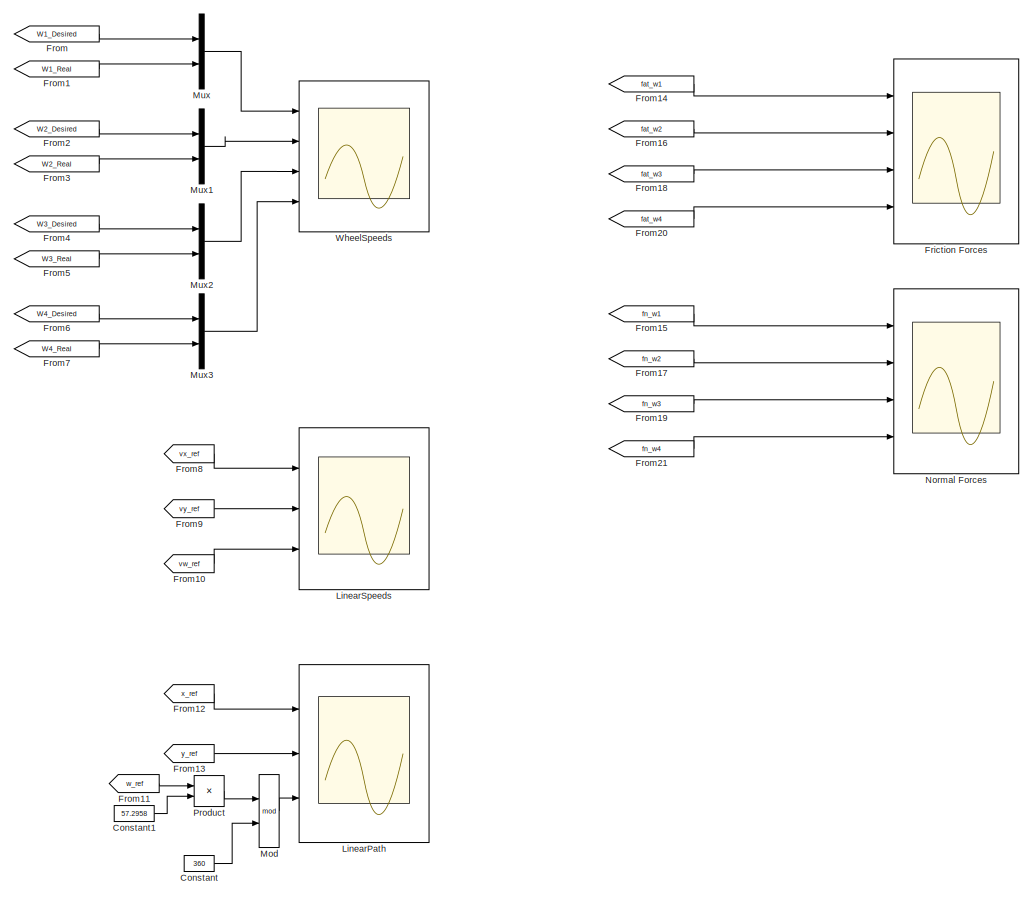
[diagram: root canvas - part 1/2, right side, full height]
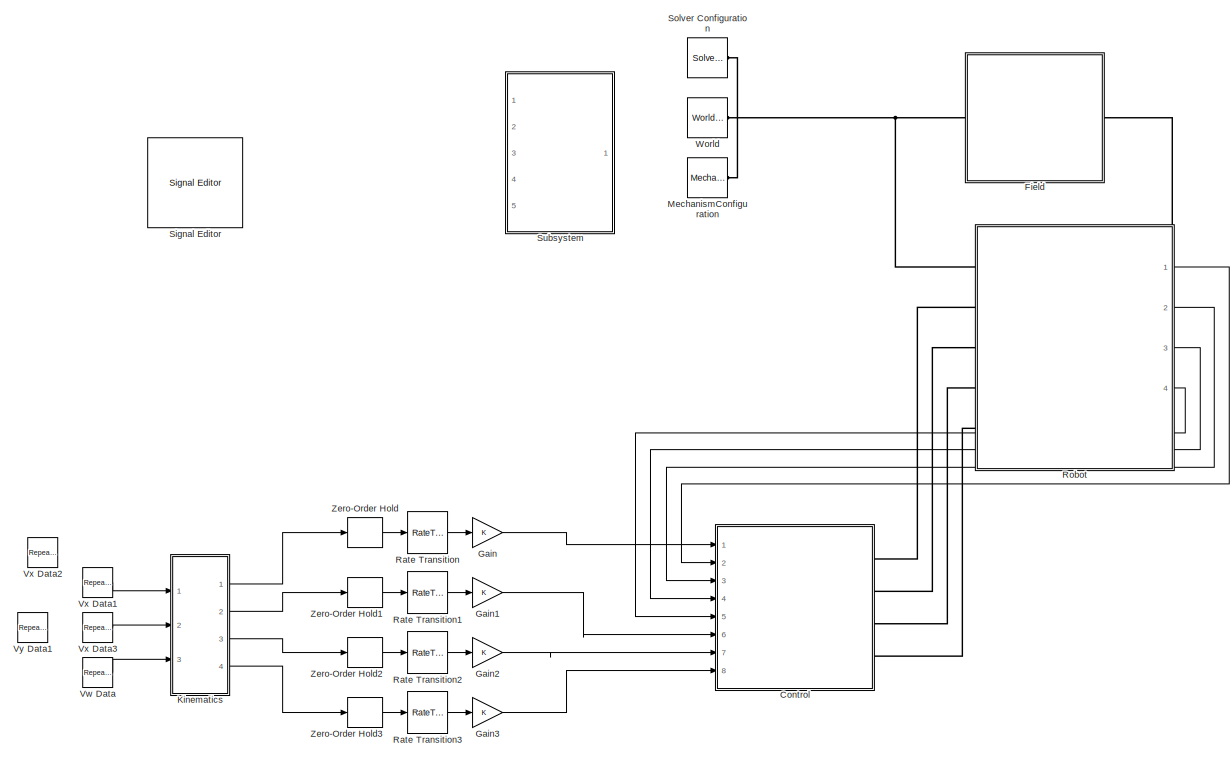
[diagram: root canvas - part 2/2, left side, full height]
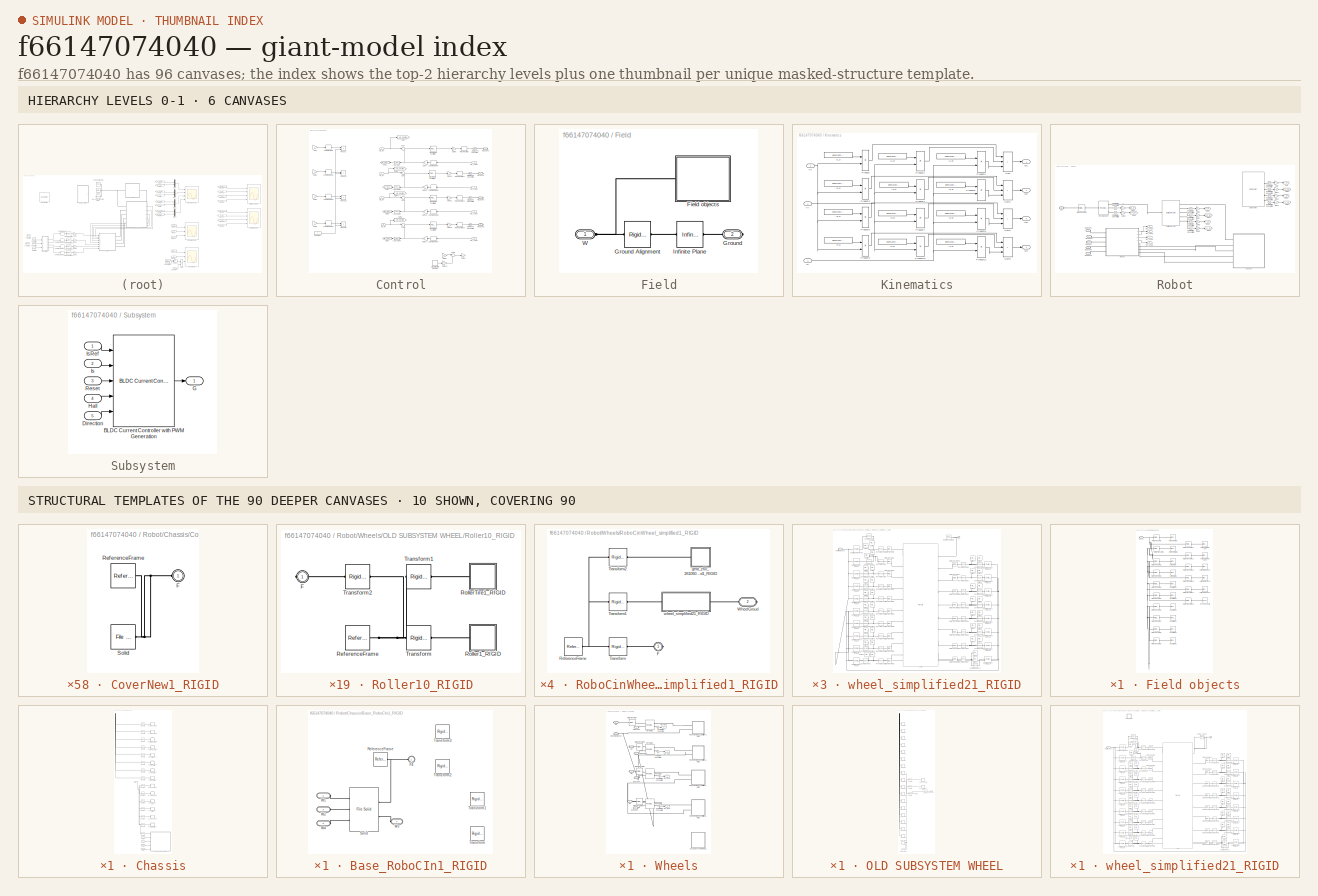
[diagram: thumbnail index - top-2 hierarchy levels (6 canvases) + 10 structural-template representatives of the remaining 90 canvases]
MODEL slx_f66147074040
KIND model
CONFIG AbsTol = auto
CONFIG EnableMultiTasking = off
CONFIG FixedStep = auto
CONFIG MaxStep = auto
CONFIG MinStep = auto
CONFIG RelTol = 1e-3
CONFIG SampleTimeConstraint = Unconstrained
CONFIG SolverName = VariableStepAuto
CONFIG StartTime = 0.0
CONFIG StopTime = 11
WORKSPACE source: external: MATLAB File  (data not in archive)
BLOCK [Constant] Constant
  Value = 360
BLOCK [Constant] Constant1
  Value = 57.2958
BLOCK [SubSystem] Control
  Ports = [8, 0, 0, 0, 0, 0, 4]
  RequestExecContextInheritance = off
BLOCK [Constant] Control/Constant
  Commented = on
BLOCK [Reference] Control/Discrete PID Controller  REF=slpidlib/PID Controller
  Ports = [1, 1]
  SourceBlock = slpidlib/PID Controller
  SourceProductBaseCode = SL
  SourceType = PID 1dof
BLOCK [Reference] Control/Discrete PID Controller1  REF=slpidlib/PID Controller
  Ports = [1, 1]
  SourceBlock = slpidlib/PID Controller
  SourceProductBaseCode = SL
  SourceType = PID 1dof
BLOCK [Reference] Control/Discrete PID Controller2  REF=slpidlib/PID Controller
  Ports = [1, 1]
  SourceBlock = slpidlib/PID Controller
  SourceProductBaseCode = SL
  SourceType = PID 1dof
BLOCK [Reference] Control/Discrete PID Controller3  REF=slpidlib/PID Controller
  Ports = [1, 1]
  SourceBlock = slpidlib/PID Controller
  SourceProductBaseCode = SL
  SourceType = PID 1dof
BLOCK [DiscreteIntegrator] Control/Discrete-Time Integrator4
  Commented = on
  ICPrevOutput = DiscIntNeverNeededParam
  ICPrevScaledInput = DiscIntNeverNeededParam
  InitialConditionSetting = Auto
  Ports = [1, 1]
  SampleTime = -1
BLOCK [Gain] Control/Gain
  Commented = on
  Gain = -1
BLOCK [Gain] Control/Gain1
  Commented = on
  Gain = -1
BLOCK [Gain] Control/Gain10
  Gain = -1
BLOCK [Gain] Control/Gain11
  Gain = -1
BLOCK [Gain] Control/Gain12
  Gain = -1
BLOCK [Gain] Control/Gain13
  Gain = -1
BLOCK [Gain] Control/Gain16
  Gain = -1
BLOCK [Gain] Control/Gain17
  Gain = -1
BLOCK [Gain] Control/Gain2
  Commented = on
  Gain = -1
BLOCK [Gain] Control/Gain20
  Commented = on
  Gain = Ki
BLOCK [Gain] Control/Gain3
  Commented = on
  Gain = -1
BLOCK [Gain] Control/Gain4
  Commented = on
  Gain = -1
BLOCK [Gain] Control/Gain5
  Commented = on
  Gain = Kp
BLOCK [Gain] Control/Gain6
  Gain = -1
BLOCK [Gain] Control/Gain7
  Gain = -1
BLOCK [Goto] Control/Goto
  GotoTag = W1_Desired
  TagVisibility = global
BLOCK [Goto] Control/Goto1
  GotoTag = W1_Real
  TagVisibility = global
BLOCK [Goto] Control/Goto2
  GotoTag = W2_Desired
  TagVisibility = global
BLOCK [Goto] Control/Goto3
  GotoTag = W2_Real
  TagVisibility = global
BLOCK [Goto] Control/Goto4
  GotoTag = W3_Desired
  TagVisibility = global
BLOCK [Goto] Control/Goto5
  GotoTag = W3_Real
  TagVisibility = global
BLOCK [Goto] Control/Goto6
  GotoTag = W4_Desired
  TagVisibility = global
BLOCK [Goto] Control/Goto7
  GotoTag = W4_Real
  TagVisibility = global
BLOCK [Reference] Control/LTI System  REF=cstblocks/LTI System
  Ports = [1, 1]
  SourceBlock = cstblocks/LTI System
  SourceProductBaseCode = CT
  SourceType = LTI Block
BLOCK [Reference] Control/LTI System1  REF=cstblocks/LTI System
  Ports = [1, 1]
  SourceBlock = cstblocks/LTI System
  SourceProductBaseCode = CT
  SourceType = LTI Block
BLOCK [Reference] Control/LTI System2  REF=cstblocks/LTI System
  Ports = [1, 1]
  SourceBlock = cstblocks/LTI System
  SourceProductBaseCode = CT
  SourceType = LTI Block
BLOCK [Reference] Control/LTI System3  REF=cstblocks/LTI System
  Ports = [1, 1]
  SourceBlock = cstblocks/LTI System
  SourceProductBaseCode = CT
  SourceType = LTI Block
BLOCK [Product] Control/Product
  Commented = on
  Ports = [2, 1]
BLOCK [Product] Control/Product1
  Commented = on
  Ports = [2, 1]
BLOCK [Product] Control/Product2
  Commented = on
  Ports = [2, 1]
BLOCK [Product] Control/Product3
  Commented = on
  Ports = [2, 1]
BLOCK [RateTransition] Control/Rate Transition
  OutPortSampleTime = 0.01
  OutPortSampleTimeOpt = Inherit
BLOCK [RateTransition] Control/Rate Transition1
  OutPortSampleTimeOpt = Inherit
BLOCK [RateTransition] Control/Rate Transition2
  OutPortSampleTime = 0.01
  OutPortSampleTimeOpt = Inherit
BLOCK [RateTransition] Control/Rate Transition3
  OutPortSampleTime = 0.01
  OutPortSampleTimeOpt = Inherit
BLOCK [Reference] Control/Simulink-PS Converter  REF=nesl_utility/Simulink-PS
Converter
  Ports = [1, 0, 0, 0, 0, 0, 1]
  SourceBlock = nesl_utility/Simulink-PS\nConverter
  SourceProductBaseCode = PW,SS
  SourceType = Simulink-PS\nConverter
BLOCK [Reference] Control/Simulink-PS Converter1  REF=nesl_utility/Simulink-PS
Converter
  Ports = [1, 0, 0, 0, 0, 0, 1]
  SourceBlock = nesl_utility/Simulink-PS\nConverter
  SourceProductBaseCode = PW,SS
  SourceType = Simulink-PS\nConverter
BLOCK [Reference] Control/Simulink-PS Converter2  REF=nesl_utility/Simulink-PS
Converter
  Ports = [1, 0, 0, 0, 0, 0, 1]
  SourceBlock = nesl_utility/Simulink-PS\nConverter
  SourceProductBaseCode = PW,SS
  SourceType = Simulink-PS\nConverter
BLOCK [Reference] Control/Simulink-PS Converter3  REF=nesl_utility/Simulink-PS
Converter
  Ports = [1, 0, 0, 0, 0, 0, 1]
  SourceBlock = nesl_utility/Simulink-PS\nConverter
  SourceProductBaseCode = PW,SS
  SourceType = Simulink-PS\nConverter
BLOCK [Sum] Control/Sum
  Inputs = |+-
  Ports = [2, 1]
BLOCK [Sum] Control/Sum1
  Commented = on
  Inputs = |++
  Ports = [2, 1]
BLOCK [Sum] Control/Sum2
  Inputs = |+-
  Ports = [2, 1]
BLOCK [Sum] Control/Sum4
  Inputs = |+-
  Ports = [2, 1]
BLOCK [Sum] Control/Sum6
  Inputs = |+-
  Ports = [2, 1]
BLOCK [PMIOPort] Control/W1Speed
  Side = Right
BLOCK [Inport] Control/W1_Actual
  Port = 2
BLOCK [Inport] Control/W1_ref
BLOCK [PMIOPort] Control/W2Speed
  Port = 2
  Side = Right
BLOCK [Inport] Control/W2_Actual
  Port = 3
BLOCK [Inport] Control/W2_ref
  Port = 6
BLOCK [PMIOPort] Control/W3Speed
  Port = 3
  Side = Right
BLOCK [Inport] Control/W3_Actual
  Port = 4
BLOCK [Inport] Control/W3_ref
  Port = 7
BLOCK [PMIOPort] Control/W4Speed
  Port = 4
  Side = Right
BLOCK [Inport] Control/W4_Actual
  Port = 5
BLOCK [Inport] Control/W4_ref
  Port = 8
BLOCK [ZeroOrderHold] Control/Zero-Order Hold
  Commented = on
  SampleTime = T
BLOCK [ZeroOrderHold] Control/Zero-Order Hold1
  Commented = on
  SampleTime = T
BLOCK [ZeroOrderHold] Control/Zero-Order Hold2
  Commented = on
  SampleTime = T
BLOCK [ZeroOrderHold] Control/Zero-Order Hold3
  Commented = on
  SampleTime = T
BLOCK [ZeroOrderHold] Control/Zero-Order Hold4
  SampleTime = -1
BLOCK [ZeroOrderHold] Control/Zero-Order Hold5
  SampleTime = 0.01
BLOCK [ZeroOrderHold] Control/Zero-Order Hold6
  SampleTime = -1
BLOCK [ZeroOrderHold] Control/Zero-Order Hold7
  SampleTime = -1
BLOCK [SubSystem] Field
  Ports = [0, 0, 0, 0, 0, 1, 1]
  RequestExecContextInheritance = off
BLOCK [SubSystem] Field/Field objects
  Ports = [0, 0, 0, 0, 0, 0, 1]
  RequestExecContextInheritance = off
BLOCK [PMIOPort] Field/Field objects/Conn1
  Side = Right
BLOCK [Reference] Field/Field objects/Goal Width1  REF=sm_lib/Body Elements/Brick Solid
  Ports = [0, 0, 0, 0, 0, 0, 1]
  SourceBlock = sm_lib/Body Elements/Brick Solid
  SourceProductBaseCode = MS
  SourceType = Brick Solid
BLOCK [Reference] Field/Field objects/Goal Width2  REF=sm_lib/Body Elements/Brick Solid
  Ports = [0, 0, 0, 0, 0, 0, 1]
  SourceBlock = sm_lib/Body Elements/Brick Solid
  SourceProductBaseCode = MS
  SourceType = Brick Solid
BLOCK [Reference] Field/Field objects/Goal Width3  REF=sm_lib/Body Elements/Brick Solid
  Ports = [0, 0, 0, 0, 0, 0, 1]
  SourceBlock = sm_lib/Body Elements/Brick Solid
  SourceProductBaseCode = MS
  SourceType = Brick Solid
BLOCK [Reference] Field/Field objects/Goal Width4  REF=sm_lib/Body Elements/Brick Solid
  Ports = [0, 0, 0, 0, 0, 0, 1]
  SourceBlock = sm_lib/Body Elements/Brick Solid
  SourceProductBaseCode = MS
  SourceType = Brick Solid
BLOCK [Reference] Field/Field objects/Goal Width5  REF=sm_lib/Body Elements/Brick Solid
  Ports = [0, 0, 0, 0, 0, 0, 1]
  SourceBlock = sm_lib/Body Elements/Brick Solid
  SourceProductBaseCode = MS
  SourceType = Brick Solid
BLOCK [Reference] Field/Field objects/Goal Width6  REF=sm_lib/Body Elements/Brick Solid
  Ports = [0, 0, 0, 0, 0, 0, 1]
  SourceBlock = sm_lib/Body Elements/Brick Solid
  SourceProductBaseCode = MS
  SourceType = Brick Solid
BLOCK [Reference] Field/Field objects/Horizontal Field Line  REF=sm_lib/Body Elements/Brick Solid
  Ports = [0, 0, 0, 0, 0, 0, 1]
  SourceBlock = sm_lib/Body Elements/Brick Solid
  SourceProductBaseCode = MS
  SourceType = Brick Solid
BLOCK [Reference] Field/Field objects/Horizontal Field Line1  REF=sm_lib/Body Elements/Brick Solid
  Ports = [0, 0, 0, 0, 0, 0, 1]
  SourceBlock = sm_lib/Body Elements/Brick Solid
  SourceProductBaseCode = MS
  SourceType = Brick Solid
BLOCK [Reference] Field/Field objects/Horizontal Wall  REF=sm_lib/Body Elements/Brick Solid
  Ports = [0, 0, 0, 0, 0, 0, 1]
  SourceBlock = sm_lib/Body Elements/Brick Solid
  SourceProductBaseCode = MS
  SourceType = Brick Solid
BLOCK [Reference] Field/Field objects/Horizontal Wall1  REF=sm_lib/Body Elements/Brick Solid
  Ports = [0, 0, 0, 0, 0, 0, 1]
  SourceBlock = sm_lib/Body Elements/Brick Solid
  SourceProductBaseCode = MS
  SourceType = Brick Solid
BLOCK [Reference] Field/Field objects/Revolved Solid  REF=sm_lib/Body Elements/Revolved Solid
  Ports = [0, 0, 0, 0, 0, 0, 1]
  SourceBlock = sm_lib/Body Elements/Revolved Solid
  SourceProductBaseCode = MS
  SourceType = Revolved Solid
BLOCK [Reference] Field/Field objects/Rigid Transform  REF=sm_lib/Frames and
Transforms/Rigid
Transform
  Ports = [0, 0, 0, 0, 0, 1, 1]
  SourceBlock = sm_lib/Frames and\nTransforms/Rigid\nTransform
  SourceProductBaseCode = MS
  SourceType = Rigid\nTransform
BLOCK [Reference] Field/Field objects/Rigid Transform1  REF=sm_lib/Frames and
Transforms/Rigid
Transform
  Ports = [0, 0, 0, 0, 0, 1, 1]
  SourceBlock = sm_lib/Frames and\nTransforms/Rigid\nTransform
  SourceProductBaseCode = MS
  SourceType = Rigid\nTransform
BLOCK [Reference] Field/Field objects/Rigid Transform10  REF=sm_lib/Frames and
Transforms/Rigid
Transform
  Ports = [0, 0, 0, 0, 0, 1, 1]
  SourceBlock = sm_lib/Frames and\nTransforms/Rigid\nTransform
  SourceProductBaseCode = MS
  SourceType = Rigid\nTransform
BLOCK [Reference] Field/Field objects/Rigid Transform11  REF=sm_lib/Frames and
Transforms/Rigid
Transform
  Ports = [0, 0, 0, 0, 0, 1, 1]
  SourceBlock = sm_lib/Frames and\nTransforms/Rigid\nTransform
  SourceProductBaseCode = MS
  SourceType = Rigid\nTransform
BLOCK [Reference] Field/Field objects/Rigid Transform12  REF=sm_lib/Frames and
Transforms/Rigid
Transform
  Ports = [0, 0, 0, 0, 0, 1, 1]
  SourceBlock = sm_lib/Frames and\nTransforms/Rigid\nTransform
  SourceProductBaseCode = MS
  SourceType = Rigid\nTransform
BLOCK [Reference] Field/Field objects/Rigid Transform13  REF=sm_lib/Frames and
Transforms/Rigid
Transform
  Ports = [0, 0, 0, 0, 0, 1, 1]
  SourceBlock = sm_lib/Frames and\nTransforms/Rigid\nTransform
  SourceProductBaseCode = MS
  SourceType = Rigid\nTransform
BLOCK [Reference] Field/Field objects/Rigid Transform14  REF=sm_lib/Frames and
Transforms/Rigid
Transform
  Ports = [0, 0, 0, 0, 0, 1, 1]
  SourceBlock = sm_lib/Frames and\nTransforms/Rigid\nTransform
  SourceProductBaseCode = MS
  SourceType = Rigid\nTransform
BLOCK [Reference] Field/Field objects/Rigid Transform15  REF=sm_lib/Frames and
Transforms/Rigid
Transform
  Ports = [0, 0, 0, 0, 0, 1, 1]
  SourceBlock = sm_lib/Frames and\nTransforms/Rigid\nTransform
  SourceProductBaseCode = MS
  SourceType = Rigid\nTransform
BLOCK [Reference] Field/Field objects/Rigid Transform2  REF=sm_lib/Frames and
Transforms/Rigid
Transform
  Ports = [0, 0, 0, 0, 0, 1, 1]
  SourceBlock = sm_lib/Frames and\nTransforms/Rigid\nTransform
  SourceProductBaseCode = MS
  SourceType = Rigid\nTransform
BLOCK [Reference] Field/Field objects/Rigid Transform3  REF=sm_lib/Frames and
Transforms/Rigid
Transform
  Ports = [0, 0, 0, 0, 0, 1, 1]
  SourceBlock = sm_lib/Frames and\nTransforms/Rigid\nTransform
  SourceProductBaseCode = MS
  SourceType = Rigid\nTransform
BLOCK [Reference] Field/Field objects/Rigid Transform4  REF=sm_lib/Frames and
Transforms/Rigid
Transform
  Ports = [0, 0, 0, 0, 0, 1, 1]
  SourceBlock = sm_lib/Frames and\nTransforms/Rigid\nTransform
  SourceProductBaseCode = MS
  SourceType = Rigid\nTransform
BLOCK [Reference] Field/Field objects/Rigid Transform5  REF=sm_lib/Frames and
Transforms/Rigid
Transform
  Ports = [0, 0, 0, 0, 0, 1, 1]
  SourceBlock = sm_lib/Frames and\nTransforms/Rigid\nTransform
  SourceProductBaseCode = MS
  SourceType = Rigid\nTransform
BLOCK [Reference] Field/Field objects/Rigid Transform6  REF=sm_lib/Frames and
Transforms/Rigid
Transform
  Ports = [0, 0, 0, 0, 0, 1, 1]
  SourceBlock = sm_lib/Frames and\nTransforms/Rigid\nTransform
  SourceProductBaseCode = MS
  SourceType = Rigid\nTransform
BLOCK [Reference] Field/Field objects/Rigid Transform7  REF=sm_lib/Frames and
Transforms/Rigid
Transform
  Ports = [0, 0, 0, 0, 0, 1, 1]
  SourceBlock = sm_lib/Frames and\nTransforms/Rigid\nTransform
  SourceProductBaseCode = MS
  SourceType = Rigid\nTransform
BLOCK [Reference] Field/Field objects/Rigid Transform8  REF=sm_lib/Frames and
Transforms/Rigid
Transform
  Ports = [0, 0, 0, 0, 0, 1, 1]
  SourceBlock = sm_lib/Frames and\nTransforms/Rigid\nTransform
  SourceProductBaseCode = MS
  SourceType = Rigid\nTransform
BLOCK [Reference] Field/Field objects/Rigid Transform9  REF=sm_lib/Frames and
Transforms/Rigid
Transform
  Ports = [0, 0, 0, 0, 0, 1, 1]
  SourceBlock = sm_lib/Frames and\nTransforms/Rigid\nTransform
  SourceProductBaseCode = MS
  SourceType = Rigid\nTransform
BLOCK [Reference] Field/Field objects/Vertical Field Line1  REF=sm_lib/Body Elements/Brick Solid
  Ports = [0, 0, 0, 0, 0, 0, 1]
  SourceBlock = sm_lib/Body Elements/Brick Solid
  SourceProductBaseCode = MS
  SourceType = Brick Solid
BLOCK [Reference] Field/Field objects/Vertical Field Line2  REF=sm_lib/Body Elements/Brick Solid
  Ports = [0, 0, 0, 0, 0, 0, 1]
  SourceBlock = sm_lib/Body Elements/Brick Solid
  SourceProductBaseCode = MS
  SourceType = Brick Solid
BLOCK [Reference] Field/Field objects/Vertical Field Line3  REF=sm_lib/Body Elements/Brick Solid
  Ports = [0, 0, 0, 0, 0, 0, 1]
  SourceBlock = sm_lib/Body Elements/Brick Solid
  SourceProductBaseCode = MS
  SourceType = Brick Solid
BLOCK [Reference] Field/Field objects/Vertical Wall  REF=sm_lib/Body Elements/Brick Solid
  Ports = [0, 0, 0, 0, 0, 0, 1]
  SourceBlock = sm_lib/Body Elements/Brick Solid
  SourceProductBaseCode = MS
  SourceType = Brick Solid
BLOCK [Reference] Field/Field objects/Vertical Wall1  REF=sm_lib/Body Elements/Brick Solid
  Ports = [0, 0, 0, 0, 0, 0, 1]
  SourceBlock = sm_lib/Body Elements/Brick Solid
  SourceProductBaseCode = MS
  SourceType = Brick Solid
BLOCK [PMIOPort] Field/Ground
  Port = 2
  Side = Right
BLOCK [Reference] Field/Ground Alignment  REF=sm_lib/Frames and
Transforms/Rigid
Transform
  Ports = [0, 0, 0, 0, 0, 1, 1]
  SourceBlock = sm_lib/Frames and\nTransforms/Rigid\nTransform
  SourceProductBaseCode = MS
  SourceType = Rigid\nTransform
BLOCK [Reference] Field/Infinite Plane  REF=sm_lib/Curves and Surfaces/Infinite Plane
  Ports = [0, 0, 0, 0, 0, 1, 1]
  SourceBlock = sm_lib/Curves and Surfaces/Infinite Plane
  SourceProductBaseCode = MS
  SourceType = Infinite Plane
BLOCK [PMIOPort] Field/W
  Side = Left
BLOCK [Scope] Friction Forces
  Commented = on
  Floating = off
  NumInputPorts = 4
  Ports = [4]
  ScopeSpecificationString = Simulink.scopes.TimeScopeBlockCfg('CurrentConfiguration', extmgr.ConfigurationSet(extmgr.Configuration('Core','General UI',true),extmgr.Configuration('Core','Source UI',true),extmgr.Configuration('Sources','WiredSimulink',true,'DataLoggingVariableName','ScopeData1'),extmgr.Configuration('Visuals','Time Domain',true,'SerializedDisplays',{struct('MinYLimReal','-1.64611','MaxYLimReal','14.815','YLabe...<+3640ch>
BLOCK [From] From
  GotoTag = W1_Desired
  TagVisibility = global
BLOCK [From] From1
  GotoTag = W1_Real
  TagVisibility = global
BLOCK [From] From10
  GotoTag = vw_ref
  TagVisibility = global
BLOCK [From] From11
  GotoTag = w_ref
  TagVisibility = global
BLOCK [From] From12
  GotoTag = x_ref
  TagVisibility = global
BLOCK [From] From13
  GotoTag = y_ref
  TagVisibility = global
BLOCK [From] From14
  Commented = on
  GotoTag = fat_w1
BLOCK [From] From15
  Commented = on
  GotoTag = fn_w1
BLOCK [From] From16
  Commented = on
  GotoTag = fat_w2
BLOCK [From] From17
  Commented = on
  GotoTag = fn_w2
BLOCK [From] From18
  Commented = on
  GotoTag = fat_w3
BLOCK [From] From19
  Commented = on
  GotoTag = fn_w3
BLOCK [From] From2
  GotoTag = W2_Desired
  TagVisibility = global
BLOCK [From] From20
  Commented = on
  GotoTag = fat_w4
BLOCK [From] From21
  Commented = on
  GotoTag = fn_w4
BLOCK [From] From3
  GotoTag = W2_Real
  TagVisibility = global
BLOCK [From] From4
  GotoTag = W3_Desired
  TagVisibility = global
BLOCK [From] From5
  GotoTag = W3_Real
  TagVisibility = global
BLOCK [From] From6
  GotoTag = W4_Desired
  TagVisibility = global
BLOCK [From] From7
  GotoTag = W4_Real
  TagVisibility = global
BLOCK [From] From8
  GotoTag = vx_ref
  TagVisibility = global
BLOCK [From] From9
  GotoTag = vy_ref
  TagVisibility = global
BLOCK [Gain] Gain
BLOCK [Gain] Gain1
BLOCK [Gain] Gain2
BLOCK [Gain] Gain3
BLOCK [SubSystem] Kinematics
  Ports = [3, 4]
  RequestExecContextInheritance = off
BLOCK [Constant] Kinematics/(1,1)
  Value = kinematics.prod2(1,1)
BLOCK [Constant] Kinematics/(1,2)
  Value = kinematics.prod2(1,2)
BLOCK [Constant] Kinematics/(1,3)
  Value = kinematics.prod2(1,3)
BLOCK [Constant] Kinematics/(2,1)
  Value = kinematics.prod2(2,1)
BLOCK [Constant] Kinematics/(2,2)
  Value = kinematics.prod2(2,2)
BLOCK [Constant] Kinematics/(2,3)
  Value = kinematics.prod2(2,3)
BLOCK [Constant] Kinematics/(3,1)
  Value = kinematics.prod2(3,1)
BLOCK [Constant] Kinematics/(3,2)
  Value = kinematics.prod2(3,2)
BLOCK [Constant] Kinematics/(3,3)
  Value = kinematics.prod2(3,3)
BLOCK [Constant] Kinematics/(4,1)
  Value = kinematics.prod2(4,1)
BLOCK [Constant] Kinematics/(4,2)
  Value = kinematics.prod2(4,2)
BLOCK [Constant] Kinematics/(4,3)
  Value = kinematics.prod2(4,3)
BLOCK [Product] Kinematics/Product
  Ports = [2, 1]
BLOCK [Product] Kinematics/Product1
  Ports = [2, 1]
BLOCK [Product] Kinematics/Product10
  Ports = [2, 1]
BLOCK [Product] Kinematics/Product11
  Ports = [2, 1]
BLOCK [Product] Kinematics/Product2
  Ports = [2, 1]
BLOCK [Product] Kinematics/Product3
  Ports = [2, 1]
BLOCK [Product] Kinematics/Product4
  Ports = [2, 1]
BLOCK [Product] Kinematics/Product5
  Ports = [2, 1]
BLOCK [Product] Kinematics/Product6
  Ports = [2, 1]
BLOCK [Product] Kinematics/Product7
  Ports = [2, 1]
BLOCK [Product] Kinematics/Product8
  Ports = [2, 1]
BLOCK [Product] Kinematics/Product9
  Ports = [2, 1]
BLOCK [Sum] Kinematics/Sum
  IconShape = rectangular
  Inputs = +++
  Ports = [3, 1]
BLOCK [Sum] Kinematics/Sum1
  IconShape = rectangular
  Inputs = +++
  Ports = [3, 1]
BLOCK [Sum] Kinematics/Sum2
  IconShape = rectangular
  Inputs = +++
  Ports = [3, 1]
BLOCK [Sum] Kinematics/Sum3
  IconShape = rectangular
  Inputs = +++
  Ports = [3, 1]
BLOCK [Inport] Kinematics/Vx
BLOCK [Inport] Kinematics/Vy
  Port = 2
BLOCK [Inport] Kinematics/W
  Port = 3
BLOCK [Outport] Kinematics/W1
BLOCK [Outport] Kinematics/W2
  Port = 2
BLOCK [Outport] Kinematics/W3
  Port = 3
BLOCK [Outport] Kinematics/W4
  Port = 4
BLOCK [Scope] LinearPath
  Floating = off
  NumInputPorts = 3
  Ports = [3]
  ScopeSpecificationString = Simulink.scopes.TimeScopeBlockCfg('CurrentConfiguration', extmgr.ConfigurationSet(extmgr.Configuration('Core','General UI',true),extmgr.Configuration('Core','Source UI',true),extmgr.Configuration('Sources','WiredSimulink',true,'DataLoggingVariableName','ScopeData2'),extmgr.Configuration('Visuals','Time Domain',true,'SerializedDisplays',{struct('MinYLimReal','-0.7622','MaxYLimReal','0.74324','YLabe...<+2739ch>
BLOCK [Scope] LinearSpeeds
  Floating = off
  NumInputPorts = 3
  Ports = [3]
  ScopeSpecificationString = Simulink.scopes.TimeScopeBlockCfg('CurrentConfiguration', extmgr.ConfigurationSet(extmgr.Configuration('Core','General UI',true),extmgr.Configuration('Core','Source UI',true),extmgr.Configuration('Sources','WiredSimulink',true,'DataLoggingVariableName','ScopeData1'),extmgr.Configuration('Visuals','Time Domain',true,'SerializedDisplays',{struct('MinYLimReal','-1.09041','MaxYLimReal','1.09375','YLab...<+3102ch>
BLOCK [Reference] MechanismConfiguration  REF=sm_lib/Utilities/Mechanism
Configuration
  Ports = [0, 0, 0, 0, 0, 0, 1]
  SourceBlock = sm_lib/Utilities/Mechanism\nConfiguration
  SourceProductBaseCode = MS
  SourceType = Mechanism\nConfiguration
BLOCK [Math] Mod
  Operator = mod
  Ports = [2, 1]
BLOCK [Mux] Mux
  DisplayOption = bar
  Inputs = 2
  Ports = [2, 1]
BLOCK [Mux] Mux1
  DisplayOption = bar
  Inputs = 2
  Ports = [2, 1]
BLOCK [Mux] Mux2
  DisplayOption = bar
  Inputs = 2
  Ports = [2, 1]
BLOCK [Mux] Mux3
  DisplayOption = bar
  Inputs = 2
  Ports = [2, 1]
BLOCK [Scope] Normal Forces
  Commented = on
  Floating = off
  NumInputPorts = 4
  Ports = [4]
  ScopeSpecificationString = Simulink.scopes.TimeScopeBlockCfg('CurrentConfiguration', extmgr.ConfigurationSet(extmgr.Configuration('Core','General UI',true),extmgr.Configuration('Core','Source UI',true),extmgr.Configuration('Sources','WiredSimulink',true,'DataLoggingVariableName','ScopeData2'),extmgr.Configuration('Visuals','Time Domain',true,'SerializedDisplays',{struct('MinYLimReal','2.03206','MaxYLimReal','6.50408','YLabe...<+3592ch>
BLOCK [Product] Product
  Ports = [2, 1]
BLOCK [RateTransition] Rate Transition
  OutPortSampleTime = 0.002
  OutPortSampleTimeOpt = Inherit
BLOCK [RateTransition] Rate Transition1
  OutPortSampleTime = 0.002
  OutPortSampleTimeOpt = Inherit
BLOCK [RateTransition] Rate Transition2
  OutPortSampleTime = 0.01
  OutPortSampleTimeOpt = Inherit
BLOCK [RateTransition] Rate Transition3
  OutPortSampleTime = 0.01
  OutPortSampleTimeOpt = Inherit
BLOCK [SubSystem] Robot
  PortSchema = {"entries":[{"content":{"sides":[{"content":{"connectorIds":["LConn1","LConn2","LConn3","LConn4","LConn5"]},"type":"ConnectorPlacement.EquallySpacedRectSide","uuid":"253f09d1-5eeb-4b26-8135-d2db322c5f85"},{"content":{"connectorIds":["RConn1","Out1","Out2","Out3","Out4"],"side":"RIGHT"},"type":"ConnectorPlacement.EquallySpacedRectSide","uuid":"5e48723f-c100-4ab2-897b-63b213ce7996"},{"content":{"con...<+309ch>
  Ports = [0, 4, 0, 0, 0, 5, 1]
  RequestExecContextInheritance = off
BLOCK [Reference] Robot/6-DOF Joint  REF=sm_lib/Joints/6-DOF Joint
  Commented = on
  Ports = [0, 0, 0, 0, 0, 1, 5]
  SourceBlock = sm_lib/Joints/6-DOF Joint
  SourceProductBaseCode = MS
  SourceType = 6-DOF Joint
BLOCK [Reference] Robot/Cartesian Joint  REF=sm_lib/Joints/Cartesian
Joint
  Ports = [0, 0, 0, 0, 0, 1, 5]
  SourceBlock = sm_lib/Joints/Cartesian\nJoint
  SourceProductBaseCode = MS
  SourceType = Cartesian\nJoint
BLOCK [SubSystem] Robot/Chassis
  Ports = [0, 0, 0, 0, 0, 5]
  RequestExecContextInheritance = off
BLOCK [SubSystem] Robot/Chassis/Base_RoboCIn1_RIGID
  Ports = [0, 0, 0, 0, 0, 5]
  RequestExecContextInheritance = off
BLOCK [PMIOPort] Robot/Chassis/Base_RoboCIn1_RIGID/F4
  Side = Left
BLOCK [Reference] Robot/Chassis/Base_RoboCIn1_RIGID/ReferenceFrame  REF=sm_lib/Frames and
Transforms/Reference
Frame
  Ports = [0, 0, 0, 0, 0, 0, 1]
  SourceBlock = sm_lib/Frames and\nTransforms/Reference\nFrame
  SourceProductBaseCode = MS
  SourceType = Reference\nFrame
BLOCK [Reference] Robot/Chassis/Base_RoboCIn1_RIGID/Solid  REF=sm_lib/Body Elements/File Solid
  Ports = [0, 0, 0, 0, 0, 3, 2]
  SourceBlock = sm_lib/Body Elements/File Solid
  SourceProductBaseCode = MS
  SourceType = File Solid
BLOCK [Reference] Robot/Chassis/Base_RoboCIn1_RIGID/Transform  REF=sm_lib/Frames and
Transforms/Rigid
Transform
  Commented = on
  Ports = [0, 0, 0, 0, 0, 1, 1]
  SourceBlock = sm_lib/Frames and\nTransforms/Rigid\nTransform
  SourceProductBaseCode = MS
  SourceType = Rigid\nTransform
BLOCK [Reference] Robot/Chassis/Base_RoboCIn1_RIGID/Transform1  REF=sm_lib/Frames and
Transforms/Rigid
Transform
  Commented = on
  Ports = [0, 0, 0, 0, 0, 1, 1]
  SourceBlock = sm_lib/Frames and\nTransforms/Rigid\nTransform
  SourceProductBaseCode = MS
  SourceType = Rigid\nTransform
BLOCK [Reference] Robot/Chassis/Base_RoboCIn1_RIGID/Transform2  REF=sm_lib/Frames and
Transforms/Rigid
Transform
  Commented = on
  Ports = [0, 0, 0, 0, 0, 1, 1]
  SourceBlock = sm_lib/Frames and\nTransforms/Rigid\nTransform
  SourceProductBaseCode = MS
  SourceType = Rigid\nTransform
BLOCK [Reference] Robot/Chassis/Base_RoboCIn1_RIGID/Transform3  REF=sm_lib/Frames and
Transforms/Rigid
Transform
  Commented = on
  Ports = [0, 0, 0, 0, 0, 1, 1]
  SourceBlock = sm_lib/Frames and\nTransforms/Rigid\nTransform
  SourceProductBaseCode = MS
  SourceType = Rigid\nTransform
BLOCK [PMIOPort] Robot/Chassis/Base_RoboCIn1_RIGID/W1
  Port = 2
  Side = Left
BLOCK [PMIOPort] Robot/Chassis/Base_RoboCIn1_RIGID/W2
  Port = 3
  Side = Left
BLOCK [PMIOPort] Robot/Chassis/Base_RoboCIn1_RIGID/W3
  Port = 4
  Side = Left
BLOCK [PMIOPort] Robot/Chassis/Base_RoboCIn1_RIGID/W4
  Port = 5
  Side = Left
BLOCK [SubSystem] Robot/Chassis/CoverNew1_RIGID
  Ports = [0, 0, 0, 0, 0, 1]
  RequestExecContextInheritance = off
BLOCK [PMIOPort] Robot/Chassis/CoverNew1_RIGID/F
  Side = Left
BLOCK [Reference] Robot/Chassis/CoverNew1_RIGID/ReferenceFrame  REF=sm_lib/Frames and
Transforms/Reference
Frame
  Ports = [0, 0, 0, 0, 0, 0, 1]
  SourceBlock = sm_lib/Frames and\nTransforms/Reference\nFrame
  SourceProductBaseCode = MS
  SourceType = Reference\nFrame
BLOCK [Reference] Robot/Chassis/CoverNew1_RIGID/Solid  REF=sm_lib/Body Elements/File Solid
  Ports = [0, 0, 0, 0, 0, 0, 1]
  SourceBlock = sm_lib/Body Elements/File Solid
  SourceProductBaseCode = MS
  SourceType = File Solid
BLOCK [SubSystem] Robot/Chassis/SupportFirstToSecond1_RIGID
  Ports = [0, 0, 0, 0, 0, 1]
  RequestExecContextInheritance = off
BLOCK [PMIOPort] Robot/Chassis/SupportFirstToSecond1_RIGID/F
  Side = Left
BLOCK [Reference] Robot/Chassis/SupportFirstToSecond1_RIGID/ReferenceFrame  REF=sm_lib/Frames and
Transforms/Reference
Frame
  Ports = [0, 0, 0, 0, 0, 0, 1]
  SourceBlock = sm_lib/Frames and\nTransforms/Reference\nFrame
  SourceProductBaseCode = MS
  SourceType = Reference\nFrame
BLOCK [Reference] Robot/Chassis/SupportFirstToSecond1_RIGID/Solid  REF=sm_lib/Body Elements/File Solid
  Ports = [0, 0, 0, 0, 0, 0, 1]
  SourceBlock = sm_lib/Body Elements/File Solid
  SourceProductBaseCode = MS
  SourceType = File Solid
BLOCK [SubSystem] Robot/Chassis/SupportFirstToSecond2_RIGID
  Ports = [0, 0, 0, 0, 0, 1]
  RequestExecContextInheritance = off
BLOCK [PMIOPort] Robot/Chassis/SupportFirstToSecond2_RIGID/F
  Side = Left
BLOCK [Reference] Robot/Chassis/SupportFirstToSecond2_RIGID/ReferenceFrame  REF=sm_lib/Frames and
Transforms/Reference
Frame
  Ports = [0, 0, 0, 0, 0, 0, 1]
  SourceBlock = sm_lib/Frames and\nTransforms/Reference\nFrame
  SourceProductBaseCode = MS
  SourceType = Reference\nFrame
BLOCK [Reference] Robot/Chassis/SupportFirstToSecond2_RIGID/Solid  REF=sm_lib/Body Elements/File Solid
  Ports = [0, 0, 0, 0, 0, 0, 1]
  SourceBlock = sm_lib/Body Elements/File Solid
  SourceProductBaseCode = MS
  SourceType = File Solid
BLOCK [SubSystem] Robot/Chassis/SupportFirstToSecond3_RIGID
  Ports = [0, 0, 0, 0, 0, 1]
  RequestExecContextInheritance = off
BLOCK [PMIOPort] Robot/Chassis/SupportFirstToSecond3_RIGID/F
  Side = Left
BLOCK [Reference] Robot/Chassis/SupportFirstToSecond3_RIGID/ReferenceFrame  REF=sm_lib/Frames and
Transforms/Reference
Frame
  Ports = [0, 0, 0, 0, 0, 0, 1]
  SourceBlock = sm_lib/Frames and\nTransforms/Reference\nFrame
  SourceProductBaseCode = MS
  SourceType = Reference\nFrame
BLOCK [Reference] Robot/Chassis/SupportFirstToSecond3_RIGID/Solid  REF=sm_lib/Body Elements/File Solid
  Ports = [0, 0, 0, 0, 0, 0, 1]
  SourceBlock = sm_lib/Body Elements/File Solid
  SourceProductBaseCode = MS
  SourceType = File Solid
BLOCK [SubSystem] Robot/Chassis/SupportFirstToSecond4_RIGID
  Ports = [0, 0, 0, 0, 0, 1]
  RequestExecContextInheritance = off
BLOCK [PMIOPort] Robot/Chassis/SupportFirstToSecond4_RIGID/F
  Side = Left
BLOCK [Reference] Robot/Chassis/SupportFirstToSecond4_RIGID/ReferenceFrame  REF=sm_lib/Frames and
Transforms/Reference
Frame
  Ports = [0, 0, 0, 0, 0, 0, 1]
  SourceBlock = sm_lib/Frames and\nTransforms/Reference\nFrame
  SourceProductBaseCode = MS
  SourceType = Reference\nFrame
BLOCK [Reference] Robot/Chassis/SupportFirstToSecond4_RIGID/Solid  REF=sm_lib/Body Elements/File Solid
  Ports = [0, 0, 0, 0, 0, 0, 1]
  SourceBlock = sm_lib/Body Elements/File Solid
  SourceProductBaseCode = MS
  SourceType = File Solid
BLOCK [SubSystem] Robot/Chassis/SupportSecondToCoverNew1_RIGID
  Ports = [0, 0, 0, 0, 0, 1]
  RequestExecContextInheritance = off
BLOCK [PMIOPort] Robot/Chassis/SupportSecondToCoverNew1_RIGID/F
  Side = Left
BLOCK [Reference] Robot/Chassis/SupportSecondToCoverNew1_RIGID/ReferenceFrame  REF=sm_lib/Frames and
Transforms/Reference
Frame
  Ports = [0, 0, 0, 0, 0, 0, 1]
  SourceBlock = sm_lib/Frames and\nTransforms/Reference\nFrame
  SourceProductBaseCode = MS
  SourceType = Reference\nFrame
BLOCK [Reference] Robot/Chassis/SupportSecondToCoverNew1_RIGID/Solid  REF=sm_lib/Body Elements/File Solid
  Ports = [0, 0, 0, 0, 0, 0, 1]
  SourceBlock = sm_lib/Body Elements/File Solid
  SourceProductBaseCode = MS
  SourceType = File Solid
BLOCK [SubSystem] Robot/Chassis/SupportSecondToCoverNew2_RIGID
  Ports = [0, 0, 0, 0, 0, 1]
  RequestExecContextInheritance = off
BLOCK [PMIOPort] Robot/Chassis/SupportSecondToCoverNew2_RIGID/F
  Side = Left
BLOCK [Reference] Robot/Chassis/SupportSecondToCoverNew2_RIGID/ReferenceFrame  REF=sm_lib/Frames and
Transforms/Reference
Frame
  Ports = [0, 0, 0, 0, 0, 0, 1]
  SourceBlock = sm_lib/Frames and\nTransforms/Reference\nFrame
  SourceProductBaseCode = MS
  SourceType = Reference\nFrame
BLOCK [Reference] Robot/Chassis/SupportSecondToCoverNew2_RIGID/Solid  REF=sm_lib/Body Elements/File Solid
  Ports = [0, 0, 0, 0, 0, 0, 1]
  SourceBlock = sm_lib/Body Elements/File Solid
  SourceProductBaseCode = MS
  SourceType = File Solid
BLOCK [Reference] Robot/Chassis/Transform  REF=sm_lib/Frames and
Transforms/Rigid
Transform
  Ports = [0, 0, 0, 0, 0, 1, 1]
  SourceBlock = sm_lib/Frames and\nTransforms/Rigid\nTransform
  SourceProductBaseCode = MS
  SourceType = Rigid\nTransform
BLOCK [Reference] Robot/Chassis/Transform1  REF=sm_lib/Frames and
Transforms/Rigid
Transform
  Ports = [0, 0, 0, 0, 0, 1, 1]
  SourceBlock = sm_lib/Frames and\nTransforms/Rigid\nTransform
  SourceProductBaseCode = MS
  SourceType = Rigid\nTransform
BLOCK [Reference] Robot/Chassis/Transform10  REF=sm_lib/Frames and
Transforms/Rigid
Transform
  Ports = [0, 0, 0, 0, 0, 1, 1]
  SourceBlock = sm_lib/Frames and\nTransforms/Rigid\nTransform
  SourceProductBaseCode = MS
  SourceType = Rigid\nTransform
BLOCK [Reference] Robot/Chassis/Transform11  REF=sm_lib/Frames and
Transforms/Rigid
Transform
  Ports = [0, 0, 0, 0, 0, 1, 1]
  SourceBlock = sm_lib/Frames and\nTransforms/Rigid\nTransform
  SourceProductBaseCode = MS
  SourceType = Rigid\nTransform
BLOCK [Reference] Robot/Chassis/Transform12  REF=sm_lib/Frames and
Transforms/Rigid
Transform
  Ports = [0, 0, 0, 0, 0, 1, 1]
  SourceBlock = sm_lib/Frames and\nTransforms/Rigid\nTransform
  SourceProductBaseCode = MS
  SourceType = Rigid\nTransform
BLOCK [Reference] Robot/Chassis/Transform13  REF=sm_lib/Frames and
Transforms/Rigid
Transform
  Ports = [0, 0, 0, 0, 0, 1, 1]
  SourceBlock = sm_lib/Frames and\nTransforms/Rigid\nTransform
  SourceProductBaseCode = MS
  SourceType = Rigid\nTransform
BLOCK [Reference] Robot/Chassis/Transform14  REF=sm_lib/Frames and
Transforms/Rigid
Transform
  Ports = [0, 0, 0, 0, 0, 1, 1]
  SourceBlock = sm_lib/Frames and\nTransforms/Rigid\nTransform
  SourceProductBaseCode = MS
  SourceType = Rigid\nTransform
BLOCK [Reference] Robot/Chassis/Transform2  REF=sm_lib/Frames and
Transforms/Rigid
Transform
  Ports = [0, 0, 0, 0, 0, 1, 1]
  SourceBlock = sm_lib/Frames and\nTransforms/Rigid\nTransform
  SourceProductBaseCode = MS
  SourceType = Rigid\nTransform
BLOCK [Reference] Robot/Chassis/Transform3  REF=sm_lib/Frames and
Transforms/Rigid
Transform
  Ports = [0, 0, 0, 0, 0, 1, 1]
  SourceBlock = sm_lib/Frames and\nTransforms/Rigid\nTransform
  SourceProductBaseCode = MS
  SourceType = Rigid\nTransform
BLOCK [Reference] Robot/Chassis/Transform4  REF=sm_lib/Frames and
Transforms/Rigid
Transform
  Ports = [0, 0, 0, 0, 0, 1, 1]
  SourceBlock = sm_lib/Frames and\nTransforms/Rigid\nTransform
  SourceProductBaseCode = MS
  SourceType = Rigid\nTransform
BLOCK [Reference] Robot/Chassis/Transform5  REF=sm_lib/Frames and
Transforms/Rigid
Transform
  Ports = [0, 0, 0, 0, 0, 1, 1]
  SourceBlock = sm_lib/Frames and\nTransforms/Rigid\nTransform
  SourceProductBaseCode = MS
  SourceType = Rigid\nTransform
BLOCK [Reference] Robot/Chassis/Transform6  REF=sm_lib/Frames and
Transforms/Rigid
Transform
  Ports = [0, 0, 0, 0, 0, 1, 1]
  SourceBlock = sm_lib/Frames and\nTransforms/Rigid\nTransform
  SourceProductBaseCode = MS
  SourceType = Rigid\nTransform
BLOCK [Reference] Robot/Chassis/Transform7  REF=sm_lib/Frames and
Transforms/Rigid
Transform
  Ports = [0, 0, 0, 0, 0, 1, 1]
  SourceBlock = sm_lib/Frames and\nTransforms/Rigid\nTransform
  SourceProductBaseCode = MS
  SourceType = Rigid\nTransform
BLOCK [Reference] Robot/Chassis/Transform8  REF=sm_lib/Frames and
Transforms/Rigid
Transform
  Ports = [0, 0, 0, 0, 0, 1, 1]
  SourceBlock = sm_lib/Frames and\nTransforms/Rigid\nTransform
  SourceProductBaseCode = MS
  SourceType = Rigid\nTransform
BLOCK [Reference] Robot/Chassis/Transform9  REF=sm_lib/Frames and
Transforms/Rigid
Transform
  Ports = [0, 0, 0, 0, 0, 1, 1]
  SourceBlock = sm_lib/Frames and\nTransforms/Rigid\nTransform
  SourceProductBaseCode = MS
  SourceType = Rigid\nTransform
BLOCK [PMIOPort] Robot/Chassis/W
  Side = Left
BLOCK [PMIOPort] Robot/Chassis/W1
  Port = 2
  Side = Left
BLOCK [PMIOPort] Robot/Chassis/W2
  Port = 3
  Side = Left
BLOCK [PMIOPort] Robot/Chassis/W3
  Port = 4
  Side = Left
BLOCK [PMIOPort] Robot/Chassis/W4
  Port = 5
  Side = Left
BLOCK [SubSystem] Robot/Chassis/plate_sec_floor1_RIGID
  Ports = [0, 0, 0, 0, 0, 1]
  RequestExecContextInheritance = off
BLOCK [PMIOPort] Robot/Chassis/plate_sec_floor1_RIGID/F
  Side = Left
BLOCK [Reference] Robot/Chassis/plate_sec_floor1_RIGID/ReferenceFrame  REF=sm_lib/Frames and
Transforms/Reference
Frame
  Ports = [0, 0, 0, 0, 0, 0, 1]
  SourceBlock = sm_lib/Frames and\nTransforms/Reference\nFrame
  SourceProductBaseCode = MS
  SourceType = Reference\nFrame
BLOCK [Reference] Robot/Chassis/plate_sec_floor1_RIGID/Solid  REF=sm_lib/Body Elements/File Solid
  Ports = [0, 0, 0, 0, 0, 0, 1]
  SourceBlock = sm_lib/Body Elements/File Solid
  SourceProductBaseCode = MS
  SourceType = File Solid
BLOCK [SubSystem] Robot/Chassis/tag_green1_RIGID
  Ports = [0, 0, 0, 0, 0, 1]
  RequestExecContextInheritance = off
BLOCK [PMIOPort] Robot/Chassis/tag_green1_RIGID/F
  Side = Left
BLOCK [Reference] Robot/Chassis/tag_green1_RIGID/ReferenceFrame  REF=sm_lib/Frames and
Transforms/Reference
Frame
  Ports = [0, 0, 0, 0, 0, 0, 1]
  SourceBlock = sm_lib/Frames and\nTransforms/Reference\nFrame
  SourceProductBaseCode = MS
  SourceType = Reference\nFrame
BLOCK [Reference] Robot/Chassis/tag_green1_RIGID/Solid  REF=sm_lib/Body Elements/File Solid
  Ports = [0, 0, 0, 0, 0, 0, 1]
  SourceBlock = sm_lib/Body Elements/File Solid
  SourceProductBaseCode = MS
  SourceType = File Solid
BLOCK [SubSystem] Robot/Chassis/tag_green2_RIGID
  Ports = [0, 0, 0, 0, 0, 1]
  RequestExecContextInheritance = off
BLOCK [PMIOPort] Robot/Chassis/tag_green2_RIGID/F
  Side = Left
BLOCK [Reference] Robot/Chassis/tag_green2_RIGID/ReferenceFrame  REF=sm_lib/Frames and
Transforms/Reference
Frame
  Ports = [0, 0, 0, 0, 0, 0, 1]
  SourceBlock = sm_lib/Frames and\nTransforms/Reference\nFrame
  SourceProductBaseCode = MS
  SourceType = Reference\nFrame
BLOCK [Reference] Robot/Chassis/tag_green2_RIGID/Solid  REF=sm_lib/Body Elements/File Solid
  Ports = [0, 0, 0, 0, 0, 0, 1]
  SourceBlock = sm_lib/Body Elements/File Solid
  SourceProductBaseCode = MS
  SourceType = File Solid
BLOCK [SubSystem] Robot/Chassis/tag_magenta1_RIGID
  Ports = [0, 0, 0, 0, 0, 1]
  RequestExecContextInheritance = off
BLOCK [PMIOPort] Robot/Chassis/tag_magenta1_RIGID/F
  Side = Left
BLOCK [Reference] Robot/Chassis/tag_magenta1_RIGID/ReferenceFrame  REF=sm_lib/Frames and
Transforms/Reference
Frame
  Ports = [0, 0, 0, 0, 0, 0, 1]
  SourceBlock = sm_lib/Frames and\nTransforms/Reference\nFrame
  SourceProductBaseCode = MS
  SourceType = Reference\nFrame
BLOCK [Reference] Robot/Chassis/tag_magenta1_RIGID/Solid  REF=sm_lib/Body Elements/File Solid
  Ports = [0, 0, 0, 0, 0, 0, 1]
  SourceBlock = sm_lib/Body Elements/File Solid
  SourceProductBaseCode = MS
  SourceType = File Solid
BLOCK [SubSystem] Robot/Chassis/tag_magenta2_RIGID
  Ports = [0, 0, 0, 0, 0, 1]
  RequestExecContextInheritance = off
BLOCK [PMIOPort] Robot/Chassis/tag_magenta2_RIGID/F
  Side = Left
BLOCK [Reference] Robot/Chassis/tag_magenta2_RIGID/ReferenceFrame  REF=sm_lib/Frames and
Transforms/Reference
Frame
  Ports = [0, 0, 0, 0, 0, 0, 1]
  SourceBlock = sm_lib/Frames and\nTransforms/Reference\nFrame
  SourceProductBaseCode = MS
  SourceType = Reference\nFrame
BLOCK [Reference] Robot/Chassis/tag_magenta2_RIGID/Solid  REF=sm_lib/Body Elements/File Solid
  Ports = [0, 0, 0, 0, 0, 0, 1]
  SourceBlock = sm_lib/Body Elements/File Solid
  SourceProductBaseCode = MS
  SourceType = File Solid
BLOCK [SubSystem] Robot/Chassis/tag_yellow1_RIGID
  Ports = [0, 0, 0, 0, 0, 1]
  RequestExecContextInheritance = off
BLOCK [PMIOPort] Robot/Chassis/tag_yellow1_RIGID/F
  Side = Left
BLOCK [Reference] Robot/Chassis/tag_yellow1_RIGID/ReferenceFrame  REF=sm_lib/Frames and
Transforms/Reference
Frame
  Ports = [0, 0, 0, 0, 0, 0, 1]
  SourceBlock = sm_lib/Frames and\nTransforms/Reference\nFrame
  SourceProductBaseCode = MS
  SourceType = Reference\nFrame
BLOCK [Reference] Robot/Chassis/tag_yellow1_RIGID/Solid  REF=sm_lib/Body Elements/File Solid
  Ports = [0, 0, 0, 0, 0, 0, 1]
  SourceBlock = sm_lib/Body Elements/File Solid
  SourceProductBaseCode = MS
  SourceType = File Solid
BLOCK [SubSystem] Robot/Chassis/tampa_nut1_RIGID
  Ports = [0, 0, 0, 0, 0, 1]
  RequestExecContextInheritance = off
BLOCK [PMIOPort] Robot/Chassis/tampa_nut1_RIGID/F
  Side = Left
BLOCK [Reference] Robot/Chassis/tampa_nut1_RIGID/ReferenceFrame  REF=sm_lib/Frames and
Transforms/Reference
Frame
  Ports = [0, 0, 0, 0, 0, 0, 1]
  SourceBlock = sm_lib/Frames and\nTransforms/Reference\nFrame
  SourceProductBaseCode = MS
  SourceType = Reference\nFrame
BLOCK [Reference] Robot/Chassis/tampa_nut1_RIGID/Solid  REF=sm_lib/Body Elements/File Solid
  Ports = [0, 0, 0, 0, 0, 0, 1]
  SourceBlock = sm_lib/Body Elements/File Solid
  SourceProductBaseCode = MS
  SourceType = File Solid
BLOCK [Gain] Robot/Gain
  Commented = on
BLOCK [Gain] Robot/Gain1
  Commented = on
BLOCK [Gain] Robot/Gain2
  Commented = on
BLOCK [Gain] Robot/Gain3
  Commented = on
BLOCK [Gain] Robot/Gain4
BLOCK [Gain] Robot/Gain5
BLOCK [Gain] Robot/Gain6
BLOCK [Gain] Robot/Gain7
BLOCK [Gain] Robot/Gain8
BLOCK [Gain] Robot/Gain9
BLOCK [Goto] Robot/Goto
  Commented = on
  GotoTag = x_ref
  TagVisibility = global
BLOCK [Goto] Robot/Goto1
  Commented = on
  GotoTag = vx_ref
  TagVisibility = global
BLOCK [Goto] Robot/Goto2
  Commented = on
  GotoTag = y_ref
  TagVisibility = global
BLOCK [Goto] Robot/Goto3
  Commented = on
  GotoTag = vy_ref
  TagVisibility = global
BLOCK [Goto] Robot/Goto4
  GotoTag = w_ref
  TagVisibility = global
BLOCK [Goto] Robot/Goto5
  GotoTag = vw_ref
  TagVisibility = global
BLOCK [Goto] Robot/Goto6
  GotoTag = x_ref
  TagVisibility = global
BLOCK [Goto] Robot/Goto7
  GotoTag = vx_ref
  TagVisibility = global
BLOCK [Goto] Robot/Goto8
  GotoTag = y_ref
  TagVisibility = global
BLOCK [Goto] Robot/Goto9
  GotoTag = vy_ref
  TagVisibility = global
BLOCK [Reference] Robot/PS-Simulink Converter  REF=nesl_utility/PS-Simulink
Converter
  Commented = on
  Ports = [0, 1, 0, 0, 0, 1]
  SourceBlock = nesl_utility/PS-Simulink\nConverter
  SourceProductBaseCode = PW,SS
  SourceType = PS-Simulink\nConverter
BLOCK [Reference] Robot/PS-Simulink Converter1  REF=nesl_utility/PS-Simulink
Converter
  Commented = on
  Ports = [0, 1, 0, 0, 0, 1]
  SourceBlock = nesl_utility/PS-Simulink\nConverter
  SourceProductBaseCode = PW,SS
  SourceType = PS-Simulink\nConverter
BLOCK [Reference] Robot/PS-Simulink Converter2  REF=nesl_utility/PS-Simulink
Converter
  Commented = on
  Ports = [0, 1, 0, 0, 0, 1]
  SourceBlock = nesl_utility/PS-Simulink\nConverter
  SourceProductBaseCode = PW,SS
  SourceType = PS-Simulink\nConverter
BLOCK [Reference] Robot/PS-Simulink Converter3  REF=nesl_utility/PS-Simulink
Converter
  Commented = on
  Ports = [0, 1, 0, 0, 0, 1]
  SourceBlock = nesl_utility/PS-Simulink\nConverter
  SourceProductBaseCode = PW,SS
  SourceType = PS-Simulink\nConverter
BLOCK [Reference] Robot/PS-Simulink Converter4  REF=nesl_utility/PS-Simulink
Converter
  Ports = [0, 1, 0, 0, 0, 1]
  SourceBlock = nesl_utility/PS-Simulink\nConverter
  SourceProductBaseCode = PW,SS
  SourceType = PS-Simulink\nConverter
BLOCK [Reference] Robot/PS-Simulink Converter5  REF=nesl_utility/PS-Simulink
Converter
  Ports = [0, 1, 0, 0, 0, 1]
  SourceBlock = nesl_utility/PS-Simulink\nConverter
  SourceProductBaseCode = PW,SS
  SourceType = PS-Simulink\nConverter
BLOCK [Reference] Robot/PS-Simulink Converter6  REF=nesl_utility/PS-Simulink
Converter
  Ports = [0, 1, 0, 0, 0, 1]
  SourceBlock = nesl_utility/PS-Simulink\nConverter
  SourceProductBaseCode = PW,SS
  SourceType = PS-Simulink\nConverter
BLOCK [Reference] Robot/PS-Simulink Converter7  REF=nesl_utility/PS-Simulink
Converter
  Ports = [0, 1, 0, 0, 0, 1]
  SourceBlock = nesl_utility/PS-Simulink\nConverter
  SourceProductBaseCode = PW,SS
  SourceType = PS-Simulink\nConverter
BLOCK [Reference] Robot/PS-Simulink Converter8  REF=nesl_utility/PS-Simulink
Converter
  Ports = [0, 1, 0, 0, 0, 1]
  SourceBlock = nesl_utility/PS-Simulink\nConverter
  SourceProductBaseCode = PW,SS
  SourceType = PS-Simulink\nConverter
BLOCK [Reference] Robot/PS-Simulink Converter9  REF=nesl_utility/PS-Simulink
Converter
  Ports = [0, 1, 0, 0, 0, 1]
  SourceBlock = nesl_utility/PS-Simulink\nConverter
  SourceProductBaseCode = PW,SS
  SourceType = PS-Simulink\nConverter
BLOCK [Reference] Robot/Revolute Joint  REF=sm_lib/Joints/Revolute Joint
  Ports = [0, 0, 0, 0, 0, 1, 3]
  SourceBlock = sm_lib/Joints/Revolute Joint
  SourceProductBaseCode = MS
  SourceType = Revolute Joint
BLOCK [Reference] Robot/Rigid Transform1  REF=sm_lib/Frames and
Transforms/Rigid
Transform
  Ports = [0, 0, 0, 0, 0, 1, 1]
  SourceBlock = sm_lib/Frames and\nTransforms/Rigid\nTransform
  SourceProductBaseCode = MS
  SourceType = Rigid\nTransform
BLOCK [PMIOPort] Robot/W
  Side = Left
BLOCK [PMIOPort] Robot/W1Speed
  Port = 2
  Side = Left
BLOCK [Outport] Robot/W1_Actual
BLOCK [PMIOPort] Robot/W2Speed
  Port = 3
  Side = Left
BLOCK [Outport] Robot/W2_Actual
  Port = 2
BLOCK [PMIOPort] Robot/W3Speed
  Port = 4
  Side = Left
BLOCK [Outport] Robot/W3_Actual
  Port = 3
BLOCK [PMIOPort] Robot/W4Speed
  Port = 5
  Side = Left
BLOCK [Outport] Robot/W4_Actual
  Port = 4
BLOCK [SubSystem] Robot/Wheels
  Ports = [0, 4, 0, 0, 0, 5, 4]
  RequestExecContextInheritance = off
BLOCK [PMIOPort] Robot/Wheels G
  Port = 6
  Side = Right
BLOCK [SubSystem] Robot/Wheels/OLD SUBSYSTEM WHEEL
  Commented = on
  Ports = [0, 0, 0, 0, 0, 0, 2]
  RequestExecContextInheritance = off
BLOCK [Reference] Robot/Wheels/OLD SUBSYSTEM WHEEL/Center Sphere  REF=sm_lib/Body Elements/Spherical Solid
  Ports = [0, 0, 0, 0, 0, 1, 1]
  SourceBlock = sm_lib/Body Elements/Spherical Solid
  SourceProductBaseCode = MS
  SourceType = Spherical Solid
BLOCK [PMIOPort] Robot/Wheels/OLD SUBSYSTEM WHEEL/F
  Side = Right
BLOCK [Reference] Robot/Wheels/OLD SUBSYSTEM WHEEL/ReferenceFrame  REF=sm_lib/Frames and
Transforms/Reference
Frame
  Ports = [0, 0, 0, 0, 0, 0, 1]
  SourceBlock = sm_lib/Frames and\nTransforms/Reference\nFrame
  SourceProductBaseCode = MS
  SourceType = Reference\nFrame
BLOCK [SubSystem] Robot/Wheels/OLD SUBSYSTEM WHEEL/Roller10_RIGID
  Ports = [0, 0, 0, 0, 0, 0, 1]
  RequestExecContextInheritance = off
BLOCK [PMIOPort] Robot/Wheels/OLD SUBSYSTEM WHEEL/Roller10_RIGID/F
  Side = Right
BLOCK [Reference] Robot/Wheels/OLD SUBSYSTEM WHEEL/Roller10_RIGID/ReferenceFrame  REF=sm_lib/Frames and
Transforms/Reference
Frame
  Ports = [0, 0, 0, 0, 0, 0, 1]
  SourceBlock = sm_lib/Frames and\nTransforms/Reference\nFrame
  SourceProductBaseCode = MS
  SourceType = Reference\nFrame
BLOCK [SubSystem] Robot/Wheels/OLD SUBSYSTEM WHEEL/Roller10_RIGID/Roller1_RIGID
  Ports = [0, 0, 0, 0, 0, 1]
  RequestExecContextInheritance = off
BLOCK [PMIOPort] Robot/Wheels/OLD SUBSYSTEM WHEEL/Roller10_RIGID/Roller1_RIGID/F
  Side = Left
BLOCK [Reference] Robot/Wheels/OLD SUBSYSTEM WHEEL/Roller10_RIGID/Roller1_RIGID/ReferenceFrame  REF=sm_lib/Frames and
Transforms/Reference
Frame
  Ports = [0, 0, 0, 0, 0, 0, 1]
  SourceBlock = sm_lib/Frames and\nTransforms/Reference\nFrame
  SourceProductBaseCode = MS
  SourceType = Reference\nFrame
BLOCK [Reference] Robot/Wheels/OLD SUBSYSTEM WHEEL/Roller10_RIGID/Roller1_RIGID/Solid  REF=sm_lib/Body Elements/File Solid
  Ports = [0, 0, 0, 0, 0, 0, 1]
  SourceBlock = sm_lib/Body Elements/File Solid
  SourceProductBaseCode = MS
  SourceType = File Solid
BLOCK [SubSystem] Robot/Wheels/OLD SUBSYSTEM WHEEL/Roller10_RIGID/RollerTire1_RIGID
  Ports = [0, 0, 0, 0, 0, 1]
  RequestExecContextInheritance = off
BLOCK [PMIOPort] Robot/Wheels/OLD SUBSYSTEM WHEEL/Roller10_RIGID/RollerTire1_RIGID/F
  Side = Left
BLOCK [Reference] Robot/Wheels/OLD SUBSYSTEM WHEEL/Roller10_RIGID/RollerTire1_RIGID/ReferenceFrame  REF=sm_lib/Frames and
Transforms/Reference
Frame
  Ports = [0, 0, 0, 0, 0, 0, 1]
  SourceBlock = sm_lib/Frames and\nTransforms/Reference\nFrame
  SourceProductBaseCode = MS
  SourceType = Reference\nFrame
BLOCK [Reference] Robot/Wheels/OLD SUBSYSTEM WHEEL/Roller10_RIGID/RollerTire1_RIGID/Solid  REF=sm_lib/Body Elements/File Solid
  Ports = [0, 0, 0, 0, 0, 0, 1]
  SourceBlock = sm_lib/Body Elements/File Solid
  SourceProductBaseCode = MS
  SourceType = File Solid
BLOCK [Reference] Robot/Wheels/OLD SUBSYSTEM WHEEL/Roller10_RIGID/Transform  REF=sm_lib/Frames and
Transforms/Rigid
Transform
  Ports = [0, 0, 0, 0, 0, 1, 1]
  SourceBlock = sm_lib/Frames and\nTransforms/Rigid\nTransform
  SourceProductBaseCode = MS
  SourceType = Rigid\nTransform
BLOCK [Reference] Robot/Wheels/OLD SUBSYSTEM WHEEL/Roller10_RIGID/Transform1  REF=sm_lib/Frames and
Transforms/Rigid
Transform
  Ports = [0, 0, 0, 0, 0, 1, 1]
  SourceBlock = sm_lib/Frames and\nTransforms/Rigid\nTransform
  SourceProductBaseCode = MS
  SourceType = Rigid\nTransform
BLOCK [Reference] Robot/Wheels/OLD SUBSYSTEM WHEEL/Roller10_RIGID/Transform2  REF=sm_lib/Frames and
Transforms/Rigid
Transform
  Ports = [0, 0, 0, 0, 0, 1, 1]
  SourceBlock = sm_lib/Frames and\nTransforms/Rigid\nTransform
  SourceProductBaseCode = MS
  SourceType = Rigid\nTransform
BLOCK [SubSystem] Robot/Wheels/OLD SUBSYSTEM WHEEL/Roller11_RIGID
  Ports = [0, 0, 0, 0, 0, 0, 1]
  RequestExecContextInheritance = off
BLOCK [PMIOPort] Robot/Wheels/OLD SUBSYSTEM WHEEL/Roller11_RIGID/F
  Side = Right
BLOCK [Reference] Robot/Wheels/OLD SUBSYSTEM WHEEL/Roller11_RIGID/ReferenceFrame  REF=sm_lib/Frames and
Transforms/Reference
Frame
  Ports = [0, 0, 0, 0, 0, 0, 1]
  SourceBlock = sm_lib/Frames and\nTransforms/Reference\nFrame
  SourceProductBaseCode = MS
  SourceType = Reference\nFrame
BLOCK [SubSystem] Robot/Wheels/OLD SUBSYSTEM WHEEL/Roller11_RIGID/Roller1_RIGID
  Ports = [0, 0, 0, 0, 0, 1]
  RequestExecContextInheritance = off
BLOCK [PMIOPort] Robot/Wheels/OLD SUBSYSTEM WHEEL/Roller11_RIGID/Roller1_RIGID/F
  Side = Left
BLOCK [Reference] Robot/Wheels/OLD SUBSYSTEM WHEEL/Roller11_RIGID/Roller1_RIGID/ReferenceFrame  REF=sm_lib/Frames and
Transforms/Reference
Frame
  Ports = [0, 0, 0, 0, 0, 0, 1]
  SourceBlock = sm_lib/Frames and\nTransforms/Reference\nFrame
  SourceProductBaseCode = MS
  SourceType = Reference\nFrame
BLOCK [Reference] Robot/Wheels/OLD SUBSYSTEM WHEEL/Roller11_RIGID/Roller1_RIGID/Solid  REF=sm_lib/Body Elements/File Solid
  Ports = [0, 0, 0, 0, 0, 0, 1]
  SourceBlock = sm_lib/Body Elements/File Solid
  SourceProductBaseCode = MS
  SourceType = File Solid
BLOCK [SubSystem] Robot/Wheels/OLD SUBSYSTEM WHEEL/Roller11_RIGID/RollerTire1_RIGID
  Ports = [0, 0, 0, 0, 0, 1]
  RequestExecContextInheritance = off
BLOCK [PMIOPort] Robot/Wheels/OLD SUBSYSTEM WHEEL/Roller11_RIGID/RollerTire1_RIGID/F
  Side = Left
BLOCK [Reference] Robot/Wheels/OLD SUBSYSTEM WHEEL/Roller11_RIGID/RollerTire1_RIGID/ReferenceFrame  REF=sm_lib/Frames and
Transforms/Reference
Frame
  Ports = [0, 0, 0, 0, 0, 0, 1]
  SourceBlock = sm_lib/Frames and\nTransforms/Reference\nFrame
  SourceProductBaseCode = MS
  SourceType = Reference\nFrame
BLOCK [Reference] Robot/Wheels/OLD SUBSYSTEM WHEEL/Roller11_RIGID/RollerTire1_RIGID/Solid  REF=sm_lib/Body Elements/File Solid
  Ports = [0, 0, 0, 0, 0, 0, 1]
  SourceBlock = sm_lib/Body Elements/File Solid
  SourceProductBaseCode = MS
  SourceType = File Solid
BLOCK [Reference] Robot/Wheels/OLD SUBSYSTEM WHEEL/Roller11_RIGID/Transform  REF=sm_lib/Frames and
Transforms/Rigid
Transform
  Ports = [0, 0, 0, 0, 0, 1, 1]
  SourceBlock = sm_lib/Frames and\nTransforms/Rigid\nTransform
  SourceProductBaseCode = MS
  SourceType = Rigid\nTransform
BLOCK [Reference] Robot/Wheels/OLD SUBSYSTEM WHEEL/Roller11_RIGID/Transform1  REF=sm_lib/Frames and
Transforms/Rigid
Transform
  Ports = [0, 0, 0, 0, 0, 1, 1]
  SourceBlock = sm_lib/Frames and\nTransforms/Rigid\nTransform
  SourceProductBaseCode = MS
  SourceType = Rigid\nTransform
BLOCK [Reference] Robot/Wheels/OLD SUBSYSTEM WHEEL/Roller11_RIGID/Transform2  REF=sm_lib/Frames and
Transforms/Rigid
Transform
  Ports = [0, 0, 0, 0, 0, 1, 1]
  SourceBlock = sm_lib/Frames and\nTransforms/Rigid\nTransform
  SourceProductBaseCode = MS
  SourceType = Rigid\nTransform
BLOCK [SubSystem] Robot/Wheels/OLD SUBSYSTEM WHEEL/Roller12_RIGID
  Ports = [0, 0, 0, 0, 0, 0, 1]
  RequestExecContextInheritance = off
BLOCK [PMIOPort] Robot/Wheels/OLD SUBSYSTEM WHEEL/Roller12_RIGID/F
  Side = Right
BLOCK [Reference] Robot/Wheels/OLD SUBSYSTEM WHEEL/Roller12_RIGID/ReferenceFrame  REF=sm_lib/Frames and
Transforms/Reference
Frame
  Ports = [0, 0, 0, 0, 0, 0, 1]
  SourceBlock = sm_lib/Frames and\nTransforms/Reference\nFrame
  SourceProductBaseCode = MS
  SourceType = Reference\nFrame
BLOCK [SubSystem] Robot/Wheels/OLD SUBSYSTEM WHEEL/Roller12_RIGID/Roller1_RIGID
  Ports = [0, 0, 0, 0, 0, 1]
  RequestExecContextInheritance = off
BLOCK [PMIOPort] Robot/Wheels/OLD SUBSYSTEM WHEEL/Roller12_RIGID/Roller1_RIGID/F
  Side = Left
BLOCK [Reference] Robot/Wheels/OLD SUBSYSTEM WHEEL/Roller12_RIGID/Roller1_RIGID/ReferenceFrame  REF=sm_lib/Frames and
Transforms/Reference
Frame
  Ports = [0, 0, 0, 0, 0, 0, 1]
  SourceBlock = sm_lib/Frames and\nTransforms/Reference\nFrame
  SourceProductBaseCode = MS
  SourceType = Reference\nFrame
BLOCK [Reference] Robot/Wheels/OLD SUBSYSTEM WHEEL/Roller12_RIGID/Roller1_RIGID/Solid  REF=sm_lib/Body Elements/File Solid
  Ports = [0, 0, 0, 0, 0, 0, 1]
  SourceBlock = sm_lib/Body Elements/File Solid
  SourceProductBaseCode = MS
  SourceType = File Solid
BLOCK [SubSystem] Robot/Wheels/OLD SUBSYSTEM WHEEL/Roller12_RIGID/RollerTire1_RIGID
  Ports = [0, 0, 0, 0, 0, 1]
  RequestExecContextInheritance = off
BLOCK [PMIOPort] Robot/Wheels/OLD SUBSYSTEM WHEEL/Roller12_RIGID/RollerTire1_RIGID/F
  Side = Left
BLOCK [Reference] Robot/Wheels/OLD SUBSYSTEM WHEEL/Roller12_RIGID/RollerTire1_RIGID/ReferenceFrame  REF=sm_lib/Frames and
Transforms/Reference
Frame
  Ports = [0, 0, 0, 0, 0, 0, 1]
  SourceBlock = sm_lib/Frames and\nTransforms/Reference\nFrame
  SourceProductBaseCode = MS
  SourceType = Reference\nFrame
BLOCK [Reference] Robot/Wheels/OLD SUBSYSTEM WHEEL/Roller12_RIGID/RollerTire1_RIGID/Solid  REF=sm_lib/Body Elements/File Solid
  Ports = [0, 0, 0, 0, 0, 0, 1]
  SourceBlock = sm_lib/Body Elements/File Solid
  SourceProductBaseCode = MS
  SourceType = File Solid
BLOCK [Reference] Robot/Wheels/OLD SUBSYSTEM WHEEL/Roller12_RIGID/Transform  REF=sm_lib/Frames and
Transforms/Rigid
Transform
  Ports = [0, 0, 0, 0, 0, 1, 1]
  SourceBlock = sm_lib/Frames and\nTransforms/Rigid\nTransform
  SourceProductBaseCode = MS
  SourceType = Rigid\nTransform
BLOCK [Reference] Robot/Wheels/OLD SUBSYSTEM WHEEL/Roller12_RIGID/Transform1  REF=sm_lib/Frames and
Transforms/Rigid
Transform
  Ports = [0, 0, 0, 0, 0, 1, 1]
  SourceBlock = sm_lib/Frames and\nTransforms/Rigid\nTransform
  SourceProductBaseCode = MS
  SourceType = Rigid\nTransform
BLOCK [Reference] Robot/Wheels/OLD SUBSYSTEM WHEEL/Roller12_RIGID/Transform2  REF=sm_lib/Frames and
Transforms/Rigid
Transform
  Ports = [0, 0, 0, 0, 0, 1, 1]
  SourceBlock = sm_lib/Frames and\nTransforms/Rigid\nTransform
  SourceProductBaseCode = MS
  SourceType = Rigid\nTransform
BLOCK [SubSystem] Robot/Wheels/OLD SUBSYSTEM WHEEL/Roller13_RIGID
  Ports = [0, 0, 0, 0, 0, 0, 1]
  RequestExecContextInheritance = off
BLOCK [PMIOPort] Robot/Wheels/OLD SUBSYSTEM WHEEL/Roller13_RIGID/F
  Side = Right
BLOCK [Reference] Robot/Wheels/OLD SUBSYSTEM WHEEL/Roller13_RIGID/ReferenceFrame  REF=sm_lib/Frames and
Transforms/Reference
Frame
  Ports = [0, 0, 0, 0, 0, 0, 1]
  SourceBlock = sm_lib/Frames and\nTransforms/Reference\nFrame
  SourceProductBaseCode = MS
  SourceType = Reference\nFrame
BLOCK [SubSystem] Robot/Wheels/OLD SUBSYSTEM WHEEL/Roller13_RIGID/Roller1_RIGID
  Ports = [0, 0, 0, 0, 0, 1]
  RequestExecContextInheritance = off
BLOCK [PMIOPort] Robot/Wheels/OLD SUBSYSTEM WHEEL/Roller13_RIGID/Roller1_RIGID/F
  Side = Left
BLOCK [Reference] Robot/Wheels/OLD SUBSYSTEM WHEEL/Roller13_RIGID/Roller1_RIGID/ReferenceFrame  REF=sm_lib/Frames and
Transforms/Reference
Frame
  Ports = [0, 0, 0, 0, 0, 0, 1]
  SourceBlock = sm_lib/Frames and\nTransforms/Reference\nFrame
  SourceProductBaseCode = MS
  SourceType = Reference\nFrame
BLOCK [Reference] Robot/Wheels/OLD SUBSYSTEM WHEEL/Roller13_RIGID/Roller1_RIGID/Solid  REF=sm_lib/Body Elements/File Solid
  Ports = [0, 0, 0, 0, 0, 0, 1]
  SourceBlock = sm_lib/Body Elements/File Solid
  SourceProductBaseCode = MS
  SourceType = File Solid
BLOCK [SubSystem] Robot/Wheels/OLD SUBSYSTEM WHEEL/Roller13_RIGID/RollerTire1_RIGID
  Ports = [0, 0, 0, 0, 0, 1]
  RequestExecContextInheritance = off
BLOCK [PMIOPort] Robot/Wheels/OLD SUBSYSTEM WHEEL/Roller13_RIGID/RollerTire1_RIGID/F
  Side = Left
BLOCK [Reference] Robot/Wheels/OLD SUBSYSTEM WHEEL/Roller13_RIGID/RollerTire1_RIGID/ReferenceFrame  REF=sm_lib/Frames and
Transforms/Reference
Frame
  Ports = [0, 0, 0, 0, 0, 0, 1]
  SourceBlock = sm_lib/Frames and\nTransforms/Reference\nFrame
  SourceProductBaseCode = MS
  SourceType = Reference\nFrame
BLOCK [Reference] Robot/Wheels/OLD SUBSYSTEM WHEEL/Roller13_RIGID/RollerTire1_RIGID/Solid  REF=sm_lib/Body Elements/File Solid
  Ports = [0, 0, 0, 0, 0, 0, 1]
  SourceBlock = sm_lib/Body Elements/File Solid
  SourceProductBaseCode = MS
  SourceType = File Solid
BLOCK [Reference] Robot/Wheels/OLD SUBSYSTEM WHEEL/Roller13_RIGID/Transform  REF=sm_lib/Frames and
Transforms/Rigid
Transform
  Ports = [0, 0, 0, 0, 0, 1, 1]
  SourceBlock = sm_lib/Frames and\nTransforms/Rigid\nTransform
  SourceProductBaseCode = MS
  SourceType = Rigid\nTransform
BLOCK [Reference] Robot/Wheels/OLD SUBSYSTEM WHEEL/Roller13_RIGID/Transform1  REF=sm_lib/Frames and
Transforms/Rigid
Transform
  Ports = [0, 0, 0, 0, 0, 1, 1]
  SourceBlock = sm_lib/Frames and\nTransforms/Rigid\nTransform
  SourceProductBaseCode = MS
  SourceType = Rigid\nTransform
BLOCK [Reference] Robot/Wheels/OLD SUBSYSTEM WHEEL/Roller13_RIGID/Transform2  REF=sm_lib/Frames and
Transforms/Rigid
Transform
  Ports = [0, 0, 0, 0, 0, 1, 1]
  SourceBlock = sm_lib/Frames and\nTransforms/Rigid\nTransform
  SourceProductBaseCode = MS
  SourceType = Rigid\nTransform
BLOCK [SubSystem] Robot/Wheels/OLD SUBSYSTEM WHEEL/Roller14_RIGID
  Ports = [0, 0, 0, 0, 0, 0, 1]
  RequestExecContextInheritance = off
BLOCK [PMIOPort] Robot/Wheels/OLD SUBSYSTEM WHEEL/Roller14_RIGID/F
  Side = Right
BLOCK [Reference] Robot/Wheels/OLD SUBSYSTEM WHEEL/Roller14_RIGID/ReferenceFrame  REF=sm_lib/Frames and
Transforms/Reference
Frame
  Ports = [0, 0, 0, 0, 0, 0, 1]
  SourceBlock = sm_lib/Frames and\nTransforms/Reference\nFrame
  SourceProductBaseCode = MS
  SourceType = Reference\nFrame
BLOCK [SubSystem] Robot/Wheels/OLD SUBSYSTEM WHEEL/Roller14_RIGID/Roller1_RIGID
  Ports = [0, 0, 0, 0, 0, 1]
  RequestExecContextInheritance = off
BLOCK [PMIOPort] Robot/Wheels/OLD SUBSYSTEM WHEEL/Roller14_RIGID/Roller1_RIGID/F
  Side = Left
BLOCK [Reference] Robot/Wheels/OLD SUBSYSTEM WHEEL/Roller14_RIGID/Roller1_RIGID/ReferenceFrame  REF=sm_lib/Frames and
Transforms/Reference
Frame
  Ports = [0, 0, 0, 0, 0, 0, 1]
  SourceBlock = sm_lib/Frames and\nTransforms/Reference\nFrame
  SourceProductBaseCode = MS
  SourceType = Reference\nFrame
BLOCK [Reference] Robot/Wheels/OLD SUBSYSTEM WHEEL/Roller14_RIGID/Roller1_RIGID/Solid  REF=sm_lib/Body Elements/File Solid
  Ports = [0, 0, 0, 0, 0, 0, 1]
  SourceBlock = sm_lib/Body Elements/File Solid
  SourceProductBaseCode = MS
  SourceType = File Solid
BLOCK [SubSystem] Robot/Wheels/OLD SUBSYSTEM WHEEL/Roller14_RIGID/RollerTire1_RIGID
  Ports = [0, 0, 0, 0, 0, 1]
  RequestExecContextInheritance = off
BLOCK [PMIOPort] Robot/Wheels/OLD SUBSYSTEM WHEEL/Roller14_RIGID/RollerTire1_RIGID/F
  Side = Left
BLOCK [Reference] Robot/Wheels/OLD SUBSYSTEM WHEEL/Roller14_RIGID/RollerTire1_RIGID/ReferenceFrame  REF=sm_lib/Frames and
Transforms/Reference
Frame
  Ports = [0, 0, 0, 0, 0, 0, 1]
  SourceBlock = sm_lib/Frames and\nTransforms/Reference\nFrame
  SourceProductBaseCode = MS
  SourceType = Reference\nFrame
BLOCK [Reference] Robot/Wheels/OLD SUBSYSTEM WHEEL/Roller14_RIGID/RollerTire1_RIGID/Solid  REF=sm_lib/Body Elements/File Solid
  Ports = [0, 0, 0, 0, 0, 0, 1]
  SourceBlock = sm_lib/Body Elements/File Solid
  SourceProductBaseCode = MS
  SourceType = File Solid
BLOCK [Reference] Robot/Wheels/OLD SUBSYSTEM WHEEL/Roller14_RIGID/Transform  REF=sm_lib/Frames and
Transforms/Rigid
Transform
  Ports = [0, 0, 0, 0, 0, 1, 1]
  SourceBlock = sm_lib/Frames and\nTransforms/Rigid\nTransform
  SourceProductBaseCode = MS
  SourceType = Rigid\nTransform
BLOCK [Reference] Robot/Wheels/OLD SUBSYSTEM WHEEL/Roller14_RIGID/Transform1  REF=sm_lib/Frames and
Transforms/Rigid
Transform
  Ports = [0, 0, 0, 0, 0, 1, 1]
  SourceBlock = sm_lib/Frames and\nTransforms/Rigid\nTransform
  SourceProductBaseCode = MS
  SourceType = Rigid\nTransform
BLOCK [Reference] Robot/Wheels/OLD SUBSYSTEM WHEEL/Roller14_RIGID/Transform2  REF=sm_lib/Frames and
Transforms/Rigid
Transform
  Ports = [0, 0, 0, 0, 0, 1, 1]
  SourceBlock = sm_lib/Frames and\nTransforms/Rigid\nTransform
  SourceProductBaseCode = MS
  SourceType = Rigid\nTransform
BLOCK [SubSystem] Robot/Wheels/OLD SUBSYSTEM WHEEL/Roller15_RIGID
  Ports = [0, 0, 0, 0, 0, 0, 1]
  RequestExecContextInheritance = off
BLOCK [PMIOPort] Robot/Wheels/OLD SUBSYSTEM WHEEL/Roller15_RIGID/F
  Side = Right
BLOCK [Reference] Robot/Wheels/OLD SUBSYSTEM WHEEL/Roller15_RIGID/ReferenceFrame  REF=sm_lib/Frames and
Transforms/Reference
Frame
  Ports = [0, 0, 0, 0, 0, 0, 1]
  SourceBlock = sm_lib/Frames and\nTransforms/Reference\nFrame
  SourceProductBaseCode = MS
  SourceType = Reference\nFrame
BLOCK [SubSystem] Robot/Wheels/OLD SUBSYSTEM WHEEL/Roller15_RIGID/Roller1_RIGID
  Ports = [0, 0, 0, 0, 0, 1]
  RequestExecContextInheritance = off
BLOCK [PMIOPort] Robot/Wheels/OLD SUBSYSTEM WHEEL/Roller15_RIGID/Roller1_RIGID/F
  Side = Left
BLOCK [Reference] Robot/Wheels/OLD SUBSYSTEM WHEEL/Roller15_RIGID/Roller1_RIGID/ReferenceFrame  REF=sm_lib/Frames and
Transforms/Reference
Frame
  Ports = [0, 0, 0, 0, 0, 0, 1]
  SourceBlock = sm_lib/Frames and\nTransforms/Reference\nFrame
  SourceProductBaseCode = MS
  SourceType = Reference\nFrame
BLOCK [Reference] Robot/Wheels/OLD SUBSYSTEM WHEEL/Roller15_RIGID/Roller1_RIGID/Solid  REF=sm_lib/Body Elements/File Solid
  Ports = [0, 0, 0, 0, 0, 0, 1]
  SourceBlock = sm_lib/Body Elements/File Solid
  SourceProductBaseCode = MS
  SourceType = File Solid
BLOCK [SubSystem] Robot/Wheels/OLD SUBSYSTEM WHEEL/Roller15_RIGID/RollerTire1_RIGID
  Ports = [0, 0, 0, 0, 0, 1]
  RequestExecContextInheritance = off
BLOCK [PMIOPort] Robot/Wheels/OLD SUBSYSTEM WHEEL/Roller15_RIGID/RollerTire1_RIGID/F
  Side = Left
BLOCK [Reference] Robot/Wheels/OLD SUBSYSTEM WHEEL/Roller15_RIGID/RollerTire1_RIGID/ReferenceFrame  REF=sm_lib/Frames and
Transforms/Reference
Frame
  Ports = [0, 0, 0, 0, 0, 0, 1]
  SourceBlock = sm_lib/Frames and\nTransforms/Reference\nFrame
  SourceProductBaseCode = MS
  SourceType = Reference\nFrame
BLOCK [Reference] Robot/Wheels/OLD SUBSYSTEM WHEEL/Roller15_RIGID/RollerTire1_RIGID/Solid  REF=sm_lib/Body Elements/File Solid
  Ports = [0, 0, 0, 0, 0, 0, 1]
  SourceBlock = sm_lib/Body Elements/File Solid
  SourceProductBaseCode = MS
  SourceType = File Solid
BLOCK [Reference] Robot/Wheels/OLD SUBSYSTEM WHEEL/Roller15_RIGID/Transform  REF=sm_lib/Frames and
Transforms/Rigid
Transform
  Ports = [0, 0, 0, 0, 0, 1, 1]
  SourceBlock = sm_lib/Frames and\nTransforms/Rigid\nTransform
  SourceProductBaseCode = MS
  SourceType = Rigid\nTransform
BLOCK [Reference] Robot/Wheels/OLD SUBSYSTEM WHEEL/Roller15_RIGID/Transform1  REF=sm_lib/Frames and
Transforms/Rigid
Transform
  Ports = [0, 0, 0, 0, 0, 1, 1]
  SourceBlock = sm_lib/Frames and\nTransforms/Rigid\nTransform
  SourceProductBaseCode = MS
  SourceType = Rigid\nTransform
BLOCK [Reference] Robot/Wheels/OLD SUBSYSTEM WHEEL/Roller15_RIGID/Transform2  REF=sm_lib/Frames and
Transforms/Rigid
Transform
  Ports = [0, 0, 0, 0, 0, 1, 1]
  SourceBlock = sm_lib/Frames and\nTransforms/Rigid\nTransform
  SourceProductBaseCode = MS
  SourceType = Rigid\nTransform
BLOCK [SubSystem] Robot/Wheels/OLD SUBSYSTEM WHEEL/Roller16_RIGID
  Ports = [0, 0, 0, 0, 0, 0, 1]
  RequestExecContextInheritance = off
BLOCK [PMIOPort] Robot/Wheels/OLD SUBSYSTEM WHEEL/Roller16_RIGID/F
  Side = Right
BLOCK [Reference] Robot/Wheels/OLD SUBSYSTEM WHEEL/Roller16_RIGID/ReferenceFrame  REF=sm_lib/Frames and
Transforms/Reference
Frame
  Ports = [0, 0, 0, 0, 0, 0, 1]
  SourceBlock = sm_lib/Frames and\nTransforms/Reference\nFrame
  SourceProductBaseCode = MS
  SourceType = Reference\nFrame
BLOCK [SubSystem] Robot/Wheels/OLD SUBSYSTEM WHEEL/Roller16_RIGID/Roller1_RIGID
  Ports = [0, 0, 0, 0, 0, 1]
  RequestExecContextInheritance = off
BLOCK [PMIOPort] Robot/Wheels/OLD SUBSYSTEM WHEEL/Roller16_RIGID/Roller1_RIGID/F
  Side = Left
BLOCK [Reference] Robot/Wheels/OLD SUBSYSTEM WHEEL/Roller16_RIGID/Roller1_RIGID/ReferenceFrame  REF=sm_lib/Frames and
Transforms/Reference
Frame
  Ports = [0, 0, 0, 0, 0, 0, 1]
  SourceBlock = sm_lib/Frames and\nTransforms/Reference\nFrame
  SourceProductBaseCode = MS
  SourceType = Reference\nFrame
BLOCK [Reference] Robot/Wheels/OLD SUBSYSTEM WHEEL/Roller16_RIGID/Roller1_RIGID/Solid  REF=sm_lib/Body Elements/File Solid
  Ports = [0, 0, 0, 0, 0, 0, 1]
  SourceBlock = sm_lib/Body Elements/File Solid
  SourceProductBaseCode = MS
  SourceType = File Solid
BLOCK [SubSystem] Robot/Wheels/OLD SUBSYSTEM WHEEL/Roller16_RIGID/RollerTire1_RIGID
  Ports = [0, 0, 0, 0, 0, 1]
  RequestExecContextInheritance = off
BLOCK [PMIOPort] Robot/Wheels/OLD SUBSYSTEM WHEEL/Roller16_RIGID/RollerTire1_RIGID/F
  Side = Left
BLOCK [Reference] Robot/Wheels/OLD SUBSYSTEM WHEEL/Roller16_RIGID/RollerTire1_RIGID/ReferenceFrame  REF=sm_lib/Frames and
Transforms/Reference
Frame
  Ports = [0, 0, 0, 0, 0, 0, 1]
  SourceBlock = sm_lib/Frames and\nTransforms/Reference\nFrame
  SourceProductBaseCode = MS
  SourceType = Reference\nFrame
BLOCK [Reference] Robot/Wheels/OLD SUBSYSTEM WHEEL/Roller16_RIGID/RollerTire1_RIGID/Solid  REF=sm_lib/Body Elements/File Solid
  Ports = [0, 0, 0, 0, 0, 0, 1]
  SourceBlock = sm_lib/Body Elements/File Solid
  SourceProductBaseCode = MS
  SourceType = File Solid
BLOCK [Reference] Robot/Wheels/OLD SUBSYSTEM WHEEL/Roller16_RIGID/Transform  REF=sm_lib/Frames and
Transforms/Rigid
Transform
  Ports = [0, 0, 0, 0, 0, 1, 1]
  SourceBlock = sm_lib/Frames and\nTransforms/Rigid\nTransform
  SourceProductBaseCode = MS
  SourceType = Rigid\nTransform
BLOCK [Reference] Robot/Wheels/OLD SUBSYSTEM WHEEL/Roller16_RIGID/Transform1  REF=sm_lib/Frames and
Transforms/Rigid
Transform
  Ports = [0, 0, 0, 0, 0, 1, 1]
  SourceBlock = sm_lib/Frames and\nTransforms/Rigid\nTransform
  SourceProductBaseCode = MS
  SourceType = Rigid\nTransform
BLOCK [Reference] Robot/Wheels/OLD SUBSYSTEM WHEEL/Roller16_RIGID/Transform2  REF=sm_lib/Frames and
Transforms/Rigid
Transform
  Ports = [0, 0, 0, 0, 0, 1, 1]
  SourceBlock = sm_lib/Frames and\nTransforms/Rigid\nTransform
  SourceProductBaseCode = MS
  SourceType = Rigid\nTransform
BLOCK [SubSystem] Robot/Wheels/OLD SUBSYSTEM WHEEL/Roller17_RIGID
  Ports = [0, 0, 0, 0, 0, 0, 1]
  RequestExecContextInheritance = off
BLOCK [PMIOPort] Robot/Wheels/OLD SUBSYSTEM WHEEL/Roller17_RIGID/F
  Side = Right
BLOCK [Reference] Robot/Wheels/OLD SUBSYSTEM WHEEL/Roller17_RIGID/ReferenceFrame  REF=sm_lib/Frames and
Transforms/Reference
Frame
  Ports = [0, 0, 0, 0, 0, 0, 1]
  SourceBlock = sm_lib/Frames and\nTransforms/Reference\nFrame
  SourceProductBaseCode = MS
  SourceType = Reference\nFrame
BLOCK [SubSystem] Robot/Wheels/OLD SUBSYSTEM WHEEL/Roller17_RIGID/Roller1_RIGID
  Ports = [0, 0, 0, 0, 0, 1]
  RequestExecContextInheritance = off
BLOCK [PMIOPort] Robot/Wheels/OLD SUBSYSTEM WHEEL/Roller17_RIGID/Roller1_RIGID/F
  Side = Left
BLOCK [Reference] Robot/Wheels/OLD SUBSYSTEM WHEEL/Roller17_RIGID/Roller1_RIGID/ReferenceFrame  REF=sm_lib/Frames and
Transforms/Reference
Frame
  Ports = [0, 0, 0, 0, 0, 0, 1]
  SourceBlock = sm_lib/Frames and\nTransforms/Reference\nFrame
  SourceProductBaseCode = MS
  SourceType = Reference\nFrame
BLOCK [Reference] Robot/Wheels/OLD SUBSYSTEM WHEEL/Roller17_RIGID/Roller1_RIGID/Solid  REF=sm_lib/Body Elements/File Solid
  Ports = [0, 0, 0, 0, 0, 0, 1]
  SourceBlock = sm_lib/Body Elements/File Solid
  SourceProductBaseCode = MS
  SourceType = File Solid
BLOCK [SubSystem] Robot/Wheels/OLD SUBSYSTEM WHEEL/Roller17_RIGID/RollerTire1_RIGID
  Ports = [0, 0, 0, 0, 0, 1]
  RequestExecContextInheritance = off
BLOCK [PMIOPort] Robot/Wheels/OLD SUBSYSTEM WHEEL/Roller17_RIGID/RollerTire1_RIGID/F
  Side = Left
BLOCK [Reference] Robot/Wheels/OLD SUBSYSTEM WHEEL/Roller17_RIGID/RollerTire1_RIGID/ReferenceFrame  REF=sm_lib/Frames and
Transforms/Reference
Frame
  Ports = [0, 0, 0, 0, 0, 0, 1]
  SourceBlock = sm_lib/Frames and\nTransforms/Reference\nFrame
  SourceProductBaseCode = MS
  SourceType = Reference\nFrame
BLOCK [Reference] Robot/Wheels/OLD SUBSYSTEM WHEEL/Roller17_RIGID/RollerTire1_RIGID/Solid  REF=sm_lib/Body Elements/File Solid
  Ports = [0, 0, 0, 0, 0, 0, 1]
  SourceBlock = sm_lib/Body Elements/File Solid
  SourceProductBaseCode = MS
  SourceType = File Solid
BLOCK [Reference] Robot/Wheels/OLD SUBSYSTEM WHEEL/Roller17_RIGID/Transform  REF=sm_lib/Frames and
Transforms/Rigid
Transform
  Ports = [0, 0, 0, 0, 0, 1, 1]
  SourceBlock = sm_lib/Frames and\nTransforms/Rigid\nTransform
  SourceProductBaseCode = MS
  SourceType = Rigid\nTransform
BLOCK [Reference] Robot/Wheels/OLD SUBSYSTEM WHEEL/Roller17_RIGID/Transform1  REF=sm_lib/Frames and
Transforms/Rigid
Transform
  Ports = [0, 0, 0, 0, 0, 1, 1]
  SourceBlock = sm_lib/Frames and\nTransforms/Rigid\nTransform
  SourceProductBaseCode = MS
  SourceType = Rigid\nTransform
BLOCK [Reference] Robot/Wheels/OLD SUBSYSTEM WHEEL/Roller17_RIGID/Transform2  REF=sm_lib/Frames and
Transforms/Rigid
Transform
  Ports = [0, 0, 0, 0, 0, 1, 1]
  SourceBlock = sm_lib/Frames and\nTransforms/Rigid\nTransform
  SourceProductBaseCode = MS
  SourceType = Rigid\nTransform
BLOCK [SubSystem] Robot/Wheels/OLD SUBSYSTEM WHEEL/Roller18_RIGID
  Ports = [0, 0, 0, 0, 0, 0, 1]
  RequestExecContextInheritance = off
BLOCK [PMIOPort] Robot/Wheels/OLD SUBSYSTEM WHEEL/Roller18_RIGID/F
  Side = Right
BLOCK [Reference] Robot/Wheels/OLD SUBSYSTEM WHEEL/Roller18_RIGID/ReferenceFrame  REF=sm_lib/Frames and
Transforms/Reference
Frame
  Ports = [0, 0, 0, 0, 0, 0, 1]
  SourceBlock = sm_lib/Frames and\nTransforms/Reference\nFrame
  SourceProductBaseCode = MS
  SourceType = Reference\nFrame
BLOCK [SubSystem] Robot/Wheels/OLD SUBSYSTEM WHEEL/Roller18_RIGID/Roller1_RIGID
  Ports = [0, 0, 0, 0, 0, 1]
  RequestExecContextInheritance = off
BLOCK [PMIOPort] Robot/Wheels/OLD SUBSYSTEM WHEEL/Roller18_RIGID/Roller1_RIGID/F
  Side = Left
BLOCK [Reference] Robot/Wheels/OLD SUBSYSTEM WHEEL/Roller18_RIGID/Roller1_RIGID/ReferenceFrame  REF=sm_lib/Frames and
Transforms/Reference
Frame
  Ports = [0, 0, 0, 0, 0, 0, 1]
  SourceBlock = sm_lib/Frames and\nTransforms/Reference\nFrame
  SourceProductBaseCode = MS
  SourceType = Reference\nFrame
BLOCK [Reference] Robot/Wheels/OLD SUBSYSTEM WHEEL/Roller18_RIGID/Roller1_RIGID/Solid  REF=sm_lib/Body Elements/File Solid
  Ports = [0, 0, 0, 0, 0, 0, 1]
  SourceBlock = sm_lib/Body Elements/File Solid
  SourceProductBaseCode = MS
  SourceType = File Solid
BLOCK [SubSystem] Robot/Wheels/OLD SUBSYSTEM WHEEL/Roller18_RIGID/RollerTire1_RIGID
  Ports = [0, 0, 0, 0, 0, 1]
  RequestExecContextInheritance = off
BLOCK [PMIOPort] Robot/Wheels/OLD SUBSYSTEM WHEEL/Roller18_RIGID/RollerTire1_RIGID/F
  Side = Left
BLOCK [Reference] Robot/Wheels/OLD SUBSYSTEM WHEEL/Roller18_RIGID/RollerTire1_RIGID/ReferenceFrame  REF=sm_lib/Frames and
Transforms/Reference
Frame
  Ports = [0, 0, 0, 0, 0, 0, 1]
  SourceBlock = sm_lib/Frames and\nTransforms/Reference\nFrame
  SourceProductBaseCode = MS
  SourceType = Reference\nFrame
BLOCK [Reference] Robot/Wheels/OLD SUBSYSTEM WHEEL/Roller18_RIGID/RollerTire1_RIGID/Solid  REF=sm_lib/Body Elements/File Solid
  Ports = [0, 0, 0, 0, 0, 0, 1]
  SourceBlock = sm_lib/Body Elements/File Solid
  SourceProductBaseCode = MS
  SourceType = File Solid
BLOCK [Reference] Robot/Wheels/OLD SUBSYSTEM WHEEL/Roller18_RIGID/Transform  REF=sm_lib/Frames and
Transforms/Rigid
Transform
  Ports = [0, 0, 0, 0, 0, 1, 1]
  SourceBlock = sm_lib/Frames and\nTransforms/Rigid\nTransform
  SourceProductBaseCode = MS
  SourceType = Rigid\nTransform
BLOCK [Reference] Robot/Wheels/OLD SUBSYSTEM WHEEL/Roller18_RIGID/Transform1  REF=sm_lib/Frames and
Transforms/Rigid
Transform
  Ports = [0, 0, 0, 0, 0, 1, 1]
  SourceBlock = sm_lib/Frames and\nTransforms/Rigid\nTransform
  SourceProductBaseCode = MS
  SourceType = Rigid\nTransform
BLOCK [Reference] Robot/Wheels/OLD SUBSYSTEM WHEEL/Roller18_RIGID/Transform2  REF=sm_lib/Frames and
Transforms/Rigid
Transform
  Ports = [0, 0, 0, 0, 0, 1, 1]
  SourceBlock = sm_lib/Frames and\nTransforms/Rigid\nTransform
  SourceProductBaseCode = MS
  SourceType = Rigid\nTransform
BLOCK [SubSystem] Robot/Wheels/OLD SUBSYSTEM WHEEL/Roller1_RIGID
  Ports = [0, 0, 0, 0, 0, 0, 1]
  RequestExecContextInheritance = off
BLOCK [PMIOPort] Robot/Wheels/OLD SUBSYSTEM WHEEL/Roller1_RIGID/F
  Side = Right
BLOCK [Reference] Robot/Wheels/OLD SUBSYSTEM WHEEL/Roller1_RIGID/ReferenceFrame  REF=sm_lib/Frames and
Transforms/Reference
Frame
  Ports = [0, 0, 0, 0, 0, 0, 1]
  SourceBlock = sm_lib/Frames and\nTransforms/Reference\nFrame
  SourceProductBaseCode = MS
  SourceType = Reference\nFrame
BLOCK [SubSystem] Robot/Wheels/OLD SUBSYSTEM WHEEL/Roller1_RIGID/Roller1_RIGID
  Ports = [0, 0, 0, 0, 0, 1]
  RequestExecContextInheritance = off
BLOCK [PMIOPort] Robot/Wheels/OLD SUBSYSTEM WHEEL/Roller1_RIGID/Roller1_RIGID/F
  Side = Left
BLOCK [Reference] Robot/Wheels/OLD SUBSYSTEM WHEEL/Roller1_RIGID/Roller1_RIGID/ReferenceFrame  REF=sm_lib/Frames and
Transforms/Reference
Frame
  Ports = [0, 0, 0, 0, 0, 0, 1]
  SourceBlock = sm_lib/Frames and\nTransforms/Reference\nFrame
  SourceProductBaseCode = MS
  SourceType = Reference\nFrame
BLOCK [Reference] Robot/Wheels/OLD SUBSYSTEM WHEEL/Roller1_RIGID/Roller1_RIGID/Solid  REF=sm_lib/Body Elements/File Solid
  Ports = [0, 0, 0, 0, 0, 0, 1]
  SourceBlock = sm_lib/Body Elements/File Solid
  SourceProductBaseCode = MS
  SourceType = File Solid
BLOCK [SubSystem] Robot/Wheels/OLD SUBSYSTEM WHEEL/Roller1_RIGID/RollerTire1_RIGID
  Ports = [0, 0, 0, 0, 0, 1]
  RequestExecContextInheritance = off
BLOCK [PMIOPort] Robot/Wheels/OLD SUBSYSTEM WHEEL/Roller1_RIGID/RollerTire1_RIGID/F
  Side = Left
BLOCK [Reference] Robot/Wheels/OLD SUBSYSTEM WHEEL/Roller1_RIGID/RollerTire1_RIGID/ReferenceFrame  REF=sm_lib/Frames and
Transforms/Reference
Frame
  Ports = [0, 0, 0, 0, 0, 0, 1]
  SourceBlock = sm_lib/Frames and\nTransforms/Reference\nFrame
  SourceProductBaseCode = MS
  SourceType = Reference\nFrame
BLOCK [Reference] Robot/Wheels/OLD SUBSYSTEM WHEEL/Roller1_RIGID/RollerTire1_RIGID/Solid  REF=sm_lib/Body Elements/File Solid
  Ports = [0, 0, 0, 0, 0, 0, 1]
  SourceBlock = sm_lib/Body Elements/File Solid
  SourceProductBaseCode = MS
  SourceType = File Solid
BLOCK [Reference] Robot/Wheels/OLD SUBSYSTEM WHEEL/Roller1_RIGID/Transform  REF=sm_lib/Frames and
Transforms/Rigid
Transform
  Ports = [0, 0, 0, 0, 0, 1, 1]
  SourceBlock = sm_lib/Frames and\nTransforms/Rigid\nTransform
  SourceProductBaseCode = MS
  SourceType = Rigid\nTransform
BLOCK [Reference] Robot/Wheels/OLD SUBSYSTEM WHEEL/Roller1_RIGID/Transform1  REF=sm_lib/Frames and
Transforms/Rigid
Transform
  Ports = [0, 0, 0, 0, 0, 1, 1]
  SourceBlock = sm_lib/Frames and\nTransforms/Rigid\nTransform
  SourceProductBaseCode = MS
  SourceType = Rigid\nTransform
BLOCK [Reference] Robot/Wheels/OLD SUBSYSTEM WHEEL/Roller1_RIGID/Transform2  REF=sm_lib/Frames and
Transforms/Rigid
Transform
  Ports = [0, 0, 0, 0, 0, 1, 1]
  SourceBlock = sm_lib/Frames and\nTransforms/Rigid\nTransform
  SourceProductBaseCode = MS
  SourceType = Rigid\nTransform
BLOCK [SubSystem] Robot/Wheels/OLD SUBSYSTEM WHEEL/Roller2_RIGID
  Ports = [0, 0, 0, 0, 0, 0, 1]
  RequestExecContextInheritance = off
BLOCK [PMIOPort] Robot/Wheels/OLD SUBSYSTEM WHEEL/Roller2_RIGID/F
  Side = Right
BLOCK [Reference] Robot/Wheels/OLD SUBSYSTEM WHEEL/Roller2_RIGID/ReferenceFrame  REF=sm_lib/Frames and
Transforms/Reference
Frame
  Ports = [0, 0, 0, 0, 0, 0, 1]
  SourceBlock = sm_lib/Frames and\nTransforms/Reference\nFrame
  SourceProductBaseCode = MS
  SourceType = Reference\nFrame
BLOCK [SubSystem] Robot/Wheels/OLD SUBSYSTEM WHEEL/Roller2_RIGID/Roller1_RIGID
  Ports = [0, 0, 0, 0, 0, 1]
  RequestExecContextInheritance = off
BLOCK [PMIOPort] Robot/Wheels/OLD SUBSYSTEM WHEEL/Roller2_RIGID/Roller1_RIGID/F
  Side = Left
BLOCK [Reference] Robot/Wheels/OLD SUBSYSTEM WHEEL/Roller2_RIGID/Roller1_RIGID/ReferenceFrame  REF=sm_lib/Frames and
Transforms/Reference
Frame
  Ports = [0, 0, 0, 0, 0, 0, 1]
  SourceBlock = sm_lib/Frames and\nTransforms/Reference\nFrame
  SourceProductBaseCode = MS
  SourceType = Reference\nFrame
BLOCK [Reference] Robot/Wheels/OLD SUBSYSTEM WHEEL/Roller2_RIGID/Roller1_RIGID/Solid  REF=sm_lib/Body Elements/File Solid
  Ports = [0, 0, 0, 0, 0, 0, 1]
  SourceBlock = sm_lib/Body Elements/File Solid
  SourceProductBaseCode = MS
  SourceType = File Solid
BLOCK [SubSystem] Robot/Wheels/OLD SUBSYSTEM WHEEL/Roller2_RIGID/RollerTire1_RIGID
  Ports = [0, 0, 0, 0, 0, 1]
  RequestExecContextInheritance = off
BLOCK [PMIOPort] Robot/Wheels/OLD SUBSYSTEM WHEEL/Roller2_RIGID/RollerTire1_RIGID/F
  Side = Left
BLOCK [Reference] Robot/Wheels/OLD SUBSYSTEM WHEEL/Roller2_RIGID/RollerTire1_RIGID/ReferenceFrame  REF=sm_lib/Frames and
Transforms/Reference
Frame
  Ports = [0, 0, 0, 0, 0, 0, 1]
  SourceBlock = sm_lib/Frames and\nTransforms/Reference\nFrame
  SourceProductBaseCode = MS
  SourceType = Reference\nFrame
BLOCK [Reference] Robot/Wheels/OLD SUBSYSTEM WHEEL/Roller2_RIGID/RollerTire1_RIGID/Solid  REF=sm_lib/Body Elements/File Solid
  Ports = [0, 0, 0, 0, 0, 0, 1]
  SourceBlock = sm_lib/Body Elements/File Solid
  SourceProductBaseCode = MS
  SourceType = File Solid
BLOCK [Reference] Robot/Wheels/OLD SUBSYSTEM WHEEL/Roller2_RIGID/Transform  REF=sm_lib/Frames and
Transforms/Rigid
Transform
  Ports = [0, 0, 0, 0, 0, 1, 1]
  SourceBlock = sm_lib/Frames and\nTransforms/Rigid\nTransform
  SourceProductBaseCode = MS
  SourceType = Rigid\nTransform
BLOCK [Reference] Robot/Wheels/OLD SUBSYSTEM WHEEL/Roller2_RIGID/Transform1  REF=sm_lib/Frames and
Transforms/Rigid
Transform
  Ports = [0, 0, 0, 0, 0, 1, 1]
  SourceBlock = sm_lib/Frames and\nTransforms/Rigid\nTransform
  SourceProductBaseCode = MS
  SourceType = Rigid\nTransform
BLOCK [Reference] Robot/Wheels/OLD SUBSYSTEM WHEEL/Roller2_RIGID/Transform2  REF=sm_lib/Frames and
Transforms/Rigid
Transform
  Ports = [0, 0, 0, 0, 0, 1, 1]
  SourceBlock = sm_lib/Frames and\nTransforms/Rigid\nTransform
  SourceProductBaseCode = MS
  SourceType = Rigid\nTransform
BLOCK [SubSystem] Robot/Wheels/OLD SUBSYSTEM WHEEL/Roller3_RIGID
  Ports = [0, 0, 0, 0, 0, 0, 1]
  RequestExecContextInheritance = off
BLOCK [PMIOPort] Robot/Wheels/OLD SUBSYSTEM WHEEL/Roller3_RIGID/F
  Side = Right
BLOCK [Reference] Robot/Wheels/OLD SUBSYSTEM WHEEL/Roller3_RIGID/ReferenceFrame  REF=sm_lib/Frames and
Transforms/Reference
Frame
  Ports = [0, 0, 0, 0, 0, 0, 1]
  SourceBlock = sm_lib/Frames and\nTransforms/Reference\nFrame
  SourceProductBaseCode = MS
  SourceType = Reference\nFrame
BLOCK [SubSystem] Robot/Wheels/OLD SUBSYSTEM WHEEL/Roller3_RIGID/Roller1_RIGID
  Ports = [0, 0, 0, 0, 0, 1]
  RequestExecContextInheritance = off
BLOCK [PMIOPort] Robot/Wheels/OLD SUBSYSTEM WHEEL/Roller3_RIGID/Roller1_RIGID/F
  Side = Left
BLOCK [Reference] Robot/Wheels/OLD SUBSYSTEM WHEEL/Roller3_RIGID/Roller1_RIGID/ReferenceFrame  REF=sm_lib/Frames and
Transforms/Reference
Frame
  Ports = [0, 0, 0, 0, 0, 0, 1]
  SourceBlock = sm_lib/Frames and\nTransforms/Reference\nFrame
  SourceProductBaseCode = MS
  SourceType = Reference\nFrame
BLOCK [Reference] Robot/Wheels/OLD SUBSYSTEM WHEEL/Roller3_RIGID/Roller1_RIGID/Solid  REF=sm_lib/Body Elements/File Solid
  Ports = [0, 0, 0, 0, 0, 0, 1]
  SourceBlock = sm_lib/Body Elements/File Solid
  SourceProductBaseCode = MS
  SourceType = File Solid
BLOCK [SubSystem] Robot/Wheels/OLD SUBSYSTEM WHEEL/Roller3_RIGID/RollerTire1_RIGID
  Ports = [0, 0, 0, 0, 0, 1]
  RequestExecContextInheritance = off
BLOCK [PMIOPort] Robot/Wheels/OLD SUBSYSTEM WHEEL/Roller3_RIGID/RollerTire1_RIGID/F
  Side = Left
BLOCK [Reference] Robot/Wheels/OLD SUBSYSTEM WHEEL/Roller3_RIGID/RollerTire1_RIGID/ReferenceFrame  REF=sm_lib/Frames and
Transforms/Reference
Frame
  Ports = [0, 0, 0, 0, 0, 0, 1]
  SourceBlock = sm_lib/Frames and\nTransforms/Reference\nFrame
  SourceProductBaseCode = MS
  SourceType = Reference\nFrame
BLOCK [Reference] Robot/Wheels/OLD SUBSYSTEM WHEEL/Roller3_RIGID/RollerTire1_RIGID/Solid  REF=sm_lib/Body Elements/File Solid
  Ports = [0, 0, 0, 0, 0, 0, 1]
  SourceBlock = sm_lib/Body Elements/File Solid
  SourceProductBaseCode = MS
  SourceType = File Solid
BLOCK [Reference] Robot/Wheels/OLD SUBSYSTEM WHEEL/Roller3_RIGID/Transform  REF=sm_lib/Frames and
Transforms/Rigid
Transform
  Ports = [0, 0, 0, 0, 0, 1, 1]
  SourceBlock = sm_lib/Frames and\nTransforms/Rigid\nTransform
  SourceProductBaseCode = MS
  SourceType = Rigid\nTransform
BLOCK [Reference] Robot/Wheels/OLD SUBSYSTEM WHEEL/Roller3_RIGID/Transform1  REF=sm_lib/Frames and
Transforms/Rigid
Transform
  Ports = [0, 0, 0, 0, 0, 1, 1]
  SourceBlock = sm_lib/Frames and\nTransforms/Rigid\nTransform
  SourceProductBaseCode = MS
  SourceType = Rigid\nTransform
BLOCK [Reference] Robot/Wheels/OLD SUBSYSTEM WHEEL/Roller3_RIGID/Transform2  REF=sm_lib/Frames and
Transforms/Rigid
Transform
  Ports = [0, 0, 0, 0, 0, 1, 1]
  SourceBlock = sm_lib/Frames and\nTransforms/Rigid\nTransform
  SourceProductBaseCode = MS
  SourceType = Rigid\nTransform
BLOCK [SubSystem] Robot/Wheels/OLD SUBSYSTEM WHEEL/Roller4_RIGID
  Ports = [0, 0, 0, 0, 0, 0, 1]
  RequestExecContextInheritance = off
BLOCK [PMIOPort] Robot/Wheels/OLD SUBSYSTEM WHEEL/Roller4_RIGID/F
  Side = Right
BLOCK [Reference] Robot/Wheels/OLD SUBSYSTEM WHEEL/Roller4_RIGID/ReferenceFrame  REF=sm_lib/Frames and
Transforms/Reference
Frame
  Ports = [0, 0, 0, 0, 0, 0, 1]
  SourceBlock = sm_lib/Frames and\nTransforms/Reference\nFrame
  SourceProductBaseCode = MS
  SourceType = Reference\nFrame
BLOCK [SubSystem] Robot/Wheels/OLD SUBSYSTEM WHEEL/Roller4_RIGID/Roller1_RIGID
  Ports = [0, 0, 0, 0, 0, 1]
  RequestExecContextInheritance = off
BLOCK [PMIOPort] Robot/Wheels/OLD SUBSYSTEM WHEEL/Roller4_RIGID/Roller1_RIGID/F
  Side = Left
BLOCK [Reference] Robot/Wheels/OLD SUBSYSTEM WHEEL/Roller4_RIGID/Roller1_RIGID/ReferenceFrame  REF=sm_lib/Frames and
Transforms/Reference
Frame
  Ports = [0, 0, 0, 0, 0, 0, 1]
  SourceBlock = sm_lib/Frames and\nTransforms/Reference\nFrame
  SourceProductBaseCode = MS
  SourceType = Reference\nFrame
BLOCK [Reference] Robot/Wheels/OLD SUBSYSTEM WHEEL/Roller4_RIGID/Roller1_RIGID/Solid  REF=sm_lib/Body Elements/File Solid
  Ports = [0, 0, 0, 0, 0, 0, 1]
  SourceBlock = sm_lib/Body Elements/File Solid
  SourceProductBaseCode = MS
  SourceType = File Solid
BLOCK [SubSystem] Robot/Wheels/OLD SUBSYSTEM WHEEL/Roller4_RIGID/RollerTire1_RIGID
  Ports = [0, 0, 0, 0, 0, 1]
  RequestExecContextInheritance = off
BLOCK [PMIOPort] Robot/Wheels/OLD SUBSYSTEM WHEEL/Roller4_RIGID/RollerTire1_RIGID/F
  Side = Left
BLOCK [Reference] Robot/Wheels/OLD SUBSYSTEM WHEEL/Roller4_RIGID/RollerTire1_RIGID/ReferenceFrame  REF=sm_lib/Frames and
Transforms/Reference
Frame
  Ports = [0, 0, 0, 0, 0, 0, 1]
  SourceBlock = sm_lib/Frames and\nTransforms/Reference\nFrame
  SourceProductBaseCode = MS
  SourceType = Reference\nFrame
BLOCK [Reference] Robot/Wheels/OLD SUBSYSTEM WHEEL/Roller4_RIGID/RollerTire1_RIGID/Solid  REF=sm_lib/Body Elements/File Solid
  Ports = [0, 0, 0, 0, 0, 0, 1]
  SourceBlock = sm_lib/Body Elements/File Solid
  SourceProductBaseCode = MS
  SourceType = File Solid
BLOCK [Reference] Robot/Wheels/OLD SUBSYSTEM WHEEL/Roller4_RIGID/Transform  REF=sm_lib/Frames and
Transforms/Rigid
Transform
  Ports = [0, 0, 0, 0, 0, 1, 1]
  SourceBlock = sm_lib/Frames and\nTransforms/Rigid\nTransform
  SourceProductBaseCode = MS
  SourceType = Rigid\nTransform
BLOCK [Reference] Robot/Wheels/OLD SUBSYSTEM WHEEL/Roller4_RIGID/Transform1  REF=sm_lib/Frames and
Transforms/Rigid
Transform
  Ports = [0, 0, 0, 0, 0, 1, 1]
  SourceBlock = sm_lib/Frames and\nTransforms/Rigid\nTransform
  SourceProductBaseCode = MS
  SourceType = Rigid\nTransform
BLOCK [Reference] Robot/Wheels/OLD SUBSYSTEM WHEEL/Roller4_RIGID/Transform2  REF=sm_lib/Frames and
Transforms/Rigid
Transform
  Ports = [0, 0, 0, 0, 0, 1, 1]
  SourceBlock = sm_lib/Frames and\nTransforms/Rigid\nTransform
  SourceProductBaseCode = MS
  SourceType = Rigid\nTransform
BLOCK [SubSystem] Robot/Wheels/OLD SUBSYSTEM WHEEL/Roller5_RIGID
  Ports = [0, 0, 0, 0, 0, 0, 1]
  RequestExecContextInheritance = off
BLOCK [PMIOPort] Robot/Wheels/OLD SUBSYSTEM WHEEL/Roller5_RIGID/F
  Side = Right
BLOCK [Reference] Robot/Wheels/OLD SUBSYSTEM WHEEL/Roller5_RIGID/ReferenceFrame  REF=sm_lib/Frames and
Transforms/Reference
Frame
  Ports = [0, 0, 0, 0, 0, 0, 1]
  SourceBlock = sm_lib/Frames and\nTransforms/Reference\nFrame
  SourceProductBaseCode = MS
  SourceType = Reference\nFrame
BLOCK [SubSystem] Robot/Wheels/OLD SUBSYSTEM WHEEL/Roller5_RIGID/Roller1_RIGID
  Ports = [0, 0, 0, 0, 0, 1]
  RequestExecContextInheritance = off
BLOCK [PMIOPort] Robot/Wheels/OLD SUBSYSTEM WHEEL/Roller5_RIGID/Roller1_RIGID/F
  Side = Left
BLOCK [Reference] Robot/Wheels/OLD SUBSYSTEM WHEEL/Roller5_RIGID/Roller1_RIGID/ReferenceFrame  REF=sm_lib/Frames and
Transforms/Reference
Frame
  Ports = [0, 0, 0, 0, 0, 0, 1]
  SourceBlock = sm_lib/Frames and\nTransforms/Reference\nFrame
  SourceProductBaseCode = MS
  SourceType = Reference\nFrame
BLOCK [Reference] Robot/Wheels/OLD SUBSYSTEM WHEEL/Roller5_RIGID/Roller1_RIGID/Solid  REF=sm_lib/Body Elements/File Solid
  Ports = [0, 0, 0, 0, 0, 0, 1]
  SourceBlock = sm_lib/Body Elements/File Solid
  SourceProductBaseCode = MS
  SourceType = File Solid
BLOCK [SubSystem] Robot/Wheels/OLD SUBSYSTEM WHEEL/Roller5_RIGID/RollerTire1_RIGID
  Ports = [0, 0, 0, 0, 0, 1]
  RequestExecContextInheritance = off
BLOCK [PMIOPort] Robot/Wheels/OLD SUBSYSTEM WHEEL/Roller5_RIGID/RollerTire1_RIGID/F
  Side = Left
BLOCK [Reference] Robot/Wheels/OLD SUBSYSTEM WHEEL/Roller5_RIGID/RollerTire1_RIGID/ReferenceFrame  REF=sm_lib/Frames and
Transforms/Reference
Frame
  Ports = [0, 0, 0, 0, 0, 0, 1]
  SourceBlock = sm_lib/Frames and\nTransforms/Reference\nFrame
  SourceProductBaseCode = MS
  SourceType = Reference\nFrame
BLOCK [Reference] Robot/Wheels/OLD SUBSYSTEM WHEEL/Roller5_RIGID/RollerTire1_RIGID/Solid  REF=sm_lib/Body Elements/File Solid
  Ports = [0, 0, 0, 0, 0, 0, 1]
  SourceBlock = sm_lib/Body Elements/File Solid
  SourceProductBaseCode = MS
  SourceType = File Solid
BLOCK [Reference] Robot/Wheels/OLD SUBSYSTEM WHEEL/Roller5_RIGID/Transform  REF=sm_lib/Frames and
Transforms/Rigid
Transform
  Ports = [0, 0, 0, 0, 0, 1, 1]
  SourceBlock = sm_lib/Frames and\nTransforms/Rigid\nTransform
  SourceProductBaseCode = MS
  SourceType = Rigid\nTransform
BLOCK [Reference] Robot/Wheels/OLD SUBSYSTEM WHEEL/Roller5_RIGID/Transform1  REF=sm_lib/Frames and
Transforms/Rigid
Transform
  Ports = [0, 0, 0, 0, 0, 1, 1]
  SourceBlock = sm_lib/Frames and\nTransforms/Rigid\nTransform
  SourceProductBaseCode = MS
  SourceType = Rigid\nTransform
BLOCK [Reference] Robot/Wheels/OLD SUBSYSTEM WHEEL/Roller5_RIGID/Transform2  REF=sm_lib/Frames and
Transforms/Rigid
Transform
  Ports = [0, 0, 0, 0, 0, 1, 1]
  SourceBlock = sm_lib/Frames and\nTransforms/Rigid\nTransform
  SourceProductBaseCode = MS
  SourceType = Rigid\nTransform
BLOCK [SubSystem] Robot/Wheels/OLD SUBSYSTEM WHEEL/Roller6_RIGID
  Ports = [0, 0, 0, 0, 0, 0, 1]
  RequestExecContextInheritance = off
BLOCK [PMIOPort] Robot/Wheels/OLD SUBSYSTEM WHEEL/Roller6_RIGID/F
  Side = Right
BLOCK [Reference] Robot/Wheels/OLD SUBSYSTEM WHEEL/Roller6_RIGID/ReferenceFrame  REF=sm_lib/Frames and
Transforms/Reference
Frame
  Ports = [0, 0, 0, 0, 0, 0, 1]
  SourceBlock = sm_lib/Frames and\nTransforms/Reference\nFrame
  SourceProductBaseCode = MS
  SourceType = Reference\nFrame
BLOCK [SubSystem] Robot/Wheels/OLD SUBSYSTEM WHEEL/Roller6_RIGID/Roller1_RIGID
  Ports = [0, 0, 0, 0, 0, 1]
  RequestExecContextInheritance = off
BLOCK [PMIOPort] Robot/Wheels/OLD SUBSYSTEM WHEEL/Roller6_RIGID/Roller1_RIGID/F
  Side = Left
BLOCK [Reference] Robot/Wheels/OLD SUBSYSTEM WHEEL/Roller6_RIGID/Roller1_RIGID/ReferenceFrame  REF=sm_lib/Frames and
Transforms/Reference
Frame
  Ports = [0, 0, 0, 0, 0, 0, 1]
  SourceBlock = sm_lib/Frames and\nTransforms/Reference\nFrame
  SourceProductBaseCode = MS
  SourceType = Reference\nFrame
BLOCK [Reference] Robot/Wheels/OLD SUBSYSTEM WHEEL/Roller6_RIGID/Roller1_RIGID/Solid  REF=sm_lib/Body Elements/File Solid
  Ports = [0, 0, 0, 0, 0, 0, 1]
  SourceBlock = sm_lib/Body Elements/File Solid
  SourceProductBaseCode = MS
  SourceType = File Solid
BLOCK [SubSystem] Robot/Wheels/OLD SUBSYSTEM WHEEL/Roller6_RIGID/RollerTire1_RIGID
  Ports = [0, 0, 0, 0, 0, 1]
  RequestExecContextInheritance = off
BLOCK [PMIOPort] Robot/Wheels/OLD SUBSYSTEM WHEEL/Roller6_RIGID/RollerTire1_RIGID/F
  Side = Left
BLOCK [Reference] Robot/Wheels/OLD SUBSYSTEM WHEEL/Roller6_RIGID/RollerTire1_RIGID/ReferenceFrame  REF=sm_lib/Frames and
Transforms/Reference
Frame
  Ports = [0, 0, 0, 0, 0, 0, 1]
  SourceBlock = sm_lib/Frames and\nTransforms/Reference\nFrame
  SourceProductBaseCode = MS
  SourceType = Reference\nFrame
BLOCK [Reference] Robot/Wheels/OLD SUBSYSTEM WHEEL/Roller6_RIGID/RollerTire1_RIGID/Solid  REF=sm_lib/Body Elements/File Solid
  Ports = [0, 0, 0, 0, 0, 0, 1]
  SourceBlock = sm_lib/Body Elements/File Solid
  SourceProductBaseCode = MS
  SourceType = File Solid
BLOCK [Reference] Robot/Wheels/OLD SUBSYSTEM WHEEL/Roller6_RIGID/Transform  REF=sm_lib/Frames and
Transforms/Rigid
Transform
  Ports = [0, 0, 0, 0, 0, 1, 1]
  SourceBlock = sm_lib/Frames and\nTransforms/Rigid\nTransform
  SourceProductBaseCode = MS
  SourceType = Rigid\nTransform
BLOCK [Reference] Robot/Wheels/OLD SUBSYSTEM WHEEL/Roller6_RIGID/Transform1  REF=sm_lib/Frames and
Transforms/Rigid
Transform
  Ports = [0, 0, 0, 0, 0, 1, 1]
  SourceBlock = sm_lib/Frames and\nTransforms/Rigid\nTransform
  SourceProductBaseCode = MS
  SourceType = Rigid\nTransform
BLOCK [Reference] Robot/Wheels/OLD SUBSYSTEM WHEEL/Roller6_RIGID/Transform2  REF=sm_lib/Frames and
Transforms/Rigid
Transform
  Ports = [0, 0, 0, 0, 0, 1, 1]
  SourceBlock = sm_lib/Frames and\nTransforms/Rigid\nTransform
  SourceProductBaseCode = MS
  SourceType = Rigid\nTransform
BLOCK [SubSystem] Robot/Wheels/OLD SUBSYSTEM WHEEL/Roller7_RIGID
  Ports = [0, 0, 0, 0, 0, 0, 1]
  RequestExecContextInheritance = off
BLOCK [PMIOPort] Robot/Wheels/OLD SUBSYSTEM WHEEL/Roller7_RIGID/F
  Side = Right
BLOCK [Reference] Robot/Wheels/OLD SUBSYSTEM WHEEL/Roller7_RIGID/ReferenceFrame  REF=sm_lib/Frames and
Transforms/Reference
Frame
  Ports = [0, 0, 0, 0, 0, 0, 1]
  SourceBlock = sm_lib/Frames and\nTransforms/Reference\nFrame
  SourceProductBaseCode = MS
  SourceType = Reference\nFrame
BLOCK [SubSystem] Robot/Wheels/OLD SUBSYSTEM WHEEL/Roller7_RIGID/Roller1_RIGID
  Ports = [0, 0, 0, 0, 0, 1]
  RequestExecContextInheritance = off
BLOCK [PMIOPort] Robot/Wheels/OLD SUBSYSTEM WHEEL/Roller7_RIGID/Roller1_RIGID/F
  Side = Left
BLOCK [Reference] Robot/Wheels/OLD SUBSYSTEM WHEEL/Roller7_RIGID/Roller1_RIGID/ReferenceFrame  REF=sm_lib/Frames and
Transforms/Reference
Frame
  Ports = [0, 0, 0, 0, 0, 0, 1]
  SourceBlock = sm_lib/Frames and\nTransforms/Reference\nFrame
  SourceProductBaseCode = MS
  SourceType = Reference\nFrame
BLOCK [Reference] Robot/Wheels/OLD SUBSYSTEM WHEEL/Roller7_RIGID/Roller1_RIGID/Solid  REF=sm_lib/Body Elements/File Solid
  Ports = [0, 0, 0, 0, 0, 0, 1]
  SourceBlock = sm_lib/Body Elements/File Solid
  SourceProductBaseCode = MS
  SourceType = File Solid
BLOCK [SubSystem] Robot/Wheels/OLD SUBSYSTEM WHEEL/Roller7_RIGID/RollerTire1_RIGID
  Ports = [0, 0, 0, 0, 0, 1]
  RequestExecContextInheritance = off
BLOCK [PMIOPort] Robot/Wheels/OLD SUBSYSTEM WHEEL/Roller7_RIGID/RollerTire1_RIGID/F
  Side = Left
BLOCK [Reference] Robot/Wheels/OLD SUBSYSTEM WHEEL/Roller7_RIGID/RollerTire1_RIGID/ReferenceFrame  REF=sm_lib/Frames and
Transforms/Reference
Frame
  Ports = [0, 0, 0, 0, 0, 0, 1]
  SourceBlock = sm_lib/Frames and\nTransforms/Reference\nFrame
  SourceProductBaseCode = MS
  SourceType = Reference\nFrame
BLOCK [Reference] Robot/Wheels/OLD SUBSYSTEM WHEEL/Roller7_RIGID/RollerTire1_RIGID/Solid  REF=sm_lib/Body Elements/File Solid
  Ports = [0, 0, 0, 0, 0, 0, 1]
  SourceBlock = sm_lib/Body Elements/File Solid
  SourceProductBaseCode = MS
  SourceType = File Solid
BLOCK [Reference] Robot/Wheels/OLD SUBSYSTEM WHEEL/Roller7_RIGID/Transform  REF=sm_lib/Frames and
Transforms/Rigid
Transform
  Ports = [0, 0, 0, 0, 0, 1, 1]
  SourceBlock = sm_lib/Frames and\nTransforms/Rigid\nTransform
  SourceProductBaseCode = MS
  SourceType = Rigid\nTransform
BLOCK [Reference] Robot/Wheels/OLD SUBSYSTEM WHEEL/Roller7_RIGID/Transform1  REF=sm_lib/Frames and
Transforms/Rigid
Transform
  Ports = [0, 0, 0, 0, 0, 1, 1]
  SourceBlock = sm_lib/Frames and\nTransforms/Rigid\nTransform
  SourceProductBaseCode = MS
  SourceType = Rigid\nTransform
BLOCK [Reference] Robot/Wheels/OLD SUBSYSTEM WHEEL/Roller7_RIGID/Transform2  REF=sm_lib/Frames and
Transforms/Rigid
Transform
  Ports = [0, 0, 0, 0, 0, 1, 1]
  SourceBlock = sm_lib/Frames and\nTransforms/Rigid\nTransform
  SourceProductBaseCode = MS
  SourceType = Rigid\nTransform
BLOCK [SubSystem] Robot/Wheels/OLD SUBSYSTEM WHEEL/Roller8_RIGID
  Ports = [0, 0, 0, 0, 0, 0, 1]
  RequestExecContextInheritance = off
BLOCK [PMIOPort] Robot/Wheels/OLD SUBSYSTEM WHEEL/Roller8_RIGID/F
  Side = Right
BLOCK [Reference] Robot/Wheels/OLD SUBSYSTEM WHEEL/Roller8_RIGID/ReferenceFrame  REF=sm_lib/Frames and
Transforms/Reference
Frame
  Ports = [0, 0, 0, 0, 0, 0, 1]
  SourceBlock = sm_lib/Frames and\nTransforms/Reference\nFrame
  SourceProductBaseCode = MS
  SourceType = Reference\nFrame
BLOCK [SubSystem] Robot/Wheels/OLD SUBSYSTEM WHEEL/Roller8_RIGID/Roller1_RIGID
  Ports = [0, 0, 0, 0, 0, 1]
  RequestExecContextInheritance = off
BLOCK [PMIOPort] Robot/Wheels/OLD SUBSYSTEM WHEEL/Roller8_RIGID/Roller1_RIGID/F
  Side = Left
BLOCK [Reference] Robot/Wheels/OLD SUBSYSTEM WHEEL/Roller8_RIGID/Roller1_RIGID/ReferenceFrame  REF=sm_lib/Frames and
Transforms/Reference
Frame
  Ports = [0, 0, 0, 0, 0, 0, 1]
  SourceBlock = sm_lib/Frames and\nTransforms/Reference\nFrame
  SourceProductBaseCode = MS
  SourceType = Reference\nFrame
BLOCK [Reference] Robot/Wheels/OLD SUBSYSTEM WHEEL/Roller8_RIGID/Roller1_RIGID/Solid  REF=sm_lib/Body Elements/File Solid
  Ports = [0, 0, 0, 0, 0, 0, 1]
  SourceBlock = sm_lib/Body Elements/File Solid
  SourceProductBaseCode = MS
  SourceType = File Solid
BLOCK [SubSystem] Robot/Wheels/OLD SUBSYSTEM WHEEL/Roller8_RIGID/RollerTire1_RIGID
  Ports = [0, 0, 0, 0, 0, 1]
  RequestExecContextInheritance = off
BLOCK [PMIOPort] Robot/Wheels/OLD SUBSYSTEM WHEEL/Roller8_RIGID/RollerTire1_RIGID/F
  Side = Left
BLOCK [Reference] Robot/Wheels/OLD SUBSYSTEM WHEEL/Roller8_RIGID/RollerTire1_RIGID/ReferenceFrame  REF=sm_lib/Frames and
Transforms/Reference
Frame
  Ports = [0, 0, 0, 0, 0, 0, 1]
  SourceBlock = sm_lib/Frames and\nTransforms/Reference\nFrame
  SourceProductBaseCode = MS
  SourceType = Reference\nFrame
BLOCK [Reference] Robot/Wheels/OLD SUBSYSTEM WHEEL/Roller8_RIGID/RollerTire1_RIGID/Solid  REF=sm_lib/Body Elements/File Solid
  Ports = [0, 0, 0, 0, 0, 0, 1]
  SourceBlock = sm_lib/Body Elements/File Solid
  SourceProductBaseCode = MS
  SourceType = File Solid
BLOCK [Reference] Robot/Wheels/OLD SUBSYSTEM WHEEL/Roller8_RIGID/Transform  REF=sm_lib/Frames and
Transforms/Rigid
Transform
  Ports = [0, 0, 0, 0, 0, 1, 1]
  SourceBlock = sm_lib/Frames and\nTransforms/Rigid\nTransform
  SourceProductBaseCode = MS
  SourceType = Rigid\nTransform
BLOCK [Reference] Robot/Wheels/OLD SUBSYSTEM WHEEL/Roller8_RIGID/Transform1  REF=sm_lib/Frames and
Transforms/Rigid
Transform
  Ports = [0, 0, 0, 0, 0, 1, 1]
  SourceBlock = sm_lib/Frames and\nTransforms/Rigid\nTransform
  SourceProductBaseCode = MS
  SourceType = Rigid\nTransform
BLOCK [Reference] Robot/Wheels/OLD SUBSYSTEM WHEEL/Roller8_RIGID/Transform2  REF=sm_lib/Frames and
Transforms/Rigid
Transform
  Ports = [0, 0, 0, 0, 0, 1, 1]
  SourceBlock = sm_lib/Frames and\nTransforms/Rigid\nTransform
  SourceProductBaseCode = MS
  SourceType = Rigid\nTransform
BLOCK [SubSystem] Robot/Wheels/OLD SUBSYSTEM WHEEL/Roller9_RIGID
  Ports = [0, 0, 0, 0, 0, 0, 1]
  RequestExecContextInheritance = off
BLOCK [PMIOPort] Robot/Wheels/OLD SUBSYSTEM WHEEL/Roller9_RIGID/F
  Side = Right
BLOCK [Reference] Robot/Wheels/OLD SUBSYSTEM WHEEL/Roller9_RIGID/ReferenceFrame  REF=sm_lib/Frames and
Transforms/Reference
Frame
  Ports = [0, 0, 0, 0, 0, 0, 1]
  SourceBlock = sm_lib/Frames and\nTransforms/Reference\nFrame
  SourceProductBaseCode = MS
  SourceType = Reference\nFrame
BLOCK [SubSystem] Robot/Wheels/OLD SUBSYSTEM WHEEL/Roller9_RIGID/Roller1_RIGID
  Ports = [0, 0, 0, 0, 0, 1]
  RequestExecContextInheritance = off
BLOCK [PMIOPort] Robot/Wheels/OLD SUBSYSTEM WHEEL/Roller9_RIGID/Roller1_RIGID/F
  Side = Left
BLOCK [Reference] Robot/Wheels/OLD SUBSYSTEM WHEEL/Roller9_RIGID/Roller1_RIGID/ReferenceFrame  REF=sm_lib/Frames and
Transforms/Reference
Frame
  Ports = [0, 0, 0, 0, 0, 0, 1]
  SourceBlock = sm_lib/Frames and\nTransforms/Reference\nFrame
  SourceProductBaseCode = MS
  SourceType = Reference\nFrame
BLOCK [Reference] Robot/Wheels/OLD SUBSYSTEM WHEEL/Roller9_RIGID/Roller1_RIGID/Solid  REF=sm_lib/Body Elements/File Solid
  Ports = [0, 0, 0, 0, 0, 0, 1]
  SourceBlock = sm_lib/Body Elements/File Solid
  SourceProductBaseCode = MS
  SourceType = File Solid
BLOCK [SubSystem] Robot/Wheels/OLD SUBSYSTEM WHEEL/Roller9_RIGID/RollerTire1_RIGID
  Ports = [0, 0, 0, 0, 0, 1]
  RequestExecContextInheritance = off
BLOCK [PMIOPort] Robot/Wheels/OLD SUBSYSTEM WHEEL/Roller9_RIGID/RollerTire1_RIGID/F
  Side = Left
BLOCK [Reference] Robot/Wheels/OLD SUBSYSTEM WHEEL/Roller9_RIGID/RollerTire1_RIGID/ReferenceFrame  REF=sm_lib/Frames and
Transforms/Reference
Frame
  Ports = [0, 0, 0, 0, 0, 0, 1]
  SourceBlock = sm_lib/Frames and\nTransforms/Reference\nFrame
  SourceProductBaseCode = MS
  SourceType = Reference\nFrame
BLOCK [Reference] Robot/Wheels/OLD SUBSYSTEM WHEEL/Roller9_RIGID/RollerTire1_RIGID/Solid  REF=sm_lib/Body Elements/File Solid
  Ports = [0, 0, 0, 0, 0, 0, 1]
  SourceBlock = sm_lib/Body Elements/File Solid
  SourceProductBaseCode = MS
  SourceType = File Solid
BLOCK [Reference] Robot/Wheels/OLD SUBSYSTEM WHEEL/Roller9_RIGID/Transform  REF=sm_lib/Frames and
Transforms/Rigid
Transform
  Ports = [0, 0, 0, 0, 0, 1, 1]
  SourceBlock = sm_lib/Frames and\nTransforms/Rigid\nTransform
  SourceProductBaseCode = MS
  SourceType = Rigid\nTransform
BLOCK [Reference] Robot/Wheels/OLD SUBSYSTEM WHEEL/Roller9_RIGID/Transform1  REF=sm_lib/Frames and
Transforms/Rigid
Transform
  Ports = [0, 0, 0, 0, 0, 1, 1]
  SourceBlock = sm_lib/Frames and\nTransforms/Rigid\nTransform
  SourceProductBaseCode = MS
  SourceType = Rigid\nTransform
BLOCK [Reference] Robot/Wheels/OLD SUBSYSTEM WHEEL/Roller9_RIGID/Transform2  REF=sm_lib/Frames and
Transforms/Rigid
Transform
  Ports = [0, 0, 0, 0, 0, 1, 1]
  SourceBlock = sm_lib/Frames and\nTransforms/Rigid\nTransform
  SourceProductBaseCode = MS
  SourceType = Rigid\nTransform
BLOCK [Reference] Robot/Wheels/OLD SUBSYSTEM WHEEL/Transform  REF=sm_lib/Frames and
Transforms/Rigid
Transform
  Ports = [0, 0, 0, 0, 0, 1, 1]
  SourceBlock = sm_lib/Frames and\nTransforms/Rigid\nTransform
  SourceProductBaseCode = MS
  SourceType = Rigid\nTransform
BLOCK [Reference] Robot/Wheels/OLD SUBSYSTEM WHEEL/Transform1  REF=sm_lib/Frames and
Transforms/Rigid
Transform
  Ports = [0, 0, 0, 0, 0, 1, 1]
  SourceBlock = sm_lib/Frames and\nTransforms/Rigid\nTransform
  SourceProductBaseCode = MS
  SourceType = Rigid\nTransform
BLOCK [Reference] Robot/Wheels/OLD SUBSYSTEM WHEEL/Transform2  REF=sm_lib/Frames and
Transforms/Rigid
Transform
  Ports = [0, 0, 0, 0, 0, 1, 1]
  SourceBlock = sm_lib/Frames and\nTransforms/Rigid\nTransform
  SourceProductBaseCode = MS
  SourceType = Rigid\nTransform
BLOCK [PMIOPort] Robot/Wheels/OLD SUBSYSTEM WHEEL/WheelGroud
  Port = 2
  Side = Right
BLOCK [SubSystem] Robot/Wheels/OLD SUBSYSTEM WHEEL/gear_z60_26106000_simplified1_RIGID
  Ports = [0, 0, 0, 0, 0, 1]
  RequestExecContextInheritance = off
BLOCK [PMIOPort] Robot/Wheels/OLD SUBSYSTEM WHEEL/gear_z60_26106000_simplified1_RIGID/F
  Side = Left
BLOCK [Reference] Robot/Wheels/OLD SUBSYSTEM WHEEL/gear_z60_26106000_simplified1_RIGID/ReferenceFrame  REF=sm_lib/Frames and
Transforms/Reference
Frame
  Ports = [0, 0, 0, 0, 0, 0, 1]
  SourceBlock = sm_lib/Frames and\nTransforms/Reference\nFrame
  SourceProductBaseCode = MS
  SourceType = Reference\nFrame
BLOCK [Reference] Robot/Wheels/OLD SUBSYSTEM WHEEL/gear_z60_26106000_simplified1_RIGID/Solid  REF=sm_lib/Body Elements/File Solid
  Ports = [0, 0, 0, 0, 0, 0, 1]
  SourceBlock = sm_lib/Body Elements/File Solid
  SourceProductBaseCode = MS
  SourceType = File Solid
BLOCK [SubSystem] Robot/Wheels/OLD SUBSYSTEM WHEEL/wheel_simplified21_RIGID
  Ports = [0, 0, 0, 0, 0, 1]
  RequestExecContextInheritance = off
BLOCK [PMIOPort] Robot/Wheels/OLD SUBSYSTEM WHEEL/wheel_simplified21_RIGID/F
  Side = Left
BLOCK [Reference] Robot/Wheels/OLD SUBSYSTEM WHEEL/wheel_simplified21_RIGID/ReferenceFrame  REF=sm_lib/Frames and
Transforms/Reference
Frame
  Ports = [0, 0, 0, 0, 0, 0, 1]
  SourceBlock = sm_lib/Frames and\nTransforms/Reference\nFrame
  SourceProductBaseCode = MS
  SourceType = Reference\nFrame
BLOCK [Reference] Robot/Wheels/OLD SUBSYSTEM WHEEL/wheel_simplified21_RIGID/Solid  REF=sm_lib/Body Elements/File Solid
  Ports = [0, 0, 0, 0, 0, 0, 1]
  SourceBlock = sm_lib/Body Elements/File Solid
  SourceProductBaseCode = MS
  SourceType = File Solid
BLOCK [Reference] Robot/Wheels/PS-Simulink Converter  REF=nesl_utility/PS-Simulink
Converter
  Ports = [0, 1, 0, 0, 0, 1]
  SourceBlock = nesl_utility/PS-Simulink\nConverter
  SourceProductBaseCode = PW,SS
  SourceType = PS-Simulink\nConverter
BLOCK [Reference] Robot/Wheels/PS-Simulink Converter1  REF=nesl_utility/PS-Simulink
Converter
  Ports = [0, 1, 0, 0, 0, 1]
  SourceBlock = nesl_utility/PS-Simulink\nConverter
  SourceProductBaseCode = PW,SS
  SourceType = PS-Simulink\nConverter
BLOCK [Reference] Robot/Wheels/PS-Simulink Converter2  REF=nesl_utility/PS-Simulink
Converter
  Ports = [0, 1, 0, 0, 0, 1]
  SourceBlock = nesl_utility/PS-Simulink\nConverter
  SourceProductBaseCode = PW,SS
  SourceType = PS-Simulink\nConverter
BLOCK [Reference] Robot/Wheels/PS-Simulink Converter3  REF=nesl_utility/PS-Simulink
Converter
  Ports = [0, 1, 0, 0, 0, 1]
  SourceBlock = nesl_utility/PS-Simulink\nConverter
  SourceProductBaseCode = PW,SS
  SourceType = PS-Simulink\nConverter
BLOCK [Reference] Robot/Wheels/Revolute  REF=sm_lib/Joints/Revolute Joint
  Ports = [0, 0, 0, 0, 0, 2, 2]
  SourceBlock = sm_lib/Joints/Revolute Joint
  SourceProductBaseCode = MS
  SourceType = Revolute Joint
BLOCK [Reference] Robot/Wheels/Revolute1  REF=sm_lib/Joints/Revolute Joint
  Ports = [0, 0, 0, 0, 0, 2, 2]
  SourceBlock = sm_lib/Joints/Revolute Joint
  SourceProductBaseCode = MS
  SourceType = Revolute Joint
BLOCK [Reference] Robot/Wheels/Revolute2  REF=sm_lib/Joints/Revolute Joint
  Ports = [0, 0, 0, 0, 0, 2, 2]
  SourceBlock = sm_lib/Joints/Revolute Joint
  SourceProductBaseCode = MS
  SourceType = Revolute Joint
BLOCK [Reference] Robot/Wheels/Revolute3  REF=sm_lib/Joints/Revolute Joint
  Ports = [0, 0, 0, 0, 0, 2, 2]
  SourceBlock = sm_lib/Joints/Revolute Joint
  SourceProductBaseCode = MS
  SourceType = Revolute Joint
BLOCK [Reference] Robot/Wheels/Rigid Transform  REF=sm_lib/Frames and
Transforms/Rigid
Transform
  Ports = [0, 0, 0, 0, 0, 1, 1]
  SourceBlock = sm_lib/Frames and\nTransforms/Rigid\nTransform
  SourceProductBaseCode = MS
  SourceType = Rigid\nTransform
BLOCK [Reference] Robot/Wheels/Rigid Transform1  REF=sm_lib/Frames and
Transforms/Rigid
Transform
  Ports = [0, 0, 0, 0, 0, 1, 1]
  SourceBlock = sm_lib/Frames and\nTransforms/Rigid\nTransform
  SourceProductBaseCode = MS
  SourceType = Rigid\nTransform
BLOCK [Reference] Robot/Wheels/Rigid Transform2  REF=sm_lib/Frames and
Transforms/Rigid
Transform
  Ports = [0, 0, 0, 0, 0, 1, 1]
  SourceBlock = sm_lib/Frames and\nTransforms/Rigid\nTransform
  SourceProductBaseCode = MS
  SourceType = Rigid\nTransform
BLOCK [Reference] Robot/Wheels/Rigid Transform3  REF=sm_lib/Frames and
Transforms/Rigid
Transform
  Ports = [0, 0, 0, 0, 0, 1, 1]
  SourceBlock = sm_lib/Frames and\nTransforms/Rigid\nTransform
  SourceProductBaseCode = MS
  SourceType = Rigid\nTransform
BLOCK [SubSystem] Robot/Wheels/RoboCinWheel_simplified1_RIGID
  Ports = [0, 0, 0, 0, 0, 0, 2]
  RequestExecContextInheritance = off
BLOCK [PMIOPort] Robot/Wheels/RoboCinWheel_simplified1_RIGID/F
  Side = Right
BLOCK [Reference] Robot/Wheels/RoboCinWheel_simplified1_RIGID/ReferenceFrame  REF=sm_lib/Frames and
Transforms/Reference
Frame
  Ports = [0, 0, 0, 0, 0, 0, 1]
  SourceBlock = sm_lib/Frames and\nTransforms/Reference\nFrame
  SourceProductBaseCode = MS
  SourceType = Reference\nFrame
BLOCK [Reference] Robot/Wheels/RoboCinWheel_simplified1_RIGID/Transform  REF=sm_lib/Frames and
Transforms/Rigid
Transform
  Ports = [0, 0, 0, 0, 0, 1, 1]
  SourceBlock = sm_lib/Frames and\nTransforms/Rigid\nTransform
  SourceProductBaseCode = MS
  SourceType = Rigid\nTransform
BLOCK [Reference] Robot/Wheels/RoboCinWheel_simplified1_RIGID/Transform1  REF=sm_lib/Frames and
Transforms/Rigid
Transform
  Ports = [0, 0, 0, 0, 0, 1, 1]
  SourceBlock = sm_lib/Frames and\nTransforms/Rigid\nTransform
  SourceProductBaseCode = MS
  SourceType = Rigid\nTransform
BLOCK [Reference] Robot/Wheels/RoboCinWheel_simplified1_RIGID/Transform2  REF=sm_lib/Frames and
Transforms/Rigid
Transform
  Ports = [0, 0, 0, 0, 0, 1, 1]
  SourceBlock = sm_lib/Frames and\nTransforms/Rigid\nTransform
  SourceProductBaseCode = MS
  SourceType = Rigid\nTransform
BLOCK [PMIOPort] Robot/Wheels/RoboCinWheel_simplified1_RIGID/WheelGroud
  Port = 2
  Side = Right
BLOCK [SubSystem] Robot/Wheels/RoboCinWheel_simplified1_RIGID/gear_z60_26106000_simplified1_RIGID
  Ports = [0, 0, 0, 0, 0, 1]
  RequestExecContextInheritance = off
BLOCK [PMIOPort] Robot/Wheels/RoboCinWheel_simplified1_RIGID/gear_z60_26106000_simplified1_RIGID/F
  Side = Left
BLOCK [Reference] Robot/Wheels/RoboCinWheel_simplified1_RIGID/gear_z60_26106000_simplified1_RIGID/ReferenceFrame  REF=sm_lib/Frames and
Transforms/Reference
Frame
  Ports = [0, 0, 0, 0, 0, 0, 1]
  SourceBlock = sm_lib/Frames and\nTransforms/Reference\nFrame
  SourceProductBaseCode = MS
  SourceType = Reference\nFrame
BLOCK [Reference] Robot/Wheels/RoboCinWheel_simplified1_RIGID/gear_z60_26106000_simplified1_RIGID/Solid  REF=sm_lib/Body Elements/File Solid
  Ports = [0, 0, 0, 0, 0, 0, 1]
  SourceBlock = sm_lib/Body Elements/File Solid
  SourceProductBaseCode = MS
  SourceType = File Solid
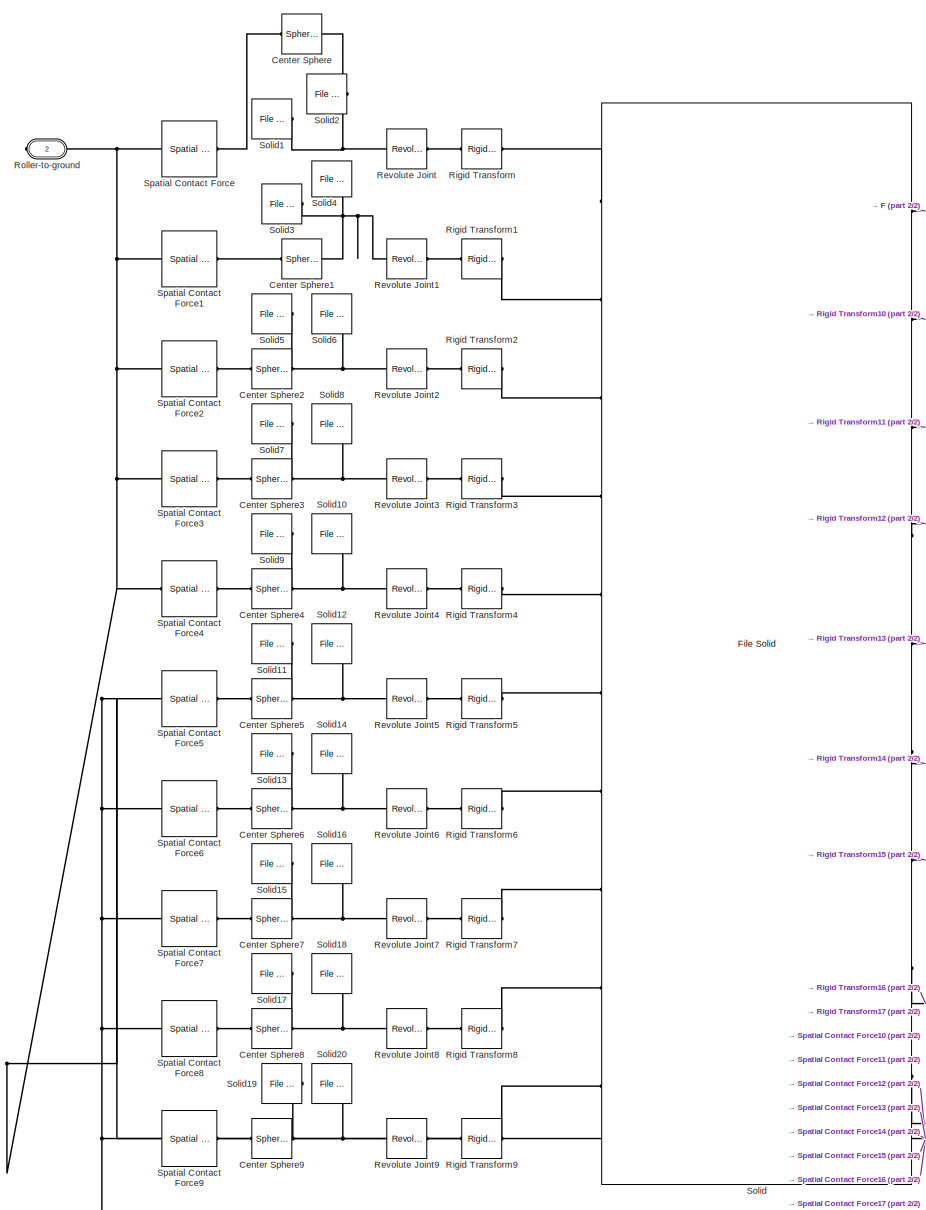
[diagram: Robot/Wheels/RoboCinWheel_simplified1_RIGID/wheel_simplified21_RIGID - part 1/2, left side, full height]
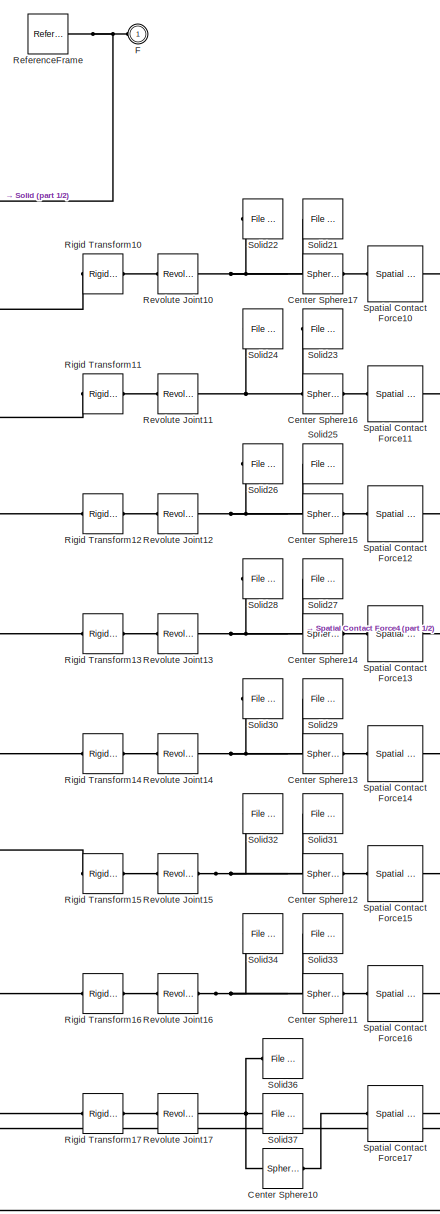
[diagram: Robot/Wheels/RoboCinWheel_simplified1_RIGID/wheel_simplified21_RIGID - part 2/2, right side, full height]
BLOCK [SubSystem] Robot/Wheels/RoboCinWheel_simplified1_RIGID/wheel_simplified21_RIGID
  Ports = [0, 0, 0, 0, 0, 1, 1]
  RequestExecContextInheritance = off
BLOCK [Reference] Robot/Wheels/RoboCinWheel_simplified1_RIGID/wheel_simplified21_RIGID/Center Sphere  REF=sm_lib/Body Elements/Spherical Solid
  Ports = [0, 0, 0, 0, 0, 1, 1]
  SourceBlock = sm_lib/Body Elements/Spherical Solid
  SourceProductBaseCode = MS
  SourceType = Spherical Solid
BLOCK [Reference] Robot/Wheels/RoboCinWheel_simplified1_RIGID/wheel_simplified21_RIGID/Center Sphere1  REF=sm_lib/Body Elements/Spherical Solid
  Ports = [0, 0, 0, 0, 0, 1, 1]
  SourceBlock = sm_lib/Body Elements/Spherical Solid
  SourceProductBaseCode = MS
  SourceType = Spherical Solid
BLOCK [Reference] Robot/Wheels/RoboCinWheel_simplified1_RIGID/wheel_simplified21_RIGID/Center Sphere10  REF=sm_lib/Body Elements/Spherical Solid
  Ports = [0, 0, 0, 0, 0, 1, 1]
  SourceBlock = sm_lib/Body Elements/Spherical Solid
  SourceProductBaseCode = MS
  SourceType = Spherical Solid
BLOCK [Reference] Robot/Wheels/RoboCinWheel_simplified1_RIGID/wheel_simplified21_RIGID/Center Sphere11  REF=sm_lib/Body Elements/Spherical Solid
  Ports = [0, 0, 0, 0, 0, 1, 1]
  SourceBlock = sm_lib/Body Elements/Spherical Solid
  SourceProductBaseCode = MS
  SourceType = Spherical Solid
BLOCK [Reference] Robot/Wheels/RoboCinWheel_simplified1_RIGID/wheel_simplified21_RIGID/Center Sphere12  REF=sm_lib/Body Elements/Spherical Solid
  Ports = [0, 0, 0, 0, 0, 1, 1]
  SourceBlock = sm_lib/Body Elements/Spherical Solid
  SourceProductBaseCode = MS
  SourceType = Spherical Solid
BLOCK [Reference] Robot/Wheels/RoboCinWheel_simplified1_RIGID/wheel_simplified21_RIGID/Center Sphere13  REF=sm_lib/Body Elements/Spherical Solid
  Ports = [0, 0, 0, 0, 0, 1, 1]
  SourceBlock = sm_lib/Body Elements/Spherical Solid
  SourceProductBaseCode = MS
  SourceType = Spherical Solid
BLOCK [Reference] Robot/Wheels/RoboCinWheel_simplified1_RIGID/wheel_simplified21_RIGID/Center Sphere14  REF=sm_lib/Body Elements/Spherical Solid
  Ports = [0, 0, 0, 0, 0, 1, 1]
  SourceBlock = sm_lib/Body Elements/Spherical Solid
  SourceProductBaseCode = MS
  SourceType = Spherical Solid
BLOCK [Reference] Robot/Wheels/RoboCinWheel_simplified1_RIGID/wheel_simplified21_RIGID/Center Sphere15  REF=sm_lib/Body Elements/Spherical Solid
  Ports = [0, 0, 0, 0, 0, 1, 1]
  SourceBlock = sm_lib/Body Elements/Spherical Solid
  SourceProductBaseCode = MS
  SourceType = Spherical Solid
BLOCK [Reference] Robot/Wheels/RoboCinWheel_simplified1_RIGID/wheel_simplified21_RIGID/Center Sphere16  REF=sm_lib/Body Elements/Spherical Solid
  Ports = [0, 0, 0, 0, 0, 1, 1]
  SourceBlock = sm_lib/Body Elements/Spherical Solid
  SourceProductBaseCode = MS
  SourceType = Spherical Solid
BLOCK [Reference] Robot/Wheels/RoboCinWheel_simplified1_RIGID/wheel_simplified21_RIGID/Center Sphere17  REF=sm_lib/Body Elements/Spherical Solid
  Ports = [0, 0, 0, 0, 0, 1, 1]
  SourceBlock = sm_lib/Body Elements/Spherical Solid
  SourceProductBaseCode = MS
  SourceType = Spherical Solid
BLOCK [Reference] Robot/Wheels/RoboCinWheel_simplified1_RIGID/wheel_simplified21_RIGID/Center Sphere2  REF=sm_lib/Body Elements/Spherical Solid
  Ports = [0, 0, 0, 0, 0, 1, 1]
  SourceBlock = sm_lib/Body Elements/Spherical Solid
  SourceProductBaseCode = MS
  SourceType = Spherical Solid
BLOCK [Reference] Robot/Wheels/RoboCinWheel_simplified1_RIGID/wheel_simplified21_RIGID/Center Sphere3  REF=sm_lib/Body Elements/Spherical Solid
  Ports = [0, 0, 0, 0, 0, 1, 1]
  SourceBlock = sm_lib/Body Elements/Spherical Solid
  SourceProductBaseCode = MS
  SourceType = Spherical Solid
BLOCK [Reference] Robot/Wheels/RoboCinWheel_simplified1_RIGID/wheel_simplified21_RIGID/Center Sphere4  REF=sm_lib/Body Elements/Spherical Solid
  Ports = [0, 0, 0, 0, 0, 1, 1]
  SourceBlock = sm_lib/Body Elements/Spherical Solid
  SourceProductBaseCode = MS
  SourceType = Spherical Solid
BLOCK [Reference] Robot/Wheels/RoboCinWheel_simplified1_RIGID/wheel_simplified21_RIGID/Center Sphere5  REF=sm_lib/Body Elements/Spherical Solid
  Ports = [0, 0, 0, 0, 0, 1, 1]
  SourceBlock = sm_lib/Body Elements/Spherical Solid
  SourceProductBaseCode = MS
  SourceType = Spherical Solid
BLOCK [Reference] Robot/Wheels/RoboCinWheel_simplified1_RIGID/wheel_simplified21_RIGID/Center Sphere6  REF=sm_lib/Body Elements/Spherical Solid
  Ports = [0, 0, 0, 0, 0, 1, 1]
  SourceBlock = sm_lib/Body Elements/Spherical Solid
  SourceProductBaseCode = MS
  SourceType = Spherical Solid
BLOCK [Reference] Robot/Wheels/RoboCinWheel_simplified1_RIGID/wheel_simplified21_RIGID/Center Sphere7  REF=sm_lib/Body Elements/Spherical Solid
  Ports = [0, 0, 0, 0, 0, 1, 1]
  SourceBlock = sm_lib/Body Elements/Spherical Solid
  SourceProductBaseCode = MS
  SourceType = Spherical Solid
BLOCK [Reference] Robot/Wheels/RoboCinWheel_simplified1_RIGID/wheel_simplified21_RIGID/Center Sphere8  REF=sm_lib/Body Elements/Spherical Solid
  Ports = [0, 0, 0, 0, 0, 1, 1]
  SourceBlock = sm_lib/Body Elements/Spherical Solid
  SourceProductBaseCode = MS
  SourceType = Spherical Solid
BLOCK [Reference] Robot/Wheels/RoboCinWheel_simplified1_RIGID/wheel_simplified21_RIGID/Center Sphere9  REF=sm_lib/Body Elements/Spherical Solid
  Ports = [0, 0, 0, 0, 0, 1, 1]
  SourceBlock = sm_lib/Body Elements/Spherical Solid
  SourceProductBaseCode = MS
  SourceType = Spherical Solid
BLOCK [PMIOPort] Robot/Wheels/RoboCinWheel_simplified1_RIGID/wheel_simplified21_RIGID/F
  Side = Left
BLOCK [Reference] Robot/Wheels/RoboCinWheel_simplified1_RIGID/wheel_simplified21_RIGID/ReferenceFrame  REF=sm_lib/Frames and
Transforms/Reference
Frame
  Ports = [0, 0, 0, 0, 0, 0, 1]
  SourceBlock = sm_lib/Frames and\nTransforms/Reference\nFrame
  SourceProductBaseCode = MS
  SourceType = Reference\nFrame
BLOCK [Reference] Robot/Wheels/RoboCinWheel_simplified1_RIGID/wheel_simplified21_RIGID/Revolute Joint  REF=sm_lib/Joints/Revolute Joint
  Ports = [0, 0, 0, 0, 0, 1, 1]
  SourceBlock = sm_lib/Joints/Revolute Joint
  SourceProductBaseCode = MS
  SourceType = Revolute Joint
BLOCK [Reference] Robot/Wheels/RoboCinWheel_simplified1_RIGID/wheel_simplified21_RIGID/Revolute Joint1  REF=sm_lib/Joints/Revolute Joint
  Ports = [0, 0, 0, 0, 0, 1, 1]
  SourceBlock = sm_lib/Joints/Revolute Joint
  SourceProductBaseCode = MS
  SourceType = Revolute Joint
BLOCK [Reference] Robot/Wheels/RoboCinWheel_simplified1_RIGID/wheel_simplified21_RIGID/Revolute Joint10  REF=sm_lib/Joints/Revolute Joint
  Ports = [0, 0, 0, 0, 0, 1, 1]
  SourceBlock = sm_lib/Joints/Revolute Joint
  SourceProductBaseCode = MS
  SourceType = Revolute Joint
BLOCK [Reference] Robot/Wheels/RoboCinWheel_simplified1_RIGID/wheel_simplified21_RIGID/Revolute Joint11  REF=sm_lib/Joints/Revolute Joint
  Ports = [0, 0, 0, 0, 0, 1, 1]
  SourceBlock = sm_lib/Joints/Revolute Joint
  SourceProductBaseCode = MS
  SourceType = Revolute Joint
BLOCK [Reference] Robot/Wheels/RoboCinWheel_simplified1_RIGID/wheel_simplified21_RIGID/Revolute Joint12  REF=sm_lib/Joints/Revolute Joint
  Ports = [0, 0, 0, 0, 0, 1, 1]
  SourceBlock = sm_lib/Joints/Revolute Joint
  SourceProductBaseCode = MS
  SourceType = Revolute Joint
BLOCK [Reference] Robot/Wheels/RoboCinWheel_simplified1_RIGID/wheel_simplified21_RIGID/Revolute Joint13  REF=sm_lib/Joints/Revolute Joint
  Ports = [0, 0, 0, 0, 0, 1, 1]
  SourceBlock = sm_lib/Joints/Revolute Joint
  SourceProductBaseCode = MS
  SourceType = Revolute Joint
BLOCK [Reference] Robot/Wheels/RoboCinWheel_simplified1_RIGID/wheel_simplified21_RIGID/Revolute Joint14  REF=sm_lib/Joints/Revolute Joint
  Ports = [0, 0, 0, 0, 0, 1, 1]
  SourceBlock = sm_lib/Joints/Revolute Joint
  SourceProductBaseCode = MS
  SourceType = Revolute Joint
BLOCK [Reference] Robot/Wheels/RoboCinWheel_simplified1_RIGID/wheel_simplified21_RIGID/Revolute Joint15  REF=sm_lib/Joints/Revolute Joint
  Ports = [0, 0, 0, 0, 0, 1, 1]
  SourceBlock = sm_lib/Joints/Revolute Joint
  SourceProductBaseCode = MS
  SourceType = Revolute Joint
BLOCK [Reference] Robot/Wheels/RoboCinWheel_simplified1_RIGID/wheel_simplified21_RIGID/Revolute Joint16  REF=sm_lib/Joints/Revolute Joint
  Ports = [0, 0, 0, 0, 0, 1, 1]
  SourceBlock = sm_lib/Joints/Revolute Joint
  SourceProductBaseCode = MS
  SourceType = Revolute Joint
BLOCK [Reference] Robot/Wheels/RoboCinWheel_simplified1_RIGID/wheel_simplified21_RIGID/Revolute Joint17  REF=sm_lib/Joints/Revolute Joint
  Ports = [0, 0, 0, 0, 0, 1, 1]
  SourceBlock = sm_lib/Joints/Revolute Joint
  SourceProductBaseCode = MS
  SourceType = Revolute Joint
BLOCK [Reference] Robot/Wheels/RoboCinWheel_simplified1_RIGID/wheel_simplified21_RIGID/Revolute Joint2  REF=sm_lib/Joints/Revolute Joint
  Ports = [0, 0, 0, 0, 0, 1, 1]
  SourceBlock = sm_lib/Joints/Revolute Joint
  SourceProductBaseCode = MS
  SourceType = Revolute Joint
BLOCK [Reference] Robot/Wheels/RoboCinWheel_simplified1_RIGID/wheel_simplified21_RIGID/Revolute Joint3  REF=sm_lib/Joints/Revolute Joint
  Ports = [0, 0, 0, 0, 0, 1, 1]
  SourceBlock = sm_lib/Joints/Revolute Joint
  SourceProductBaseCode = MS
  SourceType = Revolute Joint
BLOCK [Reference] Robot/Wheels/RoboCinWheel_simplified1_RIGID/wheel_simplified21_RIGID/Revolute Joint4  REF=sm_lib/Joints/Revolute Joint
  Ports = [0, 0, 0, 0, 0, 1, 1]
  SourceBlock = sm_lib/Joints/Revolute Joint
  SourceProductBaseCode = MS
  SourceType = Revolute Joint
BLOCK [Reference] Robot/Wheels/RoboCinWheel_simplified1_RIGID/wheel_simplified21_RIGID/Revolute Joint5  REF=sm_lib/Joints/Revolute Joint
  Ports = [0, 0, 0, 0, 0, 1, 1]
  SourceBlock = sm_lib/Joints/Revolute Joint
  SourceProductBaseCode = MS
  SourceType = Revolute Joint
BLOCK [Reference] Robot/Wheels/RoboCinWheel_simplified1_RIGID/wheel_simplified21_RIGID/Revolute Joint6  REF=sm_lib/Joints/Revolute Joint
  Ports = [0, 0, 0, 0, 0, 1, 1]
  SourceBlock = sm_lib/Joints/Revolute Joint
  SourceProductBaseCode = MS
  SourceType = Revolute Joint
BLOCK [Reference] Robot/Wheels/RoboCinWheel_simplified1_RIGID/wheel_simplified21_RIGID/Revolute Joint7  REF=sm_lib/Joints/Revolute Joint
  Ports = [0, 0, 0, 0, 0, 1, 1]
  SourceBlock = sm_lib/Joints/Revolute Joint
  SourceProductBaseCode = MS
  SourceType = Revolute Joint
BLOCK [Reference] Robot/Wheels/RoboCinWheel_simplified1_RIGID/wheel_simplified21_RIGID/Revolute Joint8  REF=sm_lib/Joints/Revolute Joint
  Ports = [0, 0, 0, 0, 0, 1, 1]
  SourceBlock = sm_lib/Joints/Revolute Joint
  SourceProductBaseCode = MS
  SourceType = Revolute Joint
BLOCK [Reference] Robot/Wheels/RoboCinWheel_simplified1_RIGID/wheel_simplified21_RIGID/Revolute Joint9  REF=sm_lib/Joints/Revolute Joint
  Ports = [0, 0, 0, 0, 0, 1, 1]
  SourceBlock = sm_lib/Joints/Revolute Joint
  SourceProductBaseCode = MS
  SourceType = Revolute Joint
BLOCK [Reference] Robot/Wheels/RoboCinWheel_simplified1_RIGID/wheel_simplified21_RIGID/Rigid Transform  REF=sm_lib/Frames and
Transforms/Rigid
Transform
  Ports = [0, 0, 0, 0, 0, 1, 1]
  SourceBlock = sm_lib/Frames and\nTransforms/Rigid\nTransform
  SourceProductBaseCode = MS
  SourceType = Rigid\nTransform
BLOCK [Reference] Robot/Wheels/RoboCinWheel_simplified1_RIGID/wheel_simplified21_RIGID/Rigid Transform1  REF=sm_lib/Frames and
Transforms/Rigid
Transform
  Ports = [0, 0, 0, 0, 0, 1, 1]
  SourceBlock = sm_lib/Frames and\nTransforms/Rigid\nTransform
  SourceProductBaseCode = MS
  SourceType = Rigid\nTransform
BLOCK [Reference] Robot/Wheels/RoboCinWheel_simplified1_RIGID/wheel_simplified21_RIGID/Rigid Transform10  REF=sm_lib/Frames and
Transforms/Rigid
Transform
  Ports = [0, 0, 0, 0, 0, 1, 1]
  SourceBlock = sm_lib/Frames and\nTransforms/Rigid\nTransform
  SourceProductBaseCode = MS
  SourceType = Rigid\nTransform
BLOCK [Reference] Robot/Wheels/RoboCinWheel_simplified1_RIGID/wheel_simplified21_RIGID/Rigid Transform11  REF=sm_lib/Frames and
Transforms/Rigid
Transform
  Ports = [0, 0, 0, 0, 0, 1, 1]
  SourceBlock = sm_lib/Frames and\nTransforms/Rigid\nTransform
  SourceProductBaseCode = MS
  SourceType = Rigid\nTransform
BLOCK [Reference] Robot/Wheels/RoboCinWheel_simplified1_RIGID/wheel_simplified21_RIGID/Rigid Transform12  REF=sm_lib/Frames and
Transforms/Rigid
Transform
  Ports = [0, 0, 0, 0, 0, 1, 1]
  SourceBlock = sm_lib/Frames and\nTransforms/Rigid\nTransform
  SourceProductBaseCode = MS
  SourceType = Rigid\nTransform
BLOCK [Reference] Robot/Wheels/RoboCinWheel_simplified1_RIGID/wheel_simplified21_RIGID/Rigid Transform13  REF=sm_lib/Frames and
Transforms/Rigid
Transform
  Ports = [0, 0, 0, 0, 0, 1, 1]
  SourceBlock = sm_lib/Frames and\nTransforms/Rigid\nTransform
  SourceProductBaseCode = MS
  SourceType = Rigid\nTransform
BLOCK [Reference] Robot/Wheels/RoboCinWheel_simplified1_RIGID/wheel_simplified21_RIGID/Rigid Transform14  REF=sm_lib/Frames and
Transforms/Rigid
Transform
  Ports = [0, 0, 0, 0, 0, 1, 1]
  SourceBlock = sm_lib/Frames and\nTransforms/Rigid\nTransform
  SourceProductBaseCode = MS
  SourceType = Rigid\nTransform
BLOCK [Reference] Robot/Wheels/RoboCinWheel_simplified1_RIGID/wheel_simplified21_RIGID/Rigid Transform15  REF=sm_lib/Frames and
Transforms/Rigid
Transform
  Ports = [0, 0, 0, 0, 0, 1, 1]
  SourceBlock = sm_lib/Frames and\nTransforms/Rigid\nTransform
  SourceProductBaseCode = MS
  SourceType = Rigid\nTransform
BLOCK [Reference] Robot/Wheels/RoboCinWheel_simplified1_RIGID/wheel_simplified21_RIGID/Rigid Transform16  REF=sm_lib/Frames and
Transforms/Rigid
Transform
  Ports = [0, 0, 0, 0, 0, 1, 1]
  SourceBlock = sm_lib/Frames and\nTransforms/Rigid\nTransform
  SourceProductBaseCode = MS
  SourceType = Rigid\nTransform
BLOCK [Reference] Robot/Wheels/RoboCinWheel_simplified1_RIGID/wheel_simplified21_RIGID/Rigid Transform17  REF=sm_lib/Frames and
Transforms/Rigid
Transform
  Ports = [0, 0, 0, 0, 0, 1, 1]
  SourceBlock = sm_lib/Frames and\nTransforms/Rigid\nTransform
  SourceProductBaseCode = MS
  SourceType = Rigid\nTransform
BLOCK [Reference] Robot/Wheels/RoboCinWheel_simplified1_RIGID/wheel_simplified21_RIGID/Rigid Transform2  REF=sm_lib/Frames and
Transforms/Rigid
Transform
  Ports = [0, 0, 0, 0, 0, 1, 1]
  SourceBlock = sm_lib/Frames and\nTransforms/Rigid\nTransform
  SourceProductBaseCode = MS
  SourceType = Rigid\nTransform
BLOCK [Reference] Robot/Wheels/RoboCinWheel_simplified1_RIGID/wheel_simplified21_RIGID/Rigid Transform3  REF=sm_lib/Frames and
Transforms/Rigid
Transform
  Ports = [0, 0, 0, 0, 0, 1, 1]
  SourceBlock = sm_lib/Frames and\nTransforms/Rigid\nTransform
  SourceProductBaseCode = MS
  SourceType = Rigid\nTransform
BLOCK [Reference] Robot/Wheels/RoboCinWheel_simplified1_RIGID/wheel_simplified21_RIGID/Rigid Transform4  REF=sm_lib/Frames and
Transforms/Rigid
Transform
  Ports = [0, 0, 0, 0, 0, 1, 1]
  SourceBlock = sm_lib/Frames and\nTransforms/Rigid\nTransform
  SourceProductBaseCode = MS
  SourceType = Rigid\nTransform
BLOCK [Reference] Robot/Wheels/RoboCinWheel_simplified1_RIGID/wheel_simplified21_RIGID/Rigid Transform5  REF=sm_lib/Frames and
Transforms/Rigid
Transform
  Ports = [0, 0, 0, 0, 0, 1, 1]
  SourceBlock = sm_lib/Frames and\nTransforms/Rigid\nTransform
  SourceProductBaseCode = MS
  SourceType = Rigid\nTransform
BLOCK [Reference] Robot/Wheels/RoboCinWheel_simplified1_RIGID/wheel_simplified21_RIGID/Rigid Transform6  REF=sm_lib/Frames and
Transforms/Rigid
Transform
  Ports = [0, 0, 0, 0, 0, 1, 1]
  SourceBlock = sm_lib/Frames and\nTransforms/Rigid\nTransform
  SourceProductBaseCode = MS
  SourceType = Rigid\nTransform
BLOCK [Reference] Robot/Wheels/RoboCinWheel_simplified1_RIGID/wheel_simplified21_RIGID/Rigid Transform7  REF=sm_lib/Frames and
Transforms/Rigid
Transform
  Ports = [0, 0, 0, 0, 0, 1, 1]
  SourceBlock = sm_lib/Frames and\nTransforms/Rigid\nTransform
  SourceProductBaseCode = MS
  SourceType = Rigid\nTransform
BLOCK [Reference] Robot/Wheels/RoboCinWheel_simplified1_RIGID/wheel_simplified21_RIGID/Rigid Transform8  REF=sm_lib/Frames and
Transforms/Rigid
Transform
  Ports = [0, 0, 0, 0, 0, 1, 1]
  SourceBlock = sm_lib/Frames and\nTransforms/Rigid\nTransform
  SourceProductBaseCode = MS
  SourceType = Rigid\nTransform
BLOCK [Reference] Robot/Wheels/RoboCinWheel_simplified1_RIGID/wheel_simplified21_RIGID/Rigid Transform9  REF=sm_lib/Frames and
Transforms/Rigid
Transform
  Ports = [0, 0, 0, 0, 0, 1, 1]
  SourceBlock = sm_lib/Frames and\nTransforms/Rigid\nTransform
  SourceProductBaseCode = MS
  SourceType = Rigid\nTransform
BLOCK [PMIOPort] Robot/Wheels/RoboCinWheel_simplified1_RIGID/wheel_simplified21_RIGID/Roller-to-ground
  Port = 2
  Side = Right
BLOCK [Reference] Robot/Wheels/RoboCinWheel_simplified1_RIGID/wheel_simplified21_RIGID/Solid  REF=sm_lib/Body Elements/File Solid
  Ports = [0, 0, 0, 0, 0, 10, 9]
  SourceBlock = sm_lib/Body Elements/File Solid
  SourceProductBaseCode = MS
  SourceType = File Solid
BLOCK [Reference] Robot/Wheels/RoboCinWheel_simplified1_RIGID/wheel_simplified21_RIGID/Solid1  REF=sm_lib/Body Elements/File Solid
  Ports = [0, 0, 0, 0, 0, 1, 1]
  SourceBlock = sm_lib/Body Elements/File Solid
  SourceProductBaseCode = MS
  SourceType = File Solid
BLOCK [Reference] Robot/Wheels/RoboCinWheel_simplified1_RIGID/wheel_simplified21_RIGID/Solid10  REF=sm_lib/Body Elements/File Solid
  Ports = [0, 0, 0, 0, 0, 0, 1]
  SourceBlock = sm_lib/Body Elements/File Solid
  SourceProductBaseCode = MS
  SourceType = File Solid
BLOCK [Reference] Robot/Wheels/RoboCinWheel_simplified1_RIGID/wheel_simplified21_RIGID/Solid11  REF=sm_lib/Body Elements/File Solid
  Ports = [0, 0, 0, 0, 0, 1, 1]
  SourceBlock = sm_lib/Body Elements/File Solid
  SourceProductBaseCode = MS
  SourceType = File Solid
BLOCK [Reference] Robot/Wheels/RoboCinWheel_simplified1_RIGID/wheel_simplified21_RIGID/Solid12  REF=sm_lib/Body Elements/File Solid
  Ports = [0, 0, 0, 0, 0, 0, 1]
  SourceBlock = sm_lib/Body Elements/File Solid
  SourceProductBaseCode = MS
  SourceType = File Solid
BLOCK [Reference] Robot/Wheels/RoboCinWheel_simplified1_RIGID/wheel_simplified21_RIGID/Solid13  REF=sm_lib/Body Elements/File Solid
  Ports = [0, 0, 0, 0, 0, 1, 1]
  SourceBlock = sm_lib/Body Elements/File Solid
  SourceProductBaseCode = MS
  SourceType = File Solid
BLOCK [Reference] Robot/Wheels/RoboCinWheel_simplified1_RIGID/wheel_simplified21_RIGID/Solid14  REF=sm_lib/Body Elements/File Solid
  Ports = [0, 0, 0, 0, 0, 0, 1]
  SourceBlock = sm_lib/Body Elements/File Solid
  SourceProductBaseCode = MS
  SourceType = File Solid
BLOCK [Reference] Robot/Wheels/RoboCinWheel_simplified1_RIGID/wheel_simplified21_RIGID/Solid15  REF=sm_lib/Body Elements/File Solid
  Ports = [0, 0, 0, 0, 0, 1, 1]
  SourceBlock = sm_lib/Body Elements/File Solid
  SourceProductBaseCode = MS
  SourceType = File Solid
BLOCK [Reference] Robot/Wheels/RoboCinWheel_simplified1_RIGID/wheel_simplified21_RIGID/Solid16  REF=sm_lib/Body Elements/File Solid
  Ports = [0, 0, 0, 0, 0, 0, 1]
  SourceBlock = sm_lib/Body Elements/File Solid
  SourceProductBaseCode = MS
  SourceType = File Solid
BLOCK [Reference] Robot/Wheels/RoboCinWheel_simplified1_RIGID/wheel_simplified21_RIGID/Solid17  REF=sm_lib/Body Elements/File Solid
  Ports = [0, 0, 0, 0, 0, 1, 1]
  SourceBlock = sm_lib/Body Elements/File Solid
  SourceProductBaseCode = MS
  SourceType = File Solid
BLOCK [Reference] Robot/Wheels/RoboCinWheel_simplified1_RIGID/wheel_simplified21_RIGID/Solid18  REF=sm_lib/Body Elements/File Solid
  Ports = [0, 0, 0, 0, 0, 0, 1]
  SourceBlock = sm_lib/Body Elements/File Solid
  SourceProductBaseCode = MS
  SourceType = File Solid
BLOCK [Reference] Robot/Wheels/RoboCinWheel_simplified1_RIGID/wheel_simplified21_RIGID/Solid19  REF=sm_lib/Body Elements/File Solid
  Ports = [0, 0, 0, 0, 0, 1, 1]
  SourceBlock = sm_lib/Body Elements/File Solid
  SourceProductBaseCode = MS
  SourceType = File Solid
BLOCK [Reference] Robot/Wheels/RoboCinWheel_simplified1_RIGID/wheel_simplified21_RIGID/Solid2  REF=sm_lib/Body Elements/File Solid
  Ports = [0, 0, 0, 0, 0, 0, 1]
  SourceBlock = sm_lib/Body Elements/File Solid
  SourceProductBaseCode = MS
  SourceType = File Solid
BLOCK [Reference] Robot/Wheels/RoboCinWheel_simplified1_RIGID/wheel_simplified21_RIGID/Solid20  REF=sm_lib/Body Elements/File Solid
  Ports = [0, 0, 0, 0, 0, 0, 1]
  SourceBlock = sm_lib/Body Elements/File Solid
  SourceProductBaseCode = MS
  SourceType = File Solid
BLOCK [Reference] Robot/Wheels/RoboCinWheel_simplified1_RIGID/wheel_simplified21_RIGID/Solid21  REF=sm_lib/Body Elements/File Solid
  Ports = [0, 0, 0, 0, 0, 1, 1]
  SourceBlock = sm_lib/Body Elements/File Solid
  SourceProductBaseCode = MS
  SourceType = File Solid
BLOCK [Reference] Robot/Wheels/RoboCinWheel_simplified1_RIGID/wheel_simplified21_RIGID/Solid22  REF=sm_lib/Body Elements/File Solid
  Ports = [0, 0, 0, 0, 0, 0, 1]
  SourceBlock = sm_lib/Body Elements/File Solid
  SourceProductBaseCode = MS
  SourceType = File Solid
BLOCK [Reference] Robot/Wheels/RoboCinWheel_simplified1_RIGID/wheel_simplified21_RIGID/Solid23  REF=sm_lib/Body Elements/File Solid
  Ports = [0, 0, 0, 0, 0, 1, 1]
  SourceBlock = sm_lib/Body Elements/File Solid
  SourceProductBaseCode = MS
  SourceType = File Solid
BLOCK [Reference] Robot/Wheels/RoboCinWheel_simplified1_RIGID/wheel_simplified21_RIGID/Solid24  REF=sm_lib/Body Elements/File Solid
  Ports = [0, 0, 0, 0, 0, 0, 1]
  SourceBlock = sm_lib/Body Elements/File Solid
  SourceProductBaseCode = MS
  SourceType = File Solid
BLOCK [Reference] Robot/Wheels/RoboCinWheel_simplified1_RIGID/wheel_simplified21_RIGID/Solid25  REF=sm_lib/Body Elements/File Solid
  Ports = [0, 0, 0, 0, 0, 1, 1]
  SourceBlock = sm_lib/Body Elements/File Solid
  SourceProductBaseCode = MS
  SourceType = File Solid
BLOCK [Reference] Robot/Wheels/RoboCinWheel_simplified1_RIGID/wheel_simplified21_RIGID/Solid26  REF=sm_lib/Body Elements/File Solid
  Ports = [0, 0, 0, 0, 0, 0, 1]
  SourceBlock = sm_lib/Body Elements/File Solid
  SourceProductBaseCode = MS
  SourceType = File Solid
BLOCK [Reference] Robot/Wheels/RoboCinWheel_simplified1_RIGID/wheel_simplified21_RIGID/Solid27  REF=sm_lib/Body Elements/File Solid
  Ports = [0, 0, 0, 0, 0, 1, 1]
  SourceBlock = sm_lib/Body Elements/File Solid
  SourceProductBaseCode = MS
  SourceType = File Solid
BLOCK [Reference] Robot/Wheels/RoboCinWheel_simplified1_RIGID/wheel_simplified21_RIGID/Solid28  REF=sm_lib/Body Elements/File Solid
  Ports = [0, 0, 0, 0, 0, 0, 1]
  SourceBlock = sm_lib/Body Elements/File Solid
  SourceProductBaseCode = MS
  SourceType = File Solid
BLOCK [Reference] Robot/Wheels/RoboCinWheel_simplified1_RIGID/wheel_simplified21_RIGID/Solid29  REF=sm_lib/Body Elements/File Solid
  Ports = [0, 0, 0, 0, 0, 1, 1]
  SourceBlock = sm_lib/Body Elements/File Solid
  SourceProductBaseCode = MS
  SourceType = File Solid
BLOCK [Reference] Robot/Wheels/RoboCinWheel_simplified1_RIGID/wheel_simplified21_RIGID/Solid3  REF=sm_lib/Body Elements/File Solid
  Ports = [0, 0, 0, 0, 0, 1, 1]
  SourceBlock = sm_lib/Body Elements/File Solid
  SourceProductBaseCode = MS
  SourceType = File Solid
BLOCK [Reference] Robot/Wheels/RoboCinWheel_simplified1_RIGID/wheel_simplified21_RIGID/Solid30  REF=sm_lib/Body Elements/File Solid
  Ports = [0, 0, 0, 0, 0, 0, 1]
  SourceBlock = sm_lib/Body Elements/File Solid
  SourceProductBaseCode = MS
  SourceType = File Solid
BLOCK [Reference] Robot/Wheels/RoboCinWheel_simplified1_RIGID/wheel_simplified21_RIGID/Solid31  REF=sm_lib/Body Elements/File Solid
  Ports = [0, 0, 0, 0, 0, 1, 1]
  SourceBlock = sm_lib/Body Elements/File Solid
  SourceProductBaseCode = MS
  SourceType = File Solid
BLOCK [Reference] Robot/Wheels/RoboCinWheel_simplified1_RIGID/wheel_simplified21_RIGID/Solid32  REF=sm_lib/Body Elements/File Solid
  Ports = [0, 0, 0, 0, 0, 0, 1]
  SourceBlock = sm_lib/Body Elements/File Solid
  SourceProductBaseCode = MS
  SourceType = File Solid
BLOCK [Reference] Robot/Wheels/RoboCinWheel_simplified1_RIGID/wheel_simplified21_RIGID/Solid33  REF=sm_lib/Body Elements/File Solid
  Ports = [0, 0, 0, 0, 0, 1, 1]
  SourceBlock = sm_lib/Body Elements/File Solid
  SourceProductBaseCode = MS
  SourceType = File Solid
BLOCK [Reference] Robot/Wheels/RoboCinWheel_simplified1_RIGID/wheel_simplified21_RIGID/Solid34  REF=sm_lib/Body Elements/File Solid
  Ports = [0, 0, 0, 0, 0, 0, 1]
  SourceBlock = sm_lib/Body Elements/File Solid
  SourceProductBaseCode = MS
  SourceType = File Solid
BLOCK [Reference] Robot/Wheels/RoboCinWheel_simplified1_RIGID/wheel_simplified21_RIGID/Solid36  REF=sm_lib/Body Elements/File Solid
  Ports = [0, 0, 0, 0, 0, 0, 1]
  SourceBlock = sm_lib/Body Elements/File Solid
  SourceProductBaseCode = MS
  SourceType = File Solid
BLOCK [Reference] Robot/Wheels/RoboCinWheel_simplified1_RIGID/wheel_simplified21_RIGID/Solid37  REF=sm_lib/Body Elements/File Solid
  Ports = [0, 0, 0, 0, 0, 1, 1]
  SourceBlock = sm_lib/Body Elements/File Solid
  SourceProductBaseCode = MS
  SourceType = File Solid
BLOCK [Reference] Robot/Wheels/RoboCinWheel_simplified1_RIGID/wheel_simplified21_RIGID/Solid4  REF=sm_lib/Body Elements/File Solid
  Ports = [0, 0, 0, 0, 0, 0, 1]
  SourceBlock = sm_lib/Body Elements/File Solid
  SourceProductBaseCode = MS
  SourceType = File Solid
BLOCK [Reference] Robot/Wheels/RoboCinWheel_simplified1_RIGID/wheel_simplified21_RIGID/Solid5  REF=sm_lib/Body Elements/File Solid
  Ports = [0, 0, 0, 0, 0, 1, 1]
  SourceBlock = sm_lib/Body Elements/File Solid
  SourceProductBaseCode = MS
  SourceType = File Solid
BLOCK [Reference] Robot/Wheels/RoboCinWheel_simplified1_RIGID/wheel_simplified21_RIGID/Solid6  REF=sm_lib/Body Elements/File Solid
  Ports = [0, 0, 0, 0, 0, 0, 1]
  SourceBlock = sm_lib/Body Elements/File Solid
  SourceProductBaseCode = MS
  SourceType = File Solid
BLOCK [Reference] Robot/Wheels/RoboCinWheel_simplified1_RIGID/wheel_simplified21_RIGID/Solid7  REF=sm_lib/Body Elements/File Solid
  Ports = [0, 0, 0, 0, 0, 1, 1]
  SourceBlock = sm_lib/Body Elements/File Solid
  SourceProductBaseCode = MS
  SourceType = File Solid
BLOCK [Reference] Robot/Wheels/RoboCinWheel_simplified1_RIGID/wheel_simplified21_RIGID/Solid8  REF=sm_lib/Body Elements/File Solid
  Ports = [0, 0, 0, 0, 0, 0, 1]
  SourceBlock = sm_lib/Body Elements/File Solid
  SourceProductBaseCode = MS
  SourceType = File Solid
BLOCK [Reference] Robot/Wheels/RoboCinWheel_simplified1_RIGID/wheel_simplified21_RIGID/Solid9  REF=sm_lib/Body Elements/File Solid
  Ports = [0, 0, 0, 0, 0, 1, 1]
  SourceBlock = sm_lib/Body Elements/File Solid
  SourceProductBaseCode = MS
  SourceType = File Solid
BLOCK [Reference] Robot/Wheels/RoboCinWheel_simplified1_RIGID/wheel_simplified21_RIGID/Spatial Contact Force  REF=sm_lib/Forces and
Torques/Spatial
Contact Force
  Ports = [0, 0, 0, 0, 0, 1, 1]
  SourceBlock = sm_lib/Forces and\nTorques/Spatial\nContact Force
  SourceProductBaseCode = MS
  SourceType = Spatial\nContact Force
BLOCK [Reference] Robot/Wheels/RoboCinWheel_simplified1_RIGID/wheel_simplified21_RIGID/Spatial Contact Force1  REF=sm_lib/Forces and
Torques/Spatial
Contact Force
  Ports = [0, 0, 0, 0, 0, 1, 1]
  SourceBlock = sm_lib/Forces and\nTorques/Spatial\nContact Force
  SourceProductBaseCode = MS
  SourceType = Spatial\nContact Force
BLOCK [Reference] Robot/Wheels/RoboCinWheel_simplified1_RIGID/wheel_simplified21_RIGID/Spatial Contact Force10  REF=sm_lib/Forces and
Torques/Spatial
Contact Force
  Ports = [0, 0, 0, 0, 0, 1, 1]
  SourceBlock = sm_lib/Forces and\nTorques/Spatial\nContact Force
  SourceProductBaseCode = MS
  SourceType = Spatial\nContact Force
BLOCK [Reference] Robot/Wheels/RoboCinWheel_simplified1_RIGID/wheel_simplified21_RIGID/Spatial Contact Force11  REF=sm_lib/Forces and
Torques/Spatial
Contact Force
  Ports = [0, 0, 0, 0, 0, 1, 1]
  SourceBlock = sm_lib/Forces and\nTorques/Spatial\nContact Force
  SourceProductBaseCode = MS
  SourceType = Spatial\nContact Force
BLOCK [Reference] Robot/Wheels/RoboCinWheel_simplified1_RIGID/wheel_simplified21_RIGID/Spatial Contact Force12  REF=sm_lib/Forces and
Torques/Spatial
Contact Force
  Ports = [0, 0, 0, 0, 0, 1, 1]
  SourceBlock = sm_lib/Forces and\nTorques/Spatial\nContact Force
  SourceProductBaseCode = MS
  SourceType = Spatial\nContact Force
BLOCK [Reference] Robot/Wheels/RoboCinWheel_simplified1_RIGID/wheel_simplified21_RIGID/Spatial Contact Force13  REF=sm_lib/Forces and
Torques/Spatial
Contact Force
  Ports = [0, 0, 0, 0, 0, 1, 1]
  SourceBlock = sm_lib/Forces and\nTorques/Spatial\nContact Force
  SourceProductBaseCode = MS
  SourceType = Spatial\nContact Force
BLOCK [Reference] Robot/Wheels/RoboCinWheel_simplified1_RIGID/wheel_simplified21_RIGID/Spatial Contact Force14  REF=sm_lib/Forces and
Torques/Spatial
Contact Force
  Ports = [0, 0, 0, 0, 0, 1, 1]
  SourceBlock = sm_lib/Forces and\nTorques/Spatial\nContact Force
  SourceProductBaseCode = MS
  SourceType = Spatial\nContact Force
BLOCK [Reference] Robot/Wheels/RoboCinWheel_simplified1_RIGID/wheel_simplified21_RIGID/Spatial Contact Force15  REF=sm_lib/Forces and
Torques/Spatial
Contact Force
  Ports = [0, 0, 0, 0, 0, 1, 1]
  SourceBlock = sm_lib/Forces and\nTorques/Spatial\nContact Force
  SourceProductBaseCode = MS
  SourceType = Spatial\nContact Force
BLOCK [Reference] Robot/Wheels/RoboCinWheel_simplified1_RIGID/wheel_simplified21_RIGID/Spatial Contact Force16  REF=sm_lib/Forces and
Torques/Spatial
Contact Force
  Ports = [0, 0, 0, 0, 0, 1, 1]
  SourceBlock = sm_lib/Forces and\nTorques/Spatial\nContact Force
  SourceProductBaseCode = MS
  SourceType = Spatial\nContact Force
BLOCK [Reference] Robot/Wheels/RoboCinWheel_simplified1_RIGID/wheel_simplified21_RIGID/Spatial Contact Force17  REF=sm_lib/Forces and
Torques/Spatial
Contact Force
  Ports = [0, 0, 0, 0, 0, 1, 1]
  SourceBlock = sm_lib/Forces and\nTorques/Spatial\nContact Force
  SourceProductBaseCode = MS
  SourceType = Spatial\nContact Force
BLOCK [Reference] Robot/Wheels/RoboCinWheel_simplified1_RIGID/wheel_simplified21_RIGID/Spatial Contact Force2  REF=sm_lib/Forces and
Torques/Spatial
Contact Force
  Ports = [0, 0, 0, 0, 0, 1, 1]
  SourceBlock = sm_lib/Forces and\nTorques/Spatial\nContact Force
  SourceProductBaseCode = MS
  SourceType = Spatial\nContact Force
BLOCK [Reference] Robot/Wheels/RoboCinWheel_simplified1_RIGID/wheel_simplified21_RIGID/Spatial Contact Force3  REF=sm_lib/Forces and
Torques/Spatial
Contact Force
  Ports = [0, 0, 0, 0, 0, 1, 1]
  SourceBlock = sm_lib/Forces and\nTorques/Spatial\nContact Force
  SourceProductBaseCode = MS
  SourceType = Spatial\nContact Force
BLOCK [Reference] Robot/Wheels/RoboCinWheel_simplified1_RIGID/wheel_simplified21_RIGID/Spatial Contact Force4  REF=sm_lib/Forces and
Torques/Spatial
Contact Force
  Ports = [0, 0, 0, 0, 0, 1, 1]
  SourceBlock = sm_lib/Forces and\nTorques/Spatial\nContact Force
  SourceProductBaseCode = MS
  SourceType = Spatial\nContact Force
BLOCK [Reference] Robot/Wheels/RoboCinWheel_simplified1_RIGID/wheel_simplified21_RIGID/Spatial Contact Force5  REF=sm_lib/Forces and
Torques/Spatial
Contact Force
  Ports = [0, 0, 0, 0, 0, 1, 1]
  SourceBlock = sm_lib/Forces and\nTorques/Spatial\nContact Force
  SourceProductBaseCode = MS
  SourceType = Spatial\nContact Force
BLOCK [Reference] Robot/Wheels/RoboCinWheel_simplified1_RIGID/wheel_simplified21_RIGID/Spatial Contact Force6  REF=sm_lib/Forces and
Torques/Spatial
Contact Force
  Ports = [0, 0, 0, 0, 0, 1, 1]
  SourceBlock = sm_lib/Forces and\nTorques/Spatial\nContact Force
  SourceProductBaseCode = MS
  SourceType = Spatial\nContact Force
BLOCK [Reference] Robot/Wheels/RoboCinWheel_simplified1_RIGID/wheel_simplified21_RIGID/Spatial Contact Force7  REF=sm_lib/Forces and
Torques/Spatial
Contact Force
  Ports = [0, 0, 0, 0, 0, 1, 1]
  SourceBlock = sm_lib/Forces and\nTorques/Spatial\nContact Force
  SourceProductBaseCode = MS
  SourceType = Spatial\nContact Force
BLOCK [Reference] Robot/Wheels/RoboCinWheel_simplified1_RIGID/wheel_simplified21_RIGID/Spatial Contact Force8  REF=sm_lib/Forces and
Torques/Spatial
Contact Force
  Ports = [0, 0, 0, 0, 0, 1, 1]
  SourceBlock = sm_lib/Forces and\nTorques/Spatial\nContact Force
  SourceProductBaseCode = MS
  SourceType = Spatial\nContact Force
BLOCK [Reference] Robot/Wheels/RoboCinWheel_simplified1_RIGID/wheel_simplified21_RIGID/Spatial Contact Force9  REF=sm_lib/Forces and
Torques/Spatial
Contact Force
  Ports = [0, 0, 0, 0, 0, 1, 1]
  SourceBlock = sm_lib/Forces and\nTorques/Spatial\nContact Force
  SourceProductBaseCode = MS
  SourceType = Spatial\nContact Force
BLOCK [SubSystem] Robot/Wheels/RoboCinWheel_simplified2_RIGID
  Ports = [0, 0, 0, 0, 0, 0, 2]
  RequestExecContextInheritance = off
BLOCK [PMIOPort] Robot/Wheels/RoboCinWheel_simplified2_RIGID/F
  Side = Right
BLOCK [Reference] Robot/Wheels/RoboCinWheel_simplified2_RIGID/ReferenceFrame  REF=sm_lib/Frames and
Transforms/Reference
Frame
  Ports = [0, 0, 0, 0, 0, 0, 1]
  SourceBlock = sm_lib/Frames and\nTransforms/Reference\nFrame
  SourceProductBaseCode = MS
  SourceType = Reference\nFrame
BLOCK [Reference] Robot/Wheels/RoboCinWheel_simplified2_RIGID/Transform  REF=sm_lib/Frames and
Transforms/Rigid
Transform
  Ports = [0, 0, 0, 0, 0, 1, 1]
  SourceBlock = sm_lib/Frames and\nTransforms/Rigid\nTransform
  SourceProductBaseCode = MS
  SourceType = Rigid\nTransform
BLOCK [Reference] Robot/Wheels/RoboCinWheel_simplified2_RIGID/Transform1  REF=sm_lib/Frames and
Transforms/Rigid
Transform
  Ports = [0, 0, 0, 0, 0, 1, 1]
  SourceBlock = sm_lib/Frames and\nTransforms/Rigid\nTransform
  SourceProductBaseCode = MS
  SourceType = Rigid\nTransform
BLOCK [Reference] Robot/Wheels/RoboCinWheel_simplified2_RIGID/Transform2  REF=sm_lib/Frames and
Transforms/Rigid
Transform
  Ports = [0, 0, 0, 0, 0, 1, 1]
  SourceBlock = sm_lib/Frames and\nTransforms/Rigid\nTransform
  SourceProductBaseCode = MS
  SourceType = Rigid\nTransform
BLOCK [PMIOPort] Robot/Wheels/RoboCinWheel_simplified2_RIGID/WheelGroud
  Port = 2
  Side = Right
BLOCK [SubSystem] Robot/Wheels/RoboCinWheel_simplified2_RIGID/gear_z60_26106000_simplified1_RIGID
  Ports = [0, 0, 0, 0, 0, 1]
  RequestExecContextInheritance = off
BLOCK [PMIOPort] Robot/Wheels/RoboCinWheel_simplified2_RIGID/gear_z60_26106000_simplified1_RIGID/F
  Side = Left
BLOCK [Reference] Robot/Wheels/RoboCinWheel_simplified2_RIGID/gear_z60_26106000_simplified1_RIGID/ReferenceFrame  REF=sm_lib/Frames and
Transforms/Reference
Frame
  Ports = [0, 0, 0, 0, 0, 0, 1]
  SourceBlock = sm_lib/Frames and\nTransforms/Reference\nFrame
  SourceProductBaseCode = MS
  SourceType = Reference\nFrame
BLOCK [Reference] Robot/Wheels/RoboCinWheel_simplified2_RIGID/gear_z60_26106000_simplified1_RIGID/Solid  REF=sm_lib/Body Elements/File Solid
  Ports = [0, 0, 0, 0, 0, 0, 1]
  SourceBlock = sm_lib/Body Elements/File Solid
  SourceProductBaseCode = MS
  SourceType = File Solid
BLOCK [SubSystem] Robot/Wheels/RoboCinWheel_simplified2_RIGID/wheel_simplified21_RIGID
  Ports = [0, 0, 0, 0, 0, 1, 1]
  RequestExecContextInheritance = off
BLOCK [Reference] Robot/Wheels/RoboCinWheel_simplified2_RIGID/wheel_simplified21_RIGID/Center Sphere  REF=sm_lib/Body Elements/Spherical Solid
  Ports = [0, 0, 0, 0, 0, 1, 1]
  SourceBlock = sm_lib/Body Elements/Spherical Solid
  SourceProductBaseCode = MS
  SourceType = Spherical Solid
BLOCK [Reference] Robot/Wheels/RoboCinWheel_simplified2_RIGID/wheel_simplified21_RIGID/Center Sphere1  REF=sm_lib/Body Elements/Spherical Solid
  Ports = [0, 0, 0, 0, 0, 1, 1]
  SourceBlock = sm_lib/Body Elements/Spherical Solid
  SourceProductBaseCode = MS
  SourceType = Spherical Solid
BLOCK [Reference] Robot/Wheels/RoboCinWheel_simplified2_RIGID/wheel_simplified21_RIGID/Center Sphere10  REF=sm_lib/Body Elements/Spherical Solid
  Ports = [0, 0, 0, 0, 0, 1, 1]
  SourceBlock = sm_lib/Body Elements/Spherical Solid
  SourceProductBaseCode = MS
  SourceType = Spherical Solid
BLOCK [Reference] Robot/Wheels/RoboCinWheel_simplified2_RIGID/wheel_simplified21_RIGID/Center Sphere11  REF=sm_lib/Body Elements/Spherical Solid
  Ports = [0, 0, 0, 0, 0, 1, 1]
  SourceBlock = sm_lib/Body Elements/Spherical Solid
  SourceProductBaseCode = MS
  SourceType = Spherical Solid
BLOCK [Reference] Robot/Wheels/RoboCinWheel_simplified2_RIGID/wheel_simplified21_RIGID/Center Sphere12  REF=sm_lib/Body Elements/Spherical Solid
  Ports = [0, 0, 0, 0, 0, 1, 1]
  SourceBlock = sm_lib/Body Elements/Spherical Solid
  SourceProductBaseCode = MS
  SourceType = Spherical Solid
BLOCK [Reference] Robot/Wheels/RoboCinWheel_simplified2_RIGID/wheel_simplified21_RIGID/Center Sphere13  REF=sm_lib/Body Elements/Spherical Solid
  Ports = [0, 0, 0, 0, 0, 1, 1]
  SourceBlock = sm_lib/Body Elements/Spherical Solid
  SourceProductBaseCode = MS
  SourceType = Spherical Solid
BLOCK [Reference] Robot/Wheels/RoboCinWheel_simplified2_RIGID/wheel_simplified21_RIGID/Center Sphere14  REF=sm_lib/Body Elements/Spherical Solid
  Ports = [0, 0, 0, 0, 0, 1, 1]
  SourceBlock = sm_lib/Body Elements/Spherical Solid
  SourceProductBaseCode = MS
  SourceType = Spherical Solid
BLOCK [Reference] Robot/Wheels/RoboCinWheel_simplified2_RIGID/wheel_simplified21_RIGID/Center Sphere15  REF=sm_lib/Body Elements/Spherical Solid
  Ports = [0, 0, 0, 0, 0, 1, 1]
  SourceBlock = sm_lib/Body Elements/Spherical Solid
  SourceProductBaseCode = MS
  SourceType = Spherical Solid
BLOCK [Reference] Robot/Wheels/RoboCinWheel_simplified2_RIGID/wheel_simplified21_RIGID/Center Sphere16  REF=sm_lib/Body Elements/Spherical Solid
  Ports = [0, 0, 0, 0, 0, 1, 1]
  SourceBlock = sm_lib/Body Elements/Spherical Solid
  SourceProductBaseCode = MS
  SourceType = Spherical Solid
BLOCK [Reference] Robot/Wheels/RoboCinWheel_simplified2_RIGID/wheel_simplified21_RIGID/Center Sphere17  REF=sm_lib/Body Elements/Spherical Solid
  Ports = [0, 0, 0, 0, 0, 1, 1]
  SourceBlock = sm_lib/Body Elements/Spherical Solid
  SourceProductBaseCode = MS
  SourceType = Spherical Solid
BLOCK [Reference] Robot/Wheels/RoboCinWheel_simplified2_RIGID/wheel_simplified21_RIGID/Center Sphere2  REF=sm_lib/Body Elements/Spherical Solid
  Ports = [0, 0, 0, 0, 0, 1, 1]
  SourceBlock = sm_lib/Body Elements/Spherical Solid
  SourceProductBaseCode = MS
  SourceType = Spherical Solid
BLOCK [Reference] Robot/Wheels/RoboCinWheel_simplified2_RIGID/wheel_simplified21_RIGID/Center Sphere3  REF=sm_lib/Body Elements/Spherical Solid
  Ports = [0, 0, 0, 0, 0, 1, 1]
  SourceBlock = sm_lib/Body Elements/Spherical Solid
  SourceProductBaseCode = MS
  SourceType = Spherical Solid
BLOCK [Reference] Robot/Wheels/RoboCinWheel_simplified2_RIGID/wheel_simplified21_RIGID/Center Sphere4  REF=sm_lib/Body Elements/Spherical Solid
  Ports = [0, 0, 0, 0, 0, 1, 1]
  SourceBlock = sm_lib/Body Elements/Spherical Solid
  SourceProductBaseCode = MS
  SourceType = Spherical Solid
BLOCK [Reference] Robot/Wheels/RoboCinWheel_simplified2_RIGID/wheel_simplified21_RIGID/Center Sphere5  REF=sm_lib/Body Elements/Spherical Solid
  Ports = [0, 0, 0, 0, 0, 1, 1]
  SourceBlock = sm_lib/Body Elements/Spherical Solid
  SourceProductBaseCode = MS
  SourceType = Spherical Solid
BLOCK [Reference] Robot/Wheels/RoboCinWheel_simplified2_RIGID/wheel_simplified21_RIGID/Center Sphere6  REF=sm_lib/Body Elements/Spherical Solid
  Ports = [0, 0, 0, 0, 0, 1, 1]
  SourceBlock = sm_lib/Body Elements/Spherical Solid
  SourceProductBaseCode = MS
  SourceType = Spherical Solid
BLOCK [Reference] Robot/Wheels/RoboCinWheel_simplified2_RIGID/wheel_simplified21_RIGID/Center Sphere7  REF=sm_lib/Body Elements/Spherical Solid
  Ports = [0, 0, 0, 0, 0, 1, 1]
  SourceBlock = sm_lib/Body Elements/Spherical Solid
  SourceProductBaseCode = MS
  SourceType = Spherical Solid
BLOCK [Reference] Robot/Wheels/RoboCinWheel_simplified2_RIGID/wheel_simplified21_RIGID/Center Sphere8  REF=sm_lib/Body Elements/Spherical Solid
  Ports = [0, 0, 0, 0, 0, 1, 1]
  SourceBlock = sm_lib/Body Elements/Spherical Solid
  SourceProductBaseCode = MS
  SourceType = Spherical Solid
BLOCK [Reference] Robot/Wheels/RoboCinWheel_simplified2_RIGID/wheel_simplified21_RIGID/Center Sphere9  REF=sm_lib/Body Elements/Spherical Solid
  Ports = [0, 0, 0, 0, 0, 1, 1]
  SourceBlock = sm_lib/Body Elements/Spherical Solid
  SourceProductBaseCode = MS
  SourceType = Spherical Solid
BLOCK [PMIOPort] Robot/Wheels/RoboCinWheel_simplified2_RIGID/wheel_simplified21_RIGID/F
  Side = Left
BLOCK [Reference] Robot/Wheels/RoboCinWheel_simplified2_RIGID/wheel_simplified21_RIGID/ReferenceFrame  REF=sm_lib/Frames and
Transforms/Reference
Frame
  Ports = [0, 0, 0, 0, 0, 0, 1]
  SourceBlock = sm_lib/Frames and\nTransforms/Reference\nFrame
  SourceProductBaseCode = MS
  SourceType = Reference\nFrame
BLOCK [Reference] Robot/Wheels/RoboCinWheel_simplified2_RIGID/wheel_simplified21_RIGID/Revolute Joint  REF=sm_lib/Joints/Revolute Joint
  Ports = [0, 0, 0, 0, 0, 1, 1]
  SourceBlock = sm_lib/Joints/Revolute Joint
  SourceProductBaseCode = MS
  SourceType = Revolute Joint
BLOCK [Reference] Robot/Wheels/RoboCinWheel_simplified2_RIGID/wheel_simplified21_RIGID/Revolute Joint1  REF=sm_lib/Joints/Revolute Joint
  Ports = [0, 0, 0, 0, 0, 1, 1]
  SourceBlock = sm_lib/Joints/Revolute Joint
  SourceProductBaseCode = MS
  SourceType = Revolute Joint
BLOCK [Reference] Robot/Wheels/RoboCinWheel_simplified2_RIGID/wheel_simplified21_RIGID/Revolute Joint10  REF=sm_lib/Joints/Revolute Joint
  Ports = [0, 0, 0, 0, 0, 1, 1]
  SourceBlock = sm_lib/Joints/Revolute Joint
  SourceProductBaseCode = MS
  SourceType = Revolute Joint
BLOCK [Reference] Robot/Wheels/RoboCinWheel_simplified2_RIGID/wheel_simplified21_RIGID/Revolute Joint11  REF=sm_lib/Joints/Revolute Joint
  Ports = [0, 0, 0, 0, 0, 1, 1]
  SourceBlock = sm_lib/Joints/Revolute Joint
  SourceProductBaseCode = MS
  SourceType = Revolute Joint
BLOCK [Reference] Robot/Wheels/RoboCinWheel_simplified2_RIGID/wheel_simplified21_RIGID/Revolute Joint12  REF=sm_lib/Joints/Revolute Joint
  Ports = [0, 0, 0, 0, 0, 1, 1]
  SourceBlock = sm_lib/Joints/Revolute Joint
  SourceProductBaseCode = MS
  SourceType = Revolute Joint
BLOCK [Reference] Robot/Wheels/RoboCinWheel_simplified2_RIGID/wheel_simplified21_RIGID/Revolute Joint13  REF=sm_lib/Joints/Revolute Joint
  Ports = [0, 0, 0, 0, 0, 1, 1]
  SourceBlock = sm_lib/Joints/Revolute Joint
  SourceProductBaseCode = MS
  SourceType = Revolute Joint
BLOCK [Reference] Robot/Wheels/RoboCinWheel_simplified2_RIGID/wheel_simplified21_RIGID/Revolute Joint14  REF=sm_lib/Joints/Revolute Joint
  Ports = [0, 0, 0, 0, 0, 1, 1]
  SourceBlock = sm_lib/Joints/Revolute Joint
  SourceProductBaseCode = MS
  SourceType = Revolute Joint
BLOCK [Reference] Robot/Wheels/RoboCinWheel_simplified2_RIGID/wheel_simplified21_RIGID/Revolute Joint15  REF=sm_lib/Joints/Revolute Joint
  Ports = [0, 0, 0, 0, 0, 1, 1]
  SourceBlock = sm_lib/Joints/Revolute Joint
  SourceProductBaseCode = MS
  SourceType = Revolute Joint
BLOCK [Reference] Robot/Wheels/RoboCinWheel_simplified2_RIGID/wheel_simplified21_RIGID/Revolute Joint16  REF=sm_lib/Joints/Revolute Joint
  Ports = [0, 0, 0, 0, 0, 1, 1]
  SourceBlock = sm_lib/Joints/Revolute Joint
  SourceProductBaseCode = MS
  SourceType = Revolute Joint
BLOCK [Reference] Robot/Wheels/RoboCinWheel_simplified2_RIGID/wheel_simplified21_RIGID/Revolute Joint17  REF=sm_lib/Joints/Revolute Joint
  Ports = [0, 0, 0, 0, 0, 1, 1]
  SourceBlock = sm_lib/Joints/Revolute Joint
  SourceProductBaseCode = MS
  SourceType = Revolute Joint
BLOCK [Reference] Robot/Wheels/RoboCinWheel_simplified2_RIGID/wheel_simplified21_RIGID/Revolute Joint2  REF=sm_lib/Joints/Revolute Joint
  Ports = [0, 0, 0, 0, 0, 1, 1]
  SourceBlock = sm_lib/Joints/Revolute Joint
  SourceProductBaseCode = MS
  SourceType = Revolute Joint
BLOCK [Reference] Robot/Wheels/RoboCinWheel_simplified2_RIGID/wheel_simplified21_RIGID/Revolute Joint3  REF=sm_lib/Joints/Revolute Joint
  Ports = [0, 0, 0, 0, 0, 1, 1]
  SourceBlock = sm_lib/Joints/Revolute Joint
  SourceProductBaseCode = MS
  SourceType = Revolute Joint
BLOCK [Reference] Robot/Wheels/RoboCinWheel_simplified2_RIGID/wheel_simplified21_RIGID/Revolute Joint4  REF=sm_lib/Joints/Revolute Joint
  Ports = [0, 0, 0, 0, 0, 1, 1]
  SourceBlock = sm_lib/Joints/Revolute Joint
  SourceProductBaseCode = MS
  SourceType = Revolute Joint
BLOCK [Reference] Robot/Wheels/RoboCinWheel_simplified2_RIGID/wheel_simplified21_RIGID/Revolute Joint5  REF=sm_lib/Joints/Revolute Joint
  Ports = [0, 0, 0, 0, 0, 1, 1]
  SourceBlock = sm_lib/Joints/Revolute Joint
  SourceProductBaseCode = MS
  SourceType = Revolute Joint
BLOCK [Reference] Robot/Wheels/RoboCinWheel_simplified2_RIGID/wheel_simplified21_RIGID/Revolute Joint6  REF=sm_lib/Joints/Revolute Joint
  Ports = [0, 0, 0, 0, 0, 1, 1]
  SourceBlock = sm_lib/Joints/Revolute Joint
  SourceProductBaseCode = MS
  SourceType = Revolute Joint
BLOCK [Reference] Robot/Wheels/RoboCinWheel_simplified2_RIGID/wheel_simplified21_RIGID/Revolute Joint7  REF=sm_lib/Joints/Revolute Joint
  Ports = [0, 0, 0, 0, 0, 1, 1]
  SourceBlock = sm_lib/Joints/Revolute Joint
  SourceProductBaseCode = MS
  SourceType = Revolute Joint
BLOCK [Reference] Robot/Wheels/RoboCinWheel_simplified2_RIGID/wheel_simplified21_RIGID/Revolute Joint8  REF=sm_lib/Joints/Revolute Joint
  Ports = [0, 0, 0, 0, 0, 1, 1]
  SourceBlock = sm_lib/Joints/Revolute Joint
  SourceProductBaseCode = MS
  SourceType = Revolute Joint
BLOCK [Reference] Robot/Wheels/RoboCinWheel_simplified2_RIGID/wheel_simplified21_RIGID/Revolute Joint9  REF=sm_lib/Joints/Revolute Joint
  Ports = [0, 0, 0, 0, 0, 1, 1]
  SourceBlock = sm_lib/Joints/Revolute Joint
  SourceProductBaseCode = MS
  SourceType = Revolute Joint
BLOCK [Reference] Robot/Wheels/RoboCinWheel_simplified2_RIGID/wheel_simplified21_RIGID/Rigid Transform  REF=sm_lib/Frames and
Transforms/Rigid
Transform
  Ports = [0, 0, 0, 0, 0, 1, 1]
  SourceBlock = sm_lib/Frames and\nTransforms/Rigid\nTransform
  SourceProductBaseCode = MS
  SourceType = Rigid\nTransform
BLOCK [Reference] Robot/Wheels/RoboCinWheel_simplified2_RIGID/wheel_simplified21_RIGID/Rigid Transform1  REF=sm_lib/Frames and
Transforms/Rigid
Transform
  Ports = [0, 0, 0, 0, 0, 1, 1]
  SourceBlock = sm_lib/Frames and\nTransforms/Rigid\nTransform
  SourceProductBaseCode = MS
  SourceType = Rigid\nTransform
BLOCK [Reference] Robot/Wheels/RoboCinWheel_simplified2_RIGID/wheel_simplified21_RIGID/Rigid Transform10  REF=sm_lib/Frames and
Transforms/Rigid
Transform
  Ports = [0, 0, 0, 0, 0, 1, 1]
  SourceBlock = sm_lib/Frames and\nTransforms/Rigid\nTransform
  SourceProductBaseCode = MS
  SourceType = Rigid\nTransform
BLOCK [Reference] Robot/Wheels/RoboCinWheel_simplified2_RIGID/wheel_simplified21_RIGID/Rigid Transform11  REF=sm_lib/Frames and
Transforms/Rigid
Transform
  Ports = [0, 0, 0, 0, 0, 1, 1]
  SourceBlock = sm_lib/Frames and\nTransforms/Rigid\nTransform
  SourceProductBaseCode = MS
  SourceType = Rigid\nTransform
BLOCK [Reference] Robot/Wheels/RoboCinWheel_simplified2_RIGID/wheel_simplified21_RIGID/Rigid Transform12  REF=sm_lib/Frames and
Transforms/Rigid
Transform
  Ports = [0, 0, 0, 0, 0, 1, 1]
  SourceBlock = sm_lib/Frames and\nTransforms/Rigid\nTransform
  SourceProductBaseCode = MS
  SourceType = Rigid\nTransform
BLOCK [Reference] Robot/Wheels/RoboCinWheel_simplified2_RIGID/wheel_simplified21_RIGID/Rigid Transform13  REF=sm_lib/Frames and
Transforms/Rigid
Transform
  Ports = [0, 0, 0, 0, 0, 1, 1]
  SourceBlock = sm_lib/Frames and\nTransforms/Rigid\nTransform
  SourceProductBaseCode = MS
  SourceType = Rigid\nTransform
BLOCK [Reference] Robot/Wheels/RoboCinWheel_simplified2_RIGID/wheel_simplified21_RIGID/Rigid Transform14  REF=sm_lib/Frames and
Transforms/Rigid
Transform
  Ports = [0, 0, 0, 0, 0, 1, 1]
  SourceBlock = sm_lib/Frames and\nTransforms/Rigid\nTransform
  SourceProductBaseCode = MS
  SourceType = Rigid\nTransform
BLOCK [Reference] Robot/Wheels/RoboCinWheel_simplified2_RIGID/wheel_simplified21_RIGID/Rigid Transform15  REF=sm_lib/Frames and
Transforms/Rigid
Transform
  Ports = [0, 0, 0, 0, 0, 1, 1]
  SourceBlock = sm_lib/Frames and\nTransforms/Rigid\nTransform
  SourceProductBaseCode = MS
  SourceType = Rigid\nTransform
BLOCK [Reference] Robot/Wheels/RoboCinWheel_simplified2_RIGID/wheel_simplified21_RIGID/Rigid Transform16  REF=sm_lib/Frames and
Transforms/Rigid
Transform
  Ports = [0, 0, 0, 0, 0, 1, 1]
  SourceBlock = sm_lib/Frames and\nTransforms/Rigid\nTransform
  SourceProductBaseCode = MS
  SourceType = Rigid\nTransform
BLOCK [Reference] Robot/Wheels/RoboCinWheel_simplified2_RIGID/wheel_simplified21_RIGID/Rigid Transform17  REF=sm_lib/Frames and
Transforms/Rigid
Transform
  Ports = [0, 0, 0, 0, 0, 1, 1]
  SourceBlock = sm_lib/Frames and\nTransforms/Rigid\nTransform
  SourceProductBaseCode = MS
  SourceType = Rigid\nTransform
BLOCK [Reference] Robot/Wheels/RoboCinWheel_simplified2_RIGID/wheel_simplified21_RIGID/Rigid Transform2  REF=sm_lib/Frames and
Transforms/Rigid
Transform
  Ports = [0, 0, 0, 0, 0, 1, 1]
  SourceBlock = sm_lib/Frames and\nTransforms/Rigid\nTransform
  SourceProductBaseCode = MS
  SourceType = Rigid\nTransform
BLOCK [Reference] Robot/Wheels/RoboCinWheel_simplified2_RIGID/wheel_simplified21_RIGID/Rigid Transform3  REF=sm_lib/Frames and
Transforms/Rigid
Transform
  Ports = [0, 0, 0, 0, 0, 1, 1]
  SourceBlock = sm_lib/Frames and\nTransforms/Rigid\nTransform
  SourceProductBaseCode = MS
  SourceType = Rigid\nTransform
BLOCK [Reference] Robot/Wheels/RoboCinWheel_simplified2_RIGID/wheel_simplified21_RIGID/Rigid Transform4  REF=sm_lib/Frames and
Transforms/Rigid
Transform
  Ports = [0, 0, 0, 0, 0, 1, 1]
  SourceBlock = sm_lib/Frames and\nTransforms/Rigid\nTransform
  SourceProductBaseCode = MS
  SourceType = Rigid\nTransform
BLOCK [Reference] Robot/Wheels/RoboCinWheel_simplified2_RIGID/wheel_simplified21_RIGID/Rigid Transform5  REF=sm_lib/Frames and
Transforms/Rigid
Transform
  Ports = [0, 0, 0, 0, 0, 1, 1]
  SourceBlock = sm_lib/Frames and\nTransforms/Rigid\nTransform
  SourceProductBaseCode = MS
  SourceType = Rigid\nTransform
BLOCK [Reference] Robot/Wheels/RoboCinWheel_simplified2_RIGID/wheel_simplified21_RIGID/Rigid Transform6  REF=sm_lib/Frames and
Transforms/Rigid
Transform
  Ports = [0, 0, 0, 0, 0, 1, 1]
  SourceBlock = sm_lib/Frames and\nTransforms/Rigid\nTransform
  SourceProductBaseCode = MS
  SourceType = Rigid\nTransform
BLOCK [Reference] Robot/Wheels/RoboCinWheel_simplified2_RIGID/wheel_simplified21_RIGID/Rigid Transform7  REF=sm_lib/Frames and
Transforms/Rigid
Transform
  Ports = [0, 0, 0, 0, 0, 1, 1]
  SourceBlock = sm_lib/Frames and\nTransforms/Rigid\nTransform
  SourceProductBaseCode = MS
  SourceType = Rigid\nTransform
BLOCK [Reference] Robot/Wheels/RoboCinWheel_simplified2_RIGID/wheel_simplified21_RIGID/Rigid Transform8  REF=sm_lib/Frames and
Transforms/Rigid
Transform
  Ports = [0, 0, 0, 0, 0, 1, 1]
  SourceBlock = sm_lib/Frames and\nTransforms/Rigid\nTransform
  SourceProductBaseCode = MS
  SourceType = Rigid\nTransform
BLOCK [Reference] Robot/Wheels/RoboCinWheel_simplified2_RIGID/wheel_simplified21_RIGID/Rigid Transform9  REF=sm_lib/Frames and
Transforms/Rigid
Transform
  Ports = [0, 0, 0, 0, 0, 1, 1]
  SourceBlock = sm_lib/Frames and\nTransforms/Rigid\nTransform
  SourceProductBaseCode = MS
  SourceType = Rigid\nTransform
BLOCK [PMIOPort] Robot/Wheels/RoboCinWheel_simplified2_RIGID/wheel_simplified21_RIGID/Roller-to-ground
  Port = 2
  Side = Right
BLOCK [Reference] Robot/Wheels/RoboCinWheel_simplified2_RIGID/wheel_simplified21_RIGID/Solid  REF=sm_lib/Body Elements/File Solid
  Ports = [0, 0, 0, 0, 0, 10, 9]
  SourceBlock = sm_lib/Body Elements/File Solid
  SourceProductBaseCode = MS
  SourceType = File Solid
BLOCK [Reference] Robot/Wheels/RoboCinWheel_simplified2_RIGID/wheel_simplified21_RIGID/Solid1  REF=sm_lib/Body Elements/File Solid
  Ports = [0, 0, 0, 0, 0, 1, 1]
  SourceBlock = sm_lib/Body Elements/File Solid
  SourceProductBaseCode = MS
  SourceType = File Solid
BLOCK [Reference] Robot/Wheels/RoboCinWheel_simplified2_RIGID/wheel_simplified21_RIGID/Solid10  REF=sm_lib/Body Elements/File Solid
  Ports = [0, 0, 0, 0, 0, 0, 1]
  SourceBlock = sm_lib/Body Elements/File Solid
  SourceProductBaseCode = MS
  SourceType = File Solid
BLOCK [Reference] Robot/Wheels/RoboCinWheel_simplified2_RIGID/wheel_simplified21_RIGID/Solid11  REF=sm_lib/Body Elements/File Solid
  Ports = [0, 0, 0, 0, 0, 1, 1]
  SourceBlock = sm_lib/Body Elements/File Solid
  SourceProductBaseCode = MS
  SourceType = File Solid
BLOCK [Reference] Robot/Wheels/RoboCinWheel_simplified2_RIGID/wheel_simplified21_RIGID/Solid12  REF=sm_lib/Body Elements/File Solid
  Ports = [0, 0, 0, 0, 0, 0, 1]
  SourceBlock = sm_lib/Body Elements/File Solid
  SourceProductBaseCode = MS
  SourceType = File Solid
BLOCK [Reference] Robot/Wheels/RoboCinWheel_simplified2_RIGID/wheel_simplified21_RIGID/Solid13  REF=sm_lib/Body Elements/File Solid
  Ports = [0, 0, 0, 0, 0, 1, 1]
  SourceBlock = sm_lib/Body Elements/File Solid
  SourceProductBaseCode = MS
  SourceType = File Solid
BLOCK [Reference] Robot/Wheels/RoboCinWheel_simplified2_RIGID/wheel_simplified21_RIGID/Solid14  REF=sm_lib/Body Elements/File Solid
  Ports = [0, 0, 0, 0, 0, 0, 1]
  SourceBlock = sm_lib/Body Elements/File Solid
  SourceProductBaseCode = MS
  SourceType = File Solid
BLOCK [Reference] Robot/Wheels/RoboCinWheel_simplified2_RIGID/wheel_simplified21_RIGID/Solid15  REF=sm_lib/Body Elements/File Solid
  Ports = [0, 0, 0, 0, 0, 1, 1]
  SourceBlock = sm_lib/Body Elements/File Solid
  SourceProductBaseCode = MS
  SourceType = File Solid
BLOCK [Reference] Robot/Wheels/RoboCinWheel_simplified2_RIGID/wheel_simplified21_RIGID/Solid16  REF=sm_lib/Body Elements/File Solid
  Ports = [0, 0, 0, 0, 0, 0, 1]
  SourceBlock = sm_lib/Body Elements/File Solid
  SourceProductBaseCode = MS
  SourceType = File Solid
BLOCK [Reference] Robot/Wheels/RoboCinWheel_simplified2_RIGID/wheel_simplified21_RIGID/Solid17  REF=sm_lib/Body Elements/File Solid
  Ports = [0, 0, 0, 0, 0, 1, 1]
  SourceBlock = sm_lib/Body Elements/File Solid
  SourceProductBaseCode = MS
  SourceType = File Solid
BLOCK [Reference] Robot/Wheels/RoboCinWheel_simplified2_RIGID/wheel_simplified21_RIGID/Solid18  REF=sm_lib/Body Elements/File Solid
  Ports = [0, 0, 0, 0, 0, 0, 1]
  SourceBlock = sm_lib/Body Elements/File Solid
  SourceProductBaseCode = MS
  SourceType = File Solid
BLOCK [Reference] Robot/Wheels/RoboCinWheel_simplified2_RIGID/wheel_simplified21_RIGID/Solid19  REF=sm_lib/Body Elements/File Solid
  Ports = [0, 0, 0, 0, 0, 1, 1]
  SourceBlock = sm_lib/Body Elements/File Solid
  SourceProductBaseCode = MS
  SourceType = File Solid
BLOCK [Reference] Robot/Wheels/RoboCinWheel_simplified2_RIGID/wheel_simplified21_RIGID/Solid2  REF=sm_lib/Body Elements/File Solid
  Ports = [0, 0, 0, 0, 0, 0, 1]
  SourceBlock = sm_lib/Body Elements/File Solid
  SourceProductBaseCode = MS
  SourceType = File Solid
BLOCK [Reference] Robot/Wheels/RoboCinWheel_simplified2_RIGID/wheel_simplified21_RIGID/Solid20  REF=sm_lib/Body Elements/File Solid
  Ports = [0, 0, 0, 0, 0, 0, 1]
  SourceBlock = sm_lib/Body Elements/File Solid
  SourceProductBaseCode = MS
  SourceType = File Solid
BLOCK [Reference] Robot/Wheels/RoboCinWheel_simplified2_RIGID/wheel_simplified21_RIGID/Solid21  REF=sm_lib/Body Elements/File Solid
  Ports = [0, 0, 0, 0, 0, 1, 1]
  SourceBlock = sm_lib/Body Elements/File Solid
  SourceProductBaseCode = MS
  SourceType = File Solid
BLOCK [Reference] Robot/Wheels/RoboCinWheel_simplified2_RIGID/wheel_simplified21_RIGID/Solid22  REF=sm_lib/Body Elements/File Solid
  Ports = [0, 0, 0, 0, 0, 0, 1]
  SourceBlock = sm_lib/Body Elements/File Solid
  SourceProductBaseCode = MS
  SourceType = File Solid
BLOCK [Reference] Robot/Wheels/RoboCinWheel_simplified2_RIGID/wheel_simplified21_RIGID/Solid23  REF=sm_lib/Body Elements/File Solid
  Ports = [0, 0, 0, 0, 0, 1, 1]
  SourceBlock = sm_lib/Body Elements/File Solid
  SourceProductBaseCode = MS
  SourceType = File Solid
BLOCK [Reference] Robot/Wheels/RoboCinWheel_simplified2_RIGID/wheel_simplified21_RIGID/Solid24  REF=sm_lib/Body Elements/File Solid
  Ports = [0, 0, 0, 0, 0, 0, 1]
  SourceBlock = sm_lib/Body Elements/File Solid
  SourceProductBaseCode = MS
  SourceType = File Solid
BLOCK [Reference] Robot/Wheels/RoboCinWheel_simplified2_RIGID/wheel_simplified21_RIGID/Solid25  REF=sm_lib/Body Elements/File Solid
  Ports = [0, 0, 0, 0, 0, 1, 1]
  SourceBlock = sm_lib/Body Elements/File Solid
  SourceProductBaseCode = MS
  SourceType = File Solid
BLOCK [Reference] Robot/Wheels/RoboCinWheel_simplified2_RIGID/wheel_simplified21_RIGID/Solid26  REF=sm_lib/Body Elements/File Solid
  Ports = [0, 0, 0, 0, 0, 0, 1]
  SourceBlock = sm_lib/Body Elements/File Solid
  SourceProductBaseCode = MS
  SourceType = File Solid
BLOCK [Reference] Robot/Wheels/RoboCinWheel_simplified2_RIGID/wheel_simplified21_RIGID/Solid27  REF=sm_lib/Body Elements/File Solid
  Ports = [0, 0, 0, 0, 0, 1, 1]
  SourceBlock = sm_lib/Body Elements/File Solid
  SourceProductBaseCode = MS
  SourceType = File Solid
BLOCK [Reference] Robot/Wheels/RoboCinWheel_simplified2_RIGID/wheel_simplified21_RIGID/Solid28  REF=sm_lib/Body Elements/File Solid
  Ports = [0, 0, 0, 0, 0, 0, 1]
  SourceBlock = sm_lib/Body Elements/File Solid
  SourceProductBaseCode = MS
  SourceType = File Solid
BLOCK [Reference] Robot/Wheels/RoboCinWheel_simplified2_RIGID/wheel_simplified21_RIGID/Solid29  REF=sm_lib/Body Elements/File Solid
  Ports = [0, 0, 0, 0, 0, 1, 1]
  SourceBlock = sm_lib/Body Elements/File Solid
  SourceProductBaseCode = MS
  SourceType = File Solid
BLOCK [Reference] Robot/Wheels/RoboCinWheel_simplified2_RIGID/wheel_simplified21_RIGID/Solid3  REF=sm_lib/Body Elements/File Solid
  Ports = [0, 0, 0, 0, 0, 1, 1]
  SourceBlock = sm_lib/Body Elements/File Solid
  SourceProductBaseCode = MS
  SourceType = File Solid
BLOCK [Reference] Robot/Wheels/RoboCinWheel_simplified2_RIGID/wheel_simplified21_RIGID/Solid30  REF=sm_lib/Body Elements/File Solid
  Ports = [0, 0, 0, 0, 0, 0, 1]
  SourceBlock = sm_lib/Body Elements/File Solid
  SourceProductBaseCode = MS
  SourceType = File Solid
BLOCK [Reference] Robot/Wheels/RoboCinWheel_simplified2_RIGID/wheel_simplified21_RIGID/Solid31  REF=sm_lib/Body Elements/File Solid
  Ports = [0, 0, 0, 0, 0, 1, 1]
  SourceBlock = sm_lib/Body Elements/File Solid
  SourceProductBaseCode = MS
  SourceType = File Solid
BLOCK [Reference] Robot/Wheels/RoboCinWheel_simplified2_RIGID/wheel_simplified21_RIGID/Solid32  REF=sm_lib/Body Elements/File Solid
  Ports = [0, 0, 0, 0, 0, 0, 1]
  SourceBlock = sm_lib/Body Elements/File Solid
  SourceProductBaseCode = MS
  SourceType = File Solid
BLOCK [Reference] Robot/Wheels/RoboCinWheel_simplified2_RIGID/wheel_simplified21_RIGID/Solid33  REF=sm_lib/Body Elements/File Solid
  Ports = [0, 0, 0, 0, 0, 1, 1]
  SourceBlock = sm_lib/Body Elements/File Solid
  SourceProductBaseCode = MS
  SourceType = File Solid
BLOCK [Reference] Robot/Wheels/RoboCinWheel_simplified2_RIGID/wheel_simplified21_RIGID/Solid34  REF=sm_lib/Body Elements/File Solid
  Ports = [0, 0, 0, 0, 0, 0, 1]
  SourceBlock = sm_lib/Body Elements/File Solid
  SourceProductBaseCode = MS
  SourceType = File Solid
BLOCK [Reference] Robot/Wheels/RoboCinWheel_simplified2_RIGID/wheel_simplified21_RIGID/Solid36  REF=sm_lib/Body Elements/File Solid
  Ports = [0, 0, 0, 0, 0, 0, 1]
  SourceBlock = sm_lib/Body Elements/File Solid
  SourceProductBaseCode = MS
  SourceType = File Solid
BLOCK [Reference] Robot/Wheels/RoboCinWheel_simplified2_RIGID/wheel_simplified21_RIGID/Solid37  REF=sm_lib/Body Elements/File Solid
  Ports = [0, 0, 0, 0, 0, 1, 1]
  SourceBlock = sm_lib/Body Elements/File Solid
  SourceProductBaseCode = MS
  SourceType = File Solid
BLOCK [Reference] Robot/Wheels/RoboCinWheel_simplified2_RIGID/wheel_simplified21_RIGID/Solid4  REF=sm_lib/Body Elements/File Solid
  Ports = [0, 0, 0, 0, 0, 0, 1]
  SourceBlock = sm_lib/Body Elements/File Solid
  SourceProductBaseCode = MS
  SourceType = File Solid
BLOCK [Reference] Robot/Wheels/RoboCinWheel_simplified2_RIGID/wheel_simplified21_RIGID/Solid5  REF=sm_lib/Body Elements/File Solid
  Ports = [0, 0, 0, 0, 0, 1, 1]
  SourceBlock = sm_lib/Body Elements/File Solid
  SourceProductBaseCode = MS
  SourceType = File Solid
BLOCK [Reference] Robot/Wheels/RoboCinWheel_simplified2_RIGID/wheel_simplified21_RIGID/Solid6  REF=sm_lib/Body Elements/File Solid
  Ports = [0, 0, 0, 0, 0, 0, 1]
  SourceBlock = sm_lib/Body Elements/File Solid
  SourceProductBaseCode = MS
  SourceType = File Solid
BLOCK [Reference] Robot/Wheels/RoboCinWheel_simplified2_RIGID/wheel_simplified21_RIGID/Solid7  REF=sm_lib/Body Elements/File Solid
  Ports = [0, 0, 0, 0, 0, 1, 1]
  SourceBlock = sm_lib/Body Elements/File Solid
  SourceProductBaseCode = MS
  SourceType = File Solid
BLOCK [Reference] Robot/Wheels/RoboCinWheel_simplified2_RIGID/wheel_simplified21_RIGID/Solid8  REF=sm_lib/Body Elements/File Solid
  Ports = [0, 0, 0, 0, 0, 0, 1]
  SourceBlock = sm_lib/Body Elements/File Solid
  SourceProductBaseCode = MS
  SourceType = File Solid
BLOCK [Reference] Robot/Wheels/RoboCinWheel_simplified2_RIGID/wheel_simplified21_RIGID/Solid9  REF=sm_lib/Body Elements/File Solid
  Ports = [0, 0, 0, 0, 0, 1, 1]
  SourceBlock = sm_lib/Body Elements/File Solid
  SourceProductBaseCode = MS
  SourceType = File Solid
BLOCK [Reference] Robot/Wheels/RoboCinWheel_simplified2_RIGID/wheel_simplified21_RIGID/Spatial Contact Force  REF=sm_lib/Forces and
Torques/Spatial
Contact Force
  Ports = [0, 0, 0, 0, 0, 1, 1]
  SourceBlock = sm_lib/Forces and\nTorques/Spatial\nContact Force
  SourceProductBaseCode = MS
  SourceType = Spatial\nContact Force
BLOCK [Reference] Robot/Wheels/RoboCinWheel_simplified2_RIGID/wheel_simplified21_RIGID/Spatial Contact Force1  REF=sm_lib/Forces and
Torques/Spatial
Contact Force
  Ports = [0, 0, 0, 0, 0, 1, 1]
  SourceBlock = sm_lib/Forces and\nTorques/Spatial\nContact Force
  SourceProductBaseCode = MS
  SourceType = Spatial\nContact Force
BLOCK [Reference] Robot/Wheels/RoboCinWheel_simplified2_RIGID/wheel_simplified21_RIGID/Spatial Contact Force10  REF=sm_lib/Forces and
Torques/Spatial
Contact Force
  Ports = [0, 0, 0, 0, 0, 1, 1]
  SourceBlock = sm_lib/Forces and\nTorques/Spatial\nContact Force
  SourceProductBaseCode = MS
  SourceType = Spatial\nContact Force
BLOCK [Reference] Robot/Wheels/RoboCinWheel_simplified2_RIGID/wheel_simplified21_RIGID/Spatial Contact Force11  REF=sm_lib/Forces and
Torques/Spatial
Contact Force
  Ports = [0, 0, 0, 0, 0, 1, 1]
  SourceBlock = sm_lib/Forces and\nTorques/Spatial\nContact Force
  SourceProductBaseCode = MS
  SourceType = Spatial\nContact Force
BLOCK [Reference] Robot/Wheels/RoboCinWheel_simplified2_RIGID/wheel_simplified21_RIGID/Spatial Contact Force12  REF=sm_lib/Forces and
Torques/Spatial
Contact Force
  Ports = [0, 0, 0, 0, 0, 1, 1]
  SourceBlock = sm_lib/Forces and\nTorques/Spatial\nContact Force
  SourceProductBaseCode = MS
  SourceType = Spatial\nContact Force
BLOCK [Reference] Robot/Wheels/RoboCinWheel_simplified2_RIGID/wheel_simplified21_RIGID/Spatial Contact Force13  REF=sm_lib/Forces and
Torques/Spatial
Contact Force
  Ports = [0, 0, 0, 0, 0, 1, 1]
  SourceBlock = sm_lib/Forces and\nTorques/Spatial\nContact Force
  SourceProductBaseCode = MS
  SourceType = Spatial\nContact Force
BLOCK [Reference] Robot/Wheels/RoboCinWheel_simplified2_RIGID/wheel_simplified21_RIGID/Spatial Contact Force14  REF=sm_lib/Forces and
Torques/Spatial
Contact Force
  Ports = [0, 0, 0, 0, 0, 1, 1]
  SourceBlock = sm_lib/Forces and\nTorques/Spatial\nContact Force
  SourceProductBaseCode = MS
  SourceType = Spatial\nContact Force
BLOCK [Reference] Robot/Wheels/RoboCinWheel_simplified2_RIGID/wheel_simplified21_RIGID/Spatial Contact Force15  REF=sm_lib/Forces and
Torques/Spatial
Contact Force
  Ports = [0, 0, 0, 0, 0, 1, 1]
  SourceBlock = sm_lib/Forces and\nTorques/Spatial\nContact Force
  SourceProductBaseCode = MS
  SourceType = Spatial\nContact Force
BLOCK [Reference] Robot/Wheels/RoboCinWheel_simplified2_RIGID/wheel_simplified21_RIGID/Spatial Contact Force16  REF=sm_lib/Forces and
Torques/Spatial
Contact Force
  Ports = [0, 0, 0, 0, 0, 1, 1]
  SourceBlock = sm_lib/Forces and\nTorques/Spatial\nContact Force
  SourceProductBaseCode = MS
  SourceType = Spatial\nContact Force
BLOCK [Reference] Robot/Wheels/RoboCinWheel_simplified2_RIGID/wheel_simplified21_RIGID/Spatial Contact Force17  REF=sm_lib/Forces and
Torques/Spatial
Contact Force
  Ports = [0, 0, 0, 0, 0, 1, 1]
  SourceBlock = sm_lib/Forces and\nTorques/Spatial\nContact Force
  SourceProductBaseCode = MS
  SourceType = Spatial\nContact Force
BLOCK [Reference] Robot/Wheels/RoboCinWheel_simplified2_RIGID/wheel_simplified21_RIGID/Spatial Contact Force2  REF=sm_lib/Forces and
Torques/Spatial
Contact Force
  Ports = [0, 0, 0, 0, 0, 1, 1]
  SourceBlock = sm_lib/Forces and\nTorques/Spatial\nContact Force
  SourceProductBaseCode = MS
  SourceType = Spatial\nContact Force
BLOCK [Reference] Robot/Wheels/RoboCinWheel_simplified2_RIGID/wheel_simplified21_RIGID/Spatial Contact Force3  REF=sm_lib/Forces and
Torques/Spatial
Contact Force
  Ports = [0, 0, 0, 0, 0, 1, 1]
  SourceBlock = sm_lib/Forces and\nTorques/Spatial\nContact Force
  SourceProductBaseCode = MS
  SourceType = Spatial\nContact Force
BLOCK [Reference] Robot/Wheels/RoboCinWheel_simplified2_RIGID/wheel_simplified21_RIGID/Spatial Contact Force4  REF=sm_lib/Forces and
Torques/Spatial
Contact Force
  Ports = [0, 0, 0, 0, 0, 1, 1]
  SourceBlock = sm_lib/Forces and\nTorques/Spatial\nContact Force
  SourceProductBaseCode = MS
  SourceType = Spatial\nContact Force
BLOCK [Reference] Robot/Wheels/RoboCinWheel_simplified2_RIGID/wheel_simplified21_RIGID/Spatial Contact Force5  REF=sm_lib/Forces and
Torques/Spatial
Contact Force
  Ports = [0, 0, 0, 0, 0, 1, 1]
  SourceBlock = sm_lib/Forces and\nTorques/Spatial\nContact Force
  SourceProductBaseCode = MS
  SourceType = Spatial\nContact Force
BLOCK [Reference] Robot/Wheels/RoboCinWheel_simplified2_RIGID/wheel_simplified21_RIGID/Spatial Contact Force6  REF=sm_lib/Forces and
Torques/Spatial
Contact Force
  Ports = [0, 0, 0, 0, 0, 1, 1]
  SourceBlock = sm_lib/Forces and\nTorques/Spatial\nContact Force
  SourceProductBaseCode = MS
  SourceType = Spatial\nContact Force
BLOCK [Reference] Robot/Wheels/RoboCinWheel_simplified2_RIGID/wheel_simplified21_RIGID/Spatial Contact Force7  REF=sm_lib/Forces and
Torques/Spatial
Contact Force
  Ports = [0, 0, 0, 0, 0, 1, 1]
  SourceBlock = sm_lib/Forces and\nTorques/Spatial\nContact Force
  SourceProductBaseCode = MS
  SourceType = Spatial\nContact Force
BLOCK [Reference] Robot/Wheels/RoboCinWheel_simplified2_RIGID/wheel_simplified21_RIGID/Spatial Contact Force8  REF=sm_lib/Forces and
Torques/Spatial
Contact Force
  Ports = [0, 0, 0, 0, 0, 1, 1]
  SourceBlock = sm_lib/Forces and\nTorques/Spatial\nContact Force
  SourceProductBaseCode = MS
  SourceType = Spatial\nContact Force
BLOCK [Reference] Robot/Wheels/RoboCinWheel_simplified2_RIGID/wheel_simplified21_RIGID/Spatial Contact Force9  REF=sm_lib/Forces and
Torques/Spatial
Contact Force
  Ports = [0, 0, 0, 0, 0, 1, 1]
  SourceBlock = sm_lib/Forces and\nTorques/Spatial\nContact Force
  SourceProductBaseCode = MS
  SourceType = Spatial\nContact Force
BLOCK [SubSystem] Robot/Wheels/RoboCinWheel_simplified3_RIGID
  Ports = [0, 0, 0, 0, 0, 0, 2]
  RequestExecContextInheritance = off
BLOCK [PMIOPort] Robot/Wheels/RoboCinWheel_simplified3_RIGID/F
  Side = Right
BLOCK [Reference] Robot/Wheels/RoboCinWheel_simplified3_RIGID/ReferenceFrame  REF=sm_lib/Frames and
Transforms/Reference
Frame
  Ports = [0, 0, 0, 0, 0, 0, 1]
  SourceBlock = sm_lib/Frames and\nTransforms/Reference\nFrame
  SourceProductBaseCode = MS
  SourceType = Reference\nFrame
BLOCK [Reference] Robot/Wheels/RoboCinWheel_simplified3_RIGID/Transform  REF=sm_lib/Frames and
Transforms/Rigid
Transform
  Ports = [0, 0, 0, 0, 0, 1, 1]
  SourceBlock = sm_lib/Frames and\nTransforms/Rigid\nTransform
  SourceProductBaseCode = MS
  SourceType = Rigid\nTransform
BLOCK [Reference] Robot/Wheels/RoboCinWheel_simplified3_RIGID/Transform1  REF=sm_lib/Frames and
Transforms/Rigid
Transform
  Ports = [0, 0, 0, 0, 0, 1, 1]
  SourceBlock = sm_lib/Frames and\nTransforms/Rigid\nTransform
  SourceProductBaseCode = MS
  SourceType = Rigid\nTransform
BLOCK [Reference] Robot/Wheels/RoboCinWheel_simplified3_RIGID/Transform2  REF=sm_lib/Frames and
Transforms/Rigid
Transform
  Ports = [0, 0, 0, 0, 0, 1, 1]
  SourceBlock = sm_lib/Frames and\nTransforms/Rigid\nTransform
  SourceProductBaseCode = MS
  SourceType = Rigid\nTransform
BLOCK [PMIOPort] Robot/Wheels/RoboCinWheel_simplified3_RIGID/WheelGroud
  Port = 2
  Side = Right
BLOCK [SubSystem] Robot/Wheels/RoboCinWheel_simplified3_RIGID/gear_z60_26106000_simplified1_RIGID
  Ports = [0, 0, 0, 0, 0, 1]
  RequestExecContextInheritance = off
BLOCK [PMIOPort] Robot/Wheels/RoboCinWheel_simplified3_RIGID/gear_z60_26106000_simplified1_RIGID/F
  Side = Left
BLOCK [Reference] Robot/Wheels/RoboCinWheel_simplified3_RIGID/gear_z60_26106000_simplified1_RIGID/ReferenceFrame  REF=sm_lib/Frames and
Transforms/Reference
Frame
  Ports = [0, 0, 0, 0, 0, 0, 1]
  SourceBlock = sm_lib/Frames and\nTransforms/Reference\nFrame
  SourceProductBaseCode = MS
  SourceType = Reference\nFrame
BLOCK [Reference] Robot/Wheels/RoboCinWheel_simplified3_RIGID/gear_z60_26106000_simplified1_RIGID/Solid  REF=sm_lib/Body Elements/File Solid
  Ports = [0, 0, 0, 0, 0, 0, 1]
  SourceBlock = sm_lib/Body Elements/File Solid
  SourceProductBaseCode = MS
  SourceType = File Solid
BLOCK [SubSystem] Robot/Wheels/RoboCinWheel_simplified3_RIGID/wheel_simplified21_RIGID
  Ports = [0, 0, 0, 0, 0, 1, 1]
  RequestExecContextInheritance = off
BLOCK [Reference] Robot/Wheels/RoboCinWheel_simplified3_RIGID/wheel_simplified21_RIGID/Center Sphere  REF=sm_lib/Body Elements/Spherical Solid
  Ports = [0, 0, 0, 0, 0, 1, 1]
  SourceBlock = sm_lib/Body Elements/Spherical Solid
  SourceProductBaseCode = MS
  SourceType = Spherical Solid
BLOCK [Reference] Robot/Wheels/RoboCinWheel_simplified3_RIGID/wheel_simplified21_RIGID/Center Sphere1  REF=sm_lib/Body Elements/Spherical Solid
  Ports = [0, 0, 0, 0, 0, 1, 1]
  SourceBlock = sm_lib/Body Elements/Spherical Solid
  SourceProductBaseCode = MS
  SourceType = Spherical Solid
BLOCK [Reference] Robot/Wheels/RoboCinWheel_simplified3_RIGID/wheel_simplified21_RIGID/Center Sphere10  REF=sm_lib/Body Elements/Spherical Solid
  Ports = [0, 0, 0, 0, 0, 1, 1]
  SourceBlock = sm_lib/Body Elements/Spherical Solid
  SourceProductBaseCode = MS
  SourceType = Spherical Solid
BLOCK [Reference] Robot/Wheels/RoboCinWheel_simplified3_RIGID/wheel_simplified21_RIGID/Center Sphere11  REF=sm_lib/Body Elements/Spherical Solid
  Ports = [0, 0, 0, 0, 0, 1, 1]
  SourceBlock = sm_lib/Body Elements/Spherical Solid
  SourceProductBaseCode = MS
  SourceType = Spherical Solid
BLOCK [Reference] Robot/Wheels/RoboCinWheel_simplified3_RIGID/wheel_simplified21_RIGID/Center Sphere12  REF=sm_lib/Body Elements/Spherical Solid
  Ports = [0, 0, 0, 0, 0, 1, 1]
  SourceBlock = sm_lib/Body Elements/Spherical Solid
  SourceProductBaseCode = MS
  SourceType = Spherical Solid
BLOCK [Reference] Robot/Wheels/RoboCinWheel_simplified3_RIGID/wheel_simplified21_RIGID/Center Sphere13  REF=sm_lib/Body Elements/Spherical Solid
  Ports = [0, 0, 0, 0, 0, 1, 1]
  SourceBlock = sm_lib/Body Elements/Spherical Solid
  SourceProductBaseCode = MS
  SourceType = Spherical Solid
BLOCK [Reference] Robot/Wheels/RoboCinWheel_simplified3_RIGID/wheel_simplified21_RIGID/Center Sphere14  REF=sm_lib/Body Elements/Spherical Solid
  Ports = [0, 0, 0, 0, 0, 1, 1]
  SourceBlock = sm_lib/Body Elements/Spherical Solid
  SourceProductBaseCode = MS
  SourceType = Spherical Solid
BLOCK [Reference] Robot/Wheels/RoboCinWheel_simplified3_RIGID/wheel_simplified21_RIGID/Center Sphere15  REF=sm_lib/Body Elements/Spherical Solid
  Ports = [0, 0, 0, 0, 0, 1, 1]
  SourceBlock = sm_lib/Body Elements/Spherical Solid
  SourceProductBaseCode = MS
  SourceType = Spherical Solid
BLOCK [Reference] Robot/Wheels/RoboCinWheel_simplified3_RIGID/wheel_simplified21_RIGID/Center Sphere16  REF=sm_lib/Body Elements/Spherical Solid
  Ports = [0, 0, 0, 0, 0, 1, 1]
  SourceBlock = sm_lib/Body Elements/Spherical Solid
  SourceProductBaseCode = MS
  SourceType = Spherical Solid
BLOCK [Reference] Robot/Wheels/RoboCinWheel_simplified3_RIGID/wheel_simplified21_RIGID/Center Sphere17  REF=sm_lib/Body Elements/Spherical Solid
  Ports = [0, 0, 0, 0, 0, 1, 1]
  SourceBlock = sm_lib/Body Elements/Spherical Solid
  SourceProductBaseCode = MS
  SourceType = Spherical Solid
BLOCK [Reference] Robot/Wheels/RoboCinWheel_simplified3_RIGID/wheel_simplified21_RIGID/Center Sphere2  REF=sm_lib/Body Elements/Spherical Solid
  Ports = [0, 0, 0, 0, 0, 1, 1]
  SourceBlock = sm_lib/Body Elements/Spherical Solid
  SourceProductBaseCode = MS
  SourceType = Spherical Solid
BLOCK [Reference] Robot/Wheels/RoboCinWheel_simplified3_RIGID/wheel_simplified21_RIGID/Center Sphere3  REF=sm_lib/Body Elements/Spherical Solid
  Ports = [0, 0, 0, 0, 0, 1, 1]
  SourceBlock = sm_lib/Body Elements/Spherical Solid
  SourceProductBaseCode = MS
  SourceType = Spherical Solid
BLOCK [Reference] Robot/Wheels/RoboCinWheel_simplified3_RIGID/wheel_simplified21_RIGID/Center Sphere4  REF=sm_lib/Body Elements/Spherical Solid
  Ports = [0, 0, 0, 0, 0, 1, 1]
  SourceBlock = sm_lib/Body Elements/Spherical Solid
  SourceProductBaseCode = MS
  SourceType = Spherical Solid
BLOCK [Reference] Robot/Wheels/RoboCinWheel_simplified3_RIGID/wheel_simplified21_RIGID/Center Sphere5  REF=sm_lib/Body Elements/Spherical Solid
  Ports = [0, 0, 0, 0, 0, 1, 1]
  SourceBlock = sm_lib/Body Elements/Spherical Solid
  SourceProductBaseCode = MS
  SourceType = Spherical Solid
BLOCK [Reference] Robot/Wheels/RoboCinWheel_simplified3_RIGID/wheel_simplified21_RIGID/Center Sphere6  REF=sm_lib/Body Elements/Spherical Solid
  Ports = [0, 0, 0, 0, 0, 1, 1]
  SourceBlock = sm_lib/Body Elements/Spherical Solid
  SourceProductBaseCode = MS
  SourceType = Spherical Solid
BLOCK [Reference] Robot/Wheels/RoboCinWheel_simplified3_RIGID/wheel_simplified21_RIGID/Center Sphere7  REF=sm_lib/Body Elements/Spherical Solid
  Ports = [0, 0, 0, 0, 0, 1, 1]
  SourceBlock = sm_lib/Body Elements/Spherical Solid
  SourceProductBaseCode = MS
  SourceType = Spherical Solid
BLOCK [Reference] Robot/Wheels/RoboCinWheel_simplified3_RIGID/wheel_simplified21_RIGID/Center Sphere8  REF=sm_lib/Body Elements/Spherical Solid
  Ports = [0, 0, 0, 0, 0, 1, 1]
  SourceBlock = sm_lib/Body Elements/Spherical Solid
  SourceProductBaseCode = MS
  SourceType = Spherical Solid
BLOCK [Reference] Robot/Wheels/RoboCinWheel_simplified3_RIGID/wheel_simplified21_RIGID/Center Sphere9  REF=sm_lib/Body Elements/Spherical Solid
  Ports = [0, 0, 0, 0, 0, 1, 1]
  SourceBlock = sm_lib/Body Elements/Spherical Solid
  SourceProductBaseCode = MS
  SourceType = Spherical Solid
BLOCK [PMIOPort] Robot/Wheels/RoboCinWheel_simplified3_RIGID/wheel_simplified21_RIGID/F
  Side = Left
BLOCK [Reference] Robot/Wheels/RoboCinWheel_simplified3_RIGID/wheel_simplified21_RIGID/ReferenceFrame  REF=sm_lib/Frames and
Transforms/Reference
Frame
  Ports = [0, 0, 0, 0, 0, 0, 1]
  SourceBlock = sm_lib/Frames and\nTransforms/Reference\nFrame
  SourceProductBaseCode = MS
  SourceType = Reference\nFrame
BLOCK [Reference] Robot/Wheels/RoboCinWheel_simplified3_RIGID/wheel_simplified21_RIGID/Revolute Joint  REF=sm_lib/Joints/Revolute Joint
  Ports = [0, 0, 0, 0, 0, 1, 1]
  SourceBlock = sm_lib/Joints/Revolute Joint
  SourceProductBaseCode = MS
  SourceType = Revolute Joint
BLOCK [Reference] Robot/Wheels/RoboCinWheel_simplified3_RIGID/wheel_simplified21_RIGID/Revolute Joint1  REF=sm_lib/Joints/Revolute Joint
  Ports = [0, 0, 0, 0, 0, 1, 1]
  SourceBlock = sm_lib/Joints/Revolute Joint
  SourceProductBaseCode = MS
  SourceType = Revolute Joint
BLOCK [Reference] Robot/Wheels/RoboCinWheel_simplified3_RIGID/wheel_simplified21_RIGID/Revolute Joint10  REF=sm_lib/Joints/Revolute Joint
  Ports = [0, 0, 0, 0, 0, 1, 1]
  SourceBlock = sm_lib/Joints/Revolute Joint
  SourceProductBaseCode = MS
  SourceType = Revolute Joint
BLOCK [Reference] Robot/Wheels/RoboCinWheel_simplified3_RIGID/wheel_simplified21_RIGID/Revolute Joint11  REF=sm_lib/Joints/Revolute Joint
  Ports = [0, 0, 0, 0, 0, 1, 1]
  SourceBlock = sm_lib/Joints/Revolute Joint
  SourceProductBaseCode = MS
  SourceType = Revolute Joint
BLOCK [Reference] Robot/Wheels/RoboCinWheel_simplified3_RIGID/wheel_simplified21_RIGID/Revolute Joint12  REF=sm_lib/Joints/Revolute Joint
  Ports = [0, 0, 0, 0, 0, 1, 1]
  SourceBlock = sm_lib/Joints/Revolute Joint
  SourceProductBaseCode = MS
  SourceType = Revolute Joint
BLOCK [Reference] Robot/Wheels/RoboCinWheel_simplified3_RIGID/wheel_simplified21_RIGID/Revolute Joint13  REF=sm_lib/Joints/Revolute Joint
  Ports = [0, 0, 0, 0, 0, 1, 1]
  SourceBlock = sm_lib/Joints/Revolute Joint
  SourceProductBaseCode = MS
  SourceType = Revolute Joint
BLOCK [Reference] Robot/Wheels/RoboCinWheel_simplified3_RIGID/wheel_simplified21_RIGID/Revolute Joint14  REF=sm_lib/Joints/Revolute Joint
  Ports = [0, 0, 0, 0, 0, 1, 1]
  SourceBlock = sm_lib/Joints/Revolute Joint
  SourceProductBaseCode = MS
  SourceType = Revolute Joint
BLOCK [Reference] Robot/Wheels/RoboCinWheel_simplified3_RIGID/wheel_simplified21_RIGID/Revolute Joint15  REF=sm_lib/Joints/Revolute Joint
  Ports = [0, 0, 0, 0, 0, 1, 1]
  SourceBlock = sm_lib/Joints/Revolute Joint
  SourceProductBaseCode = MS
  SourceType = Revolute Joint
BLOCK [Reference] Robot/Wheels/RoboCinWheel_simplified3_RIGID/wheel_simplified21_RIGID/Revolute Joint16  REF=sm_lib/Joints/Revolute Joint
  Ports = [0, 0, 0, 0, 0, 1, 1]
  SourceBlock = sm_lib/Joints/Revolute Joint
  SourceProductBaseCode = MS
  SourceType = Revolute Joint
BLOCK [Reference] Robot/Wheels/RoboCinWheel_simplified3_RIGID/wheel_simplified21_RIGID/Revolute Joint17  REF=sm_lib/Joints/Revolute Joint
  Ports = [0, 0, 0, 0, 0, 1, 1]
  SourceBlock = sm_lib/Joints/Revolute Joint
  SourceProductBaseCode = MS
  SourceType = Revolute Joint
BLOCK [Reference] Robot/Wheels/RoboCinWheel_simplified3_RIGID/wheel_simplified21_RIGID/Revolute Joint2  REF=sm_lib/Joints/Revolute Joint
  Ports = [0, 0, 0, 0, 0, 1, 1]
  SourceBlock = sm_lib/Joints/Revolute Joint
  SourceProductBaseCode = MS
  SourceType = Revolute Joint
BLOCK [Reference] Robot/Wheels/RoboCinWheel_simplified3_RIGID/wheel_simplified21_RIGID/Revolute Joint3  REF=sm_lib/Joints/Revolute Joint
  Ports = [0, 0, 0, 0, 0, 1, 1]
  SourceBlock = sm_lib/Joints/Revolute Joint
  SourceProductBaseCode = MS
  SourceType = Revolute Joint
BLOCK [Reference] Robot/Wheels/RoboCinWheel_simplified3_RIGID/wheel_simplified21_RIGID/Revolute Joint4  REF=sm_lib/Joints/Revolute Joint
  Ports = [0, 0, 0, 0, 0, 1, 1]
  SourceBlock = sm_lib/Joints/Revolute Joint
  SourceProductBaseCode = MS
  SourceType = Revolute Joint
BLOCK [Reference] Robot/Wheels/RoboCinWheel_simplified3_RIGID/wheel_simplified21_RIGID/Revolute Joint5  REF=sm_lib/Joints/Revolute Joint
  Ports = [0, 0, 0, 0, 0, 1, 1]
  SourceBlock = sm_lib/Joints/Revolute Joint
  SourceProductBaseCode = MS
  SourceType = Revolute Joint
BLOCK [Reference] Robot/Wheels/RoboCinWheel_simplified3_RIGID/wheel_simplified21_RIGID/Revolute Joint6  REF=sm_lib/Joints/Revolute Joint
  Ports = [0, 0, 0, 0, 0, 1, 1]
  SourceBlock = sm_lib/Joints/Revolute Joint
  SourceProductBaseCode = MS
  SourceType = Revolute Joint
BLOCK [Reference] Robot/Wheels/RoboCinWheel_simplified3_RIGID/wheel_simplified21_RIGID/Revolute Joint7  REF=sm_lib/Joints/Revolute Joint
  Ports = [0, 0, 0, 0, 0, 1, 1]
  SourceBlock = sm_lib/Joints/Revolute Joint
  SourceProductBaseCode = MS
  SourceType = Revolute Joint
BLOCK [Reference] Robot/Wheels/RoboCinWheel_simplified3_RIGID/wheel_simplified21_RIGID/Revolute Joint8  REF=sm_lib/Joints/Revolute Joint
  Ports = [0, 0, 0, 0, 0, 1, 1]
  SourceBlock = sm_lib/Joints/Revolute Joint
  SourceProductBaseCode = MS
  SourceType = Revolute Joint
BLOCK [Reference] Robot/Wheels/RoboCinWheel_simplified3_RIGID/wheel_simplified21_RIGID/Revolute Joint9  REF=sm_lib/Joints/Revolute Joint
  Ports = [0, 0, 0, 0, 0, 1, 1]
  SourceBlock = sm_lib/Joints/Revolute Joint
  SourceProductBaseCode = MS
  SourceType = Revolute Joint
BLOCK [Reference] Robot/Wheels/RoboCinWheel_simplified3_RIGID/wheel_simplified21_RIGID/Rigid Transform  REF=sm_lib/Frames and
Transforms/Rigid
Transform
  Ports = [0, 0, 0, 0, 0, 1, 1]
  SourceBlock = sm_lib/Frames and\nTransforms/Rigid\nTransform
  SourceProductBaseCode = MS
  SourceType = Rigid\nTransform
BLOCK [Reference] Robot/Wheels/RoboCinWheel_simplified3_RIGID/wheel_simplified21_RIGID/Rigid Transform1  REF=sm_lib/Frames and
Transforms/Rigid
Transform
  Ports = [0, 0, 0, 0, 0, 1, 1]
  SourceBlock = sm_lib/Frames and\nTransforms/Rigid\nTransform
  SourceProductBaseCode = MS
  SourceType = Rigid\nTransform
BLOCK [Reference] Robot/Wheels/RoboCinWheel_simplified3_RIGID/wheel_simplified21_RIGID/Rigid Transform10  REF=sm_lib/Frames and
Transforms/Rigid
Transform
  Ports = [0, 0, 0, 0, 0, 1, 1]
  SourceBlock = sm_lib/Frames and\nTransforms/Rigid\nTransform
  SourceProductBaseCode = MS
  SourceType = Rigid\nTransform
BLOCK [Reference] Robot/Wheels/RoboCinWheel_simplified3_RIGID/wheel_simplified21_RIGID/Rigid Transform11  REF=sm_lib/Frames and
Transforms/Rigid
Transform
  Ports = [0, 0, 0, 0, 0, 1, 1]
  SourceBlock = sm_lib/Frames and\nTransforms/Rigid\nTransform
  SourceProductBaseCode = MS
  SourceType = Rigid\nTransform
BLOCK [Reference] Robot/Wheels/RoboCinWheel_simplified3_RIGID/wheel_simplified21_RIGID/Rigid Transform12  REF=sm_lib/Frames and
Transforms/Rigid
Transform
  Ports = [0, 0, 0, 0, 0, 1, 1]
  SourceBlock = sm_lib/Frames and\nTransforms/Rigid\nTransform
  SourceProductBaseCode = MS
  SourceType = Rigid\nTransform
BLOCK [Reference] Robot/Wheels/RoboCinWheel_simplified3_RIGID/wheel_simplified21_RIGID/Rigid Transform13  REF=sm_lib/Frames and
Transforms/Rigid
Transform
  Ports = [0, 0, 0, 0, 0, 1, 1]
  SourceBlock = sm_lib/Frames and\nTransforms/Rigid\nTransform
  SourceProductBaseCode = MS
  SourceType = Rigid\nTransform
BLOCK [Reference] Robot/Wheels/RoboCinWheel_simplified3_RIGID/wheel_simplified21_RIGID/Rigid Transform14  REF=sm_lib/Frames and
Transforms/Rigid
Transform
  Ports = [0, 0, 0, 0, 0, 1, 1]
  SourceBlock = sm_lib/Frames and\nTransforms/Rigid\nTransform
  SourceProductBaseCode = MS
  SourceType = Rigid\nTransform
BLOCK [Reference] Robot/Wheels/RoboCinWheel_simplified3_RIGID/wheel_simplified21_RIGID/Rigid Transform15  REF=sm_lib/Frames and
Transforms/Rigid
Transform
  Ports = [0, 0, 0, 0, 0, 1, 1]
  SourceBlock = sm_lib/Frames and\nTransforms/Rigid\nTransform
  SourceProductBaseCode = MS
  SourceType = Rigid\nTransform
BLOCK [Reference] Robot/Wheels/RoboCinWheel_simplified3_RIGID/wheel_simplified21_RIGID/Rigid Transform16  REF=sm_lib/Frames and
Transforms/Rigid
Transform
  Ports = [0, 0, 0, 0, 0, 1, 1]
  SourceBlock = sm_lib/Frames and\nTransforms/Rigid\nTransform
  SourceProductBaseCode = MS
  SourceType = Rigid\nTransform
BLOCK [Reference] Robot/Wheels/RoboCinWheel_simplified3_RIGID/wheel_simplified21_RIGID/Rigid Transform17  REF=sm_lib/Frames and
Transforms/Rigid
Transform
  Ports = [0, 0, 0, 0, 0, 1, 1]
  SourceBlock = sm_lib/Frames and\nTransforms/Rigid\nTransform
  SourceProductBaseCode = MS
  SourceType = Rigid\nTransform
BLOCK [Reference] Robot/Wheels/RoboCinWheel_simplified3_RIGID/wheel_simplified21_RIGID/Rigid Transform2  REF=sm_lib/Frames and
Transforms/Rigid
Transform
  Ports = [0, 0, 0, 0, 0, 1, 1]
  SourceBlock = sm_lib/Frames and\nTransforms/Rigid\nTransform
  SourceProductBaseCode = MS
  SourceType = Rigid\nTransform
BLOCK [Reference] Robot/Wheels/RoboCinWheel_simplified3_RIGID/wheel_simplified21_RIGID/Rigid Transform3  REF=sm_lib/Frames and
Transforms/Rigid
Transform
  Ports = [0, 0, 0, 0, 0, 1, 1]
  SourceBlock = sm_lib/Frames and\nTransforms/Rigid\nTransform
  SourceProductBaseCode = MS
  SourceType = Rigid\nTransform
BLOCK [Reference] Robot/Wheels/RoboCinWheel_simplified3_RIGID/wheel_simplified21_RIGID/Rigid Transform4  REF=sm_lib/Frames and
Transforms/Rigid
Transform
  Ports = [0, 0, 0, 0, 0, 1, 1]
  SourceBlock = sm_lib/Frames and\nTransforms/Rigid\nTransform
  SourceProductBaseCode = MS
  SourceType = Rigid\nTransform
BLOCK [Reference] Robot/Wheels/RoboCinWheel_simplified3_RIGID/wheel_simplified21_RIGID/Rigid Transform5  REF=sm_lib/Frames and
Transforms/Rigid
Transform
  Ports = [0, 0, 0, 0, 0, 1, 1]
  SourceBlock = sm_lib/Frames and\nTransforms/Rigid\nTransform
  SourceProductBaseCode = MS
  SourceType = Rigid\nTransform
BLOCK [Reference] Robot/Wheels/RoboCinWheel_simplified3_RIGID/wheel_simplified21_RIGID/Rigid Transform6  REF=sm_lib/Frames and
Transforms/Rigid
Transform
  Ports = [0, 0, 0, 0, 0, 1, 1]
  SourceBlock = sm_lib/Frames and\nTransforms/Rigid\nTransform
  SourceProductBaseCode = MS
  SourceType = Rigid\nTransform
BLOCK [Reference] Robot/Wheels/RoboCinWheel_simplified3_RIGID/wheel_simplified21_RIGID/Rigid Transform7  REF=sm_lib/Frames and
Transforms/Rigid
Transform
  Ports = [0, 0, 0, 0, 0, 1, 1]
  SourceBlock = sm_lib/Frames and\nTransforms/Rigid\nTransform
  SourceProductBaseCode = MS
  SourceType = Rigid\nTransform
BLOCK [Reference] Robot/Wheels/RoboCinWheel_simplified3_RIGID/wheel_simplified21_RIGID/Rigid Transform8  REF=sm_lib/Frames and
Transforms/Rigid
Transform
  Ports = [0, 0, 0, 0, 0, 1, 1]
  SourceBlock = sm_lib/Frames and\nTransforms/Rigid\nTransform
  SourceProductBaseCode = MS
  SourceType = Rigid\nTransform
BLOCK [Reference] Robot/Wheels/RoboCinWheel_simplified3_RIGID/wheel_simplified21_RIGID/Rigid Transform9  REF=sm_lib/Frames and
Transforms/Rigid
Transform
  Ports = [0, 0, 0, 0, 0, 1, 1]
  SourceBlock = sm_lib/Frames and\nTransforms/Rigid\nTransform
  SourceProductBaseCode = MS
  SourceType = Rigid\nTransform
BLOCK [PMIOPort] Robot/Wheels/RoboCinWheel_simplified3_RIGID/wheel_simplified21_RIGID/Roller-to-ground
  Port = 2
  Side = Right
BLOCK [Reference] Robot/Wheels/RoboCinWheel_simplified3_RIGID/wheel_simplified21_RIGID/Solid  REF=sm_lib/Body Elements/File Solid
  Ports = [0, 0, 0, 0, 0, 10, 9]
  SourceBlock = sm_lib/Body Elements/File Solid
  SourceProductBaseCode = MS
  SourceType = File Solid
BLOCK [Reference] Robot/Wheels/RoboCinWheel_simplified3_RIGID/wheel_simplified21_RIGID/Solid1  REF=sm_lib/Body Elements/File Solid
  Ports = [0, 0, 0, 0, 0, 1, 1]
  SourceBlock = sm_lib/Body Elements/File Solid
  SourceProductBaseCode = MS
  SourceType = File Solid
BLOCK [Reference] Robot/Wheels/RoboCinWheel_simplified3_RIGID/wheel_simplified21_RIGID/Solid10  REF=sm_lib/Body Elements/File Solid
  Ports = [0, 0, 0, 0, 0, 0, 1]
  SourceBlock = sm_lib/Body Elements/File Solid
  SourceProductBaseCode = MS
  SourceType = File Solid
BLOCK [Reference] Robot/Wheels/RoboCinWheel_simplified3_RIGID/wheel_simplified21_RIGID/Solid11  REF=sm_lib/Body Elements/File Solid
  Ports = [0, 0, 0, 0, 0, 1, 1]
  SourceBlock = sm_lib/Body Elements/File Solid
  SourceProductBaseCode = MS
  SourceType = File Solid
BLOCK [Reference] Robot/Wheels/RoboCinWheel_simplified3_RIGID/wheel_simplified21_RIGID/Solid12  REF=sm_lib/Body Elements/File Solid
  Ports = [0, 0, 0, 0, 0, 0, 1]
  SourceBlock = sm_lib/Body Elements/File Solid
  SourceProductBaseCode = MS
  SourceType = File Solid
BLOCK [Reference] Robot/Wheels/RoboCinWheel_simplified3_RIGID/wheel_simplified21_RIGID/Solid13  REF=sm_lib/Body Elements/File Solid
  Ports = [0, 0, 0, 0, 0, 1, 1]
  SourceBlock = sm_lib/Body Elements/File Solid
  SourceProductBaseCode = MS
  SourceType = File Solid
BLOCK [Reference] Robot/Wheels/RoboCinWheel_simplified3_RIGID/wheel_simplified21_RIGID/Solid14  REF=sm_lib/Body Elements/File Solid
  Ports = [0, 0, 0, 0, 0, 0, 1]
  SourceBlock = sm_lib/Body Elements/File Solid
  SourceProductBaseCode = MS
  SourceType = File Solid
BLOCK [Reference] Robot/Wheels/RoboCinWheel_simplified3_RIGID/wheel_simplified21_RIGID/Solid15  REF=sm_lib/Body Elements/File Solid
  Ports = [0, 0, 0, 0, 0, 1, 1]
  SourceBlock = sm_lib/Body Elements/File Solid
  SourceProductBaseCode = MS
  SourceType = File Solid
BLOCK [Reference] Robot/Wheels/RoboCinWheel_simplified3_RIGID/wheel_simplified21_RIGID/Solid16  REF=sm_lib/Body Elements/File Solid
  Ports = [0, 0, 0, 0, 0, 0, 1]
  SourceBlock = sm_lib/Body Elements/File Solid
  SourceProductBaseCode = MS
  SourceType = File Solid
BLOCK [Reference] Robot/Wheels/RoboCinWheel_simplified3_RIGID/wheel_simplified21_RIGID/Solid17  REF=sm_lib/Body Elements/File Solid
  Ports = [0, 0, 0, 0, 0, 1, 1]
  SourceBlock = sm_lib/Body Elements/File Solid
  SourceProductBaseCode = MS
  SourceType = File Solid
BLOCK [Reference] Robot/Wheels/RoboCinWheel_simplified3_RIGID/wheel_simplified21_RIGID/Solid18  REF=sm_lib/Body Elements/File Solid
  Ports = [0, 0, 0, 0, 0, 0, 1]
  SourceBlock = sm_lib/Body Elements/File Solid
  SourceProductBaseCode = MS
  SourceType = File Solid
BLOCK [Reference] Robot/Wheels/RoboCinWheel_simplified3_RIGID/wheel_simplified21_RIGID/Solid19  REF=sm_lib/Body Elements/File Solid
  Ports = [0, 0, 0, 0, 0, 1, 1]
  SourceBlock = sm_lib/Body Elements/File Solid
  SourceProductBaseCode = MS
  SourceType = File Solid
BLOCK [Reference] Robot/Wheels/RoboCinWheel_simplified3_RIGID/wheel_simplified21_RIGID/Solid2  REF=sm_lib/Body Elements/File Solid
  Ports = [0, 0, 0, 0, 0, 0, 1]
  SourceBlock = sm_lib/Body Elements/File Solid
  SourceProductBaseCode = MS
  SourceType = File Solid
BLOCK [Reference] Robot/Wheels/RoboCinWheel_simplified3_RIGID/wheel_simplified21_RIGID/Solid20  REF=sm_lib/Body Elements/File Solid
  Ports = [0, 0, 0, 0, 0, 0, 1]
  SourceBlock = sm_lib/Body Elements/File Solid
  SourceProductBaseCode = MS
  SourceType = File Solid
BLOCK [Reference] Robot/Wheels/RoboCinWheel_simplified3_RIGID/wheel_simplified21_RIGID/Solid21  REF=sm_lib/Body Elements/File Solid
  Ports = [0, 0, 0, 0, 0, 1, 1]
  SourceBlock = sm_lib/Body Elements/File Solid
  SourceProductBaseCode = MS
  SourceType = File Solid
BLOCK [Reference] Robot/Wheels/RoboCinWheel_simplified3_RIGID/wheel_simplified21_RIGID/Solid22  REF=sm_lib/Body Elements/File Solid
  Ports = [0, 0, 0, 0, 0, 0, 1]
  SourceBlock = sm_lib/Body Elements/File Solid
  SourceProductBaseCode = MS
  SourceType = File Solid
BLOCK [Reference] Robot/Wheels/RoboCinWheel_simplified3_RIGID/wheel_simplified21_RIGID/Solid23  REF=sm_lib/Body Elements/File Solid
  Ports = [0, 0, 0, 0, 0, 1, 1]
  SourceBlock = sm_lib/Body Elements/File Solid
  SourceProductBaseCode = MS
  SourceType = File Solid
BLOCK [Reference] Robot/Wheels/RoboCinWheel_simplified3_RIGID/wheel_simplified21_RIGID/Solid24  REF=sm_lib/Body Elements/File Solid
  Ports = [0, 0, 0, 0, 0, 0, 1]
  SourceBlock = sm_lib/Body Elements/File Solid
  SourceProductBaseCode = MS
  SourceType = File Solid
BLOCK [Reference] Robot/Wheels/RoboCinWheel_simplified3_RIGID/wheel_simplified21_RIGID/Solid25  REF=sm_lib/Body Elements/File Solid
  Ports = [0, 0, 0, 0, 0, 1, 1]
  SourceBlock = sm_lib/Body Elements/File Solid
  SourceProductBaseCode = MS
  SourceType = File Solid
BLOCK [Reference] Robot/Wheels/RoboCinWheel_simplified3_RIGID/wheel_simplified21_RIGID/Solid26  REF=sm_lib/Body Elements/File Solid
  Ports = [0, 0, 0, 0, 0, 0, 1]
  SourceBlock = sm_lib/Body Elements/File Solid
  SourceProductBaseCode = MS
  SourceType = File Solid
BLOCK [Reference] Robot/Wheels/RoboCinWheel_simplified3_RIGID/wheel_simplified21_RIGID/Solid27  REF=sm_lib/Body Elements/File Solid
  Ports = [0, 0, 0, 0, 0, 1, 1]
  SourceBlock = sm_lib/Body Elements/File Solid
  SourceProductBaseCode = MS
  SourceType = File Solid
BLOCK [Reference] Robot/Wheels/RoboCinWheel_simplified3_RIGID/wheel_simplified21_RIGID/Solid28  REF=sm_lib/Body Elements/File Solid
  Ports = [0, 0, 0, 0, 0, 0, 1]
  SourceBlock = sm_lib/Body Elements/File Solid
  SourceProductBaseCode = MS
  SourceType = File Solid
BLOCK [Reference] Robot/Wheels/RoboCinWheel_simplified3_RIGID/wheel_simplified21_RIGID/Solid29  REF=sm_lib/Body Elements/File Solid
  Ports = [0, 0, 0, 0, 0, 1, 1]
  SourceBlock = sm_lib/Body Elements/File Solid
  SourceProductBaseCode = MS
  SourceType = File Solid
BLOCK [Reference] Robot/Wheels/RoboCinWheel_simplified3_RIGID/wheel_simplified21_RIGID/Solid3  REF=sm_lib/Body Elements/File Solid
  Ports = [0, 0, 0, 0, 0, 1, 1]
  SourceBlock = sm_lib/Body Elements/File Solid
  SourceProductBaseCode = MS
  SourceType = File Solid
BLOCK [Reference] Robot/Wheels/RoboCinWheel_simplified3_RIGID/wheel_simplified21_RIGID/Solid30  REF=sm_lib/Body Elements/File Solid
  Ports = [0, 0, 0, 0, 0, 0, 1]
  SourceBlock = sm_lib/Body Elements/File Solid
  SourceProductBaseCode = MS
  SourceType = File Solid
BLOCK [Reference] Robot/Wheels/RoboCinWheel_simplified3_RIGID/wheel_simplified21_RIGID/Solid31  REF=sm_lib/Body Elements/File Solid
  Ports = [0, 0, 0, 0, 0, 1, 1]
  SourceBlock = sm_lib/Body Elements/File Solid
  SourceProductBaseCode = MS
  SourceType = File Solid
BLOCK [Reference] Robot/Wheels/RoboCinWheel_simplified3_RIGID/wheel_simplified21_RIGID/Solid32  REF=sm_lib/Body Elements/File Solid
  Ports = [0, 0, 0, 0, 0, 0, 1]
  SourceBlock = sm_lib/Body Elements/File Solid
  SourceProductBaseCode = MS
  SourceType = File Solid
BLOCK [Reference] Robot/Wheels/RoboCinWheel_simplified3_RIGID/wheel_simplified21_RIGID/Solid33  REF=sm_lib/Body Elements/File Solid
  Ports = [0, 0, 0, 0, 0, 1, 1]
  SourceBlock = sm_lib/Body Elements/File Solid
  SourceProductBaseCode = MS
  SourceType = File Solid
BLOCK [Reference] Robot/Wheels/RoboCinWheel_simplified3_RIGID/wheel_simplified21_RIGID/Solid34  REF=sm_lib/Body Elements/File Solid
  Ports = [0, 0, 0, 0, 0, 0, 1]
  SourceBlock = sm_lib/Body Elements/File Solid
  SourceProductBaseCode = MS
  SourceType = File Solid
BLOCK [Reference] Robot/Wheels/RoboCinWheel_simplified3_RIGID/wheel_simplified21_RIGID/Solid36  REF=sm_lib/Body Elements/File Solid
  Ports = [0, 0, 0, 0, 0, 0, 1]
  SourceBlock = sm_lib/Body Elements/File Solid
  SourceProductBaseCode = MS
  SourceType = File Solid
BLOCK [Reference] Robot/Wheels/RoboCinWheel_simplified3_RIGID/wheel_simplified21_RIGID/Solid37  REF=sm_lib/Body Elements/File Solid
  Ports = [0, 0, 0, 0, 0, 1, 1]
  SourceBlock = sm_lib/Body Elements/File Solid
  SourceProductBaseCode = MS
  SourceType = File Solid
BLOCK [Reference] Robot/Wheels/RoboCinWheel_simplified3_RIGID/wheel_simplified21_RIGID/Solid4  REF=sm_lib/Body Elements/File Solid
  Ports = [0, 0, 0, 0, 0, 0, 1]
  SourceBlock = sm_lib/Body Elements/File Solid
  SourceProductBaseCode = MS
  SourceType = File Solid
BLOCK [Reference] Robot/Wheels/RoboCinWheel_simplified3_RIGID/wheel_simplified21_RIGID/Solid5  REF=sm_lib/Body Elements/File Solid
  Ports = [0, 0, 0, 0, 0, 1, 1]
  SourceBlock = sm_lib/Body Elements/File Solid
  SourceProductBaseCode = MS
  SourceType = File Solid
BLOCK [Reference] Robot/Wheels/RoboCinWheel_simplified3_RIGID/wheel_simplified21_RIGID/Solid6  REF=sm_lib/Body Elements/File Solid
  Ports = [0, 0, 0, 0, 0, 0, 1]
  SourceBlock = sm_lib/Body Elements/File Solid
  SourceProductBaseCode = MS
  SourceType = File Solid
BLOCK [Reference] Robot/Wheels/RoboCinWheel_simplified3_RIGID/wheel_simplified21_RIGID/Solid7  REF=sm_lib/Body Elements/File Solid
  Ports = [0, 0, 0, 0, 0, 1, 1]
  SourceBlock = sm_lib/Body Elements/File Solid
  SourceProductBaseCode = MS
  SourceType = File Solid
BLOCK [Reference] Robot/Wheels/RoboCinWheel_simplified3_RIGID/wheel_simplified21_RIGID/Solid8  REF=sm_lib/Body Elements/File Solid
  Ports = [0, 0, 0, 0, 0, 0, 1]
  SourceBlock = sm_lib/Body Elements/File Solid
  SourceProductBaseCode = MS
  SourceType = File Solid
BLOCK [Reference] Robot/Wheels/RoboCinWheel_simplified3_RIGID/wheel_simplified21_RIGID/Solid9  REF=sm_lib/Body Elements/File Solid
  Ports = [0, 0, 0, 0, 0, 1, 1]
  SourceBlock = sm_lib/Body Elements/File Solid
  SourceProductBaseCode = MS
  SourceType = File Solid
BLOCK [Reference] Robot/Wheels/RoboCinWheel_simplified3_RIGID/wheel_simplified21_RIGID/Spatial Contact Force  REF=sm_lib/Forces and
Torques/Spatial
Contact Force
  Ports = [0, 0, 0, 0, 0, 1, 1]
  SourceBlock = sm_lib/Forces and\nTorques/Spatial\nContact Force
  SourceProductBaseCode = MS
  SourceType = Spatial\nContact Force
BLOCK [Reference] Robot/Wheels/RoboCinWheel_simplified3_RIGID/wheel_simplified21_RIGID/Spatial Contact Force1  REF=sm_lib/Forces and
Torques/Spatial
Contact Force
  Ports = [0, 0, 0, 0, 0, 1, 1]
  SourceBlock = sm_lib/Forces and\nTorques/Spatial\nContact Force
  SourceProductBaseCode = MS
  SourceType = Spatial\nContact Force
BLOCK [Reference] Robot/Wheels/RoboCinWheel_simplified3_RIGID/wheel_simplified21_RIGID/Spatial Contact Force10  REF=sm_lib/Forces and
Torques/Spatial
Contact Force
  Ports = [0, 0, 0, 0, 0, 1, 1]
  SourceBlock = sm_lib/Forces and\nTorques/Spatial\nContact Force
  SourceProductBaseCode = MS
  SourceType = Spatial\nContact Force
BLOCK [Reference] Robot/Wheels/RoboCinWheel_simplified3_RIGID/wheel_simplified21_RIGID/Spatial Contact Force11  REF=sm_lib/Forces and
Torques/Spatial
Contact Force
  Ports = [0, 0, 0, 0, 0, 1, 1]
  SourceBlock = sm_lib/Forces and\nTorques/Spatial\nContact Force
  SourceProductBaseCode = MS
  SourceType = Spatial\nContact Force
BLOCK [Reference] Robot/Wheels/RoboCinWheel_simplified3_RIGID/wheel_simplified21_RIGID/Spatial Contact Force12  REF=sm_lib/Forces and
Torques/Spatial
Contact Force
  Ports = [0, 0, 0, 0, 0, 1, 1]
  SourceBlock = sm_lib/Forces and\nTorques/Spatial\nContact Force
  SourceProductBaseCode = MS
  SourceType = Spatial\nContact Force
BLOCK [Reference] Robot/Wheels/RoboCinWheel_simplified3_RIGID/wheel_simplified21_RIGID/Spatial Contact Force13  REF=sm_lib/Forces and
Torques/Spatial
Contact Force
  Ports = [0, 0, 0, 0, 0, 1, 1]
  SourceBlock = sm_lib/Forces and\nTorques/Spatial\nContact Force
  SourceProductBaseCode = MS
  SourceType = Spatial\nContact Force
BLOCK [Reference] Robot/Wheels/RoboCinWheel_simplified3_RIGID/wheel_simplified21_RIGID/Spatial Contact Force14  REF=sm_lib/Forces and
Torques/Spatial
Contact Force
  Ports = [0, 0, 0, 0, 0, 1, 1]
  SourceBlock = sm_lib/Forces and\nTorques/Spatial\nContact Force
  SourceProductBaseCode = MS
  SourceType = Spatial\nContact Force
BLOCK [Reference] Robot/Wheels/RoboCinWheel_simplified3_RIGID/wheel_simplified21_RIGID/Spatial Contact Force15  REF=sm_lib/Forces and
Torques/Spatial
Contact Force
  Ports = [0, 0, 0, 0, 0, 1, 1]
  SourceBlock = sm_lib/Forces and\nTorques/Spatial\nContact Force
  SourceProductBaseCode = MS
  SourceType = Spatial\nContact Force
BLOCK [Reference] Robot/Wheels/RoboCinWheel_simplified3_RIGID/wheel_simplified21_RIGID/Spatial Contact Force16  REF=sm_lib/Forces and
Torques/Spatial
Contact Force
  Ports = [0, 0, 0, 0, 0, 1, 1]
  SourceBlock = sm_lib/Forces and\nTorques/Spatial\nContact Force
  SourceProductBaseCode = MS
  SourceType = Spatial\nContact Force
BLOCK [Reference] Robot/Wheels/RoboCinWheel_simplified3_RIGID/wheel_simplified21_RIGID/Spatial Contact Force17  REF=sm_lib/Forces and
Torques/Spatial
Contact Force
  Ports = [0, 0, 0, 0, 0, 1, 1]
  SourceBlock = sm_lib/Forces and\nTorques/Spatial\nContact Force
  SourceProductBaseCode = MS
  SourceType = Spatial\nContact Force
BLOCK [Reference] Robot/Wheels/RoboCinWheel_simplified3_RIGID/wheel_simplified21_RIGID/Spatial Contact Force2  REF=sm_lib/Forces and
Torques/Spatial
Contact Force
  Ports = [0, 0, 0, 0, 0, 1, 1]
  SourceBlock = sm_lib/Forces and\nTorques/Spatial\nContact Force
  SourceProductBaseCode = MS
  SourceType = Spatial\nContact Force
BLOCK [Reference] Robot/Wheels/RoboCinWheel_simplified3_RIGID/wheel_simplified21_RIGID/Spatial Contact Force3  REF=sm_lib/Forces and
Torques/Spatial
Contact Force
  Ports = [0, 0, 0, 0, 0, 1, 1]
  SourceBlock = sm_lib/Forces and\nTorques/Spatial\nContact Force
  SourceProductBaseCode = MS
  SourceType = Spatial\nContact Force
BLOCK [Reference] Robot/Wheels/RoboCinWheel_simplified3_RIGID/wheel_simplified21_RIGID/Spatial Contact Force4  REF=sm_lib/Forces and
Torques/Spatial
Contact Force
  Ports = [0, 0, 0, 0, 0, 1, 1]
  SourceBlock = sm_lib/Forces and\nTorques/Spatial\nContact Force
  SourceProductBaseCode = MS
  SourceType = Spatial\nContact Force
BLOCK [Reference] Robot/Wheels/RoboCinWheel_simplified3_RIGID/wheel_simplified21_RIGID/Spatial Contact Force5  REF=sm_lib/Forces and
Torques/Spatial
Contact Force
  Ports = [0, 0, 0, 0, 0, 1, 1]
  SourceBlock = sm_lib/Forces and\nTorques/Spatial\nContact Force
  SourceProductBaseCode = MS
  SourceType = Spatial\nContact Force
BLOCK [Reference] Robot/Wheels/RoboCinWheel_simplified3_RIGID/wheel_simplified21_RIGID/Spatial Contact Force6  REF=sm_lib/Forces and
Torques/Spatial
Contact Force
  Ports = [0, 0, 0, 0, 0, 1, 1]
  SourceBlock = sm_lib/Forces and\nTorques/Spatial\nContact Force
  SourceProductBaseCode = MS
  SourceType = Spatial\nContact Force
BLOCK [Reference] Robot/Wheels/RoboCinWheel_simplified3_RIGID/wheel_simplified21_RIGID/Spatial Contact Force7  REF=sm_lib/Forces and
Torques/Spatial
Contact Force
  Ports = [0, 0, 0, 0, 0, 1, 1]
  SourceBlock = sm_lib/Forces and\nTorques/Spatial\nContact Force
  SourceProductBaseCode = MS
  SourceType = Spatial\nContact Force
BLOCK [Reference] Robot/Wheels/RoboCinWheel_simplified3_RIGID/wheel_simplified21_RIGID/Spatial Contact Force8  REF=sm_lib/Forces and
Torques/Spatial
Contact Force
  Ports = [0, 0, 0, 0, 0, 1, 1]
  SourceBlock = sm_lib/Forces and\nTorques/Spatial\nContact Force
  SourceProductBaseCode = MS
  SourceType = Spatial\nContact Force
BLOCK [Reference] Robot/Wheels/RoboCinWheel_simplified3_RIGID/wheel_simplified21_RIGID/Spatial Contact Force9  REF=sm_lib/Forces and
Torques/Spatial
Contact Force
  Ports = [0, 0, 0, 0, 0, 1, 1]
  SourceBlock = sm_lib/Forces and\nTorques/Spatial\nContact Force
  SourceProductBaseCode = MS
  SourceType = Spatial\nContact Force
BLOCK [SubSystem] Robot/Wheels/RoboCinWheel_simplified4_RIGID
  Ports = [0, 0, 0, 0, 0, 0, 2]
  RequestExecContextInheritance = off
BLOCK [PMIOPort] Robot/Wheels/RoboCinWheel_simplified4_RIGID/F
  Side = Right
BLOCK [Reference] Robot/Wheels/RoboCinWheel_simplified4_RIGID/ReferenceFrame  REF=sm_lib/Frames and
Transforms/Reference
Frame
  Ports = [0, 0, 0, 0, 0, 0, 1]
  SourceBlock = sm_lib/Frames and\nTransforms/Reference\nFrame
  SourceProductBaseCode = MS
  SourceType = Reference\nFrame
BLOCK [Reference] Robot/Wheels/RoboCinWheel_simplified4_RIGID/Transform  REF=sm_lib/Frames and
Transforms/Rigid
Transform
  Ports = [0, 0, 0, 0, 0, 1, 1]
  SourceBlock = sm_lib/Frames and\nTransforms/Rigid\nTransform
  SourceProductBaseCode = MS
  SourceType = Rigid\nTransform
BLOCK [Reference] Robot/Wheels/RoboCinWheel_simplified4_RIGID/Transform1  REF=sm_lib/Frames and
Transforms/Rigid
Transform
  Ports = [0, 0, 0, 0, 0, 1, 1]
  SourceBlock = sm_lib/Frames and\nTransforms/Rigid\nTransform
  SourceProductBaseCode = MS
  SourceType = Rigid\nTransform
BLOCK [Reference] Robot/Wheels/RoboCinWheel_simplified4_RIGID/Transform2  REF=sm_lib/Frames and
Transforms/Rigid
Transform
  Ports = [0, 0, 0, 0, 0, 1, 1]
  SourceBlock = sm_lib/Frames and\nTransforms/Rigid\nTransform
  SourceProductBaseCode = MS
  SourceType = Rigid\nTransform
BLOCK [PMIOPort] Robot/Wheels/RoboCinWheel_simplified4_RIGID/WheelGroud
  Port = 2
  Side = Right
BLOCK [SubSystem] Robot/Wheels/RoboCinWheel_simplified4_RIGID/gear_z60_26106000_simplified1_RIGID
  Ports = [0, 0, 0, 0, 0, 1]
  RequestExecContextInheritance = off
BLOCK [PMIOPort] Robot/Wheels/RoboCinWheel_simplified4_RIGID/gear_z60_26106000_simplified1_RIGID/F
  Side = Left
BLOCK [Reference] Robot/Wheels/RoboCinWheel_simplified4_RIGID/gear_z60_26106000_simplified1_RIGID/ReferenceFrame  REF=sm_lib/Frames and
Transforms/Reference
Frame
  Ports = [0, 0, 0, 0, 0, 0, 1]
  SourceBlock = sm_lib/Frames and\nTransforms/Reference\nFrame
  SourceProductBaseCode = MS
  SourceType = Reference\nFrame
BLOCK [Reference] Robot/Wheels/RoboCinWheel_simplified4_RIGID/gear_z60_26106000_simplified1_RIGID/Solid  REF=sm_lib/Body Elements/File Solid
  Ports = [0, 0, 0, 0, 0, 0, 1]
  SourceBlock = sm_lib/Body Elements/File Solid
  SourceProductBaseCode = MS
  SourceType = File Solid
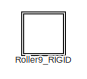
[diagram: Robot/Wheels/RoboCinWheel_simplified4_RIGID/wheel_simplified21_RIGID - part 1/4, top left region]
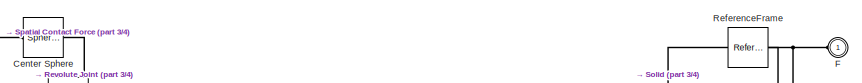
[diagram: Robot/Wheels/RoboCinWheel_simplified4_RIGID/wheel_simplified21_RIGID - part 2/4, top center region]
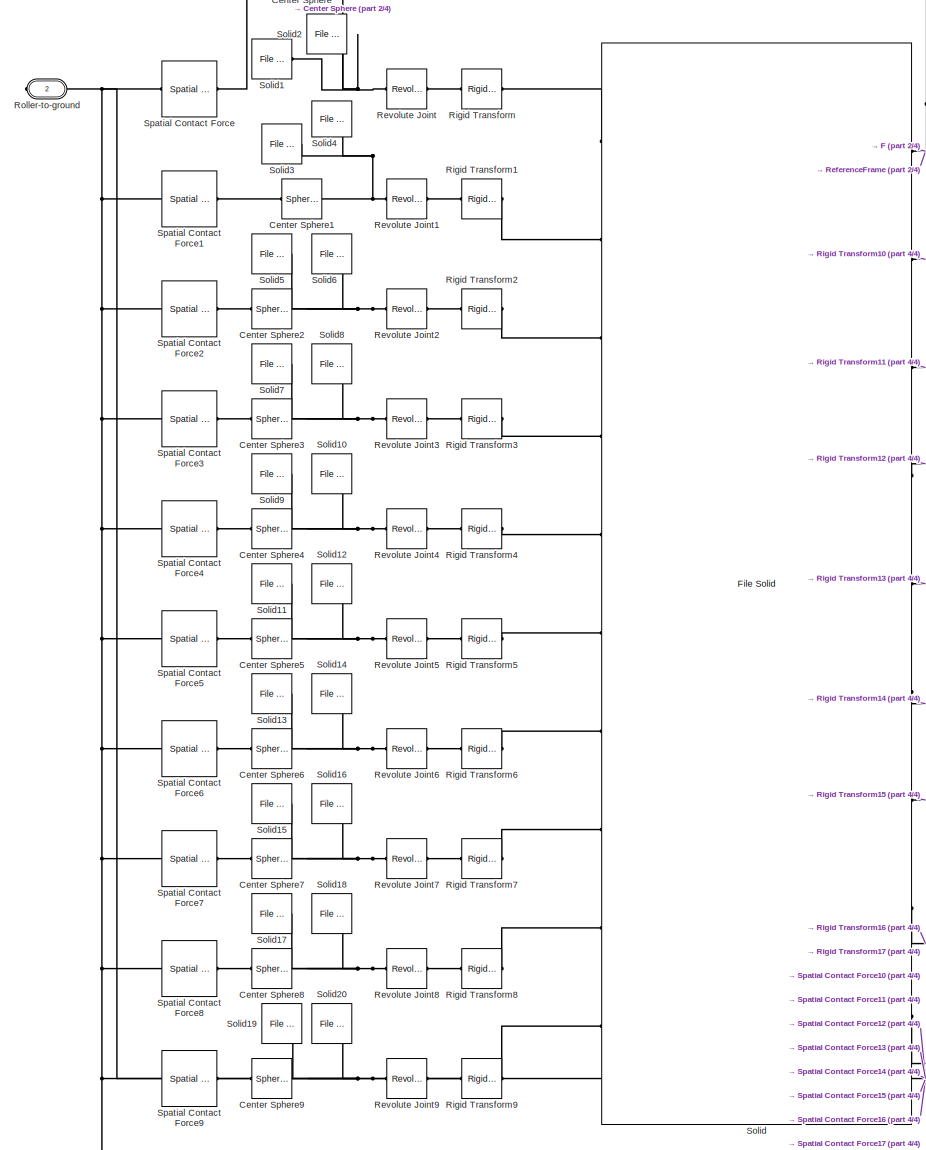
[diagram: Robot/Wheels/RoboCinWheel_simplified4_RIGID/wheel_simplified21_RIGID - part 3/4, left side, full height]
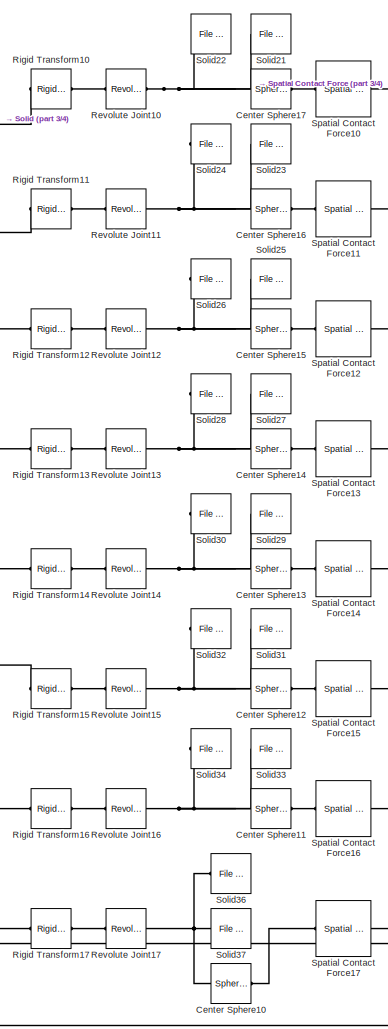
[diagram: Robot/Wheels/RoboCinWheel_simplified4_RIGID/wheel_simplified21_RIGID - part 4/4, middle right region]
BLOCK [SubSystem] Robot/Wheels/RoboCinWheel_simplified4_RIGID/wheel_simplified21_RIGID
  Ports = [0, 0, 0, 0, 0, 1, 1]
  RequestExecContextInheritance = off
BLOCK [Reference] Robot/Wheels/RoboCinWheel_simplified4_RIGID/wheel_simplified21_RIGID/Center Sphere  REF=sm_lib/Body Elements/Spherical Solid
  Ports = [0, 0, 0, 0, 0, 1, 1]
  SourceBlock = sm_lib/Body Elements/Spherical Solid
  SourceProductBaseCode = MS
  SourceType = Spherical Solid
BLOCK [Reference] Robot/Wheels/RoboCinWheel_simplified4_RIGID/wheel_simplified21_RIGID/Center Sphere1  REF=sm_lib/Body Elements/Spherical Solid
  Ports = [0, 0, 0, 0, 0, 1, 1]
  SourceBlock = sm_lib/Body Elements/Spherical Solid
  SourceProductBaseCode = MS
  SourceType = Spherical Solid
BLOCK [Reference] Robot/Wheels/RoboCinWheel_simplified4_RIGID/wheel_simplified21_RIGID/Center Sphere10  REF=sm_lib/Body Elements/Spherical Solid
  Ports = [0, 0, 0, 0, 0, 1, 1]
  SourceBlock = sm_lib/Body Elements/Spherical Solid
  SourceProductBaseCode = MS
  SourceType = Spherical Solid
BLOCK [Reference] Robot/Wheels/RoboCinWheel_simplified4_RIGID/wheel_simplified21_RIGID/Center Sphere11  REF=sm_lib/Body Elements/Spherical Solid
  Ports = [0, 0, 0, 0, 0, 1, 1]
  SourceBlock = sm_lib/Body Elements/Spherical Solid
  SourceProductBaseCode = MS
  SourceType = Spherical Solid
BLOCK [Reference] Robot/Wheels/RoboCinWheel_simplified4_RIGID/wheel_simplified21_RIGID/Center Sphere12  REF=sm_lib/Body Elements/Spherical Solid
  Ports = [0, 0, 0, 0, 0, 1, 1]
  SourceBlock = sm_lib/Body Elements/Spherical Solid
  SourceProductBaseCode = MS
  SourceType = Spherical Solid
BLOCK [Reference] Robot/Wheels/RoboCinWheel_simplified4_RIGID/wheel_simplified21_RIGID/Center Sphere13  REF=sm_lib/Body Elements/Spherical Solid
  Ports = [0, 0, 0, 0, 0, 1, 1]
  SourceBlock = sm_lib/Body Elements/Spherical Solid
  SourceProductBaseCode = MS
  SourceType = Spherical Solid
BLOCK [Reference] Robot/Wheels/RoboCinWheel_simplified4_RIGID/wheel_simplified21_RIGID/Center Sphere14  REF=sm_lib/Body Elements/Spherical Solid
  Ports = [0, 0, 0, 0, 0, 1, 1]
  SourceBlock = sm_lib/Body Elements/Spherical Solid
  SourceProductBaseCode = MS
  SourceType = Spherical Solid
BLOCK [Reference] Robot/Wheels/RoboCinWheel_simplified4_RIGID/wheel_simplified21_RIGID/Center Sphere15  REF=sm_lib/Body Elements/Spherical Solid
  Ports = [0, 0, 0, 0, 0, 1, 1]
  SourceBlock = sm_lib/Body Elements/Spherical Solid
  SourceProductBaseCode = MS
  SourceType = Spherical Solid
BLOCK [Reference] Robot/Wheels/RoboCinWheel_simplified4_RIGID/wheel_simplified21_RIGID/Center Sphere16  REF=sm_lib/Body Elements/Spherical Solid
  Ports = [0, 0, 0, 0, 0, 1, 1]
  SourceBlock = sm_lib/Body Elements/Spherical Solid
  SourceProductBaseCode = MS
  SourceType = Spherical Solid
BLOCK [Reference] Robot/Wheels/RoboCinWheel_simplified4_RIGID/wheel_simplified21_RIGID/Center Sphere17  REF=sm_lib/Body Elements/Spherical Solid
  Ports = [0, 0, 0, 0, 0, 1, 1]
  SourceBlock = sm_lib/Body Elements/Spherical Solid
  SourceProductBaseCode = MS
  SourceType = Spherical Solid
BLOCK [Reference] Robot/Wheels/RoboCinWheel_simplified4_RIGID/wheel_simplified21_RIGID/Center Sphere2  REF=sm_lib/Body Elements/Spherical Solid
  Ports = [0, 0, 0, 0, 0, 1, 1]
  SourceBlock = sm_lib/Body Elements/Spherical Solid
  SourceProductBaseCode = MS
  SourceType = Spherical Solid
BLOCK [Reference] Robot/Wheels/RoboCinWheel_simplified4_RIGID/wheel_simplified21_RIGID/Center Sphere3  REF=sm_lib/Body Elements/Spherical Solid
  Ports = [0, 0, 0, 0, 0, 1, 1]
  SourceBlock = sm_lib/Body Elements/Spherical Solid
  SourceProductBaseCode = MS
  SourceType = Spherical Solid
BLOCK [Reference] Robot/Wheels/RoboCinWheel_simplified4_RIGID/wheel_simplified21_RIGID/Center Sphere4  REF=sm_lib/Body Elements/Spherical Solid
  Ports = [0, 0, 0, 0, 0, 1, 1]
  SourceBlock = sm_lib/Body Elements/Spherical Solid
  SourceProductBaseCode = MS
  SourceType = Spherical Solid
BLOCK [Reference] Robot/Wheels/RoboCinWheel_simplified4_RIGID/wheel_simplified21_RIGID/Center Sphere5  REF=sm_lib/Body Elements/Spherical Solid
  Ports = [0, 0, 0, 0, 0, 1, 1]
  SourceBlock = sm_lib/Body Elements/Spherical Solid
  SourceProductBaseCode = MS
  SourceType = Spherical Solid
BLOCK [Reference] Robot/Wheels/RoboCinWheel_simplified4_RIGID/wheel_simplified21_RIGID/Center Sphere6  REF=sm_lib/Body Elements/Spherical Solid
  Ports = [0, 0, 0, 0, 0, 1, 1]
  SourceBlock = sm_lib/Body Elements/Spherical Solid
  SourceProductBaseCode = MS
  SourceType = Spherical Solid
BLOCK [Reference] Robot/Wheels/RoboCinWheel_simplified4_RIGID/wheel_simplified21_RIGID/Center Sphere7  REF=sm_lib/Body Elements/Spherical Solid
  Ports = [0, 0, 0, 0, 0, 1, 1]
  SourceBlock = sm_lib/Body Elements/Spherical Solid
  SourceProductBaseCode = MS
  SourceType = Spherical Solid
BLOCK [Reference] Robot/Wheels/RoboCinWheel_simplified4_RIGID/wheel_simplified21_RIGID/Center Sphere8  REF=sm_lib/Body Elements/Spherical Solid
  Ports = [0, 0, 0, 0, 0, 1, 1]
  SourceBlock = sm_lib/Body Elements/Spherical Solid
  SourceProductBaseCode = MS
  SourceType = Spherical Solid
BLOCK [Reference] Robot/Wheels/RoboCinWheel_simplified4_RIGID/wheel_simplified21_RIGID/Center Sphere9  REF=sm_lib/Body Elements/Spherical Solid
  Ports = [0, 0, 0, 0, 0, 1, 1]
  SourceBlock = sm_lib/Body Elements/Spherical Solid
  SourceProductBaseCode = MS
  SourceType = Spherical Solid
BLOCK [PMIOPort] Robot/Wheels/RoboCinWheel_simplified4_RIGID/wheel_simplified21_RIGID/F
  Side = Left
BLOCK [Reference] Robot/Wheels/RoboCinWheel_simplified4_RIGID/wheel_simplified21_RIGID/ReferenceFrame  REF=sm_lib/Frames and
Transforms/Reference
Frame
  Ports = [0, 0, 0, 0, 0, 0, 1]
  SourceBlock = sm_lib/Frames and\nTransforms/Reference\nFrame
  SourceProductBaseCode = MS
  SourceType = Reference\nFrame
BLOCK [Reference] Robot/Wheels/RoboCinWheel_simplified4_RIGID/wheel_simplified21_RIGID/Revolute Joint  REF=sm_lib/Joints/Revolute Joint
  Ports = [0, 0, 0, 0, 0, 1, 1]
  SourceBlock = sm_lib/Joints/Revolute Joint
  SourceProductBaseCode = MS
  SourceType = Revolute Joint
BLOCK [Reference] Robot/Wheels/RoboCinWheel_simplified4_RIGID/wheel_simplified21_RIGID/Revolute Joint1  REF=sm_lib/Joints/Revolute Joint
  Ports = [0, 0, 0, 0, 0, 1, 1]
  SourceBlock = sm_lib/Joints/Revolute Joint
  SourceProductBaseCode = MS
  SourceType = Revolute Joint
BLOCK [Reference] Robot/Wheels/RoboCinWheel_simplified4_RIGID/wheel_simplified21_RIGID/Revolute Joint10  REF=sm_lib/Joints/Revolute Joint
  Ports = [0, 0, 0, 0, 0, 1, 1]
  SourceBlock = sm_lib/Joints/Revolute Joint
  SourceProductBaseCode = MS
  SourceType = Revolute Joint
BLOCK [Reference] Robot/Wheels/RoboCinWheel_simplified4_RIGID/wheel_simplified21_RIGID/Revolute Joint11  REF=sm_lib/Joints/Revolute Joint
  Ports = [0, 0, 0, 0, 0, 1, 1]
  SourceBlock = sm_lib/Joints/Revolute Joint
  SourceProductBaseCode = MS
  SourceType = Revolute Joint
BLOCK [Reference] Robot/Wheels/RoboCinWheel_simplified4_RIGID/wheel_simplified21_RIGID/Revolute Joint12  REF=sm_lib/Joints/Revolute Joint
  Ports = [0, 0, 0, 0, 0, 1, 1]
  SourceBlock = sm_lib/Joints/Revolute Joint
  SourceProductBaseCode = MS
  SourceType = Revolute Joint
BLOCK [Reference] Robot/Wheels/RoboCinWheel_simplified4_RIGID/wheel_simplified21_RIGID/Revolute Joint13  REF=sm_lib/Joints/Revolute Joint
  Ports = [0, 0, 0, 0, 0, 1, 1]
  SourceBlock = sm_lib/Joints/Revolute Joint
  SourceProductBaseCode = MS
  SourceType = Revolute Joint
BLOCK [Reference] Robot/Wheels/RoboCinWheel_simplified4_RIGID/wheel_simplified21_RIGID/Revolute Joint14  REF=sm_lib/Joints/Revolute Joint
  Ports = [0, 0, 0, 0, 0, 1, 1]
  SourceBlock = sm_lib/Joints/Revolute Joint
  SourceProductBaseCode = MS
  SourceType = Revolute Joint
BLOCK [Reference] Robot/Wheels/RoboCinWheel_simplified4_RIGID/wheel_simplified21_RIGID/Revolute Joint15  REF=sm_lib/Joints/Revolute Joint
  Ports = [0, 0, 0, 0, 0, 1, 1]
  SourceBlock = sm_lib/Joints/Revolute Joint
  SourceProductBaseCode = MS
  SourceType = Revolute Joint
BLOCK [Reference] Robot/Wheels/RoboCinWheel_simplified4_RIGID/wheel_simplified21_RIGID/Revolute Joint16  REF=sm_lib/Joints/Revolute Joint
  Ports = [0, 0, 0, 0, 0, 1, 1]
  SourceBlock = sm_lib/Joints/Revolute Joint
  SourceProductBaseCode = MS
  SourceType = Revolute Joint
BLOCK [Reference] Robot/Wheels/RoboCinWheel_simplified4_RIGID/wheel_simplified21_RIGID/Revolute Joint17  REF=sm_lib/Joints/Revolute Joint
  Ports = [0, 0, 0, 0, 0, 1, 1]
  SourceBlock = sm_lib/Joints/Revolute Joint
  SourceProductBaseCode = MS
  SourceType = Revolute Joint
BLOCK [Reference] Robot/Wheels/RoboCinWheel_simplified4_RIGID/wheel_simplified21_RIGID/Revolute Joint2  REF=sm_lib/Joints/Revolute Joint
  Ports = [0, 0, 0, 0, 0, 1, 1]
  SourceBlock = sm_lib/Joints/Revolute Joint
  SourceProductBaseCode = MS
  SourceType = Revolute Joint
BLOCK [Reference] Robot/Wheels/RoboCinWheel_simplified4_RIGID/wheel_simplified21_RIGID/Revolute Joint3  REF=sm_lib/Joints/Revolute Joint
  Ports = [0, 0, 0, 0, 0, 1, 1]
  SourceBlock = sm_lib/Joints/Revolute Joint
  SourceProductBaseCode = MS
  SourceType = Revolute Joint
BLOCK [Reference] Robot/Wheels/RoboCinWheel_simplified4_RIGID/wheel_simplified21_RIGID/Revolute Joint4  REF=sm_lib/Joints/Revolute Joint
  Ports = [0, 0, 0, 0, 0, 1, 1]
  SourceBlock = sm_lib/Joints/Revolute Joint
  SourceProductBaseCode = MS
  SourceType = Revolute Joint
BLOCK [Reference] Robot/Wheels/RoboCinWheel_simplified4_RIGID/wheel_simplified21_RIGID/Revolute Joint5  REF=sm_lib/Joints/Revolute Joint
  Ports = [0, 0, 0, 0, 0, 1, 1]
  SourceBlock = sm_lib/Joints/Revolute Joint
  SourceProductBaseCode = MS
  SourceType = Revolute Joint
BLOCK [Reference] Robot/Wheels/RoboCinWheel_simplified4_RIGID/wheel_simplified21_RIGID/Revolute Joint6  REF=sm_lib/Joints/Revolute Joint
  Ports = [0, 0, 0, 0, 0, 1, 1]
  SourceBlock = sm_lib/Joints/Revolute Joint
  SourceProductBaseCode = MS
  SourceType = Revolute Joint
BLOCK [Reference] Robot/Wheels/RoboCinWheel_simplified4_RIGID/wheel_simplified21_RIGID/Revolute Joint7  REF=sm_lib/Joints/Revolute Joint
  Ports = [0, 0, 0, 0, 0, 1, 1]
  SourceBlock = sm_lib/Joints/Revolute Joint
  SourceProductBaseCode = MS
  SourceType = Revolute Joint
BLOCK [Reference] Robot/Wheels/RoboCinWheel_simplified4_RIGID/wheel_simplified21_RIGID/Revolute Joint8  REF=sm_lib/Joints/Revolute Joint
  Ports = [0, 0, 0, 0, 0, 1, 1]
  SourceBlock = sm_lib/Joints/Revolute Joint
  SourceProductBaseCode = MS
  SourceType = Revolute Joint
BLOCK [Reference] Robot/Wheels/RoboCinWheel_simplified4_RIGID/wheel_simplified21_RIGID/Revolute Joint9  REF=sm_lib/Joints/Revolute Joint
  Ports = [0, 0, 0, 0, 0, 1, 1]
  SourceBlock = sm_lib/Joints/Revolute Joint
  SourceProductBaseCode = MS
  SourceType = Revolute Joint
BLOCK [Reference] Robot/Wheels/RoboCinWheel_simplified4_RIGID/wheel_simplified21_RIGID/Rigid Transform  REF=sm_lib/Frames and
Transforms/Rigid
Transform
  Ports = [0, 0, 0, 0, 0, 1, 1]
  SourceBlock = sm_lib/Frames and\nTransforms/Rigid\nTransform
  SourceProductBaseCode = MS
  SourceType = Rigid\nTransform
BLOCK [Reference] Robot/Wheels/RoboCinWheel_simplified4_RIGID/wheel_simplified21_RIGID/Rigid Transform1  REF=sm_lib/Frames and
Transforms/Rigid
Transform
  Ports = [0, 0, 0, 0, 0, 1, 1]
  SourceBlock = sm_lib/Frames and\nTransforms/Rigid\nTransform
  SourceProductBaseCode = MS
  SourceType = Rigid\nTransform
BLOCK [Reference] Robot/Wheels/RoboCinWheel_simplified4_RIGID/wheel_simplified21_RIGID/Rigid Transform10  REF=sm_lib/Frames and
Transforms/Rigid
Transform
  Ports = [0, 0, 0, 0, 0, 1, 1]
  SourceBlock = sm_lib/Frames and\nTransforms/Rigid\nTransform
  SourceProductBaseCode = MS
  SourceType = Rigid\nTransform
BLOCK [Reference] Robot/Wheels/RoboCinWheel_simplified4_RIGID/wheel_simplified21_RIGID/Rigid Transform11  REF=sm_lib/Frames and
Transforms/Rigid
Transform
  Ports = [0, 0, 0, 0, 0, 1, 1]
  SourceBlock = sm_lib/Frames and\nTransforms/Rigid\nTransform
  SourceProductBaseCode = MS
  SourceType = Rigid\nTransform
BLOCK [Reference] Robot/Wheels/RoboCinWheel_simplified4_RIGID/wheel_simplified21_RIGID/Rigid Transform12  REF=sm_lib/Frames and
Transforms/Rigid
Transform
  Ports = [0, 0, 0, 0, 0, 1, 1]
  SourceBlock = sm_lib/Frames and\nTransforms/Rigid\nTransform
  SourceProductBaseCode = MS
  SourceType = Rigid\nTransform
BLOCK [Reference] Robot/Wheels/RoboCinWheel_simplified4_RIGID/wheel_simplified21_RIGID/Rigid Transform13  REF=sm_lib/Frames and
Transforms/Rigid
Transform
  Ports = [0, 0, 0, 0, 0, 1, 1]
  SourceBlock = sm_lib/Frames and\nTransforms/Rigid\nTransform
  SourceProductBaseCode = MS
  SourceType = Rigid\nTransform
BLOCK [Reference] Robot/Wheels/RoboCinWheel_simplified4_RIGID/wheel_simplified21_RIGID/Rigid Transform14  REF=sm_lib/Frames and
Transforms/Rigid
Transform
  Ports = [0, 0, 0, 0, 0, 1, 1]
  SourceBlock = sm_lib/Frames and\nTransforms/Rigid\nTransform
  SourceProductBaseCode = MS
  SourceType = Rigid\nTransform
BLOCK [Reference] Robot/Wheels/RoboCinWheel_simplified4_RIGID/wheel_simplified21_RIGID/Rigid Transform15  REF=sm_lib/Frames and
Transforms/Rigid
Transform
  Ports = [0, 0, 0, 0, 0, 1, 1]
  SourceBlock = sm_lib/Frames and\nTransforms/Rigid\nTransform
  SourceProductBaseCode = MS
  SourceType = Rigid\nTransform
BLOCK [Reference] Robot/Wheels/RoboCinWheel_simplified4_RIGID/wheel_simplified21_RIGID/Rigid Transform16  REF=sm_lib/Frames and
Transforms/Rigid
Transform
  Ports = [0, 0, 0, 0, 0, 1, 1]
  SourceBlock = sm_lib/Frames and\nTransforms/Rigid\nTransform
  SourceProductBaseCode = MS
  SourceType = Rigid\nTransform
BLOCK [Reference] Robot/Wheels/RoboCinWheel_simplified4_RIGID/wheel_simplified21_RIGID/Rigid Transform17  REF=sm_lib/Frames and
Transforms/Rigid
Transform
  Ports = [0, 0, 0, 0, 0, 1, 1]
  SourceBlock = sm_lib/Frames and\nTransforms/Rigid\nTransform
  SourceProductBaseCode = MS
  SourceType = Rigid\nTransform
BLOCK [Reference] Robot/Wheels/RoboCinWheel_simplified4_RIGID/wheel_simplified21_RIGID/Rigid Transform2  REF=sm_lib/Frames and
Transforms/Rigid
Transform
  Ports = [0, 0, 0, 0, 0, 1, 1]
  SourceBlock = sm_lib/Frames and\nTransforms/Rigid\nTransform
  SourceProductBaseCode = MS
  SourceType = Rigid\nTransform
BLOCK [Reference] Robot/Wheels/RoboCinWheel_simplified4_RIGID/wheel_simplified21_RIGID/Rigid Transform3  REF=sm_lib/Frames and
Transforms/Rigid
Transform
  Ports = [0, 0, 0, 0, 0, 1, 1]
  SourceBlock = sm_lib/Frames and\nTransforms/Rigid\nTransform
  SourceProductBaseCode = MS
  SourceType = Rigid\nTransform
BLOCK [Reference] Robot/Wheels/RoboCinWheel_simplified4_RIGID/wheel_simplified21_RIGID/Rigid Transform4  REF=sm_lib/Frames and
Transforms/Rigid
Transform
  Ports = [0, 0, 0, 0, 0, 1, 1]
  SourceBlock = sm_lib/Frames and\nTransforms/Rigid\nTransform
  SourceProductBaseCode = MS
  SourceType = Rigid\nTransform
BLOCK [Reference] Robot/Wheels/RoboCinWheel_simplified4_RIGID/wheel_simplified21_RIGID/Rigid Transform5  REF=sm_lib/Frames and
Transforms/Rigid
Transform
  Ports = [0, 0, 0, 0, 0, 1, 1]
  SourceBlock = sm_lib/Frames and\nTransforms/Rigid\nTransform
  SourceProductBaseCode = MS
  SourceType = Rigid\nTransform
BLOCK [Reference] Robot/Wheels/RoboCinWheel_simplified4_RIGID/wheel_simplified21_RIGID/Rigid Transform6  REF=sm_lib/Frames and
Transforms/Rigid
Transform
  Ports = [0, 0, 0, 0, 0, 1, 1]
  SourceBlock = sm_lib/Frames and\nTransforms/Rigid\nTransform
  SourceProductBaseCode = MS
  SourceType = Rigid\nTransform
BLOCK [Reference] Robot/Wheels/RoboCinWheel_simplified4_RIGID/wheel_simplified21_RIGID/Rigid Transform7  REF=sm_lib/Frames and
Transforms/Rigid
Transform
  Ports = [0, 0, 0, 0, 0, 1, 1]
  SourceBlock = sm_lib/Frames and\nTransforms/Rigid\nTransform
  SourceProductBaseCode = MS
  SourceType = Rigid\nTransform
BLOCK [Reference] Robot/Wheels/RoboCinWheel_simplified4_RIGID/wheel_simplified21_RIGID/Rigid Transform8  REF=sm_lib/Frames and
Transforms/Rigid
Transform
  Ports = [0, 0, 0, 0, 0, 1, 1]
  SourceBlock = sm_lib/Frames and\nTransforms/Rigid\nTransform
  SourceProductBaseCode = MS
  SourceType = Rigid\nTransform
BLOCK [Reference] Robot/Wheels/RoboCinWheel_simplified4_RIGID/wheel_simplified21_RIGID/Rigid Transform9  REF=sm_lib/Frames and
Transforms/Rigid
Transform
  Ports = [0, 0, 0, 0, 0, 1, 1]
  SourceBlock = sm_lib/Frames and\nTransforms/Rigid\nTransform
  SourceProductBaseCode = MS
  SourceType = Rigid\nTransform
BLOCK [PMIOPort] Robot/Wheels/RoboCinWheel_simplified4_RIGID/wheel_simplified21_RIGID/Roller-to-ground
  Port = 2
  Side = Right
BLOCK [SubSystem] Robot/Wheels/RoboCinWheel_simplified4_RIGID/wheel_simplified21_RIGID/Roller9_RIGID
  Commented = on
  Ports = [0, 0, 0, 0, 0, 0, 1]
  RequestExecContextInheritance = off
BLOCK [PMIOPort] Robot/Wheels/RoboCinWheel_simplified4_RIGID/wheel_simplified21_RIGID/Roller9_RIGID/F
  Side = Right
BLOCK [Reference] Robot/Wheels/RoboCinWheel_simplified4_RIGID/wheel_simplified21_RIGID/Roller9_RIGID/ReferenceFrame  REF=sm_lib/Frames and
Transforms/Reference
Frame
  Ports = [0, 0, 0, 0, 0, 0, 1]
  SourceBlock = sm_lib/Frames and\nTransforms/Reference\nFrame
  SourceProductBaseCode = MS
  SourceType = Reference\nFrame
BLOCK [SubSystem] Robot/Wheels/RoboCinWheel_simplified4_RIGID/wheel_simplified21_RIGID/Roller9_RIGID/Roller1_RIGID
  Ports = [0, 0, 0, 0, 0, 1]
  RequestExecContextInheritance = off
BLOCK [PMIOPort] Robot/Wheels/RoboCinWheel_simplified4_RIGID/wheel_simplified21_RIGID/Roller9_RIGID/Roller1_RIGID/F
  Side = Left
BLOCK [Reference] Robot/Wheels/RoboCinWheel_simplified4_RIGID/wheel_simplified21_RIGID/Roller9_RIGID/Roller1_RIGID/ReferenceFrame  REF=sm_lib/Frames and
Transforms/Reference
Frame
  Ports = [0, 0, 0, 0, 0, 0, 1]
  SourceBlock = sm_lib/Frames and\nTransforms/Reference\nFrame
  SourceProductBaseCode = MS
  SourceType = Reference\nFrame
BLOCK [Reference] Robot/Wheels/RoboCinWheel_simplified4_RIGID/wheel_simplified21_RIGID/Roller9_RIGID/Roller1_RIGID/Solid  REF=sm_lib/Body Elements/File Solid
  Ports = [0, 0, 0, 0, 0, 0, 1]
  SourceBlock = sm_lib/Body Elements/File Solid
  SourceProductBaseCode = MS
  SourceType = File Solid
BLOCK [SubSystem] Robot/Wheels/RoboCinWheel_simplified4_RIGID/wheel_simplified21_RIGID/Roller9_RIGID/RollerTire1_RIGID
  Ports = [0, 0, 0, 0, 0, 1]
  RequestExecContextInheritance = off
BLOCK [PMIOPort] Robot/Wheels/RoboCinWheel_simplified4_RIGID/wheel_simplified21_RIGID/Roller9_RIGID/RollerTire1_RIGID/F
  Side = Left
BLOCK [Reference] Robot/Wheels/RoboCinWheel_simplified4_RIGID/wheel_simplified21_RIGID/Roller9_RIGID/RollerTire1_RIGID/ReferenceFrame  REF=sm_lib/Frames and
Transforms/Reference
Frame
  Ports = [0, 0, 0, 0, 0, 0, 1]
  SourceBlock = sm_lib/Frames and\nTransforms/Reference\nFrame
  SourceProductBaseCode = MS
  SourceType = Reference\nFrame
BLOCK [Reference] Robot/Wheels/RoboCinWheel_simplified4_RIGID/wheel_simplified21_RIGID/Roller9_RIGID/RollerTire1_RIGID/Solid  REF=sm_lib/Body Elements/File Solid
  Ports = [0, 0, 0, 0, 0, 0, 1]
  SourceBlock = sm_lib/Body Elements/File Solid
  SourceProductBaseCode = MS
  SourceType = File Solid
BLOCK [Reference] Robot/Wheels/RoboCinWheel_simplified4_RIGID/wheel_simplified21_RIGID/Roller9_RIGID/Transform  REF=sm_lib/Frames and
Transforms/Rigid
Transform
  Ports = [0, 0, 0, 0, 0, 1, 1]
  SourceBlock = sm_lib/Frames and\nTransforms/Rigid\nTransform
  SourceProductBaseCode = MS
  SourceType = Rigid\nTransform
BLOCK [Reference] Robot/Wheels/RoboCinWheel_simplified4_RIGID/wheel_simplified21_RIGID/Roller9_RIGID/Transform1  REF=sm_lib/Frames and
Transforms/Rigid
Transform
  Ports = [0, 0, 0, 0, 0, 1, 1]
  SourceBlock = sm_lib/Frames and\nTransforms/Rigid\nTransform
  SourceProductBaseCode = MS
  SourceType = Rigid\nTransform
BLOCK [Reference] Robot/Wheels/RoboCinWheel_simplified4_RIGID/wheel_simplified21_RIGID/Roller9_RIGID/Transform2  REF=sm_lib/Frames and
Transforms/Rigid
Transform
  Ports = [0, 0, 0, 0, 0, 1, 1]
  SourceBlock = sm_lib/Frames and\nTransforms/Rigid\nTransform
  SourceProductBaseCode = MS
  SourceType = Rigid\nTransform
BLOCK [Reference] Robot/Wheels/RoboCinWheel_simplified4_RIGID/wheel_simplified21_RIGID/Solid  REF=sm_lib/Body Elements/File Solid
  Ports = [0, 0, 0, 0, 0, 10, 9]
  SourceBlock = sm_lib/Body Elements/File Solid
  SourceProductBaseCode = MS
  SourceType = File Solid
BLOCK [Reference] Robot/Wheels/RoboCinWheel_simplified4_RIGID/wheel_simplified21_RIGID/Solid1  REF=sm_lib/Body Elements/File Solid
  Ports = [0, 0, 0, 0, 0, 1, 1]
  SourceBlock = sm_lib/Body Elements/File Solid
  SourceProductBaseCode = MS
  SourceType = File Solid
BLOCK [Reference] Robot/Wheels/RoboCinWheel_simplified4_RIGID/wheel_simplified21_RIGID/Solid10  REF=sm_lib/Body Elements/File Solid
  Ports = [0, 0, 0, 0, 0, 0, 1]
  SourceBlock = sm_lib/Body Elements/File Solid
  SourceProductBaseCode = MS
  SourceType = File Solid
BLOCK [Reference] Robot/Wheels/RoboCinWheel_simplified4_RIGID/wheel_simplified21_RIGID/Solid11  REF=sm_lib/Body Elements/File Solid
  Ports = [0, 0, 0, 0, 0, 1, 1]
  SourceBlock = sm_lib/Body Elements/File Solid
  SourceProductBaseCode = MS
  SourceType = File Solid
BLOCK [Reference] Robot/Wheels/RoboCinWheel_simplified4_RIGID/wheel_simplified21_RIGID/Solid12  REF=sm_lib/Body Elements/File Solid
  Ports = [0, 0, 0, 0, 0, 0, 1]
  SourceBlock = sm_lib/Body Elements/File Solid
  SourceProductBaseCode = MS
  SourceType = File Solid
BLOCK [Reference] Robot/Wheels/RoboCinWheel_simplified4_RIGID/wheel_simplified21_RIGID/Solid13  REF=sm_lib/Body Elements/File Solid
  Ports = [0, 0, 0, 0, 0, 1, 1]
  SourceBlock = sm_lib/Body Elements/File Solid
  SourceProductBaseCode = MS
  SourceType = File Solid
BLOCK [Reference] Robot/Wheels/RoboCinWheel_simplified4_RIGID/wheel_simplified21_RIGID/Solid14  REF=sm_lib/Body Elements/File Solid
  Ports = [0, 0, 0, 0, 0, 0, 1]
  SourceBlock = sm_lib/Body Elements/File Solid
  SourceProductBaseCode = MS
  SourceType = File Solid
BLOCK [Reference] Robot/Wheels/RoboCinWheel_simplified4_RIGID/wheel_simplified21_RIGID/Solid15  REF=sm_lib/Body Elements/File Solid
  Ports = [0, 0, 0, 0, 0, 1, 1]
  SourceBlock = sm_lib/Body Elements/File Solid
  SourceProductBaseCode = MS
  SourceType = File Solid
BLOCK [Reference] Robot/Wheels/RoboCinWheel_simplified4_RIGID/wheel_simplified21_RIGID/Solid16  REF=sm_lib/Body Elements/File Solid
  Ports = [0, 0, 0, 0, 0, 0, 1]
  SourceBlock = sm_lib/Body Elements/File Solid
  SourceProductBaseCode = MS
  SourceType = File Solid
BLOCK [Reference] Robot/Wheels/RoboCinWheel_simplified4_RIGID/wheel_simplified21_RIGID/Solid17  REF=sm_lib/Body Elements/File Solid
  Ports = [0, 0, 0, 0, 0, 1, 1]
  SourceBlock = sm_lib/Body Elements/File Solid
  SourceProductBaseCode = MS
  SourceType = File Solid
BLOCK [Reference] Robot/Wheels/RoboCinWheel_simplified4_RIGID/wheel_simplified21_RIGID/Solid18  REF=sm_lib/Body Elements/File Solid
  Ports = [0, 0, 0, 0, 0, 0, 1]
  SourceBlock = sm_lib/Body Elements/File Solid
  SourceProductBaseCode = MS
  SourceType = File Solid
BLOCK [Reference] Robot/Wheels/RoboCinWheel_simplified4_RIGID/wheel_simplified21_RIGID/Solid19  REF=sm_lib/Body Elements/File Solid
  Ports = [0, 0, 0, 0, 0, 1, 1]
  SourceBlock = sm_lib/Body Elements/File Solid
  SourceProductBaseCode = MS
  SourceType = File Solid
BLOCK [Reference] Robot/Wheels/RoboCinWheel_simplified4_RIGID/wheel_simplified21_RIGID/Solid2  REF=sm_lib/Body Elements/File Solid
  Ports = [0, 0, 0, 0, 0, 0, 1]
  SourceBlock = sm_lib/Body Elements/File Solid
  SourceProductBaseCode = MS
  SourceType = File Solid
BLOCK [Reference] Robot/Wheels/RoboCinWheel_simplified4_RIGID/wheel_simplified21_RIGID/Solid20  REF=sm_lib/Body Elements/File Solid
  Ports = [0, 0, 0, 0, 0, 0, 1]
  SourceBlock = sm_lib/Body Elements/File Solid
  SourceProductBaseCode = MS
  SourceType = File Solid
BLOCK [Reference] Robot/Wheels/RoboCinWheel_simplified4_RIGID/wheel_simplified21_RIGID/Solid21  REF=sm_lib/Body Elements/File Solid
  Ports = [0, 0, 0, 0, 0, 1, 1]
  SourceBlock = sm_lib/Body Elements/File Solid
  SourceProductBaseCode = MS
  SourceType = File Solid
BLOCK [Reference] Robot/Wheels/RoboCinWheel_simplified4_RIGID/wheel_simplified21_RIGID/Solid22  REF=sm_lib/Body Elements/File Solid
  Ports = [0, 0, 0, 0, 0, 0, 1]
  SourceBlock = sm_lib/Body Elements/File Solid
  SourceProductBaseCode = MS
  SourceType = File Solid
BLOCK [Reference] Robot/Wheels/RoboCinWheel_simplified4_RIGID/wheel_simplified21_RIGID/Solid23  REF=sm_lib/Body Elements/File Solid
  Ports = [0, 0, 0, 0, 0, 1, 1]
  SourceBlock = sm_lib/Body Elements/File Solid
  SourceProductBaseCode = MS
  SourceType = File Solid
BLOCK [Reference] Robot/Wheels/RoboCinWheel_simplified4_RIGID/wheel_simplified21_RIGID/Solid24  REF=sm_lib/Body Elements/File Solid
  Ports = [0, 0, 0, 0, 0, 0, 1]
  SourceBlock = sm_lib/Body Elements/File Solid
  SourceProductBaseCode = MS
  SourceType = File Solid
BLOCK [Reference] Robot/Wheels/RoboCinWheel_simplified4_RIGID/wheel_simplified21_RIGID/Solid25  REF=sm_lib/Body Elements/File Solid
  Ports = [0, 0, 0, 0, 0, 1, 1]
  SourceBlock = sm_lib/Body Elements/File Solid
  SourceProductBaseCode = MS
  SourceType = File Solid
BLOCK [Reference] Robot/Wheels/RoboCinWheel_simplified4_RIGID/wheel_simplified21_RIGID/Solid26  REF=sm_lib/Body Elements/File Solid
  Ports = [0, 0, 0, 0, 0, 0, 1]
  SourceBlock = sm_lib/Body Elements/File Solid
  SourceProductBaseCode = MS
  SourceType = File Solid
BLOCK [Reference] Robot/Wheels/RoboCinWheel_simplified4_RIGID/wheel_simplified21_RIGID/Solid27  REF=sm_lib/Body Elements/File Solid
  Ports = [0, 0, 0, 0, 0, 1, 1]
  SourceBlock = sm_lib/Body Elements/File Solid
  SourceProductBaseCode = MS
  SourceType = File Solid
BLOCK [Reference] Robot/Wheels/RoboCinWheel_simplified4_RIGID/wheel_simplified21_RIGID/Solid28  REF=sm_lib/Body Elements/File Solid
  Ports = [0, 0, 0, 0, 0, 0, 1]
  SourceBlock = sm_lib/Body Elements/File Solid
  SourceProductBaseCode = MS
  SourceType = File Solid
BLOCK [Reference] Robot/Wheels/RoboCinWheel_simplified4_RIGID/wheel_simplified21_RIGID/Solid29  REF=sm_lib/Body Elements/File Solid
  Ports = [0, 0, 0, 0, 0, 1, 1]
  SourceBlock = sm_lib/Body Elements/File Solid
  SourceProductBaseCode = MS
  SourceType = File Solid
BLOCK [Reference] Robot/Wheels/RoboCinWheel_simplified4_RIGID/wheel_simplified21_RIGID/Solid3  REF=sm_lib/Body Elements/File Solid
  Ports = [0, 0, 0, 0, 0, 1, 1]
  SourceBlock = sm_lib/Body Elements/File Solid
  SourceProductBaseCode = MS
  SourceType = File Solid
BLOCK [Reference] Robot/Wheels/RoboCinWheel_simplified4_RIGID/wheel_simplified21_RIGID/Solid30  REF=sm_lib/Body Elements/File Solid
  Ports = [0, 0, 0, 0, 0, 0, 1]
  SourceBlock = sm_lib/Body Elements/File Solid
  SourceProductBaseCode = MS
  SourceType = File Solid
BLOCK [Reference] Robot/Wheels/RoboCinWheel_simplified4_RIGID/wheel_simplified21_RIGID/Solid31  REF=sm_lib/Body Elements/File Solid
  Ports = [0, 0, 0, 0, 0, 1, 1]
  SourceBlock = sm_lib/Body Elements/File Solid
  SourceProductBaseCode = MS
  SourceType = File Solid
BLOCK [Reference] Robot/Wheels/RoboCinWheel_simplified4_RIGID/wheel_simplified21_RIGID/Solid32  REF=sm_lib/Body Elements/File Solid
  Ports = [0, 0, 0, 0, 0, 0, 1]
  SourceBlock = sm_lib/Body Elements/File Solid
  SourceProductBaseCode = MS
  SourceType = File Solid
BLOCK [Reference] Robot/Wheels/RoboCinWheel_simplified4_RIGID/wheel_simplified21_RIGID/Solid33  REF=sm_lib/Body Elements/File Solid
  Ports = [0, 0, 0, 0, 0, 1, 1]
  SourceBlock = sm_lib/Body Elements/File Solid
  SourceProductBaseCode = MS
  SourceType = File Solid
BLOCK [Reference] Robot/Wheels/RoboCinWheel_simplified4_RIGID/wheel_simplified21_RIGID/Solid34  REF=sm_lib/Body Elements/File Solid
  Ports = [0, 0, 0, 0, 0, 0, 1]
  SourceBlock = sm_lib/Body Elements/File Solid
  SourceProductBaseCode = MS
  SourceType = File Solid
BLOCK [Reference] Robot/Wheels/RoboCinWheel_simplified4_RIGID/wheel_simplified21_RIGID/Solid36  REF=sm_lib/Body Elements/File Solid
  Ports = [0, 0, 0, 0, 0, 0, 1]
  SourceBlock = sm_lib/Body Elements/File Solid
  SourceProductBaseCode = MS
  SourceType = File Solid
BLOCK [Reference] Robot/Wheels/RoboCinWheel_simplified4_RIGID/wheel_simplified21_RIGID/Solid37  REF=sm_lib/Body Elements/File Solid
  Ports = [0, 0, 0, 0, 0, 1, 1]
  SourceBlock = sm_lib/Body Elements/File Solid
  SourceProductBaseCode = MS
  SourceType = File Solid
BLOCK [Reference] Robot/Wheels/RoboCinWheel_simplified4_RIGID/wheel_simplified21_RIGID/Solid4  REF=sm_lib/Body Elements/File Solid
  Ports = [0, 0, 0, 0, 0, 0, 1]
  SourceBlock = sm_lib/Body Elements/File Solid
  SourceProductBaseCode = MS
  SourceType = File Solid
BLOCK [Reference] Robot/Wheels/RoboCinWheel_simplified4_RIGID/wheel_simplified21_RIGID/Solid5  REF=sm_lib/Body Elements/File Solid
  Ports = [0, 0, 0, 0, 0, 1, 1]
  SourceBlock = sm_lib/Body Elements/File Solid
  SourceProductBaseCode = MS
  SourceType = File Solid
BLOCK [Reference] Robot/Wheels/RoboCinWheel_simplified4_RIGID/wheel_simplified21_RIGID/Solid6  REF=sm_lib/Body Elements/File Solid
  Ports = [0, 0, 0, 0, 0, 0, 1]
  SourceBlock = sm_lib/Body Elements/File Solid
  SourceProductBaseCode = MS
  SourceType = File Solid
BLOCK [Reference] Robot/Wheels/RoboCinWheel_simplified4_RIGID/wheel_simplified21_RIGID/Solid7  REF=sm_lib/Body Elements/File Solid
  Ports = [0, 0, 0, 0, 0, 1, 1]
  SourceBlock = sm_lib/Body Elements/File Solid
  SourceProductBaseCode = MS
  SourceType = File Solid
BLOCK [Reference] Robot/Wheels/RoboCinWheel_simplified4_RIGID/wheel_simplified21_RIGID/Solid8  REF=sm_lib/Body Elements/File Solid
  Ports = [0, 0, 0, 0, 0, 0, 1]
  SourceBlock = sm_lib/Body Elements/File Solid
  SourceProductBaseCode = MS
  SourceType = File Solid
BLOCK [Reference] Robot/Wheels/RoboCinWheel_simplified4_RIGID/wheel_simplified21_RIGID/Solid9  REF=sm_lib/Body Elements/File Solid
  Ports = [0, 0, 0, 0, 0, 1, 1]
  SourceBlock = sm_lib/Body Elements/File Solid
  SourceProductBaseCode = MS
  SourceType = File Solid
BLOCK [Reference] Robot/Wheels/RoboCinWheel_simplified4_RIGID/wheel_simplified21_RIGID/Spatial Contact Force  REF=sm_lib/Forces and
Torques/Spatial
Contact Force
  Ports = [0, 0, 0, 0, 0, 1, 1]
  SourceBlock = sm_lib/Forces and\nTorques/Spatial\nContact Force
  SourceProductBaseCode = MS
  SourceType = Spatial\nContact Force
BLOCK [Reference] Robot/Wheels/RoboCinWheel_simplified4_RIGID/wheel_simplified21_RIGID/Spatial Contact Force1  REF=sm_lib/Forces and
Torques/Spatial
Contact Force
  Ports = [0, 0, 0, 0, 0, 1, 1]
  SourceBlock = sm_lib/Forces and\nTorques/Spatial\nContact Force
  SourceProductBaseCode = MS
  SourceType = Spatial\nContact Force
BLOCK [Reference] Robot/Wheels/RoboCinWheel_simplified4_RIGID/wheel_simplified21_RIGID/Spatial Contact Force10  REF=sm_lib/Forces and
Torques/Spatial
Contact Force
  Ports = [0, 0, 0, 0, 0, 1, 1]
  SourceBlock = sm_lib/Forces and\nTorques/Spatial\nContact Force
  SourceProductBaseCode = MS
  SourceType = Spatial\nContact Force
BLOCK [Reference] Robot/Wheels/RoboCinWheel_simplified4_RIGID/wheel_simplified21_RIGID/Spatial Contact Force11  REF=sm_lib/Forces and
Torques/Spatial
Contact Force
  Ports = [0, 0, 0, 0, 0, 1, 1]
  SourceBlock = sm_lib/Forces and\nTorques/Spatial\nContact Force
  SourceProductBaseCode = MS
  SourceType = Spatial\nContact Force
BLOCK [Reference] Robot/Wheels/RoboCinWheel_simplified4_RIGID/wheel_simplified21_RIGID/Spatial Contact Force12  REF=sm_lib/Forces and
Torques/Spatial
Contact Force
  Ports = [0, 0, 0, 0, 0, 1, 1]
  SourceBlock = sm_lib/Forces and\nTorques/Spatial\nContact Force
  SourceProductBaseCode = MS
  SourceType = Spatial\nContact Force
BLOCK [Reference] Robot/Wheels/RoboCinWheel_simplified4_RIGID/wheel_simplified21_RIGID/Spatial Contact Force13  REF=sm_lib/Forces and
Torques/Spatial
Contact Force
  Ports = [0, 0, 0, 0, 0, 1, 1]
  SourceBlock = sm_lib/Forces and\nTorques/Spatial\nContact Force
  SourceProductBaseCode = MS
  SourceType = Spatial\nContact Force
BLOCK [Reference] Robot/Wheels/RoboCinWheel_simplified4_RIGID/wheel_simplified21_RIGID/Spatial Contact Force14  REF=sm_lib/Forces and
Torques/Spatial
Contact Force
  Ports = [0, 0, 0, 0, 0, 1, 1]
  SourceBlock = sm_lib/Forces and\nTorques/Spatial\nContact Force
  SourceProductBaseCode = MS
  SourceType = Spatial\nContact Force
BLOCK [Reference] Robot/Wheels/RoboCinWheel_simplified4_RIGID/wheel_simplified21_RIGID/Spatial Contact Force15  REF=sm_lib/Forces and
Torques/Spatial
Contact Force
  Ports = [0, 0, 0, 0, 0, 1, 1]
  SourceBlock = sm_lib/Forces and\nTorques/Spatial\nContact Force
  SourceProductBaseCode = MS
  SourceType = Spatial\nContact Force
BLOCK [Reference] Robot/Wheels/RoboCinWheel_simplified4_RIGID/wheel_simplified21_RIGID/Spatial Contact Force16  REF=sm_lib/Forces and
Torques/Spatial
Contact Force
  Ports = [0, 0, 0, 0, 0, 1, 1]
  SourceBlock = sm_lib/Forces and\nTorques/Spatial\nContact Force
  SourceProductBaseCode = MS
  SourceType = Spatial\nContact Force
BLOCK [Reference] Robot/Wheels/RoboCinWheel_simplified4_RIGID/wheel_simplified21_RIGID/Spatial Contact Force17  REF=sm_lib/Forces and
Torques/Spatial
Contact Force
  Ports = [0, 0, 0, 0, 0, 1, 1]
  SourceBlock = sm_lib/Forces and\nTorques/Spatial\nContact Force
  SourceProductBaseCode = MS
  SourceType = Spatial\nContact Force
BLOCK [Reference] Robot/Wheels/RoboCinWheel_simplified4_RIGID/wheel_simplified21_RIGID/Spatial Contact Force2  REF=sm_lib/Forces and
Torques/Spatial
Contact Force
  Ports = [0, 0, 0, 0, 0, 1, 1]
  SourceBlock = sm_lib/Forces and\nTorques/Spatial\nContact Force
  SourceProductBaseCode = MS
  SourceType = Spatial\nContact Force
BLOCK [Reference] Robot/Wheels/RoboCinWheel_simplified4_RIGID/wheel_simplified21_RIGID/Spatial Contact Force3  REF=sm_lib/Forces and
Torques/Spatial
Contact Force
  Ports = [0, 0, 0, 0, 0, 1, 1]
  SourceBlock = sm_lib/Forces and\nTorques/Spatial\nContact Force
  SourceProductBaseCode = MS
  SourceType = Spatial\nContact Force
BLOCK [Reference] Robot/Wheels/RoboCinWheel_simplified4_RIGID/wheel_simplified21_RIGID/Spatial Contact Force4  REF=sm_lib/Forces and
Torques/Spatial
Contact Force
  Ports = [0, 0, 0, 0, 0, 1, 1]
  SourceBlock = sm_lib/Forces and\nTorques/Spatial\nContact Force
  SourceProductBaseCode = MS
  SourceType = Spatial\nContact Force
BLOCK [Reference] Robot/Wheels/RoboCinWheel_simplified4_RIGID/wheel_simplified21_RIGID/Spatial Contact Force5  REF=sm_lib/Forces and
Torques/Spatial
Contact Force
  Ports = [0, 0, 0, 0, 0, 1, 1]
  SourceBlock = sm_lib/Forces and\nTorques/Spatial\nContact Force
  SourceProductBaseCode = MS
  SourceType = Spatial\nContact Force
BLOCK [Reference] Robot/Wheels/RoboCinWheel_simplified4_RIGID/wheel_simplified21_RIGID/Spatial Contact Force6  REF=sm_lib/Forces and
Torques/Spatial
Contact Force
  Ports = [0, 0, 0, 0, 0, 1, 1]
  SourceBlock = sm_lib/Forces and\nTorques/Spatial\nContact Force
  SourceProductBaseCode = MS
  SourceType = Spatial\nContact Force
BLOCK [Reference] Robot/Wheels/RoboCinWheel_simplified4_RIGID/wheel_simplified21_RIGID/Spatial Contact Force7  REF=sm_lib/Forces and
Torques/Spatial
Contact Force
  Ports = [0, 0, 0, 0, 0, 1, 1]
  SourceBlock = sm_lib/Forces and\nTorques/Spatial\nContact Force
  SourceProductBaseCode = MS
  SourceType = Spatial\nContact Force
BLOCK [Reference] Robot/Wheels/RoboCinWheel_simplified4_RIGID/wheel_simplified21_RIGID/Spatial Contact Force8  REF=sm_lib/Forces and
Torques/Spatial
Contact Force
  Ports = [0, 0, 0, 0, 0, 1, 1]
  SourceBlock = sm_lib/Forces and\nTorques/Spatial\nContact Force
  SourceProductBaseCode = MS
  SourceType = Spatial\nContact Force
BLOCK [Reference] Robot/Wheels/RoboCinWheel_simplified4_RIGID/wheel_simplified21_RIGID/Spatial Contact Force9  REF=sm_lib/Forces and
Torques/Spatial
Contact Force
  Ports = [0, 0, 0, 0, 0, 1, 1]
  SourceBlock = sm_lib/Forces and\nTorques/Spatial\nContact Force
  SourceProductBaseCode = MS
  SourceType = Spatial\nContact Force
BLOCK [PMIOPort] Robot/Wheels/W1
  Port = 6
  Side = Right
BLOCK [PMIOPort] Robot/Wheels/W1Speed
  Port = 7
  Side = Left
BLOCK [Outport] Robot/Wheels/W1_Real
  Port = 3
BLOCK [PMIOPort] Robot/Wheels/W2
  Port = 2
  Side = Right
BLOCK [PMIOPort] Robot/Wheels/W2Speed
  Port = 4
  Side = Left
BLOCK [Outport] Robot/Wheels/W2_Real
  Port = 2
BLOCK [PMIOPort] Robot/Wheels/W3
  Side = Right
BLOCK [PMIOPort] Robot/Wheels/W3Speed
  Port = 3
  Side = Left
BLOCK [Outport] Robot/Wheels/W3_Real
BLOCK [PMIOPort] Robot/Wheels/W4
  Port = 8
  Side = Right
BLOCK [PMIOPort] Robot/Wheels/W4Speed
  Port = 9
  Side = Left
BLOCK [Outport] Robot/Wheels/W4_Real
  Port = 4
BLOCK [PMIOPort] Robot/Wheels/Wheels to Ground
  Port = 5
  Side = Left
BLOCK [Reference] Signal Editor  REF=SignalEditorBlockLib/Signal Editor
  Commented = on
  Ports = [0, 1]
  SourceBlock = SignalEditorBlockLib/Signal Editor
  SourceProductBaseCode = SL
  SourceType = SignalEditor
  UserDataPersistent = on
BLOCK [Reference] Solver Configuration  REF=nesl_utility/Solver
Configuration
  Ports = [0, 0, 0, 0, 0, 0, 1]
  SourceBlock = nesl_utility/Solver\nConfiguration
  SourceProductBaseCode = PW,SS
  SourceType = Solver\nConfiguration
BLOCK [SubSystem] Subsystem
  Commented = on
  Ports = [5, 1]
  RequestExecContextInheritance = off
BLOCK [Reference] Subsystem/BLDC Current Controller with PWM Generation  REF=eeBldcCurrentController/BLDC Current Controller
with PWM Generation
  Ports = [5, 1]
  SourceBlock = eeBldcCurrentController/BLDC Current Controller\nwith PWM Generation
  SourceProductBaseCode = PS
  SourceType = BLDC Current Controller with PWM Generation
BLOCK [Inport] Subsystem/Direction
  Port = 5
BLOCK [Outport] Subsystem/G
BLOCK [Inport] Subsystem/Hall
  Port = 4
BLOCK [Inport] Subsystem/Is
  Port = 2
BLOCK [Inport] Subsystem/IsRef
BLOCK [Inport] Subsystem/Reset
  Port = 3
BLOCK [Reference] Vw Data  REF=simulink/Sources/Repeating
Sequence
  Ports = [0, 1]
  SourceBlock = simulink/Sources/Repeating\nSequence
  SourceProductBaseCode = SL
  SourceType = Repeating table
BLOCK [Reference] Vx Data1  REF=simulink/Sources/Repeating
Sequence
  Ports = [0, 1]
  SourceBlock = simulink/Sources/Repeating\nSequence
  SourceProductBaseCode = SL
  SourceType = Repeating table
BLOCK [Reference] Vx Data2  REF=simulink/Sources/Repeating
Sequence
  Commented = on
  Ports = [0, 1]
  SourceBlock = simulink/Sources/Repeating\nSequence
  SourceProductBaseCode = SL
  SourceType = Repeating table
BLOCK [Reference] Vx Data3  REF=simulink/Sources/Repeating
Sequence
  Ports = [0, 1]
  SourceBlock = simulink/Sources/Repeating\nSequence
  SourceProductBaseCode = SL
  SourceType = Repeating table
BLOCK [Reference] Vy Data1  REF=simulink/Sources/Repeating
Sequence
  Commented = on
  Ports = [0, 1]
  SourceBlock = simulink/Sources/Repeating\nSequence
  SourceProductBaseCode = SL
  SourceType = Repeating table
BLOCK [Scope] WheelSpeeds
  Floating = off
  NumInputPorts = 4
  Ports = [4]
  ScopeSpecificationString = Simulink.scopes.TimeScopeBlockCfg('CurrentConfiguration', extmgr.ConfigurationSet(extmgr.Configuration('Core','General UI',true),extmgr.Configuration('Core','Source UI',true),extmgr.Configuration('Sources','WiredSimulink',true),extmgr.Configuration('Visuals','Time Domain',true,'SerializedDisplays',{struct('MinYLimReal','-48.6762','MaxYLimReal','22.36775','YLabelReal','w1 (rad/s)','MinYLimMag','0.0...<+3485ch>
BLOCK [Reference] World  REF=sm_lib/Frames and
Transforms/World Frame
  Ports = [0, 0, 0, 0, 0, 0, 1]
  SourceBlock = sm_lib/Frames and\nTransforms/World Frame
  SourceProductBaseCode = MS
  SourceType = World Frame
BLOCK [ZeroOrderHold] Zero-Order Hold
  SampleTime = 0.002
BLOCK [ZeroOrderHold] Zero-Order Hold1
  SampleTime = 0.002
BLOCK [ZeroOrderHold] Zero-Order Hold2
  SampleTime = 0.002
BLOCK [ZeroOrderHold] Zero-Order Hold3
  SampleTime = 0.002
LINE Constant1:1 -> Product:2
LINE Constant:1 -> Mod:2
NET Control/Constant:1 -> Control/Product1:2, Control/Product2:2, Control/Product3:2, Control/Product:2
LINE Control/Discrete PID Controller1:1 -> Control/Gain10:1
LINE Control/Discrete PID Controller2:1 -> Control/Gain12:1
LINE Control/Discrete PID Controller3:1 -> Control/Gain16:1
LINE Control/Discrete PID Controller:1 -> Control/Gain6:1
LINE Control/Discrete-Time Integrator4:1 -> Control/Gain20:1
LINE Control/Gain10:1 -> Control/Rate Transition1:1
NET Control/Gain11:1 -> Control/LTI System1:1, Control/Sum2:2
LINE Control/Gain12:1 -> Control/Rate Transition2:1
NET Control/Gain13:1 -> Control/LTI System2:1, Control/Sum4:2
LINE Control/Gain16:1 -> Control/Rate Transition3:1
NET Control/Gain17:1 -> Control/LTI System3:1, Control/Sum6:2
LINE Control/Gain1:1 -> Control/Zero-Order Hold1:1
LINE Control/Gain20:1 -> Control/Sum1:2
LINE Control/Gain2:1 -> Control/Zero-Order Hold2:1
LINE Control/Gain3:1 -> Control/Zero-Order Hold3:1
LINE Control/Gain5:1 -> Control/Sum1:1
LINE Control/Gain6:1 -> Control/Rate Transition:1
NET Control/Gain7:1 -> Control/LTI System:1, Control/Sum:2
LINE Control/Gain:1 -> Control/Zero-Order Hold:1
LINE Control/LTI System1:1 -> Control/Goto3:1
LINE Control/LTI System2:1 -> Control/Goto5:1
LINE Control/LTI System3:1 -> Control/Goto7:1
LINE Control/LTI System:1 -> Control/Goto1:1
LINE Control/Rate Transition1:1 -> Control/Simulink-PS Converter1:1
LINE Control/Rate Transition2:1 -> Control/Simulink-PS Converter2:1
LINE Control/Rate Transition3:1 -> Control/Simulink-PS Converter3:1
LINE Control/Rate Transition:1 -> Control/Simulink-PS Converter:1
LINE Control/Sum1:1 -> Control/Gain4:1
LINE Control/Sum2:1 -> Control/Discrete PID Controller1:1
LINE Control/Sum4:1 -> Control/Discrete PID Controller2:1
LINE Control/Sum6:1 -> Control/Discrete PID Controller3:1
LINE Control/Sum:1 -> Control/Discrete PID Controller:1
LINE Control/W1_Actual:1 -> Control/Zero-Order Hold4:1
NET Control/W1_ref:1 -> Control/Goto:1, Control/Sum:1
LINE Control/W2_Actual:1 -> Control/Zero-Order Hold5:1
NET Control/W2_ref:1 -> Control/Goto2:1, Control/Sum2:1
LINE Control/W3_Actual:1 -> Control/Zero-Order Hold6:1
NET Control/W3_ref:1 -> Control/Goto4:1, Control/Sum4:1
LINE Control/W4_Actual:1 -> Control/Zero-Order Hold7:1
NET Control/W4_ref:1 -> Control/Goto6:1, Control/Sum6:1
LINE Control/Zero-Order Hold1:1 -> Control/Product1:1
LINE Control/Zero-Order Hold2:1 -> Control/Product2:1
LINE Control/Zero-Order Hold3:1 -> Control/Product3:1
LINE Control/Zero-Order Hold4:1 -> Control/Gain7:1
LINE Control/Zero-Order Hold5:1 -> Control/Gain11:1
LINE Control/Zero-Order Hold6:1 -> Control/Gain13:1
LINE Control/Zero-Order Hold7:1 -> Control/Gain17:1
LINE Control/Zero-Order Hold:1 -> Control/Product:1
LINE From10:1 -> LinearSpeeds:3
LINE From11:1 -> Product:1
LINE From12:1 -> LinearPath:1
LINE From13:1 -> LinearPath:2
LINE From14:1 -> Friction Forces:1
LINE From15:1 -> Normal Forces:1
LINE From16:1 -> Friction Forces:2
LINE From17:1 -> Normal Forces:2
LINE From18:1 -> Friction Forces:3
LINE From19:1 -> Normal Forces:3
LINE From1:1 -> Mux:2
LINE From20:1 -> Friction Forces:4
LINE From21:1 -> Normal Forces:4
LINE From2:1 -> Mux1:1
LINE From3:1 -> Mux1:2
LINE From4:1 -> Mux2:1
LINE From5:1 -> Mux2:2
LINE From6:1 -> Mux3:1
LINE From7:1 -> Mux3:2
LINE From8:1 -> LinearSpeeds:1
LINE From9:1 -> LinearSpeeds:2
LINE From:1 -> Mux:1
LINE Gain1:1 -> Control:6
LINE Gain2:1 -> Control:7
LINE Gain3:1 -> Control:8
LINE Gain:1 -> Control:1
LINE Kinematics/(1,1):1 -> Kinematics/Product:1
LINE Kinematics/(1,2):1 -> Kinematics/Product1:1
LINE Kinematics/(1,3):1 -> Kinematics/Product2:1
LINE Kinematics/(2,1):1 -> Kinematics/Product3:1
LINE Kinematics/(2,2):1 -> Kinematics/Product4:1
LINE Kinematics/(2,3):1 -> Kinematics/Product5:1
LINE Kinematics/(3,1):1 -> Kinematics/Product6:1
LINE Kinematics/(3,2):1 -> Kinematics/Product7:1
LINE Kinematics/(3,3):1 -> Kinematics/Product8:1
LINE Kinematics/(4,1):1 -> Kinematics/Product9:1
LINE Kinematics/(4,2):1 -> Kinematics/Product10:1
LINE Kinematics/(4,3):1 -> Kinematics/Product11:1
LINE Kinematics/Product10:1 -> Kinematics/Sum3:2
LINE Kinematics/Product11:1 -> Kinematics/Sum3:3
LINE Kinematics/Product1:1 -> Kinematics/Sum:2
LINE Kinematics/Product2:1 -> Kinematics/Sum:3
LINE Kinematics/Product3:1 -> Kinematics/Sum1:1
LINE Kinematics/Product4:1 -> Kinematics/Sum1:2
LINE Kinematics/Product5:1 -> Kinematics/Sum1:3
LINE Kinematics/Product6:1 -> Kinematics/Sum2:1
LINE Kinematics/Product7:1 -> Kinematics/Sum2:2
LINE Kinematics/Product8:1 -> Kinematics/Sum2:3
LINE Kinematics/Product9:1 -> Kinematics/Sum3:1
LINE Kinematics/Product:1 -> Kinematics/Sum:1
LINE Kinematics/Sum1:1 -> Kinematics/W2:1
LINE Kinematics/Sum2:1 -> Kinematics/W3:1
LINE Kinematics/Sum3:1 -> Kinematics/W4:1
LINE Kinematics/Sum:1 -> Kinematics/W1:1
NET Kinematics/Vx:1 -> Kinematics/Product3:2, Kinematics/Product6:2, Kinematics/Product9:2, Kinematics/Product:2
NET Kinematics/Vy:1 -> Kinematics/Product10:2, Kinematics/Product1:2, Kinematics/Product4:2, Kinematics/Product7:2
NET Kinematics/W:1 -> Kinematics/Product11:2, Kinematics/Product2:2, Kinematics/Product5:2, Kinematics/Product8:2
LINE Kinematics:1 -> Zero-Order Hold:1
LINE Kinematics:2 -> Zero-Order Hold1:1
LINE Kinematics:3 -> Zero-Order Hold2:1
LINE Kinematics:4 -> Zero-Order Hold3:1
LINE Mod:1 -> LinearPath:3
LINE Mux1:1 -> WheelSpeeds:2
LINE Mux2:1 -> WheelSpeeds:3
LINE Mux3:1 -> WheelSpeeds:4
LINE Mux:1 -> WheelSpeeds:1
LINE Product:1 -> Mod:1
LINE Rate Transition1:1 -> Gain1:1
LINE Rate Transition2:1 -> Gain2:1
LINE Rate Transition3:1 -> Gain3:1
LINE Rate Transition:1 -> Gain:1
LINE Robot/Gain1:1 -> Robot/Goto1:1
LINE Robot/Gain2:1 -> Robot/Goto2:1
LINE Robot/Gain3:1 -> Robot/Goto3:1
LINE Robot/Gain4:1 -> Robot/Goto4:1
LINE Robot/Gain5:1 -> Robot/Goto5:1
LINE Robot/Gain6:1 -> Robot/Goto6:1
LINE Robot/Gain7:1 -> Robot/Goto7:1
LINE Robot/Gain8:1 -> Robot/Goto8:1
LINE Robot/Gain9:1 -> Robot/Goto9:1
LINE Robot/Gain:1 -> Robot/Goto:1
LINE Robot/PS-Simulink Converter1:1 -> Robot/Gain1:1
LINE Robot/PS-Simulink Converter2:1 -> Robot/Gain2:1
LINE Robot/PS-Simulink Converter3:1 -> Robot/Gain3:1
LINE Robot/PS-Simulink Converter4:1 -> Robot/Gain4:1
LINE Robot/PS-Simulink Converter5:1 -> Robot/Gain5:1
LINE Robot/PS-Simulink Converter6:1 -> Robot/Gain6:1
LINE Robot/PS-Simulink Converter7:1 -> Robot/Gain7:1
LINE Robot/PS-Simulink Converter8:1 -> Robot/Gain8:1
LINE Robot/PS-Simulink Converter9:1 -> Robot/Gain9:1
LINE Robot/PS-Simulink Converter:1 -> Robot/Gain:1
LINE Robot/Wheels/PS-Simulink Converter1:1 -> Robot/Wheels/W3_Real:1
LINE Robot/Wheels/PS-Simulink Converter2:1 -> Robot/Wheels/W2_Real:1
LINE Robot/Wheels/PS-Simulink Converter3:1 -> Robot/Wheels/W1_Real:1
LINE Robot/Wheels/PS-Simulink Converter:1 -> Robot/Wheels/W4_Real:1
LINE Robot/Wheels:1 -> Robot/W3_Actual:1
LINE Robot/Wheels:2 -> Robot/W2_Actual:1
LINE Robot/Wheels:3 -> Robot/W1_Actual:1
LINE Robot/Wheels:4 -> Robot/W4_Actual:1
LINE Robot:1 -> Control:2
LINE Robot:2 -> Control:3
LINE Robot:3 -> Control:4
LINE Robot:4 -> Control:5
LINE Subsystem/BLDC Current Controller with PWM Generation:1 -> Subsystem/G:1
LINE Subsystem/Direction:1 -> Subsystem/BLDC Current Controller with PWM Generation:5
LINE Subsystem/Hall:1 -> Subsystem/BLDC Current Controller with PWM Generation:4
LINE Subsystem/Is:1 -> Subsystem/BLDC Current Controller with PWM Generation:2
LINE Subsystem/IsRef:1 -> Subsystem/BLDC Current Controller with PWM Generation:1
LINE Subsystem/Reset:1 -> Subsystem/BLDC Current Controller with PWM Generation:3
LINE Vw Data:1 -> Kinematics:3
LINE Vx Data1:1 -> Kinematics:1
LINE Vx Data3:1 -> Kinematics:2
LINE Zero-Order Hold1:1 -> Rate Transition1:1
LINE Zero-Order Hold2:1 -> Rate Transition2:1
LINE Zero-Order Hold3:1 -> Rate Transition3:1
LINE Zero-Order Hold:1 -> Rate Transition:1
PLINE Control/Simulink-PS Converter1:RConn1 -- Control/W2Speed:RConn1
PLINE Control/Simulink-PS Converter2:RConn1 -- Control/W3Speed:RConn1
PLINE Control/Simulink-PS Converter3:RConn1 -- Control/W4Speed:RConn1
PLINE Control/Simulink-PS Converter:RConn1 -- Control/W1Speed:RConn1
PLINE Control:RConn1 -- Robot:LConn2
PLINE Control:RConn2 -- Robot:LConn3
PLINE Control:RConn3 -- Robot:LConn4
PLINE Control:RConn4 -- Robot:LConn5
PNET net1: Field/Field objects/Conn1:RConn1 -- Field/Field objects/Rigid Transform10:LConn1 -- Field/Field objects/Rigid Transform11:LConn1 -- Field/Field objects/Rigid Transform12:LConn1 -- Field/Field objects/Rigid Transform13:LConn1 -- Field/Field objects/Rigid Transform14:LConn1 -- Field/Field objects/Rigid Transform15:LConn1 -- Field/Field objects/Rigid Transform1:LConn1 -- Field/Field objects/Rigid Transform2:LConn1 -- Field/Field objects/Rigid Transform3:LConn1 -- Field/Field objects/Rigid Transform4:LConn1 -- Field/Field objects/Rigid Transform5:LConn1 -- Field/Field objects/Rigid Transform6:LConn1 -- Field/Field objects/Rigid Transform7:LConn1 -- Field/Field objects/Rigid Transform8:LConn1 -- Field/Field objects/Rigid Transform9:LConn1 -- Field/Field objects/Rigid Transform:LConn1
PLINE Field/Field objects/Goal Width1:RConn1 -- Field/Field objects/Rigid Transform4:RConn1
PLINE Field/Field objects/Goal Width2:RConn1 -- Field/Field objects/Rigid Transform5:RConn1
PLINE Field/Field objects/Goal Width3:RConn1 -- Field/Field objects/Rigid Transform6:RConn1
PLINE Field/Field objects/Goal Width4:RConn1 -- Field/Field objects/Rigid Transform7:RConn1
PLINE Field/Field objects/Goal Width5:RConn1 -- Field/Field objects/Rigid Transform8:RConn1
PLINE Field/Field objects/Goal Width6:RConn1 -- Field/Field objects/Rigid Transform9:RConn1
PLINE Field/Field objects/Horizontal Field Line1:RConn1 -- Field/Field objects/Rigid Transform11:RConn1
PLINE Field/Field objects/Horizontal Field Line:RConn1 -- Field/Field objects/Rigid Transform10:RConn1
PLINE Field/Field objects/Horizontal Wall1:RConn1 -- Field/Field objects/Rigid Transform1:RConn1
PLINE Field/Field objects/Horizontal Wall:RConn1 -- Field/Field objects/Rigid Transform:RConn1
PLINE Field/Field objects/Revolved Solid:RConn1 -- Field/Field objects/Rigid Transform15:RConn1
PLINE Field/Field objects/Rigid Transform12:RConn1 -- Field/Field objects/Vertical Field Line1:RConn1
PLINE Field/Field objects/Rigid Transform13:RConn1 -- Field/Field objects/Vertical Field Line2:RConn1
PLINE Field/Field objects/Rigid Transform14:RConn1 -- Field/Field objects/Vertical Field Line3:RConn1
PLINE Field/Field objects/Rigid Transform2:RConn1 -- Field/Field objects/Vertical Wall:RConn1
PLINE Field/Field objects/Rigid Transform3:RConn1 -- Field/Field objects/Vertical Wall1:RConn1
PNET net2: Field/Field objects:RConn1 -- Field/Ground Alignment:LConn1 -- Field/W:RConn1
PLINE Field/Ground Alignment:RConn1 -- Field/Infinite Plane:LConn1
PLINE Field/Ground:RConn1 -- Field/Infinite Plane:RConn1
PNET net3: Field:LConn1 -- MechanismConfiguration:RConn1 -- Robot:LConn1 -- Solver Configuration:RConn1 -- World:RConn1
PLINE Field:RConn1 -- Robot:RConn1
PLINE Robot/6-DOF Joint:RConn2 -- Robot/PS-Simulink Converter:LConn1
PLINE Robot/6-DOF Joint:RConn3 -- Robot/PS-Simulink Converter1:LConn1
PLINE Robot/6-DOF Joint:RConn4 -- Robot/PS-Simulink Converter2:LConn1
PLINE Robot/6-DOF Joint:RConn5 -- Robot/PS-Simulink Converter3:LConn1
PLINE Robot/Cartesian Joint:LConn1 -- Robot/Revolute Joint:RConn1
PLINE Robot/Cartesian Joint:RConn1 -- Robot/Chassis:LConn1
PLINE Robot/Cartesian Joint:RConn2 -- Robot/PS-Simulink Converter6:LConn1
PLINE Robot/Cartesian Joint:RConn3 -- Robot/PS-Simulink Converter7:LConn1
PLINE Robot/Cartesian Joint:RConn4 -- Robot/PS-Simulink Converter8:LConn1
PLINE Robot/Cartesian Joint:RConn5 -- Robot/PS-Simulink Converter9:LConn1
PNET net4: Robot/Chassis/Base_RoboCIn1_RIGID/F4:RConn1 -- Robot/Chassis/Base_RoboCIn1_RIGID/ReferenceFrame:RConn1 -- Robot/Chassis/Base_RoboCIn1_RIGID/Solid:RConn1
PLINE Robot/Chassis/Base_RoboCIn1_RIGID/Solid:LConn1 -- Robot/Chassis/Base_RoboCIn1_RIGID/W1:RConn1
PLINE Robot/Chassis/Base_RoboCIn1_RIGID/Solid:LConn2 -- Robot/Chassis/Base_RoboCIn1_RIGID/W2:RConn1
PLINE Robot/Chassis/Base_RoboCIn1_RIGID/Solid:LConn3 -- Robot/Chassis/Base_RoboCIn1_RIGID/W4:RConn1
PLINE Robot/Chassis/Base_RoboCIn1_RIGID/Solid:RConn2 -- Robot/Chassis/Base_RoboCIn1_RIGID/W3:RConn1
PLINE Robot/Chassis/Base_RoboCIn1_RIGID:LConn1 -- Robot/Chassis/Transform:RConn1
PLINE Robot/Chassis/Base_RoboCIn1_RIGID:LConn2 -- Robot/Chassis/W1:RConn1
PLINE Robot/Chassis/Base_RoboCIn1_RIGID:LConn3 -- Robot/Chassis/W2:RConn1
PLINE Robot/Chassis/Base_RoboCIn1_RIGID:LConn4 -- Robot/Chassis/W3:RConn1
PLINE Robot/Chassis/Base_RoboCIn1_RIGID:LConn5 -- Robot/Chassis/W4:RConn1
PNET net5: Robot/Chassis/CoverNew1_RIGID/F:RConn1 -- Robot/Chassis/CoverNew1_RIGID/ReferenceFrame:RConn1 -- Robot/Chassis/CoverNew1_RIGID/Solid:RConn1
PLINE Robot/Chassis/CoverNew1_RIGID:LConn1 -- Robot/Chassis/Transform8:RConn1
PNET net6: Robot/Chassis/SupportFirstToSecond1_RIGID/F:RConn1 -- Robot/Chassis/SupportFirstToSecond1_RIGID/ReferenceFrame:RConn1 -- Robot/Chassis/SupportFirstToSecond1_RIGID/Solid:RConn1
PLINE Robot/Chassis/SupportFirstToSecond1_RIGID:LConn1 -- Robot/Chassis/Transform1:RConn1
PNET net7: Robot/Chassis/SupportFirstToSecond2_RIGID/F:RConn1 -- Robot/Chassis/SupportFirstToSecond2_RIGID/ReferenceFrame:RConn1 -- Robot/Chassis/SupportFirstToSecond2_RIGID/Solid:RConn1
PLINE Robot/Chassis/SupportFirstToSecond2_RIGID:LConn1 -- Robot/Chassis/Transform2:RConn1
PNET net8: Robot/Chassis/SupportFirstToSecond3_RIGID/F:RConn1 -- Robot/Chassis/SupportFirstToSecond3_RIGID/ReferenceFrame:RConn1 -- Robot/Chassis/SupportFirstToSecond3_RIGID/Solid:RConn1
PLINE Robot/Chassis/SupportFirstToSecond3_RIGID:LConn1 -- Robot/Chassis/Transform3:RConn1
PNET net9: Robot/Chassis/SupportFirstToSecond4_RIGID/F:RConn1 -- Robot/Chassis/SupportFirstToSecond4_RIGID/ReferenceFrame:RConn1 -- Robot/Chassis/SupportFirstToSecond4_RIGID/Solid:RConn1
PLINE Robot/Chassis/SupportFirstToSecond4_RIGID:LConn1 -- Robot/Chassis/Transform4:RConn1
PNET net10: Robot/Chassis/SupportSecondToCoverNew1_RIGID/F:RConn1 -- Robot/Chassis/SupportSecondToCoverNew1_RIGID/ReferenceFrame:RConn1 -- Robot/Chassis/SupportSecondToCoverNew1_RIGID/Solid:RConn1
PLINE Robot/Chassis/SupportSecondToCoverNew1_RIGID:LConn1 -- Robot/Chassis/Transform6:RConn1
PNET net11: Robot/Chassis/SupportSecondToCoverNew2_RIGID/F:RConn1 -- Robot/Chassis/SupportSecondToCoverNew2_RIGID/ReferenceFrame:RConn1 -- Robot/Chassis/SupportSecondToCoverNew2_RIGID/Solid:RConn1
PLINE Robot/Chassis/SupportSecondToCoverNew2_RIGID:LConn1 -- Robot/Chassis/Transform7:RConn1
PNET net12: Robot/Chassis/Transform10:LConn1 -- Robot/Chassis/Transform11:LConn1 -- Robot/Chassis/Transform12:LConn1 -- Robot/Chassis/Transform13:LConn1 -- Robot/Chassis/Transform14:LConn1 -- Robot/Chassis/Transform1:LConn1 -- Robot/Chassis/Transform2:LConn1 -- Robot/Chassis/Transform3:LConn1 -- Robot/Chassis/Transform4:LConn1 -- Robot/Chassis/Transform5:LConn1 -- Robot/Chassis/Transform6:LConn1 -- Robot/Chassis/Transform7:LConn1 -- Robot/Chassis/Transform8:LConn1 -- Robot/Chassis/Transform9:LConn1 -- Robot/Chassis/Transform:LConn1 -- Robot/Chassis/W:RConn1
PLINE Robot/Chassis/Transform10:RConn1 -- Robot/Chassis/tag_green2_RIGID:LConn1
PLINE Robot/Chassis/Transform11:RConn1 -- Robot/Chassis/tag_magenta1_RIGID:LConn1
PLINE Robot/Chassis/Transform12:RConn1 -- Robot/Chassis/tag_magenta2_RIGID:LConn1
PLINE Robot/Chassis/Transform13:RConn1 -- Robot/Chassis/tag_yellow1_RIGID:LConn1
PLINE Robot/Chassis/Transform14:RConn1 -- Robot/Chassis/tampa_nut1_RIGID:LConn1
PLINE Robot/Chassis/Transform5:RConn1 -- Robot/Chassis/plate_sec_floor1_RIGID:LConn1
PLINE Robot/Chassis/Transform9:RConn1 -- Robot/Chassis/tag_green1_RIGID:LConn1
PNET net13: Robot/Chassis/plate_sec_floor1_RIGID/F:RConn1 -- Robot/Chassis/plate_sec_floor1_RIGID/ReferenceFrame:RConn1 -- Robot/Chassis/plate_sec_floor1_RIGID/Solid:RConn1
PNET net14: Robot/Chassis/tag_green1_RIGID/F:RConn1 -- Robot/Chassis/tag_green1_RIGID/ReferenceFrame:RConn1 -- Robot/Chassis/tag_green1_RIGID/Solid:RConn1
PNET net15: Robot/Chassis/tag_green2_RIGID/F:RConn1 -- Robot/Chassis/tag_green2_RIGID/ReferenceFrame:RConn1 -- Robot/Chassis/tag_green2_RIGID/Solid:RConn1
PNET net16: Robot/Chassis/tag_magenta1_RIGID/F:RConn1 -- Robot/Chassis/tag_magenta1_RIGID/ReferenceFrame:RConn1 -- Robot/Chassis/tag_magenta1_RIGID/Solid:RConn1
PNET net17: Robot/Chassis/tag_magenta2_RIGID/F:RConn1 -- Robot/Chassis/tag_magenta2_RIGID/ReferenceFrame:RConn1 -- Robot/Chassis/tag_magenta2_RIGID/Solid:RConn1
PNET net18: Robot/Chassis/tag_yellow1_RIGID/F:RConn1 -- Robot/Chassis/tag_yellow1_RIGID/ReferenceFrame:RConn1 -- Robot/Chassis/tag_yellow1_RIGID/Solid:RConn1
PNET net19: Robot/Chassis/tampa_nut1_RIGID/F:RConn1 -- Robot/Chassis/tampa_nut1_RIGID/ReferenceFrame:RConn1 -- Robot/Chassis/tampa_nut1_RIGID/Solid:RConn1
PLINE Robot/Chassis:LConn2 -- Robot/Wheels:RConn3
PLINE Robot/Chassis:LConn3 -- Robot/Wheels:RConn2
PLINE Robot/Chassis:LConn4 -- Robot/Wheels:RConn1
PLINE Robot/Chassis:LConn5 -- Robot/Wheels:RConn4
PLINE Robot/PS-Simulink Converter4:LConn1 -- Robot/Revolute Joint:RConn2
PLINE Robot/PS-Simulink Converter5:LConn1 -- Robot/Revolute Joint:RConn3
PLINE Robot/Revolute Joint:LConn1 -- Robot/Rigid Transform1:RConn1
PLINE Robot/Rigid Transform1:LConn1 -- Robot/W:RConn1
PLINE Robot/W1Speed:RConn1 -- Robot/Wheels:LConn4
PLINE Robot/W2Speed:RConn1 -- Robot/Wheels:LConn2
PLINE Robot/W3Speed:RConn1 -- Robot/Wheels:LConn1
PLINE Robot/W4Speed:RConn1 -- Robot/Wheels:LConn5
PLINE Robot/Wheels G:RConn1 -- Robot/Wheels:LConn3
PLINE Robot/Wheels/OLD SUBSYSTEM WHEEL/Center Sphere:LConn1 -- Robot/Wheels/OLD SUBSYSTEM WHEEL/WheelGroud:RConn1
PNET net20: Robot/Wheels/OLD SUBSYSTEM WHEEL/Center Sphere:RConn1 -- Robot/Wheels/OLD SUBSYSTEM WHEEL/F:RConn1 -- Robot/Wheels/OLD SUBSYSTEM WHEEL/Transform:RConn1
PNET net21: Robot/Wheels/OLD SUBSYSTEM WHEEL/ReferenceFrame:RConn1 -- Robot/Wheels/OLD SUBSYSTEM WHEEL/Roller10_RIGID:RConn1 -- Robot/Wheels/OLD SUBSYSTEM WHEEL/Roller11_RIGID:RConn1 -- Robot/Wheels/OLD SUBSYSTEM WHEEL/Roller12_RIGID:RConn1 -- Robot/Wheels/OLD SUBSYSTEM WHEEL/Roller13_RIGID:RConn1 -- Robot/Wheels/OLD SUBSYSTEM WHEEL/Roller14_RIGID:RConn1 -- Robot/Wheels/OLD SUBSYSTEM WHEEL/Roller15_RIGID:RConn1 -- Robot/Wheels/OLD SUBSYSTEM WHEEL/Roller16_RIGID:RConn1 -- Robot/Wheels/OLD SUBSYSTEM WHEEL/Roller17_RIGID:RConn1 -- Robot/Wheels/OLD SUBSYSTEM WHEEL/Roller18_RIGID:RConn1 -- Robot/Wheels/OLD SUBSYSTEM WHEEL/Roller1_RIGID:RConn1 -- Robot/Wheels/OLD SUBSYSTEM WHEEL/Roller2_RIGID:RConn1 -- Robot/Wheels/OLD SUBSYSTEM WHEEL/Roller3_RIGID:RConn1 -- Robot/Wheels/OLD SUBSYSTEM WHEEL/Roller4_RIGID:RConn1 -- Robot/Wheels/OLD SUBSYSTEM WHEEL/Roller5_RIGID:RConn1 -- Robot/Wheels/OLD SUBSYSTEM WHEEL/Roller6_RIGID:RConn1 -- Robot/Wheels/OLD SUBSYSTEM WHEEL/Roller7_RIGID:RConn1 -- Robot/Wheels/OLD SUBSYSTEM WHEEL/Roller8_RIGID:RConn1 -- Robot/Wheels/OLD SUBSYSTEM WHEEL/Roller9_RIGID:RConn1 -- Robot/Wheels/OLD SUBSYSTEM WHEEL/Transform1:LConn1 -- Robot/Wheels/OLD SUBSYSTEM WHEEL/Transform2:LConn1 -- Robot/Wheels/OLD SUBSYSTEM WHEEL/Transform:LConn1
PLINE Robot/Wheels/OLD SUBSYSTEM WHEEL/Roller10_RIGID/F:RConn1 -- Robot/Wheels/OLD SUBSYSTEM WHEEL/Roller10_RIGID/Transform2:LConn1
PNET net22: Robot/Wheels/OLD SUBSYSTEM WHEEL/Roller10_RIGID/ReferenceFrame:RConn1 -- Robot/Wheels/OLD SUBSYSTEM WHEEL/Roller10_RIGID/Transform1:LConn1 -- Robot/Wheels/OLD SUBSYSTEM WHEEL/Roller10_RIGID/Transform2:RConn1 -- Robot/Wheels/OLD SUBSYSTEM WHEEL/Roller10_RIGID/Transform:LConn1
PNET net23: Robot/Wheels/OLD SUBSYSTEM WHEEL/Roller10_RIGID/Roller1_RIGID/F:RConn1 -- Robot/Wheels/OLD SUBSYSTEM WHEEL/Roller10_RIGID/Roller1_RIGID/ReferenceFrame:RConn1 -- Robot/Wheels/OLD SUBSYSTEM WHEEL/Roller10_RIGID/Roller1_RIGID/Solid:RConn1
PLINE Robot/Wheels/OLD SUBSYSTEM WHEEL/Roller10_RIGID/Roller1_RIGID:LConn1 -- Robot/Wheels/OLD SUBSYSTEM WHEEL/Roller10_RIGID/Transform:RConn1
PNET net24: Robot/Wheels/OLD SUBSYSTEM WHEEL/Roller10_RIGID/RollerTire1_RIGID/F:RConn1 -- Robot/Wheels/OLD SUBSYSTEM WHEEL/Roller10_RIGID/RollerTire1_RIGID/ReferenceFrame:RConn1 -- Robot/Wheels/OLD SUBSYSTEM WHEEL/Roller10_RIGID/RollerTire1_RIGID/Solid:RConn1
PLINE Robot/Wheels/OLD SUBSYSTEM WHEEL/Roller10_RIGID/RollerTire1_RIGID:LConn1 -- Robot/Wheels/OLD SUBSYSTEM WHEEL/Roller10_RIGID/Transform1:RConn1
PLINE Robot/Wheels/OLD SUBSYSTEM WHEEL/Roller11_RIGID/F:RConn1 -- Robot/Wheels/OLD SUBSYSTEM WHEEL/Roller11_RIGID/Transform2:LConn1
PNET net25: Robot/Wheels/OLD SUBSYSTEM WHEEL/Roller11_RIGID/ReferenceFrame:RConn1 -- Robot/Wheels/OLD SUBSYSTEM WHEEL/Roller11_RIGID/Transform1:LConn1 -- Robot/Wheels/OLD SUBSYSTEM WHEEL/Roller11_RIGID/Transform2:RConn1 -- Robot/Wheels/OLD SUBSYSTEM WHEEL/Roller11_RIGID/Transform:LConn1
PNET net26: Robot/Wheels/OLD SUBSYSTEM WHEEL/Roller11_RIGID/Roller1_RIGID/F:RConn1 -- Robot/Wheels/OLD SUBSYSTEM WHEEL/Roller11_RIGID/Roller1_RIGID/ReferenceFrame:RConn1 -- Robot/Wheels/OLD SUBSYSTEM WHEEL/Roller11_RIGID/Roller1_RIGID/Solid:RConn1
PLINE Robot/Wheels/OLD SUBSYSTEM WHEEL/Roller11_RIGID/Roller1_RIGID:LConn1 -- Robot/Wheels/OLD SUBSYSTEM WHEEL/Roller11_RIGID/Transform:RConn1
PNET net27: Robot/Wheels/OLD SUBSYSTEM WHEEL/Roller11_RIGID/RollerTire1_RIGID/F:RConn1 -- Robot/Wheels/OLD SUBSYSTEM WHEEL/Roller11_RIGID/RollerTire1_RIGID/ReferenceFrame:RConn1 -- Robot/Wheels/OLD SUBSYSTEM WHEEL/Roller11_RIGID/RollerTire1_RIGID/Solid:RConn1
PLINE Robot/Wheels/OLD SUBSYSTEM WHEEL/Roller11_RIGID/RollerTire1_RIGID:LConn1 -- Robot/Wheels/OLD SUBSYSTEM WHEEL/Roller11_RIGID/Transform1:RConn1
PLINE Robot/Wheels/OLD SUBSYSTEM WHEEL/Roller12_RIGID/F:RConn1 -- Robot/Wheels/OLD SUBSYSTEM WHEEL/Roller12_RIGID/Transform2:LConn1
PNET net28: Robot/Wheels/OLD SUBSYSTEM WHEEL/Roller12_RIGID/ReferenceFrame:RConn1 -- Robot/Wheels/OLD SUBSYSTEM WHEEL/Roller12_RIGID/Transform1:LConn1 -- Robot/Wheels/OLD SUBSYSTEM WHEEL/Roller12_RIGID/Transform2:RConn1 -- Robot/Wheels/OLD SUBSYSTEM WHEEL/Roller12_RIGID/Transform:LConn1
PNET net29: Robot/Wheels/OLD SUBSYSTEM WHEEL/Roller12_RIGID/Roller1_RIGID/F:RConn1 -- Robot/Wheels/OLD SUBSYSTEM WHEEL/Roller12_RIGID/Roller1_RIGID/ReferenceFrame:RConn1 -- Robot/Wheels/OLD SUBSYSTEM WHEEL/Roller12_RIGID/Roller1_RIGID/Solid:RConn1
PLINE Robot/Wheels/OLD SUBSYSTEM WHEEL/Roller12_RIGID/Roller1_RIGID:LConn1 -- Robot/Wheels/OLD SUBSYSTEM WHEEL/Roller12_RIGID/Transform:RConn1
PNET net30: Robot/Wheels/OLD SUBSYSTEM WHEEL/Roller12_RIGID/RollerTire1_RIGID/F:RConn1 -- Robot/Wheels/OLD SUBSYSTEM WHEEL/Roller12_RIGID/RollerTire1_RIGID/ReferenceFrame:RConn1 -- Robot/Wheels/OLD SUBSYSTEM WHEEL/Roller12_RIGID/RollerTire1_RIGID/Solid:RConn1
PLINE Robot/Wheels/OLD SUBSYSTEM WHEEL/Roller12_RIGID/RollerTire1_RIGID:LConn1 -- Robot/Wheels/OLD SUBSYSTEM WHEEL/Roller12_RIGID/Transform1:RConn1
PLINE Robot/Wheels/OLD SUBSYSTEM WHEEL/Roller13_RIGID/F:RConn1 -- Robot/Wheels/OLD SUBSYSTEM WHEEL/Roller13_RIGID/Transform2:LConn1
PNET net31: Robot/Wheels/OLD SUBSYSTEM WHEEL/Roller13_RIGID/ReferenceFrame:RConn1 -- Robot/Wheels/OLD SUBSYSTEM WHEEL/Roller13_RIGID/Transform1:LConn1 -- Robot/Wheels/OLD SUBSYSTEM WHEEL/Roller13_RIGID/Transform2:RConn1 -- Robot/Wheels/OLD SUBSYSTEM WHEEL/Roller13_RIGID/Transform:LConn1
PNET net32: Robot/Wheels/OLD SUBSYSTEM WHEEL/Roller13_RIGID/Roller1_RIGID/F:RConn1 -- Robot/Wheels/OLD SUBSYSTEM WHEEL/Roller13_RIGID/Roller1_RIGID/ReferenceFrame:RConn1 -- Robot/Wheels/OLD SUBSYSTEM WHEEL/Roller13_RIGID/Roller1_RIGID/Solid:RConn1
PLINE Robot/Wheels/OLD SUBSYSTEM WHEEL/Roller13_RIGID/Roller1_RIGID:LConn1 -- Robot/Wheels/OLD SUBSYSTEM WHEEL/Roller13_RIGID/Transform:RConn1
PNET net33: Robot/Wheels/OLD SUBSYSTEM WHEEL/Roller13_RIGID/RollerTire1_RIGID/F:RConn1 -- Robot/Wheels/OLD SUBSYSTEM WHEEL/Roller13_RIGID/RollerTire1_RIGID/ReferenceFrame:RConn1 -- Robot/Wheels/OLD SUBSYSTEM WHEEL/Roller13_RIGID/RollerTire1_RIGID/Solid:RConn1
PLINE Robot/Wheels/OLD SUBSYSTEM WHEEL/Roller13_RIGID/RollerTire1_RIGID:LConn1 -- Robot/Wheels/OLD SUBSYSTEM WHEEL/Roller13_RIGID/Transform1:RConn1
PLINE Robot/Wheels/OLD SUBSYSTEM WHEEL/Roller14_RIGID/F:RConn1 -- Robot/Wheels/OLD SUBSYSTEM WHEEL/Roller14_RIGID/Transform2:LConn1
PNET net34: Robot/Wheels/OLD SUBSYSTEM WHEEL/Roller14_RIGID/ReferenceFrame:RConn1 -- Robot/Wheels/OLD SUBSYSTEM WHEEL/Roller14_RIGID/Transform1:LConn1 -- Robot/Wheels/OLD SUBSYSTEM WHEEL/Roller14_RIGID/Transform2:RConn1 -- Robot/Wheels/OLD SUBSYSTEM WHEEL/Roller14_RIGID/Transform:LConn1
PNET net35: Robot/Wheels/OLD SUBSYSTEM WHEEL/Roller14_RIGID/Roller1_RIGID/F:RConn1 -- Robot/Wheels/OLD SUBSYSTEM WHEEL/Roller14_RIGID/Roller1_RIGID/ReferenceFrame:RConn1 -- Robot/Wheels/OLD SUBSYSTEM WHEEL/Roller14_RIGID/Roller1_RIGID/Solid:RConn1
PLINE Robot/Wheels/OLD SUBSYSTEM WHEEL/Roller14_RIGID/Roller1_RIGID:LConn1 -- Robot/Wheels/OLD SUBSYSTEM WHEEL/Roller14_RIGID/Transform:RConn1
PNET net36: Robot/Wheels/OLD SUBSYSTEM WHEEL/Roller14_RIGID/RollerTire1_RIGID/F:RConn1 -- Robot/Wheels/OLD SUBSYSTEM WHEEL/Roller14_RIGID/RollerTire1_RIGID/ReferenceFrame:RConn1 -- Robot/Wheels/OLD SUBSYSTEM WHEEL/Roller14_RIGID/RollerTire1_RIGID/Solid:RConn1
PLINE Robot/Wheels/OLD SUBSYSTEM WHEEL/Roller14_RIGID/RollerTire1_RIGID:LConn1 -- Robot/Wheels/OLD SUBSYSTEM WHEEL/Roller14_RIGID/Transform1:RConn1
PLINE Robot/Wheels/OLD SUBSYSTEM WHEEL/Roller15_RIGID/F:RConn1 -- Robot/Wheels/OLD SUBSYSTEM WHEEL/Roller15_RIGID/Transform2:LConn1
PNET net37: Robot/Wheels/OLD SUBSYSTEM WHEEL/Roller15_RIGID/ReferenceFrame:RConn1 -- Robot/Wheels/OLD SUBSYSTEM WHEEL/Roller15_RIGID/Transform1:LConn1 -- Robot/Wheels/OLD SUBSYSTEM WHEEL/Roller15_RIGID/Transform2:RConn1 -- Robot/Wheels/OLD SUBSYSTEM WHEEL/Roller15_RIGID/Transform:LConn1
PNET net38: Robot/Wheels/OLD SUBSYSTEM WHEEL/Roller15_RIGID/Roller1_RIGID/F:RConn1 -- Robot/Wheels/OLD SUBSYSTEM WHEEL/Roller15_RIGID/Roller1_RIGID/ReferenceFrame:RConn1 -- Robot/Wheels/OLD SUBSYSTEM WHEEL/Roller15_RIGID/Roller1_RIGID/Solid:RConn1
PLINE Robot/Wheels/OLD SUBSYSTEM WHEEL/Roller15_RIGID/Roller1_RIGID:LConn1 -- Robot/Wheels/OLD SUBSYSTEM WHEEL/Roller15_RIGID/Transform:RConn1
PNET net39: Robot/Wheels/OLD SUBSYSTEM WHEEL/Roller15_RIGID/RollerTire1_RIGID/F:RConn1 -- Robot/Wheels/OLD SUBSYSTEM WHEEL/Roller15_RIGID/RollerTire1_RIGID/ReferenceFrame:RConn1 -- Robot/Wheels/OLD SUBSYSTEM WHEEL/Roller15_RIGID/RollerTire1_RIGID/Solid:RConn1
PLINE Robot/Wheels/OLD SUBSYSTEM WHEEL/Roller15_RIGID/RollerTire1_RIGID:LConn1 -- Robot/Wheels/OLD SUBSYSTEM WHEEL/Roller15_RIGID/Transform1:RConn1
PLINE Robot/Wheels/OLD SUBSYSTEM WHEEL/Roller16_RIGID/F:RConn1 -- Robot/Wheels/OLD SUBSYSTEM WHEEL/Roller16_RIGID/Transform2:LConn1
PNET net40: Robot/Wheels/OLD SUBSYSTEM WHEEL/Roller16_RIGID/ReferenceFrame:RConn1 -- Robot/Wheels/OLD SUBSYSTEM WHEEL/Roller16_RIGID/Transform1:LConn1 -- Robot/Wheels/OLD SUBSYSTEM WHEEL/Roller16_RIGID/Transform2:RConn1 -- Robot/Wheels/OLD SUBSYSTEM WHEEL/Roller16_RIGID/Transform:LConn1
PNET net41: Robot/Wheels/OLD SUBSYSTEM WHEEL/Roller16_RIGID/Roller1_RIGID/F:RConn1 -- Robot/Wheels/OLD SUBSYSTEM WHEEL/Roller16_RIGID/Roller1_RIGID/ReferenceFrame:RConn1 -- Robot/Wheels/OLD SUBSYSTEM WHEEL/Roller16_RIGID/Roller1_RIGID/Solid:RConn1
PLINE Robot/Wheels/OLD SUBSYSTEM WHEEL/Roller16_RIGID/Roller1_RIGID:LConn1 -- Robot/Wheels/OLD SUBSYSTEM WHEEL/Roller16_RIGID/Transform:RConn1
PNET net42: Robot/Wheels/OLD SUBSYSTEM WHEEL/Roller16_RIGID/RollerTire1_RIGID/F:RConn1 -- Robot/Wheels/OLD SUBSYSTEM WHEEL/Roller16_RIGID/RollerTire1_RIGID/ReferenceFrame:RConn1 -- Robot/Wheels/OLD SUBSYSTEM WHEEL/Roller16_RIGID/RollerTire1_RIGID/Solid:RConn1
PLINE Robot/Wheels/OLD SUBSYSTEM WHEEL/Roller16_RIGID/RollerTire1_RIGID:LConn1 -- Robot/Wheels/OLD SUBSYSTEM WHEEL/Roller16_RIGID/Transform1:RConn1
PLINE Robot/Wheels/OLD SUBSYSTEM WHEEL/Roller17_RIGID/F:RConn1 -- Robot/Wheels/OLD SUBSYSTEM WHEEL/Roller17_RIGID/Transform2:LConn1
PNET net43: Robot/Wheels/OLD SUBSYSTEM WHEEL/Roller17_RIGID/ReferenceFrame:RConn1 -- Robot/Wheels/OLD SUBSYSTEM WHEEL/Roller17_RIGID/Transform1:LConn1 -- Robot/Wheels/OLD SUBSYSTEM WHEEL/Roller17_RIGID/Transform2:RConn1 -- Robot/Wheels/OLD SUBSYSTEM WHEEL/Roller17_RIGID/Transform:LConn1
PNET net44: Robot/Wheels/OLD SUBSYSTEM WHEEL/Roller17_RIGID/Roller1_RIGID/F:RConn1 -- Robot/Wheels/OLD SUBSYSTEM WHEEL/Roller17_RIGID/Roller1_RIGID/ReferenceFrame:RConn1 -- Robot/Wheels/OLD SUBSYSTEM WHEEL/Roller17_RIGID/Roller1_RIGID/Solid:RConn1
PLINE Robot/Wheels/OLD SUBSYSTEM WHEEL/Roller17_RIGID/Roller1_RIGID:LConn1 -- Robot/Wheels/OLD SUBSYSTEM WHEEL/Roller17_RIGID/Transform:RConn1
PNET net45: Robot/Wheels/OLD SUBSYSTEM WHEEL/Roller17_RIGID/RollerTire1_RIGID/F:RConn1 -- Robot/Wheels/OLD SUBSYSTEM WHEEL/Roller17_RIGID/RollerTire1_RIGID/ReferenceFrame:RConn1 -- Robot/Wheels/OLD SUBSYSTEM WHEEL/Roller17_RIGID/RollerTire1_RIGID/Solid:RConn1
PLINE Robot/Wheels/OLD SUBSYSTEM WHEEL/Roller17_RIGID/RollerTire1_RIGID:LConn1 -- Robot/Wheels/OLD SUBSYSTEM WHEEL/Roller17_RIGID/Transform1:RConn1
PLINE Robot/Wheels/OLD SUBSYSTEM WHEEL/Roller18_RIGID/F:RConn1 -- Robot/Wheels/OLD SUBSYSTEM WHEEL/Roller18_RIGID/Transform2:LConn1
PNET net46: Robot/Wheels/OLD SUBSYSTEM WHEEL/Roller18_RIGID/ReferenceFrame:RConn1 -- Robot/Wheels/OLD SUBSYSTEM WHEEL/Roller18_RIGID/Transform1:LConn1 -- Robot/Wheels/OLD SUBSYSTEM WHEEL/Roller18_RIGID/Transform2:RConn1 -- Robot/Wheels/OLD SUBSYSTEM WHEEL/Roller18_RIGID/Transform:LConn1
PNET net47: Robot/Wheels/OLD SUBSYSTEM WHEEL/Roller18_RIGID/Roller1_RIGID/F:RConn1 -- Robot/Wheels/OLD SUBSYSTEM WHEEL/Roller18_RIGID/Roller1_RIGID/ReferenceFrame:RConn1 -- Robot/Wheels/OLD SUBSYSTEM WHEEL/Roller18_RIGID/Roller1_RIGID/Solid:RConn1
PLINE Robot/Wheels/OLD SUBSYSTEM WHEEL/Roller18_RIGID/Roller1_RIGID:LConn1 -- Robot/Wheels/OLD SUBSYSTEM WHEEL/Roller18_RIGID/Transform:RConn1
PNET net48: Robot/Wheels/OLD SUBSYSTEM WHEEL/Roller18_RIGID/RollerTire1_RIGID/F:RConn1 -- Robot/Wheels/OLD SUBSYSTEM WHEEL/Roller18_RIGID/RollerTire1_RIGID/ReferenceFrame:RConn1 -- Robot/Wheels/OLD SUBSYSTEM WHEEL/Roller18_RIGID/RollerTire1_RIGID/Solid:RConn1
PLINE Robot/Wheels/OLD SUBSYSTEM WHEEL/Roller18_RIGID/RollerTire1_RIGID:LConn1 -- Robot/Wheels/OLD SUBSYSTEM WHEEL/Roller18_RIGID/Transform1:RConn1
PLINE Robot/Wheels/OLD SUBSYSTEM WHEEL/Roller1_RIGID/F:RConn1 -- Robot/Wheels/OLD SUBSYSTEM WHEEL/Roller1_RIGID/Transform2:LConn1
PNET net49: Robot/Wheels/OLD SUBSYSTEM WHEEL/Roller1_RIGID/ReferenceFrame:RConn1 -- Robot/Wheels/OLD SUBSYSTEM WHEEL/Roller1_RIGID/Transform1:LConn1 -- Robot/Wheels/OLD SUBSYSTEM WHEEL/Roller1_RIGID/Transform2:RConn1 -- Robot/Wheels/OLD SUBSYSTEM WHEEL/Roller1_RIGID/Transform:LConn1
PNET net50: Robot/Wheels/OLD SUBSYSTEM WHEEL/Roller1_RIGID/Roller1_RIGID/F:RConn1 -- Robot/Wheels/OLD SUBSYSTEM WHEEL/Roller1_RIGID/Roller1_RIGID/ReferenceFrame:RConn1 -- Robot/Wheels/OLD SUBSYSTEM WHEEL/Roller1_RIGID/Roller1_RIGID/Solid:RConn1
PLINE Robot/Wheels/OLD SUBSYSTEM WHEEL/Roller1_RIGID/Roller1_RIGID:LConn1 -- Robot/Wheels/OLD SUBSYSTEM WHEEL/Roller1_RIGID/Transform:RConn1
PNET net51: Robot/Wheels/OLD SUBSYSTEM WHEEL/Roller1_RIGID/RollerTire1_RIGID/F:RConn1 -- Robot/Wheels/OLD SUBSYSTEM WHEEL/Roller1_RIGID/RollerTire1_RIGID/ReferenceFrame:RConn1 -- Robot/Wheels/OLD SUBSYSTEM WHEEL/Roller1_RIGID/RollerTire1_RIGID/Solid:RConn1
PLINE Robot/Wheels/OLD SUBSYSTEM WHEEL/Roller1_RIGID/RollerTire1_RIGID:LConn1 -- Robot/Wheels/OLD SUBSYSTEM WHEEL/Roller1_RIGID/Transform1:RConn1
PLINE Robot/Wheels/OLD SUBSYSTEM WHEEL/Roller2_RIGID/F:RConn1 -- Robot/Wheels/OLD SUBSYSTEM WHEEL/Roller2_RIGID/Transform2:LConn1
PNET net52: Robot/Wheels/OLD SUBSYSTEM WHEEL/Roller2_RIGID/ReferenceFrame:RConn1 -- Robot/Wheels/OLD SUBSYSTEM WHEEL/Roller2_RIGID/Transform1:LConn1 -- Robot/Wheels/OLD SUBSYSTEM WHEEL/Roller2_RIGID/Transform2:RConn1 -- Robot/Wheels/OLD SUBSYSTEM WHEEL/Roller2_RIGID/Transform:LConn1
PNET net53: Robot/Wheels/OLD SUBSYSTEM WHEEL/Roller2_RIGID/Roller1_RIGID/F:RConn1 -- Robot/Wheels/OLD SUBSYSTEM WHEEL/Roller2_RIGID/Roller1_RIGID/ReferenceFrame:RConn1 -- Robot/Wheels/OLD SUBSYSTEM WHEEL/Roller2_RIGID/Roller1_RIGID/Solid:RConn1
PLINE Robot/Wheels/OLD SUBSYSTEM WHEEL/Roller2_RIGID/Roller1_RIGID:LConn1 -- Robot/Wheels/OLD SUBSYSTEM WHEEL/Roller2_RIGID/Transform:RConn1
PNET net54: Robot/Wheels/OLD SUBSYSTEM WHEEL/Roller2_RIGID/RollerTire1_RIGID/F:RConn1 -- Robot/Wheels/OLD SUBSYSTEM WHEEL/Roller2_RIGID/RollerTire1_RIGID/ReferenceFrame:RConn1 -- Robot/Wheels/OLD SUBSYSTEM WHEEL/Roller2_RIGID/RollerTire1_RIGID/Solid:RConn1
PLINE Robot/Wheels/OLD SUBSYSTEM WHEEL/Roller2_RIGID/RollerTire1_RIGID:LConn1 -- Robot/Wheels/OLD SUBSYSTEM WHEEL/Roller2_RIGID/Transform1:RConn1
PLINE Robot/Wheels/OLD SUBSYSTEM WHEEL/Roller3_RIGID/F:RConn1 -- Robot/Wheels/OLD SUBSYSTEM WHEEL/Roller3_RIGID/Transform2:LConn1
PNET net55: Robot/Wheels/OLD SUBSYSTEM WHEEL/Roller3_RIGID/ReferenceFrame:RConn1 -- Robot/Wheels/OLD SUBSYSTEM WHEEL/Roller3_RIGID/Transform1:LConn1 -- Robot/Wheels/OLD SUBSYSTEM WHEEL/Roller3_RIGID/Transform2:RConn1 -- Robot/Wheels/OLD SUBSYSTEM WHEEL/Roller3_RIGID/Transform:LConn1
PNET net56: Robot/Wheels/OLD SUBSYSTEM WHEEL/Roller3_RIGID/Roller1_RIGID/F:RConn1 -- Robot/Wheels/OLD SUBSYSTEM WHEEL/Roller3_RIGID/Roller1_RIGID/ReferenceFrame:RConn1 -- Robot/Wheels/OLD SUBSYSTEM WHEEL/Roller3_RIGID/Roller1_RIGID/Solid:RConn1
PLINE Robot/Wheels/OLD SUBSYSTEM WHEEL/Roller3_RIGID/Roller1_RIGID:LConn1 -- Robot/Wheels/OLD SUBSYSTEM WHEEL/Roller3_RIGID/Transform:RConn1
PNET net57: Robot/Wheels/OLD SUBSYSTEM WHEEL/Roller3_RIGID/RollerTire1_RIGID/F:RConn1 -- Robot/Wheels/OLD SUBSYSTEM WHEEL/Roller3_RIGID/RollerTire1_RIGID/ReferenceFrame:RConn1 -- Robot/Wheels/OLD SUBSYSTEM WHEEL/Roller3_RIGID/RollerTire1_RIGID/Solid:RConn1
PLINE Robot/Wheels/OLD SUBSYSTEM WHEEL/Roller3_RIGID/RollerTire1_RIGID:LConn1 -- Robot/Wheels/OLD SUBSYSTEM WHEEL/Roller3_RIGID/Transform1:RConn1
PLINE Robot/Wheels/OLD SUBSYSTEM WHEEL/Roller4_RIGID/F:RConn1 -- Robot/Wheels/OLD SUBSYSTEM WHEEL/Roller4_RIGID/Transform2:LConn1
PNET net58: Robot/Wheels/OLD SUBSYSTEM WHEEL/Roller4_RIGID/ReferenceFrame:RConn1 -- Robot/Wheels/OLD SUBSYSTEM WHEEL/Roller4_RIGID/Transform1:LConn1 -- Robot/Wheels/OLD SUBSYSTEM WHEEL/Roller4_RIGID/Transform2:RConn1 -- Robot/Wheels/OLD SUBSYSTEM WHEEL/Roller4_RIGID/Transform:LConn1
PNET net59: Robot/Wheels/OLD SUBSYSTEM WHEEL/Roller4_RIGID/Roller1_RIGID/F:RConn1 -- Robot/Wheels/OLD SUBSYSTEM WHEEL/Roller4_RIGID/Roller1_RIGID/ReferenceFrame:RConn1 -- Robot/Wheels/OLD SUBSYSTEM WHEEL/Roller4_RIGID/Roller1_RIGID/Solid:RConn1
PLINE Robot/Wheels/OLD SUBSYSTEM WHEEL/Roller4_RIGID/Roller1_RIGID:LConn1 -- Robot/Wheels/OLD SUBSYSTEM WHEEL/Roller4_RIGID/Transform:RConn1
PNET net60: Robot/Wheels/OLD SUBSYSTEM WHEEL/Roller4_RIGID/RollerTire1_RIGID/F:RConn1 -- Robot/Wheels/OLD SUBSYSTEM WHEEL/Roller4_RIGID/RollerTire1_RIGID/ReferenceFrame:RConn1 -- Robot/Wheels/OLD SUBSYSTEM WHEEL/Roller4_RIGID/RollerTire1_RIGID/Solid:RConn1
PLINE Robot/Wheels/OLD SUBSYSTEM WHEEL/Roller4_RIGID/RollerTire1_RIGID:LConn1 -- Robot/Wheels/OLD SUBSYSTEM WHEEL/Roller4_RIGID/Transform1:RConn1
PLINE Robot/Wheels/OLD SUBSYSTEM WHEEL/Roller5_RIGID/F:RConn1 -- Robot/Wheels/OLD SUBSYSTEM WHEEL/Roller5_RIGID/Transform2:LConn1
PNET net61: Robot/Wheels/OLD SUBSYSTEM WHEEL/Roller5_RIGID/ReferenceFrame:RConn1 -- Robot/Wheels/OLD SUBSYSTEM WHEEL/Roller5_RIGID/Transform1:LConn1 -- Robot/Wheels/OLD SUBSYSTEM WHEEL/Roller5_RIGID/Transform2:RConn1 -- Robot/Wheels/OLD SUBSYSTEM WHEEL/Roller5_RIGID/Transform:LConn1
PNET net62: Robot/Wheels/OLD SUBSYSTEM WHEEL/Roller5_RIGID/Roller1_RIGID/F:RConn1 -- Robot/Wheels/OLD SUBSYSTEM WHEEL/Roller5_RIGID/Roller1_RIGID/ReferenceFrame:RConn1 -- Robot/Wheels/OLD SUBSYSTEM WHEEL/Roller5_RIGID/Roller1_RIGID/Solid:RConn1
PLINE Robot/Wheels/OLD SUBSYSTEM WHEEL/Roller5_RIGID/Roller1_RIGID:LConn1 -- Robot/Wheels/OLD SUBSYSTEM WHEEL/Roller5_RIGID/Transform:RConn1
PNET net63: Robot/Wheels/OLD SUBSYSTEM WHEEL/Roller5_RIGID/RollerTire1_RIGID/F:RConn1 -- Robot/Wheels/OLD SUBSYSTEM WHEEL/Roller5_RIGID/RollerTire1_RIGID/ReferenceFrame:RConn1 -- Robot/Wheels/OLD SUBSYSTEM WHEEL/Roller5_RIGID/RollerTire1_RIGID/Solid:RConn1
PLINE Robot/Wheels/OLD SUBSYSTEM WHEEL/Roller5_RIGID/RollerTire1_RIGID:LConn1 -- Robot/Wheels/OLD SUBSYSTEM WHEEL/Roller5_RIGID/Transform1:RConn1
PLINE Robot/Wheels/OLD SUBSYSTEM WHEEL/Roller6_RIGID/F:RConn1 -- Robot/Wheels/OLD SUBSYSTEM WHEEL/Roller6_RIGID/Transform2:LConn1
PNET net64: Robot/Wheels/OLD SUBSYSTEM WHEEL/Roller6_RIGID/ReferenceFrame:RConn1 -- Robot/Wheels/OLD SUBSYSTEM WHEEL/Roller6_RIGID/Transform1:LConn1 -- Robot/Wheels/OLD SUBSYSTEM WHEEL/Roller6_RIGID/Transform2:RConn1 -- Robot/Wheels/OLD SUBSYSTEM WHEEL/Roller6_RIGID/Transform:LConn1
PNET net65: Robot/Wheels/OLD SUBSYSTEM WHEEL/Roller6_RIGID/Roller1_RIGID/F:RConn1 -- Robot/Wheels/OLD SUBSYSTEM WHEEL/Roller6_RIGID/Roller1_RIGID/ReferenceFrame:RConn1 -- Robot/Wheels/OLD SUBSYSTEM WHEEL/Roller6_RIGID/Roller1_RIGID/Solid:RConn1
PLINE Robot/Wheels/OLD SUBSYSTEM WHEEL/Roller6_RIGID/Roller1_RIGID:LConn1 -- Robot/Wheels/OLD SUBSYSTEM WHEEL/Roller6_RIGID/Transform:RConn1
PNET net66: Robot/Wheels/OLD SUBSYSTEM WHEEL/Roller6_RIGID/RollerTire1_RIGID/F:RConn1 -- Robot/Wheels/OLD SUBSYSTEM WHEEL/Roller6_RIGID/RollerTire1_RIGID/ReferenceFrame:RConn1 -- Robot/Wheels/OLD SUBSYSTEM WHEEL/Roller6_RIGID/RollerTire1_RIGID/Solid:RConn1
PLINE Robot/Wheels/OLD SUBSYSTEM WHEEL/Roller6_RIGID/RollerTire1_RIGID:LConn1 -- Robot/Wheels/OLD SUBSYSTEM WHEEL/Roller6_RIGID/Transform1:RConn1
PLINE Robot/Wheels/OLD SUBSYSTEM WHEEL/Roller7_RIGID/F:RConn1 -- Robot/Wheels/OLD SUBSYSTEM WHEEL/Roller7_RIGID/Transform2:LConn1
PNET net67: Robot/Wheels/OLD SUBSYSTEM WHEEL/Roller7_RIGID/ReferenceFrame:RConn1 -- Robot/Wheels/OLD SUBSYSTEM WHEEL/Roller7_RIGID/Transform1:LConn1 -- Robot/Wheels/OLD SUBSYSTEM WHEEL/Roller7_RIGID/Transform2:RConn1 -- Robot/Wheels/OLD SUBSYSTEM WHEEL/Roller7_RIGID/Transform:LConn1
PNET net68: Robot/Wheels/OLD SUBSYSTEM WHEEL/Roller7_RIGID/Roller1_RIGID/F:RConn1 -- Robot/Wheels/OLD SUBSYSTEM WHEEL/Roller7_RIGID/Roller1_RIGID/ReferenceFrame:RConn1 -- Robot/Wheels/OLD SUBSYSTEM WHEEL/Roller7_RIGID/Roller1_RIGID/Solid:RConn1
PLINE Robot/Wheels/OLD SUBSYSTEM WHEEL/Roller7_RIGID/Roller1_RIGID:LConn1 -- Robot/Wheels/OLD SUBSYSTEM WHEEL/Roller7_RIGID/Transform:RConn1
PNET net69: Robot/Wheels/OLD SUBSYSTEM WHEEL/Roller7_RIGID/RollerTire1_RIGID/F:RConn1 -- Robot/Wheels/OLD SUBSYSTEM WHEEL/Roller7_RIGID/RollerTire1_RIGID/ReferenceFrame:RConn1 -- Robot/Wheels/OLD SUBSYSTEM WHEEL/Roller7_RIGID/RollerTire1_RIGID/Solid:RConn1
PLINE Robot/Wheels/OLD SUBSYSTEM WHEEL/Roller7_RIGID/RollerTire1_RIGID:LConn1 -- Robot/Wheels/OLD SUBSYSTEM WHEEL/Roller7_RIGID/Transform1:RConn1
PLINE Robot/Wheels/OLD SUBSYSTEM WHEEL/Roller8_RIGID/F:RConn1 -- Robot/Wheels/OLD SUBSYSTEM WHEEL/Roller8_RIGID/Transform2:LConn1
PNET net70: Robot/Wheels/OLD SUBSYSTEM WHEEL/Roller8_RIGID/ReferenceFrame:RConn1 -- Robot/Wheels/OLD SUBSYSTEM WHEEL/Roller8_RIGID/Transform1:LConn1 -- Robot/Wheels/OLD SUBSYSTEM WHEEL/Roller8_RIGID/Transform2:RConn1 -- Robot/Wheels/OLD SUBSYSTEM WHEEL/Roller8_RIGID/Transform:LConn1
PNET net71: Robot/Wheels/OLD SUBSYSTEM WHEEL/Roller8_RIGID/Roller1_RIGID/F:RConn1 -- Robot/Wheels/OLD SUBSYSTEM WHEEL/Roller8_RIGID/Roller1_RIGID/ReferenceFrame:RConn1 -- Robot/Wheels/OLD SUBSYSTEM WHEEL/Roller8_RIGID/Roller1_RIGID/Solid:RConn1
PLINE Robot/Wheels/OLD SUBSYSTEM WHEEL/Roller8_RIGID/Roller1_RIGID:LConn1 -- Robot/Wheels/OLD SUBSYSTEM WHEEL/Roller8_RIGID/Transform:RConn1
PNET net72: Robot/Wheels/OLD SUBSYSTEM WHEEL/Roller8_RIGID/RollerTire1_RIGID/F:RConn1 -- Robot/Wheels/OLD SUBSYSTEM WHEEL/Roller8_RIGID/RollerTire1_RIGID/ReferenceFrame:RConn1 -- Robot/Wheels/OLD SUBSYSTEM WHEEL/Roller8_RIGID/RollerTire1_RIGID/Solid:RConn1
PLINE Robot/Wheels/OLD SUBSYSTEM WHEEL/Roller8_RIGID/RollerTire1_RIGID:LConn1 -- Robot/Wheels/OLD SUBSYSTEM WHEEL/Roller8_RIGID/Transform1:RConn1
PLINE Robot/Wheels/OLD SUBSYSTEM WHEEL/Roller9_RIGID/F:RConn1 -- Robot/Wheels/OLD SUBSYSTEM WHEEL/Roller9_RIGID/Transform2:LConn1
PNET net73: Robot/Wheels/OLD SUBSYSTEM WHEEL/Roller9_RIGID/ReferenceFrame:RConn1 -- Robot/Wheels/OLD SUBSYSTEM WHEEL/Roller9_RIGID/Transform1:LConn1 -- Robot/Wheels/OLD SUBSYSTEM WHEEL/Roller9_RIGID/Transform2:RConn1 -- Robot/Wheels/OLD SUBSYSTEM WHEEL/Roller9_RIGID/Transform:LConn1
PNET net74: Robot/Wheels/OLD SUBSYSTEM WHEEL/Roller9_RIGID/Roller1_RIGID/F:RConn1 -- Robot/Wheels/OLD SUBSYSTEM WHEEL/Roller9_RIGID/Roller1_RIGID/ReferenceFrame:RConn1 -- Robot/Wheels/OLD SUBSYSTEM WHEEL/Roller9_RIGID/Roller1_RIGID/Solid:RConn1
PLINE Robot/Wheels/OLD SUBSYSTEM WHEEL/Roller9_RIGID/Roller1_RIGID:LConn1 -- Robot/Wheels/OLD SUBSYSTEM WHEEL/Roller9_RIGID/Transform:RConn1
PNET net75: Robot/Wheels/OLD SUBSYSTEM WHEEL/Roller9_RIGID/RollerTire1_RIGID/F:RConn1 -- Robot/Wheels/OLD SUBSYSTEM WHEEL/Roller9_RIGID/RollerTire1_RIGID/ReferenceFrame:RConn1 -- Robot/Wheels/OLD SUBSYSTEM WHEEL/Roller9_RIGID/RollerTire1_RIGID/Solid:RConn1
PLINE Robot/Wheels/OLD SUBSYSTEM WHEEL/Roller9_RIGID/RollerTire1_RIGID:LConn1 -- Robot/Wheels/OLD SUBSYSTEM WHEEL/Roller9_RIGID/Transform1:RConn1
PLINE Robot/Wheels/OLD SUBSYSTEM WHEEL/Transform1:RConn1 -- Robot/Wheels/OLD SUBSYSTEM WHEEL/wheel_simplified21_RIGID:LConn1
PLINE Robot/Wheels/OLD SUBSYSTEM WHEEL/Transform2:RConn1 -- Robot/Wheels/OLD SUBSYSTEM WHEEL/gear_z60_26106000_simplified1_RIGID:LConn1
PNET net76: Robot/Wheels/OLD SUBSYSTEM WHEEL/gear_z60_26106000_simplified1_RIGID/F:RConn1 -- Robot/Wheels/OLD SUBSYSTEM WHEEL/gear_z60_26106000_simplified1_RIGID/ReferenceFrame:RConn1 -- Robot/Wheels/OLD SUBSYSTEM WHEEL/gear_z60_26106000_simplified1_RIGID/Solid:RConn1
PNET net77: Robot/Wheels/OLD SUBSYSTEM WHEEL/wheel_simplified21_RIGID/F:RConn1 -- Robot/Wheels/OLD SUBSYSTEM WHEEL/wheel_simplified21_RIGID/ReferenceFrame:RConn1 -- Robot/Wheels/OLD SUBSYSTEM WHEEL/wheel_simplified21_RIGID/Solid:RConn1
PLINE Robot/Wheels/PS-Simulink Converter1:LConn1 -- Robot/Wheels/Revolute2:RConn2
PLINE Robot/Wheels/PS-Simulink Converter2:LConn1 -- Robot/Wheels/Revolute1:RConn2
PLINE Robot/Wheels/PS-Simulink Converter3:LConn1 -- Robot/Wheels/Revolute:RConn2
PLINE Robot/Wheels/PS-Simulink Converter:LConn1 -- Robot/Wheels/Revolute3:RConn2
PLINE Robot/Wheels/Revolute1:LConn1 -- Robot/Wheels/Rigid Transform2:RConn1
PLINE Robot/Wheels/Revolute1:LConn2 -- Robot/Wheels/W2Speed:RConn1
PLINE Robot/Wheels/Revolute1:RConn1 -- Robot/Wheels/RoboCinWheel_simplified2_RIGID:RConn1
PLINE Robot/Wheels/Revolute2:LConn1 -- Robot/Wheels/Rigid Transform1:RConn1
PLINE Robot/Wheels/Revolute2:LConn2 -- Robot/Wheels/W3Speed:RConn1
PLINE Robot/Wheels/Revolute2:RConn1 -- Robot/Wheels/RoboCinWheel_simplified3_RIGID:RConn1
PLINE Robot/Wheels/Revolute3:LConn1 -- Robot/Wheels/Rigid Transform:RConn1
PLINE Robot/Wheels/Revolute3:LConn2 -- Robot/Wheels/W4Speed:RConn1
PLINE Robot/Wheels/Revolute3:RConn1 -- Robot/Wheels/RoboCinWheel_simplified4_RIGID:RConn1
PLINE Robot/Wheels/Revolute:LConn1 -- Robot/Wheels/Rigid Transform3:RConn1
PLINE Robot/Wheels/Revolute:LConn2 -- Robot/Wheels/W1Speed:RConn1
PLINE Robot/Wheels/Revolute:RConn1 -- Robot/Wheels/RoboCinWheel_simplified1_RIGID:RConn1
PLINE Robot/Wheels/Rigid Transform1:LConn1 -- Robot/Wheels/W3:RConn1
PLINE Robot/Wheels/Rigid Transform2:LConn1 -- Robot/Wheels/W2:RConn1
PLINE Robot/Wheels/Rigid Transform3:LConn1 -- Robot/Wheels/W1:RConn1
PLINE Robot/Wheels/Rigid Transform:LConn1 -- Robot/Wheels/W4:RConn1
PLINE Robot/Wheels/RoboCinWheel_simplified1_RIGID/F:RConn1 -- Robot/Wheels/RoboCinWheel_simplified1_RIGID/Transform:RConn1
PNET net78: Robot/Wheels/RoboCinWheel_simplified1_RIGID/ReferenceFrame:RConn1 -- Robot/Wheels/RoboCinWheel_simplified1_RIGID/Transform1:LConn1 -- Robot/Wheels/RoboCinWheel_simplified1_RIGID/Transform2:LConn1 -- Robot/Wheels/RoboCinWheel_simplified1_RIGID/Transform:LConn1
PLINE Robot/Wheels/RoboCinWheel_simplified1_RIGID/Transform1:RConn1 -- Robot/Wheels/RoboCinWheel_simplified1_RIGID/wheel_simplified21_RIGID:LConn1
PLINE Robot/Wheels/RoboCinWheel_simplified1_RIGID/Transform2:RConn1 -- Robot/Wheels/RoboCinWheel_simplified1_RIGID/gear_z60_26106000_simplified1_RIGID:LConn1
PLINE Robot/Wheels/RoboCinWheel_simplified1_RIGID/WheelGroud:RConn1 -- Robot/Wheels/RoboCinWheel_simplified1_RIGID/wheel_simplified21_RIGID:RConn1
PNET net79: Robot/Wheels/RoboCinWheel_simplified1_RIGID/gear_z60_26106000_simplified1_RIGID/F:RConn1 -- Robot/Wheels/RoboCinWheel_simplified1_RIGID/gear_z60_26106000_simplified1_RIGID/ReferenceFrame:RConn1 -- Robot/Wheels/RoboCinWheel_simplified1_RIGID/gear_z60_26106000_simplified1_RIGID/Solid:RConn1
PLINE Robot/Wheels/RoboCinWheel_simplified1_RIGID/wheel_simplified21_RIGID/Center Sphere10:LConn1 -- Robot/Wheels/RoboCinWheel_simplified1_RIGID/wheel_simplified21_RIGID/Spatial Contact Force17:RConn1
PNET net80: Robot/Wheels/RoboCinWheel_simplified1_RIGID/wheel_simplified21_RIGID/Center Sphere10:RConn1 -- Robot/Wheels/RoboCinWheel_simplified1_RIGID/wheel_simplified21_RIGID/Revolute Joint17:LConn1 -- Robot/Wheels/RoboCinWheel_simplified1_RIGID/wheel_simplified21_RIGID/Solid36:RConn1 -- Robot/Wheels/RoboCinWheel_simplified1_RIGID/wheel_simplified21_RIGID/Solid37:RConn1
PLINE Robot/Wheels/RoboCinWheel_simplified1_RIGID/wheel_simplified21_RIGID/Center Sphere11:LConn1 -- Robot/Wheels/RoboCinWheel_simplified1_RIGID/wheel_simplified21_RIGID/Spatial Contact Force16:RConn1
PNET net81: Robot/Wheels/RoboCinWheel_simplified1_RIGID/wheel_simplified21_RIGID/Center Sphere11:RConn1 -- Robot/Wheels/RoboCinWheel_simplified1_RIGID/wheel_simplified21_RIGID/Revolute Joint16:LConn1 -- Robot/Wheels/RoboCinWheel_simplified1_RIGID/wheel_simplified21_RIGID/Solid33:RConn1 -- Robot/Wheels/RoboCinWheel_simplified1_RIGID/wheel_simplified21_RIGID/Solid34:RConn1
PLINE Robot/Wheels/RoboCinWheel_simplified1_RIGID/wheel_simplified21_RIGID/Center Sphere12:LConn1 -- Robot/Wheels/RoboCinWheel_simplified1_RIGID/wheel_simplified21_RIGID/Spatial Contact Force15:RConn1
PNET net82: Robot/Wheels/RoboCinWheel_simplified1_RIGID/wheel_simplified21_RIGID/Center Sphere12:RConn1 -- Robot/Wheels/RoboCinWheel_simplified1_RIGID/wheel_simplified21_RIGID/Revolute Joint15:LConn1 -- Robot/Wheels/RoboCinWheel_simplified1_RIGID/wheel_simplified21_RIGID/Solid31:RConn1 -- Robot/Wheels/RoboCinWheel_simplified1_RIGID/wheel_simplified21_RIGID/Solid32:RConn1
PLINE Robot/Wheels/RoboCinWheel_simplified1_RIGID/wheel_simplified21_RIGID/Center Sphere13:LConn1 -- Robot/Wheels/RoboCinWheel_simplified1_RIGID/wheel_simplified21_RIGID/Spatial Contact Force14:RConn1
PNET net83: Robot/Wheels/RoboCinWheel_simplified1_RIGID/wheel_simplified21_RIGID/Center Sphere13:RConn1 -- Robot/Wheels/RoboCinWheel_simplified1_RIGID/wheel_simplified21_RIGID/Revolute Joint14:LConn1 -- Robot/Wheels/RoboCinWheel_simplified1_RIGID/wheel_simplified21_RIGID/Solid29:RConn1 -- Robot/Wheels/RoboCinWheel_simplified1_RIGID/wheel_simplified21_RIGID/Solid30:RConn1
PLINE Robot/Wheels/RoboCinWheel_simplified1_RIGID/wheel_simplified21_RIGID/Center Sphere14:LConn1 -- Robot/Wheels/RoboCinWheel_simplified1_RIGID/wheel_simplified21_RIGID/Spatial Contact Force13:RConn1
PNET net84: Robot/Wheels/RoboCinWheel_simplified1_RIGID/wheel_simplified21_RIGID/Center Sphere14:RConn1 -- Robot/Wheels/RoboCinWheel_simplified1_RIGID/wheel_simplified21_RIGID/Revolute Joint13:LConn1 -- Robot/Wheels/RoboCinWheel_simplified1_RIGID/wheel_simplified21_RIGID/Solid27:RConn1 -- Robot/Wheels/RoboCinWheel_simplified1_RIGID/wheel_simplified21_RIGID/Solid28:RConn1
PLINE Robot/Wheels/RoboCinWheel_simplified1_RIGID/wheel_simplified21_RIGID/Center Sphere15:LConn1 -- Robot/Wheels/RoboCinWheel_simplified1_RIGID/wheel_simplified21_RIGID/Spatial Contact Force12:RConn1
PNET net85: Robot/Wheels/RoboCinWheel_simplified1_RIGID/wheel_simplified21_RIGID/Center Sphere15:RConn1 -- Robot/Wheels/RoboCinWheel_simplified1_RIGID/wheel_simplified21_RIGID/Revolute Joint12:LConn1 -- Robot/Wheels/RoboCinWheel_simplified1_RIGID/wheel_simplified21_RIGID/Solid25:RConn1 -- Robot/Wheels/RoboCinWheel_simplified1_RIGID/wheel_simplified21_RIGID/Solid26:RConn1
PLINE Robot/Wheels/RoboCinWheel_simplified1_RIGID/wheel_simplified21_RIGID/Center Sphere16:LConn1 -- Robot/Wheels/RoboCinWheel_simplified1_RIGID/wheel_simplified21_RIGID/Spatial Contact Force11:RConn1
PNET net86: Robot/Wheels/RoboCinWheel_simplified1_RIGID/wheel_simplified21_RIGID/Center Sphere16:RConn1 -- Robot/Wheels/RoboCinWheel_simplified1_RIGID/wheel_simplified21_RIGID/Revolute Joint11:LConn1 -- Robot/Wheels/RoboCinWheel_simplified1_RIGID/wheel_simplified21_RIGID/Solid23:RConn1 -- Robot/Wheels/RoboCinWheel_simplified1_RIGID/wheel_simplified21_RIGID/Solid24:RConn1
PLINE Robot/Wheels/RoboCinWheel_simplified1_RIGID/wheel_simplified21_RIGID/Center Sphere17:LConn1 -- Robot/Wheels/RoboCinWheel_simplified1_RIGID/wheel_simplified21_RIGID/Spatial Contact Force10:RConn1
PNET net87: Robot/Wheels/RoboCinWheel_simplified1_RIGID/wheel_simplified21_RIGID/Center Sphere17:RConn1 -- Robot/Wheels/RoboCinWheel_simplified1_RIGID/wheel_simplified21_RIGID/Revolute Joint10:LConn1 -- Robot/Wheels/RoboCinWheel_simplified1_RIGID/wheel_simplified21_RIGID/Solid21:RConn1 -- Robot/Wheels/RoboCinWheel_simplified1_RIGID/wheel_simplified21_RIGID/Solid22:RConn1
PLINE Robot/Wheels/RoboCinWheel_simplified1_RIGID/wheel_simplified21_RIGID/Center Sphere1:LConn1 -- Robot/Wheels/RoboCinWheel_simplified1_RIGID/wheel_simplified21_RIGID/Spatial Contact Force1:RConn1
PNET net88: Robot/Wheels/RoboCinWheel_simplified1_RIGID/wheel_simplified21_RIGID/Center Sphere1:RConn1 -- Robot/Wheels/RoboCinWheel_simplified1_RIGID/wheel_simplified21_RIGID/Revolute Joint1:LConn1 -- Robot/Wheels/RoboCinWheel_simplified1_RIGID/wheel_simplified21_RIGID/Solid3:RConn1 -- Robot/Wheels/RoboCinWheel_simplified1_RIGID/wheel_simplified21_RIGID/Solid4:RConn1
PLINE Robot/Wheels/RoboCinWheel_simplified1_RIGID/wheel_simplified21_RIGID/Center Sphere2:LConn1 -- Robot/Wheels/RoboCinWheel_simplified1_RIGID/wheel_simplified21_RIGID/Spatial Contact Force2:RConn1
PNET net89: Robot/Wheels/RoboCinWheel_simplified1_RIGID/wheel_simplified21_RIGID/Center Sphere2:RConn1 -- Robot/Wheels/RoboCinWheel_simplified1_RIGID/wheel_simplified21_RIGID/Revolute Joint2:LConn1 -- Robot/Wheels/RoboCinWheel_simplified1_RIGID/wheel_simplified21_RIGID/Solid5:RConn1 -- Robot/Wheels/RoboCinWheel_simplified1_RIGID/wheel_simplified21_RIGID/Solid6:RConn1
PLINE Robot/Wheels/RoboCinWheel_simplified1_RIGID/wheel_simplified21_RIGID/Center Sphere3:LConn1 -- Robot/Wheels/RoboCinWheel_simplified1_RIGID/wheel_simplified21_RIGID/Spatial Contact Force3:RConn1
PNET net90: Robot/Wheels/RoboCinWheel_simplified1_RIGID/wheel_simplified21_RIGID/Center Sphere3:RConn1 -- Robot/Wheels/RoboCinWheel_simplified1_RIGID/wheel_simplified21_RIGID/Revolute Joint3:LConn1 -- Robot/Wheels/RoboCinWheel_simplified1_RIGID/wheel_simplified21_RIGID/Solid7:RConn1 -- Robot/Wheels/RoboCinWheel_simplified1_RIGID/wheel_simplified21_RIGID/Solid8:RConn1
PLINE Robot/Wheels/RoboCinWheel_simplified1_RIGID/wheel_simplified21_RIGID/Center Sphere4:LConn1 -- Robot/Wheels/RoboCinWheel_simplified1_RIGID/wheel_simplified21_RIGID/Spatial Contact Force4:RConn1
PNET net91: Robot/Wheels/RoboCinWheel_simplified1_RIGID/wheel_simplified21_RIGID/Center Sphere4:RConn1 -- Robot/Wheels/RoboCinWheel_simplified1_RIGID/wheel_simplified21_RIGID/Revolute Joint4:LConn1 -- Robot/Wheels/RoboCinWheel_simplified1_RIGID/wheel_simplified21_RIGID/Solid10:RConn1 -- Robot/Wheels/RoboCinWheel_simplified1_RIGID/wheel_simplified21_RIGID/Solid9:RConn1
PLINE Robot/Wheels/RoboCinWheel_simplified1_RIGID/wheel_simplified21_RIGID/Center Sphere5:LConn1 -- Robot/Wheels/RoboCinWheel_simplified1_RIGID/wheel_simplified21_RIGID/Spatial Contact Force5:RConn1
PNET net92: Robot/Wheels/RoboCinWheel_simplified1_RIGID/wheel_simplified21_RIGID/Center Sphere5:RConn1 -- Robot/Wheels/RoboCinWheel_simplified1_RIGID/wheel_simplified21_RIGID/Revolute Joint5:LConn1 -- Robot/Wheels/RoboCinWheel_simplified1_RIGID/wheel_simplified21_RIGID/Solid11:RConn1 -- Robot/Wheels/RoboCinWheel_simplified1_RIGID/wheel_simplified21_RIGID/Solid12:RConn1
PLINE Robot/Wheels/RoboCinWheel_simplified1_RIGID/wheel_simplified21_RIGID/Center Sphere6:LConn1 -- Robot/Wheels/RoboCinWheel_simplified1_RIGID/wheel_simplified21_RIGID/Spatial Contact Force6:RConn1
PNET net93: Robot/Wheels/RoboCinWheel_simplified1_RIGID/wheel_simplified21_RIGID/Center Sphere6:RConn1 -- Robot/Wheels/RoboCinWheel_simplified1_RIGID/wheel_simplified21_RIGID/Revolute Joint6:LConn1 -- Robot/Wheels/RoboCinWheel_simplified1_RIGID/wheel_simplified21_RIGID/Solid13:RConn1 -- Robot/Wheels/RoboCinWheel_simplified1_RIGID/wheel_simplified21_RIGID/Solid14:RConn1
PLINE Robot/Wheels/RoboCinWheel_simplified1_RIGID/wheel_simplified21_RIGID/Center Sphere7:LConn1 -- Robot/Wheels/RoboCinWheel_simplified1_RIGID/wheel_simplified21_RIGID/Spatial Contact Force7:RConn1
PNET net94: Robot/Wheels/RoboCinWheel_simplified1_RIGID/wheel_simplified21_RIGID/Center Sphere7:RConn1 -- Robot/Wheels/RoboCinWheel_simplified1_RIGID/wheel_simplified21_RIGID/Revolute Joint7:LConn1 -- Robot/Wheels/RoboCinWheel_simplified1_RIGID/wheel_simplified21_RIGID/Solid15:RConn1 -- Robot/Wheels/RoboCinWheel_simplified1_RIGID/wheel_simplified21_RIGID/Solid16:RConn1
PLINE Robot/Wheels/RoboCinWheel_simplified1_RIGID/wheel_simplified21_RIGID/Center Sphere8:LConn1 -- Robot/Wheels/RoboCinWheel_simplified1_RIGID/wheel_simplified21_RIGID/Spatial Contact Force8:RConn1
PNET net95: Robot/Wheels/RoboCinWheel_simplified1_RIGID/wheel_simplified21_RIGID/Center Sphere8:RConn1 -- Robot/Wheels/RoboCinWheel_simplified1_RIGID/wheel_simplified21_RIGID/Revolute Joint8:LConn1 -- Robot/Wheels/RoboCinWheel_simplified1_RIGID/wheel_simplified21_RIGID/Solid17:RConn1 -- Robot/Wheels/RoboCinWheel_simplified1_RIGID/wheel_simplified21_RIGID/Solid18:RConn1
PLINE Robot/Wheels/RoboCinWheel_simplified1_RIGID/wheel_simplified21_RIGID/Center Sphere9:LConn1 -- Robot/Wheels/RoboCinWheel_simplified1_RIGID/wheel_simplified21_RIGID/Spatial Contact Force9:RConn1
PNET net96: Robot/Wheels/RoboCinWheel_simplified1_RIGID/wheel_simplified21_RIGID/Center Sphere9:RConn1 -- Robot/Wheels/RoboCinWheel_simplified1_RIGID/wheel_simplified21_RIGID/Revolute Joint9:LConn1 -- Robot/Wheels/RoboCinWheel_simplified1_RIGID/wheel_simplified21_RIGID/Solid19:RConn1 -- Robot/Wheels/RoboCinWheel_simplified1_RIGID/wheel_simplified21_RIGID/Solid20:RConn1
PLINE Robot/Wheels/RoboCinWheel_simplified1_RIGID/wheel_simplified21_RIGID/Center Sphere:LConn1 -- Robot/Wheels/RoboCinWheel_simplified1_RIGID/wheel_simplified21_RIGID/Spatial Contact Force:RConn1
PNET net97: Robot/Wheels/RoboCinWheel_simplified1_RIGID/wheel_simplified21_RIGID/Center Sphere:RConn1 -- Robot/Wheels/RoboCinWheel_simplified1_RIGID/wheel_simplified21_RIGID/Revolute Joint:LConn1 -- Robot/Wheels/RoboCinWheel_simplified1_RIGID/wheel_simplified21_RIGID/Solid1:RConn1 -- Robot/Wheels/RoboCinWheel_simplified1_RIGID/wheel_simplified21_RIGID/Solid2:RConn1
PNET net98: Robot/Wheels/RoboCinWheel_simplified1_RIGID/wheel_simplified21_RIGID/F:RConn1 -- Robot/Wheels/RoboCinWheel_simplified1_RIGID/wheel_simplified21_RIGID/ReferenceFrame:RConn1 -- Robot/Wheels/RoboCinWheel_simplified1_RIGID/wheel_simplified21_RIGID/Solid:RConn1
PLINE Robot/Wheels/RoboCinWheel_simplified1_RIGID/wheel_simplified21_RIGID/Revolute Joint10:RConn1 -- Robot/Wheels/RoboCinWheel_simplified1_RIGID/wheel_simplified21_RIGID/Rigid Transform10:LConn1
PLINE Robot/Wheels/RoboCinWheel_simplified1_RIGID/wheel_simplified21_RIGID/Revolute Joint11:RConn1 -- Robot/Wheels/RoboCinWheel_simplified1_RIGID/wheel_simplified21_RIGID/Rigid Transform11:LConn1
PLINE Robot/Wheels/RoboCinWheel_simplified1_RIGID/wheel_simplified21_RIGID/Revolute Joint12:RConn1 -- Robot/Wheels/RoboCinWheel_simplified1_RIGID/wheel_simplified21_RIGID/Rigid Transform12:LConn1
PLINE Robot/Wheels/RoboCinWheel_simplified1_RIGID/wheel_simplified21_RIGID/Revolute Joint13:RConn1 -- Robot/Wheels/RoboCinWheel_simplified1_RIGID/wheel_simplified21_RIGID/Rigid Transform13:LConn1
PLINE Robot/Wheels/RoboCinWheel_simplified1_RIGID/wheel_simplified21_RIGID/Revolute Joint14:RConn1 -- Robot/Wheels/RoboCinWheel_simplified1_RIGID/wheel_simplified21_RIGID/Rigid Transform14:LConn1
PLINE Robot/Wheels/RoboCinWheel_simplified1_RIGID/wheel_simplified21_RIGID/Revolute Joint15:RConn1 -- Robot/Wheels/RoboCinWheel_simplified1_RIGID/wheel_simplified21_RIGID/Rigid Transform15:LConn1
PLINE Robot/Wheels/RoboCinWheel_simplified1_RIGID/wheel_simplified21_RIGID/Revolute Joint16:RConn1 -- Robot/Wheels/RoboCinWheel_simplified1_RIGID/wheel_simplified21_RIGID/Rigid Transform16:LConn1
PLINE Robot/Wheels/RoboCinWheel_simplified1_RIGID/wheel_simplified21_RIGID/Revolute Joint17:RConn1 -- Robot/Wheels/RoboCinWheel_simplified1_RIGID/wheel_simplified21_RIGID/Rigid Transform17:LConn1
PLINE Robot/Wheels/RoboCinWheel_simplified1_RIGID/wheel_simplified21_RIGID/Revolute Joint1:RConn1 -- Robot/Wheels/RoboCinWheel_simplified1_RIGID/wheel_simplified21_RIGID/Rigid Transform1:LConn1
PLINE Robot/Wheels/RoboCinWheel_simplified1_RIGID/wheel_simplified21_RIGID/Revolute Joint2:RConn1 -- Robot/Wheels/RoboCinWheel_simplified1_RIGID/wheel_simplified21_RIGID/Rigid Transform2:LConn1
PLINE Robot/Wheels/RoboCinWheel_simplified1_RIGID/wheel_simplified21_RIGID/Revolute Joint3:RConn1 -- Robot/Wheels/RoboCinWheel_simplified1_RIGID/wheel_simplified21_RIGID/Rigid Transform3:LConn1
PLINE Robot/Wheels/RoboCinWheel_simplified1_RIGID/wheel_simplified21_RIGID/Revolute Joint4:RConn1 -- Robot/Wheels/RoboCinWheel_simplified1_RIGID/wheel_simplified21_RIGID/Rigid Transform4:LConn1
PLINE Robot/Wheels/RoboCinWheel_simplified1_RIGID/wheel_simplified21_RIGID/Revolute Joint5:RConn1 -- Robot/Wheels/RoboCinWheel_simplified1_RIGID/wheel_simplified21_RIGID/Rigid Transform5:LConn1
PLINE Robot/Wheels/RoboCinWheel_simplified1_RIGID/wheel_simplified21_RIGID/Revolute Joint6:RConn1 -- Robot/Wheels/RoboCinWheel_simplified1_RIGID/wheel_simplified21_RIGID/Rigid Transform6:LConn1
PLINE Robot/Wheels/RoboCinWheel_simplified1_RIGID/wheel_simplified21_RIGID/Revolute Joint7:RConn1 -- Robot/Wheels/RoboCinWheel_simplified1_RIGID/wheel_simplified21_RIGID/Rigid Transform7:LConn1
PLINE Robot/Wheels/RoboCinWheel_simplified1_RIGID/wheel_simplified21_RIGID/Revolute Joint8:RConn1 -- Robot/Wheels/RoboCinWheel_simplified1_RIGID/wheel_simplified21_RIGID/Rigid Transform8:LConn1
PLINE Robot/Wheels/RoboCinWheel_simplified1_RIGID/wheel_simplified21_RIGID/Revolute Joint9:RConn1 -- Robot/Wheels/RoboCinWheel_simplified1_RIGID/wheel_simplified21_RIGID/Rigid Transform9:LConn1
PLINE Robot/Wheels/RoboCinWheel_simplified1_RIGID/wheel_simplified21_RIGID/Revolute Joint:RConn1 -- Robot/Wheels/RoboCinWheel_simplified1_RIGID/wheel_simplified21_RIGID/Rigid Transform:LConn1
PLINE Robot/Wheels/RoboCinWheel_simplified1_RIGID/wheel_simplified21_RIGID/Rigid Transform10:RConn1 -- Robot/Wheels/RoboCinWheel_simplified1_RIGID/wheel_simplified21_RIGID/Solid:RConn2
PLINE Robot/Wheels/RoboCinWheel_simplified1_RIGID/wheel_simplified21_RIGID/Rigid Transform11:RConn1 -- Robot/Wheels/RoboCinWheel_simplified1_RIGID/wheel_simplified21_RIGID/Solid:RConn3
PLINE Robot/Wheels/RoboCinWheel_simplified1_RIGID/wheel_simplified21_RIGID/Rigid Transform12:RConn1 -- Robot/Wheels/RoboCinWheel_simplified1_RIGID/wheel_simplified21_RIGID/Solid:RConn4
PLINE Robot/Wheels/RoboCinWheel_simplified1_RIGID/wheel_simplified21_RIGID/Rigid Transform13:RConn1 -- Robot/Wheels/RoboCinWheel_simplified1_RIGID/wheel_simplified21_RIGID/Solid:RConn5
PLINE Robot/Wheels/RoboCinWheel_simplified1_RIGID/wheel_simplified21_RIGID/Rigid Transform14:RConn1 -- Robot/Wheels/RoboCinWheel_simplified1_RIGID/wheel_simplified21_RIGID/Solid:RConn6
PLINE Robot/Wheels/RoboCinWheel_simplified1_RIGID/wheel_simplified21_RIGID/Rigid Transform15:RConn1 -- Robot/Wheels/RoboCinWheel_simplified1_RIGID/wheel_simplified21_RIGID/Solid:RConn7
PLINE Robot/Wheels/RoboCinWheel_simplified1_RIGID/wheel_simplified21_RIGID/Rigid Transform16:RConn1 -- Robot/Wheels/RoboCinWheel_simplified1_RIGID/wheel_simplified21_RIGID/Solid:RConn8
PLINE Robot/Wheels/RoboCinWheel_simplified1_RIGID/wheel_simplified21_RIGID/Rigid Transform17:RConn1 -- Robot/Wheels/RoboCinWheel_simplified1_RIGID/wheel_simplified21_RIGID/Solid:RConn9
PLINE Robot/Wheels/RoboCinWheel_simplified1_RIGID/wheel_simplified21_RIGID/Rigid Transform1:RConn1 -- Robot/Wheels/RoboCinWheel_simplified1_RIGID/wheel_simplified21_RIGID/Solid:LConn2
PLINE Robot/Wheels/RoboCinWheel_simplified1_RIGID/wheel_simplified21_RIGID/Rigid Transform2:RConn1 -- Robot/Wheels/RoboCinWheel_simplified1_RIGID/wheel_simplified21_RIGID/Solid:LConn3
PLINE Robot/Wheels/RoboCinWheel_simplified1_RIGID/wheel_simplified21_RIGID/Rigid Transform3:RConn1 -- Robot/Wheels/RoboCinWheel_simplified1_RIGID/wheel_simplified21_RIGID/Solid:LConn4
PLINE Robot/Wheels/RoboCinWheel_simplified1_RIGID/wheel_simplified21_RIGID/Rigid Transform4:RConn1 -- Robot/Wheels/RoboCinWheel_simplified1_RIGID/wheel_simplified21_RIGID/Solid:LConn5
PLINE Robot/Wheels/RoboCinWheel_simplified1_RIGID/wheel_simplified21_RIGID/Rigid Transform5:RConn1 -- Robot/Wheels/RoboCinWheel_simplified1_RIGID/wheel_simplified21_RIGID/Solid:LConn6
PLINE Robot/Wheels/RoboCinWheel_simplified1_RIGID/wheel_simplified21_RIGID/Rigid Transform6:RConn1 -- Robot/Wheels/RoboCinWheel_simplified1_RIGID/wheel_simplified21_RIGID/Solid:LConn7
PLINE Robot/Wheels/RoboCinWheel_simplified1_RIGID/wheel_simplified21_RIGID/Rigid Transform7:RConn1 -- Robot/Wheels/RoboCinWheel_simplified1_RIGID/wheel_simplified21_RIGID/Solid:LConn8
PLINE Robot/Wheels/RoboCinWheel_simplified1_RIGID/wheel_simplified21_RIGID/Rigid Transform8:RConn1 -- Robot/Wheels/RoboCinWheel_simplified1_RIGID/wheel_simplified21_RIGID/Solid:LConn9
PLINE Robot/Wheels/RoboCinWheel_simplified1_RIGID/wheel_simplified21_RIGID/Rigid Transform9:RConn1 -- Robot/Wheels/RoboCinWheel_simplified1_RIGID/wheel_simplified21_RIGID/Solid:LConn10
PLINE Robot/Wheels/RoboCinWheel_simplified1_RIGID/wheel_simplified21_RIGID/Rigid Transform:RConn1 -- Robot/Wheels/RoboCinWheel_simplified1_RIGID/wheel_simplified21_RIGID/Solid:LConn1
PNET net99: Robot/Wheels/RoboCinWheel_simplified1_RIGID/wheel_simplified21_RIGID/Roller-to-ground:RConn1 -- Robot/Wheels/RoboCinWheel_simplified1_RIGID/wheel_simplified21_RIGID/Spatial Contact Force10:LConn1 -- Robot/Wheels/RoboCinWheel_simplified1_RIGID/wheel_simplified21_RIGID/Spatial Contact Force11:LConn1 -- Robot/Wheels/RoboCinWheel_simplified1_RIGID/wheel_simplified21_RIGID/Spatial Contact Force12:LConn1 -- Robot/Wheels/RoboCinWheel_simplified1_RIGID/wheel_simplified21_RIGID/Spatial Contact Force13:LConn1 -- Robot/Wheels/RoboCinWheel_simplified1_RIGID/wheel_simplified21_RIGID/Spatial Contact Force14:LConn1 -- Robot/Wheels/RoboCinWheel_simplified1_RIGID/wheel_simplified21_RIGID/Spatial Contact Force15:LConn1 -- Robot/Wheels/RoboCinWheel_simplified1_RIGID/wheel_simplified21_RIGID/Spatial Contact Force16:LConn1 -- Robot/Wheels/RoboCinWheel_simplified1_RIGID/wheel_simplified21_RIGID/Spatial Contact Force17:LConn1 -- Robot/Wheels/RoboCinWheel_simplified1_RIGID/wheel_simplified21_RIGID/Spatial Contact Force1:LConn1 -- Robot/Wheels/RoboCinWheel_simplified1_RIGID/wheel_simplified21_RIGID/Spatial Contact Force2:LConn1 -- Robot/Wheels/RoboCinWheel_simplified1_RIGID/wheel_simplified21_RIGID/Spatial Contact Force3:LConn1 -- Robot/Wheels/RoboCinWheel_simplified1_RIGID/wheel_simplified21_RIGID/Spatial Contact Force4:LConn1 -- Robot/Wheels/RoboCinWheel_simplified1_RIGID/wheel_simplified21_RIGID/Spatial Contact Force5:LConn1 -- Robot/Wheels/RoboCinWheel_simplified1_RIGID/wheel_simplified21_RIGID/Spatial Contact Force6:LConn1 -- Robot/Wheels/RoboCinWheel_simplified1_RIGID/wheel_simplified21_RIGID/Spatial Contact Force7:LConn1 -- Robot/Wheels/RoboCinWheel_simplified1_RIGID/wheel_simplified21_RIGID/Spatial Contact Force8:LConn1 -- Robot/Wheels/RoboCinWheel_simplified1_RIGID/wheel_simplified21_RIGID/Spatial Contact Force9:LConn1 -- Robot/Wheels/RoboCinWheel_simplified1_RIGID/wheel_simplified21_RIGID/Spatial Contact Force:LConn1
PNET net100: Robot/Wheels/RoboCinWheel_simplified1_RIGID:RConn2 -- Robot/Wheels/RoboCinWheel_simplified2_RIGID:RConn2 -- Robot/Wheels/RoboCinWheel_simplified3_RIGID:RConn2 -- Robot/Wheels/RoboCinWheel_simplified4_RIGID:RConn2 -- Robot/Wheels/Wheels to Ground:RConn1
PLINE Robot/Wheels/RoboCinWheel_simplified2_RIGID/F:RConn1 -- Robot/Wheels/RoboCinWheel_simplified2_RIGID/Transform:RConn1
PNET net101: Robot/Wheels/RoboCinWheel_simplified2_RIGID/ReferenceFrame:RConn1 -- Robot/Wheels/RoboCinWheel_simplified2_RIGID/Transform1:LConn1 -- Robot/Wheels/RoboCinWheel_simplified2_RIGID/Transform2:LConn1 -- Robot/Wheels/RoboCinWheel_simplified2_RIGID/Transform:LConn1
PLINE Robot/Wheels/RoboCinWheel_simplified2_RIGID/Transform1:RConn1 -- Robot/Wheels/RoboCinWheel_simplified2_RIGID/wheel_simplified21_RIGID:LConn1
PLINE Robot/Wheels/RoboCinWheel_simplified2_RIGID/Transform2:RConn1 -- Robot/Wheels/RoboCinWheel_simplified2_RIGID/gear_z60_26106000_simplified1_RIGID:LConn1
PLINE Robot/Wheels/RoboCinWheel_simplified2_RIGID/WheelGroud:RConn1 -- Robot/Wheels/RoboCinWheel_simplified2_RIGID/wheel_simplified21_RIGID:RConn1
PNET net102: Robot/Wheels/RoboCinWheel_simplified2_RIGID/gear_z60_26106000_simplified1_RIGID/F:RConn1 -- Robot/Wheels/RoboCinWheel_simplified2_RIGID/gear_z60_26106000_simplified1_RIGID/ReferenceFrame:RConn1 -- Robot/Wheels/RoboCinWheel_simplified2_RIGID/gear_z60_26106000_simplified1_RIGID/Solid:RConn1
PLINE Robot/Wheels/RoboCinWheel_simplified2_RIGID/wheel_simplified21_RIGID/Center Sphere10:LConn1 -- Robot/Wheels/RoboCinWheel_simplified2_RIGID/wheel_simplified21_RIGID/Spatial Contact Force17:RConn1
PNET net103: Robot/Wheels/RoboCinWheel_simplified2_RIGID/wheel_simplified21_RIGID/Center Sphere10:RConn1 -- Robot/Wheels/RoboCinWheel_simplified2_RIGID/wheel_simplified21_RIGID/Revolute Joint17:LConn1 -- Robot/Wheels/RoboCinWheel_simplified2_RIGID/wheel_simplified21_RIGID/Solid36:RConn1 -- Robot/Wheels/RoboCinWheel_simplified2_RIGID/wheel_simplified21_RIGID/Solid37:RConn1
PLINE Robot/Wheels/RoboCinWheel_simplified2_RIGID/wheel_simplified21_RIGID/Center Sphere11:LConn1 -- Robot/Wheels/RoboCinWheel_simplified2_RIGID/wheel_simplified21_RIGID/Spatial Contact Force16:RConn1
PNET net104: Robot/Wheels/RoboCinWheel_simplified2_RIGID/wheel_simplified21_RIGID/Center Sphere11:RConn1 -- Robot/Wheels/RoboCinWheel_simplified2_RIGID/wheel_simplified21_RIGID/Revolute Joint16:LConn1 -- Robot/Wheels/RoboCinWheel_simplified2_RIGID/wheel_simplified21_RIGID/Solid33:RConn1 -- Robot/Wheels/RoboCinWheel_simplified2_RIGID/wheel_simplified21_RIGID/Solid34:RConn1
PLINE Robot/Wheels/RoboCinWheel_simplified2_RIGID/wheel_simplified21_RIGID/Center Sphere12:LConn1 -- Robot/Wheels/RoboCinWheel_simplified2_RIGID/wheel_simplified21_RIGID/Spatial Contact Force15:RConn1
PNET net105: Robot/Wheels/RoboCinWheel_simplified2_RIGID/wheel_simplified21_RIGID/Center Sphere12:RConn1 -- Robot/Wheels/RoboCinWheel_simplified2_RIGID/wheel_simplified21_RIGID/Revolute Joint15:LConn1 -- Robot/Wheels/RoboCinWheel_simplified2_RIGID/wheel_simplified21_RIGID/Solid31:RConn1 -- Robot/Wheels/RoboCinWheel_simplified2_RIGID/wheel_simplified21_RIGID/Solid32:RConn1
PLINE Robot/Wheels/RoboCinWheel_simplified2_RIGID/wheel_simplified21_RIGID/Center Sphere13:LConn1 -- Robot/Wheels/RoboCinWheel_simplified2_RIGID/wheel_simplified21_RIGID/Spatial Contact Force14:RConn1
PNET net106: Robot/Wheels/RoboCinWheel_simplified2_RIGID/wheel_simplified21_RIGID/Center Sphere13:RConn1 -- Robot/Wheels/RoboCinWheel_simplified2_RIGID/wheel_simplified21_RIGID/Revolute Joint14:LConn1 -- Robot/Wheels/RoboCinWheel_simplified2_RIGID/wheel_simplified21_RIGID/Solid29:RConn1 -- Robot/Wheels/RoboCinWheel_simplified2_RIGID/wheel_simplified21_RIGID/Solid30:RConn1
PLINE Robot/Wheels/RoboCinWheel_simplified2_RIGID/wheel_simplified21_RIGID/Center Sphere14:LConn1 -- Robot/Wheels/RoboCinWheel_simplified2_RIGID/wheel_simplified21_RIGID/Spatial Contact Force13:RConn1
PNET net107: Robot/Wheels/RoboCinWheel_simplified2_RIGID/wheel_simplified21_RIGID/Center Sphere14:RConn1 -- Robot/Wheels/RoboCinWheel_simplified2_RIGID/wheel_simplified21_RIGID/Revolute Joint13:LConn1 -- Robot/Wheels/RoboCinWheel_simplified2_RIGID/wheel_simplified21_RIGID/Solid27:RConn1 -- Robot/Wheels/RoboCinWheel_simplified2_RIGID/wheel_simplified21_RIGID/Solid28:RConn1
PLINE Robot/Wheels/RoboCinWheel_simplified2_RIGID/wheel_simplified21_RIGID/Center Sphere15:LConn1 -- Robot/Wheels/RoboCinWheel_simplified2_RIGID/wheel_simplified21_RIGID/Spatial Contact Force12:RConn1
PNET net108: Robot/Wheels/RoboCinWheel_simplified2_RIGID/wheel_simplified21_RIGID/Center Sphere15:RConn1 -- Robot/Wheels/RoboCinWheel_simplified2_RIGID/wheel_simplified21_RIGID/Revolute Joint12:LConn1 -- Robot/Wheels/RoboCinWheel_simplified2_RIGID/wheel_simplified21_RIGID/Solid25:RConn1 -- Robot/Wheels/RoboCinWheel_simplified2_RIGID/wheel_simplified21_RIGID/Solid26:RConn1
PLINE Robot/Wheels/RoboCinWheel_simplified2_RIGID/wheel_simplified21_RIGID/Center Sphere16:LConn1 -- Robot/Wheels/RoboCinWheel_simplified2_RIGID/wheel_simplified21_RIGID/Spatial Contact Force11:RConn1
PNET net109: Robot/Wheels/RoboCinWheel_simplified2_RIGID/wheel_simplified21_RIGID/Center Sphere16:RConn1 -- Robot/Wheels/RoboCinWheel_simplified2_RIGID/wheel_simplified21_RIGID/Revolute Joint11:LConn1 -- Robot/Wheels/RoboCinWheel_simplified2_RIGID/wheel_simplified21_RIGID/Solid23:RConn1 -- Robot/Wheels/RoboCinWheel_simplified2_RIGID/wheel_simplified21_RIGID/Solid24:RConn1
PLINE Robot/Wheels/RoboCinWheel_simplified2_RIGID/wheel_simplified21_RIGID/Center Sphere17:LConn1 -- Robot/Wheels/RoboCinWheel_simplified2_RIGID/wheel_simplified21_RIGID/Spatial Contact Force10:RConn1
PNET net110: Robot/Wheels/RoboCinWheel_simplified2_RIGID/wheel_simplified21_RIGID/Center Sphere17:RConn1 -- Robot/Wheels/RoboCinWheel_simplified2_RIGID/wheel_simplified21_RIGID/Revolute Joint10:LConn1 -- Robot/Wheels/RoboCinWheel_simplified2_RIGID/wheel_simplified21_RIGID/Solid21:RConn1 -- Robot/Wheels/RoboCinWheel_simplified2_RIGID/wheel_simplified21_RIGID/Solid22:RConn1
PLINE Robot/Wheels/RoboCinWheel_simplified2_RIGID/wheel_simplified21_RIGID/Center Sphere1:LConn1 -- Robot/Wheels/RoboCinWheel_simplified2_RIGID/wheel_simplified21_RIGID/Spatial Contact Force1:RConn1
PNET net111: Robot/Wheels/RoboCinWheel_simplified2_RIGID/wheel_simplified21_RIGID/Center Sphere1:RConn1 -- Robot/Wheels/RoboCinWheel_simplified2_RIGID/wheel_simplified21_RIGID/Revolute Joint1:LConn1 -- Robot/Wheels/RoboCinWheel_simplified2_RIGID/wheel_simplified21_RIGID/Solid3:RConn1 -- Robot/Wheels/RoboCinWheel_simplified2_RIGID/wheel_simplified21_RIGID/Solid4:RConn1
PLINE Robot/Wheels/RoboCinWheel_simplified2_RIGID/wheel_simplified21_RIGID/Center Sphere2:LConn1 -- Robot/Wheels/RoboCinWheel_simplified2_RIGID/wheel_simplified21_RIGID/Spatial Contact Force2:RConn1
PNET net112: Robot/Wheels/RoboCinWheel_simplified2_RIGID/wheel_simplified21_RIGID/Center Sphere2:RConn1 -- Robot/Wheels/RoboCinWheel_simplified2_RIGID/wheel_simplified21_RIGID/Revolute Joint2:LConn1 -- Robot/Wheels/RoboCinWheel_simplified2_RIGID/wheel_simplified21_RIGID/Solid5:RConn1 -- Robot/Wheels/RoboCinWheel_simplified2_RIGID/wheel_simplified21_RIGID/Solid6:RConn1
PLINE Robot/Wheels/RoboCinWheel_simplified2_RIGID/wheel_simplified21_RIGID/Center Sphere3:LConn1 -- Robot/Wheels/RoboCinWheel_simplified2_RIGID/wheel_simplified21_RIGID/Spatial Contact Force3:RConn1
PNET net113: Robot/Wheels/RoboCinWheel_simplified2_RIGID/wheel_simplified21_RIGID/Center Sphere3:RConn1 -- Robot/Wheels/RoboCinWheel_simplified2_RIGID/wheel_simplified21_RIGID/Revolute Joint3:LConn1 -- Robot/Wheels/RoboCinWheel_simplified2_RIGID/wheel_simplified21_RIGID/Solid7:RConn1 -- Robot/Wheels/RoboCinWheel_simplified2_RIGID/wheel_simplified21_RIGID/Solid8:RConn1
PLINE Robot/Wheels/RoboCinWheel_simplified2_RIGID/wheel_simplified21_RIGID/Center Sphere4:LConn1 -- Robot/Wheels/RoboCinWheel_simplified2_RIGID/wheel_simplified21_RIGID/Spatial Contact Force4:RConn1
PNET net114: Robot/Wheels/RoboCinWheel_simplified2_RIGID/wheel_simplified21_RIGID/Center Sphere4:RConn1 -- Robot/Wheels/RoboCinWheel_simplified2_RIGID/wheel_simplified21_RIGID/Revolute Joint4:LConn1 -- Robot/Wheels/RoboCinWheel_simplified2_RIGID/wheel_simplified21_RIGID/Solid10:RConn1 -- Robot/Wheels/RoboCinWheel_simplified2_RIGID/wheel_simplified21_RIGID/Solid9:RConn1
PLINE Robot/Wheels/RoboCinWheel_simplified2_RIGID/wheel_simplified21_RIGID/Center Sphere5:LConn1 -- Robot/Wheels/RoboCinWheel_simplified2_RIGID/wheel_simplified21_RIGID/Spatial Contact Force5:RConn1
PNET net115: Robot/Wheels/RoboCinWheel_simplified2_RIGID/wheel_simplified21_RIGID/Center Sphere5:RConn1 -- Robot/Wheels/RoboCinWheel_simplified2_RIGID/wheel_simplified21_RIGID/Revolute Joint5:LConn1 -- Robot/Wheels/RoboCinWheel_simplified2_RIGID/wheel_simplified21_RIGID/Solid11:RConn1 -- Robot/Wheels/RoboCinWheel_simplified2_RIGID/wheel_simplified21_RIGID/Solid12:RConn1
PLINE Robot/Wheels/RoboCinWheel_simplified2_RIGID/wheel_simplified21_RIGID/Center Sphere6:LConn1 -- Robot/Wheels/RoboCinWheel_simplified2_RIGID/wheel_simplified21_RIGID/Spatial Contact Force6:RConn1
PNET net116: Robot/Wheels/RoboCinWheel_simplified2_RIGID/wheel_simplified21_RIGID/Center Sphere6:RConn1 -- Robot/Wheels/RoboCinWheel_simplified2_RIGID/wheel_simplified21_RIGID/Revolute Joint6:LConn1 -- Robot/Wheels/RoboCinWheel_simplified2_RIGID/wheel_simplified21_RIGID/Solid13:RConn1 -- Robot/Wheels/RoboCinWheel_simplified2_RIGID/wheel_simplified21_RIGID/Solid14:RConn1
PLINE Robot/Wheels/RoboCinWheel_simplified2_RIGID/wheel_simplified21_RIGID/Center Sphere7:LConn1 -- Robot/Wheels/RoboCinWheel_simplified2_RIGID/wheel_simplified21_RIGID/Spatial Contact Force7:RConn1
PNET net117: Robot/Wheels/RoboCinWheel_simplified2_RIGID/wheel_simplified21_RIGID/Center Sphere7:RConn1 -- Robot/Wheels/RoboCinWheel_simplified2_RIGID/wheel_simplified21_RIGID/Revolute Joint7:LConn1 -- Robot/Wheels/RoboCinWheel_simplified2_RIGID/wheel_simplified21_RIGID/Solid15:RConn1 -- Robot/Wheels/RoboCinWheel_simplified2_RIGID/wheel_simplified21_RIGID/Solid16:RConn1
PLINE Robot/Wheels/RoboCinWheel_simplified2_RIGID/wheel_simplified21_RIGID/Center Sphere8:LConn1 -- Robot/Wheels/RoboCinWheel_simplified2_RIGID/wheel_simplified21_RIGID/Spatial Contact Force8:RConn1
PNET net118: Robot/Wheels/RoboCinWheel_simplified2_RIGID/wheel_simplified21_RIGID/Center Sphere8:RConn1 -- Robot/Wheels/RoboCinWheel_simplified2_RIGID/wheel_simplified21_RIGID/Revolute Joint8:LConn1 -- Robot/Wheels/RoboCinWheel_simplified2_RIGID/wheel_simplified21_RIGID/Solid17:RConn1 -- Robot/Wheels/RoboCinWheel_simplified2_RIGID/wheel_simplified21_RIGID/Solid18:RConn1
PLINE Robot/Wheels/RoboCinWheel_simplified2_RIGID/wheel_simplified21_RIGID/Center Sphere9:LConn1 -- Robot/Wheels/RoboCinWheel_simplified2_RIGID/wheel_simplified21_RIGID/Spatial Contact Force9:RConn1
PNET net119: Robot/Wheels/RoboCinWheel_simplified2_RIGID/wheel_simplified21_RIGID/Center Sphere9:RConn1 -- Robot/Wheels/RoboCinWheel_simplified2_RIGID/wheel_simplified21_RIGID/Revolute Joint9:LConn1 -- Robot/Wheels/RoboCinWheel_simplified2_RIGID/wheel_simplified21_RIGID/Solid19:RConn1 -- Robot/Wheels/RoboCinWheel_simplified2_RIGID/wheel_simplified21_RIGID/Solid20:RConn1
PLINE Robot/Wheels/RoboCinWheel_simplified2_RIGID/wheel_simplified21_RIGID/Center Sphere:LConn1 -- Robot/Wheels/RoboCinWheel_simplified2_RIGID/wheel_simplified21_RIGID/Spatial Contact Force:RConn1
PNET net120: Robot/Wheels/RoboCinWheel_simplified2_RIGID/wheel_simplified21_RIGID/Center Sphere:RConn1 -- Robot/Wheels/RoboCinWheel_simplified2_RIGID/wheel_simplified21_RIGID/Revolute Joint:LConn1 -- Robot/Wheels/RoboCinWheel_simplified2_RIGID/wheel_simplified21_RIGID/Solid1:RConn1 -- Robot/Wheels/RoboCinWheel_simplified2_RIGID/wheel_simplified21_RIGID/Solid2:RConn1
PNET net121: Robot/Wheels/RoboCinWheel_simplified2_RIGID/wheel_simplified21_RIGID/F:RConn1 -- Robot/Wheels/RoboCinWheel_simplified2_RIGID/wheel_simplified21_RIGID/ReferenceFrame:RConn1 -- Robot/Wheels/RoboCinWheel_simplified2_RIGID/wheel_simplified21_RIGID/Solid:RConn1
PLINE Robot/Wheels/RoboCinWheel_simplified2_RIGID/wheel_simplified21_RIGID/Revolute Joint10:RConn1 -- Robot/Wheels/RoboCinWheel_simplified2_RIGID/wheel_simplified21_RIGID/Rigid Transform10:LConn1
PLINE Robot/Wheels/RoboCinWheel_simplified2_RIGID/wheel_simplified21_RIGID/Revolute Joint11:RConn1 -- Robot/Wheels/RoboCinWheel_simplified2_RIGID/wheel_simplified21_RIGID/Rigid Transform11:LConn1
PLINE Robot/Wheels/RoboCinWheel_simplified2_RIGID/wheel_simplified21_RIGID/Revolute Joint12:RConn1 -- Robot/Wheels/RoboCinWheel_simplified2_RIGID/wheel_simplified21_RIGID/Rigid Transform12:LConn1
PLINE Robot/Wheels/RoboCinWheel_simplified2_RIGID/wheel_simplified21_RIGID/Revolute Joint13:RConn1 -- Robot/Wheels/RoboCinWheel_simplified2_RIGID/wheel_simplified21_RIGID/Rigid Transform13:LConn1
PLINE Robot/Wheels/RoboCinWheel_simplified2_RIGID/wheel_simplified21_RIGID/Revolute Joint14:RConn1 -- Robot/Wheels/RoboCinWheel_simplified2_RIGID/wheel_simplified21_RIGID/Rigid Transform14:LConn1
PLINE Robot/Wheels/RoboCinWheel_simplified2_RIGID/wheel_simplified21_RIGID/Revolute Joint15:RConn1 -- Robot/Wheels/RoboCinWheel_simplified2_RIGID/wheel_simplified21_RIGID/Rigid Transform15:LConn1
PLINE Robot/Wheels/RoboCinWheel_simplified2_RIGID/wheel_simplified21_RIGID/Revolute Joint16:RConn1 -- Robot/Wheels/RoboCinWheel_simplified2_RIGID/wheel_simplified21_RIGID/Rigid Transform16:LConn1
PLINE Robot/Wheels/RoboCinWheel_simplified2_RIGID/wheel_simplified21_RIGID/Revolute Joint17:RConn1 -- Robot/Wheels/RoboCinWheel_simplified2_RIGID/wheel_simplified21_RIGID/Rigid Transform17:LConn1
PLINE Robot/Wheels/RoboCinWheel_simplified2_RIGID/wheel_simplified21_RIGID/Revolute Joint1:RConn1 -- Robot/Wheels/RoboCinWheel_simplified2_RIGID/wheel_simplified21_RIGID/Rigid Transform1:LConn1
PLINE Robot/Wheels/RoboCinWheel_simplified2_RIGID/wheel_simplified21_RIGID/Revolute Joint2:RConn1 -- Robot/Wheels/RoboCinWheel_simplified2_RIGID/wheel_simplified21_RIGID/Rigid Transform2:LConn1
PLINE Robot/Wheels/RoboCinWheel_simplified2_RIGID/wheel_simplified21_RIGID/Revolute Joint3:RConn1 -- Robot/Wheels/RoboCinWheel_simplified2_RIGID/wheel_simplified21_RIGID/Rigid Transform3:LConn1
PLINE Robot/Wheels/RoboCinWheel_simplified2_RIGID/wheel_simplified21_RIGID/Revolute Joint4:RConn1 -- Robot/Wheels/RoboCinWheel_simplified2_RIGID/wheel_simplified21_RIGID/Rigid Transform4:LConn1
PLINE Robot/Wheels/RoboCinWheel_simplified2_RIGID/wheel_simplified21_RIGID/Revolute Joint5:RConn1 -- Robot/Wheels/RoboCinWheel_simplified2_RIGID/wheel_simplified21_RIGID/Rigid Transform5:LConn1
PLINE Robot/Wheels/RoboCinWheel_simplified2_RIGID/wheel_simplified21_RIGID/Revolute Joint6:RConn1 -- Robot/Wheels/RoboCinWheel_simplified2_RIGID/wheel_simplified21_RIGID/Rigid Transform6:LConn1
PLINE Robot/Wheels/RoboCinWheel_simplified2_RIGID/wheel_simplified21_RIGID/Revolute Joint7:RConn1 -- Robot/Wheels/RoboCinWheel_simplified2_RIGID/wheel_simplified21_RIGID/Rigid Transform7:LConn1
PLINE Robot/Wheels/RoboCinWheel_simplified2_RIGID/wheel_simplified21_RIGID/Revolute Joint8:RConn1 -- Robot/Wheels/RoboCinWheel_simplified2_RIGID/wheel_simplified21_RIGID/Rigid Transform8:LConn1
PLINE Robot/Wheels/RoboCinWheel_simplified2_RIGID/wheel_simplified21_RIGID/Revolute Joint9:RConn1 -- Robot/Wheels/RoboCinWheel_simplified2_RIGID/wheel_simplified21_RIGID/Rigid Transform9:LConn1
PLINE Robot/Wheels/RoboCinWheel_simplified2_RIGID/wheel_simplified21_RIGID/Revolute Joint:RConn1 -- Robot/Wheels/RoboCinWheel_simplified2_RIGID/wheel_simplified21_RIGID/Rigid Transform:LConn1
PLINE Robot/Wheels/RoboCinWheel_simplified2_RIGID/wheel_simplified21_RIGID/Rigid Transform10:RConn1 -- Robot/Wheels/RoboCinWheel_simplified2_RIGID/wheel_simplified21_RIGID/Solid:RConn2
PLINE Robot/Wheels/RoboCinWheel_simplified2_RIGID/wheel_simplified21_RIGID/Rigid Transform11:RConn1 -- Robot/Wheels/RoboCinWheel_simplified2_RIGID/wheel_simplified21_RIGID/Solid:RConn3
PLINE Robot/Wheels/RoboCinWheel_simplified2_RIGID/wheel_simplified21_RIGID/Rigid Transform12:RConn1 -- Robot/Wheels/RoboCinWheel_simplified2_RIGID/wheel_simplified21_RIGID/Solid:RConn4
PLINE Robot/Wheels/RoboCinWheel_simplified2_RIGID/wheel_simplified21_RIGID/Rigid Transform13:RConn1 -- Robot/Wheels/RoboCinWheel_simplified2_RIGID/wheel_simplified21_RIGID/Solid:RConn5
PLINE Robot/Wheels/RoboCinWheel_simplified2_RIGID/wheel_simplified21_RIGID/Rigid Transform14:RConn1 -- Robot/Wheels/RoboCinWheel_simplified2_RIGID/wheel_simplified21_RIGID/Solid:RConn6
PLINE Robot/Wheels/RoboCinWheel_simplified2_RIGID/wheel_simplified21_RIGID/Rigid Transform15:RConn1 -- Robot/Wheels/RoboCinWheel_simplified2_RIGID/wheel_simplified21_RIGID/Solid:RConn7
PLINE Robot/Wheels/RoboCinWheel_simplified2_RIGID/wheel_simplified21_RIGID/Rigid Transform16:RConn1 -- Robot/Wheels/RoboCinWheel_simplified2_RIGID/wheel_simplified21_RIGID/Solid:RConn8
PLINE Robot/Wheels/RoboCinWheel_simplified2_RIGID/wheel_simplified21_RIGID/Rigid Transform17:RConn1 -- Robot/Wheels/RoboCinWheel_simplified2_RIGID/wheel_simplified21_RIGID/Solid:RConn9
PLINE Robot/Wheels/RoboCinWheel_simplified2_RIGID/wheel_simplified21_RIGID/Rigid Transform1:RConn1 -- Robot/Wheels/RoboCinWheel_simplified2_RIGID/wheel_simplified21_RIGID/Solid:LConn2
PLINE Robot/Wheels/RoboCinWheel_simplified2_RIGID/wheel_simplified21_RIGID/Rigid Transform2:RConn1 -- Robot/Wheels/RoboCinWheel_simplified2_RIGID/wheel_simplified21_RIGID/Solid:LConn3
PLINE Robot/Wheels/RoboCinWheel_simplified2_RIGID/wheel_simplified21_RIGID/Rigid Transform3:RConn1 -- Robot/Wheels/RoboCinWheel_simplified2_RIGID/wheel_simplified21_RIGID/Solid:LConn4
PLINE Robot/Wheels/RoboCinWheel_simplified2_RIGID/wheel_simplified21_RIGID/Rigid Transform4:RConn1 -- Robot/Wheels/RoboCinWheel_simplified2_RIGID/wheel_simplified21_RIGID/Solid:LConn5
PLINE Robot/Wheels/RoboCinWheel_simplified2_RIGID/wheel_simplified21_RIGID/Rigid Transform5:RConn1 -- Robot/Wheels/RoboCinWheel_simplified2_RIGID/wheel_simplified21_RIGID/Solid:LConn6
PLINE Robot/Wheels/RoboCinWheel_simplified2_RIGID/wheel_simplified21_RIGID/Rigid Transform6:RConn1 -- Robot/Wheels/RoboCinWheel_simplified2_RIGID/wheel_simplified21_RIGID/Solid:LConn7
PLINE Robot/Wheels/RoboCinWheel_simplified2_RIGID/wheel_simplified21_RIGID/Rigid Transform7:RConn1 -- Robot/Wheels/RoboCinWheel_simplified2_RIGID/wheel_simplified21_RIGID/Solid:LConn8
PLINE Robot/Wheels/RoboCinWheel_simplified2_RIGID/wheel_simplified21_RIGID/Rigid Transform8:RConn1 -- Robot/Wheels/RoboCinWheel_simplified2_RIGID/wheel_simplified21_RIGID/Solid:LConn9
PLINE Robot/Wheels/RoboCinWheel_simplified2_RIGID/wheel_simplified21_RIGID/Rigid Transform9:RConn1 -- Robot/Wheels/RoboCinWheel_simplified2_RIGID/wheel_simplified21_RIGID/Solid:LConn10
PLINE Robot/Wheels/RoboCinWheel_simplified2_RIGID/wheel_simplified21_RIGID/Rigid Transform:RConn1 -- Robot/Wheels/RoboCinWheel_simplified2_RIGID/wheel_simplified21_RIGID/Solid:LConn1
PNET net122: Robot/Wheels/RoboCinWheel_simplified2_RIGID/wheel_simplified21_RIGID/Roller-to-ground:RConn1 -- Robot/Wheels/RoboCinWheel_simplified2_RIGID/wheel_simplified21_RIGID/Spatial Contact Force10:LConn1 -- Robot/Wheels/RoboCinWheel_simplified2_RIGID/wheel_simplified21_RIGID/Spatial Contact Force11:LConn1 -- Robot/Wheels/RoboCinWheel_simplified2_RIGID/wheel_simplified21_RIGID/Spatial Contact Force12:LConn1 -- Robot/Wheels/RoboCinWheel_simplified2_RIGID/wheel_simplified21_RIGID/Spatial Contact Force13:LConn1 -- Robot/Wheels/RoboCinWheel_simplified2_RIGID/wheel_simplified21_RIGID/Spatial Contact Force14:LConn1 -- Robot/Wheels/RoboCinWheel_simplified2_RIGID/wheel_simplified21_RIGID/Spatial Contact Force15:LConn1 -- Robot/Wheels/RoboCinWheel_simplified2_RIGID/wheel_simplified21_RIGID/Spatial Contact Force16:LConn1 -- Robot/Wheels/RoboCinWheel_simplified2_RIGID/wheel_simplified21_RIGID/Spatial Contact Force17:LConn1 -- Robot/Wheels/RoboCinWheel_simplified2_RIGID/wheel_simplified21_RIGID/Spatial Contact Force1:LConn1 -- Robot/Wheels/RoboCinWheel_simplified2_RIGID/wheel_simplified21_RIGID/Spatial Contact Force2:LConn1 -- Robot/Wheels/RoboCinWheel_simplified2_RIGID/wheel_simplified21_RIGID/Spatial Contact Force3:LConn1 -- Robot/Wheels/RoboCinWheel_simplified2_RIGID/wheel_simplified21_RIGID/Spatial Contact Force4:LConn1 -- Robot/Wheels/RoboCinWheel_simplified2_RIGID/wheel_simplified21_RIGID/Spatial Contact Force5:LConn1 -- Robot/Wheels/RoboCinWheel_simplified2_RIGID/wheel_simplified21_RIGID/Spatial Contact Force6:LConn1 -- Robot/Wheels/RoboCinWheel_simplified2_RIGID/wheel_simplified21_RIGID/Spatial Contact Force7:LConn1 -- Robot/Wheels/RoboCinWheel_simplified2_RIGID/wheel_simplified21_RIGID/Spatial Contact Force8:LConn1 -- Robot/Wheels/RoboCinWheel_simplified2_RIGID/wheel_simplified21_RIGID/Spatial Contact Force9:LConn1 -- Robot/Wheels/RoboCinWheel_simplified2_RIGID/wheel_simplified21_RIGID/Spatial Contact Force:LConn1
PLINE Robot/Wheels/RoboCinWheel_simplified3_RIGID/F:RConn1 -- Robot/Wheels/RoboCinWheel_simplified3_RIGID/Transform:RConn1
PNET net123: Robot/Wheels/RoboCinWheel_simplified3_RIGID/ReferenceFrame:RConn1 -- Robot/Wheels/RoboCinWheel_simplified3_RIGID/Transform1:LConn1 -- Robot/Wheels/RoboCinWheel_simplified3_RIGID/Transform2:LConn1 -- Robot/Wheels/RoboCinWheel_simplified3_RIGID/Transform:LConn1
PLINE Robot/Wheels/RoboCinWheel_simplified3_RIGID/Transform1:RConn1 -- Robot/Wheels/RoboCinWheel_simplified3_RIGID/wheel_simplified21_RIGID:LConn1
PLINE Robot/Wheels/RoboCinWheel_simplified3_RIGID/Transform2:RConn1 -- Robot/Wheels/RoboCinWheel_simplified3_RIGID/gear_z60_26106000_simplified1_RIGID:LConn1
PLINE Robot/Wheels/RoboCinWheel_simplified3_RIGID/WheelGroud:RConn1 -- Robot/Wheels/RoboCinWheel_simplified3_RIGID/wheel_simplified21_RIGID:RConn1
PNET net124: Robot/Wheels/RoboCinWheel_simplified3_RIGID/gear_z60_26106000_simplified1_RIGID/F:RConn1 -- Robot/Wheels/RoboCinWheel_simplified3_RIGID/gear_z60_26106000_simplified1_RIGID/ReferenceFrame:RConn1 -- Robot/Wheels/RoboCinWheel_simplified3_RIGID/gear_z60_26106000_simplified1_RIGID/Solid:RConn1
PLINE Robot/Wheels/RoboCinWheel_simplified3_RIGID/wheel_simplified21_RIGID/Center Sphere10:LConn1 -- Robot/Wheels/RoboCinWheel_simplified3_RIGID/wheel_simplified21_RIGID/Spatial Contact Force17:RConn1
PNET net125: Robot/Wheels/RoboCinWheel_simplified3_RIGID/wheel_simplified21_RIGID/Center Sphere10:RConn1 -- Robot/Wheels/RoboCinWheel_simplified3_RIGID/wheel_simplified21_RIGID/Revolute Joint17:LConn1 -- Robot/Wheels/RoboCinWheel_simplified3_RIGID/wheel_simplified21_RIGID/Solid36:RConn1 -- Robot/Wheels/RoboCinWheel_simplified3_RIGID/wheel_simplified21_RIGID/Solid37:RConn1
PLINE Robot/Wheels/RoboCinWheel_simplified3_RIGID/wheel_simplified21_RIGID/Center Sphere11:LConn1 -- Robot/Wheels/RoboCinWheel_simplified3_RIGID/wheel_simplified21_RIGID/Spatial Contact Force16:RConn1
PNET net126: Robot/Wheels/RoboCinWheel_simplified3_RIGID/wheel_simplified21_RIGID/Center Sphere11:RConn1 -- Robot/Wheels/RoboCinWheel_simplified3_RIGID/wheel_simplified21_RIGID/Revolute Joint16:LConn1 -- Robot/Wheels/RoboCinWheel_simplified3_RIGID/wheel_simplified21_RIGID/Solid33:RConn1 -- Robot/Wheels/RoboCinWheel_simplified3_RIGID/wheel_simplified21_RIGID/Solid34:RConn1
PLINE Robot/Wheels/RoboCinWheel_simplified3_RIGID/wheel_simplified21_RIGID/Center Sphere12:LConn1 -- Robot/Wheels/RoboCinWheel_simplified3_RIGID/wheel_simplified21_RIGID/Spatial Contact Force15:RConn1
PNET net127: Robot/Wheels/RoboCinWheel_simplified3_RIGID/wheel_simplified21_RIGID/Center Sphere12:RConn1 -- Robot/Wheels/RoboCinWheel_simplified3_RIGID/wheel_simplified21_RIGID/Revolute Joint15:LConn1 -- Robot/Wheels/RoboCinWheel_simplified3_RIGID/wheel_simplified21_RIGID/Solid31:RConn1 -- Robot/Wheels/RoboCinWheel_simplified3_RIGID/wheel_simplified21_RIGID/Solid32:RConn1
PLINE Robot/Wheels/RoboCinWheel_simplified3_RIGID/wheel_simplified21_RIGID/Center Sphere13:LConn1 -- Robot/Wheels/RoboCinWheel_simplified3_RIGID/wheel_simplified21_RIGID/Spatial Contact Force14:RConn1
PNET net128: Robot/Wheels/RoboCinWheel_simplified3_RIGID/wheel_simplified21_RIGID/Center Sphere13:RConn1 -- Robot/Wheels/RoboCinWheel_simplified3_RIGID/wheel_simplified21_RIGID/Revolute Joint14:LConn1 -- Robot/Wheels/RoboCinWheel_simplified3_RIGID/wheel_simplified21_RIGID/Solid29:RConn1 -- Robot/Wheels/RoboCinWheel_simplified3_RIGID/wheel_simplified21_RIGID/Solid30:RConn1
PLINE Robot/Wheels/RoboCinWheel_simplified3_RIGID/wheel_simplified21_RIGID/Center Sphere14:LConn1 -- Robot/Wheels/RoboCinWheel_simplified3_RIGID/wheel_simplified21_RIGID/Spatial Contact Force13:RConn1
PNET net129: Robot/Wheels/RoboCinWheel_simplified3_RIGID/wheel_simplified21_RIGID/Center Sphere14:RConn1 -- Robot/Wheels/RoboCinWheel_simplified3_RIGID/wheel_simplified21_RIGID/Revolute Joint13:LConn1 -- Robot/Wheels/RoboCinWheel_simplified3_RIGID/wheel_simplified21_RIGID/Solid27:RConn1 -- Robot/Wheels/RoboCinWheel_simplified3_RIGID/wheel_simplified21_RIGID/Solid28:RConn1
PLINE Robot/Wheels/RoboCinWheel_simplified3_RIGID/wheel_simplified21_RIGID/Center Sphere15:LConn1 -- Robot/Wheels/RoboCinWheel_simplified3_RIGID/wheel_simplified21_RIGID/Spatial Contact Force12:RConn1
PNET net130: Robot/Wheels/RoboCinWheel_simplified3_RIGID/wheel_simplified21_RIGID/Center Sphere15:RConn1 -- Robot/Wheels/RoboCinWheel_simplified3_RIGID/wheel_simplified21_RIGID/Revolute Joint12:LConn1 -- Robot/Wheels/RoboCinWheel_simplified3_RIGID/wheel_simplified21_RIGID/Solid25:RConn1 -- Robot/Wheels/RoboCinWheel_simplified3_RIGID/wheel_simplified21_RIGID/Solid26:RConn1
PLINE Robot/Wheels/RoboCinWheel_simplified3_RIGID/wheel_simplified21_RIGID/Center Sphere16:LConn1 -- Robot/Wheels/RoboCinWheel_simplified3_RIGID/wheel_simplified21_RIGID/Spatial Contact Force11:RConn1
PNET net131: Robot/Wheels/RoboCinWheel_simplified3_RIGID/wheel_simplified21_RIGID/Center Sphere16:RConn1 -- Robot/Wheels/RoboCinWheel_simplified3_RIGID/wheel_simplified21_RIGID/Revolute Joint11:LConn1 -- Robot/Wheels/RoboCinWheel_simplified3_RIGID/wheel_simplified21_RIGID/Solid23:RConn1 -- Robot/Wheels/RoboCinWheel_simplified3_RIGID/wheel_simplified21_RIGID/Solid24:RConn1
PLINE Robot/Wheels/RoboCinWheel_simplified3_RIGID/wheel_simplified21_RIGID/Center Sphere17:LConn1 -- Robot/Wheels/RoboCinWheel_simplified3_RIGID/wheel_simplified21_RIGID/Spatial Contact Force10:RConn1
PNET net132: Robot/Wheels/RoboCinWheel_simplified3_RIGID/wheel_simplified21_RIGID/Center Sphere17:RConn1 -- Robot/Wheels/RoboCinWheel_simplified3_RIGID/wheel_simplified21_RIGID/Revolute Joint10:LConn1 -- Robot/Wheels/RoboCinWheel_simplified3_RIGID/wheel_simplified21_RIGID/Solid21:RConn1 -- Robot/Wheels/RoboCinWheel_simplified3_RIGID/wheel_simplified21_RIGID/Solid22:RConn1
PLINE Robot/Wheels/RoboCinWheel_simplified3_RIGID/wheel_simplified21_RIGID/Center Sphere1:LConn1 -- Robot/Wheels/RoboCinWheel_simplified3_RIGID/wheel_simplified21_RIGID/Spatial Contact Force1:RConn1
PNET net133: Robot/Wheels/RoboCinWheel_simplified3_RIGID/wheel_simplified21_RIGID/Center Sphere1:RConn1 -- Robot/Wheels/RoboCinWheel_simplified3_RIGID/wheel_simplified21_RIGID/Revolute Joint1:LConn1 -- Robot/Wheels/RoboCinWheel_simplified3_RIGID/wheel_simplified21_RIGID/Solid3:RConn1 -- Robot/Wheels/RoboCinWheel_simplified3_RIGID/wheel_simplified21_RIGID/Solid4:RConn1
PLINE Robot/Wheels/RoboCinWheel_simplified3_RIGID/wheel_simplified21_RIGID/Center Sphere2:LConn1 -- Robot/Wheels/RoboCinWheel_simplified3_RIGID/wheel_simplified21_RIGID/Spatial Contact Force2:RConn1
PNET net134: Robot/Wheels/RoboCinWheel_simplified3_RIGID/wheel_simplified21_RIGID/Center Sphere2:RConn1 -- Robot/Wheels/RoboCinWheel_simplified3_RIGID/wheel_simplified21_RIGID/Revolute Joint2:LConn1 -- Robot/Wheels/RoboCinWheel_simplified3_RIGID/wheel_simplified21_RIGID/Solid5:RConn1 -- Robot/Wheels/RoboCinWheel_simplified3_RIGID/wheel_simplified21_RIGID/Solid6:RConn1
PLINE Robot/Wheels/RoboCinWheel_simplified3_RIGID/wheel_simplified21_RIGID/Center Sphere3:LConn1 -- Robot/Wheels/RoboCinWheel_simplified3_RIGID/wheel_simplified21_RIGID/Spatial Contact Force3:RConn1
PNET net135: Robot/Wheels/RoboCinWheel_simplified3_RIGID/wheel_simplified21_RIGID/Center Sphere3:RConn1 -- Robot/Wheels/RoboCinWheel_simplified3_RIGID/wheel_simplified21_RIGID/Revolute Joint3:LConn1 -- Robot/Wheels/RoboCinWheel_simplified3_RIGID/wheel_simplified21_RIGID/Solid7:RConn1 -- Robot/Wheels/RoboCinWheel_simplified3_RIGID/wheel_simplified21_RIGID/Solid8:RConn1
PLINE Robot/Wheels/RoboCinWheel_simplified3_RIGID/wheel_simplified21_RIGID/Center Sphere4:LConn1 -- Robot/Wheels/RoboCinWheel_simplified3_RIGID/wheel_simplified21_RIGID/Spatial Contact Force4:RConn1
PNET net136: Robot/Wheels/RoboCinWheel_simplified3_RIGID/wheel_simplified21_RIGID/Center Sphere4:RConn1 -- Robot/Wheels/RoboCinWheel_simplified3_RIGID/wheel_simplified21_RIGID/Revolute Joint4:LConn1 -- Robot/Wheels/RoboCinWheel_simplified3_RIGID/wheel_simplified21_RIGID/Solid10:RConn1 -- Robot/Wheels/RoboCinWheel_simplified3_RIGID/wheel_simplified21_RIGID/Solid9:RConn1
PLINE Robot/Wheels/RoboCinWheel_simplified3_RIGID/wheel_simplified21_RIGID/Center Sphere5:LConn1 -- Robot/Wheels/RoboCinWheel_simplified3_RIGID/wheel_simplified21_RIGID/Spatial Contact Force5:RConn1
PNET net137: Robot/Wheels/RoboCinWheel_simplified3_RIGID/wheel_simplified21_RIGID/Center Sphere5:RConn1 -- Robot/Wheels/RoboCinWheel_simplified3_RIGID/wheel_simplified21_RIGID/Revolute Joint5:LConn1 -- Robot/Wheels/RoboCinWheel_simplified3_RIGID/wheel_simplified21_RIGID/Solid11:RConn1 -- Robot/Wheels/RoboCinWheel_simplified3_RIGID/wheel_simplified21_RIGID/Solid12:RConn1
PLINE Robot/Wheels/RoboCinWheel_simplified3_RIGID/wheel_simplified21_RIGID/Center Sphere6:LConn1 -- Robot/Wheels/RoboCinWheel_simplified3_RIGID/wheel_simplified21_RIGID/Spatial Contact Force6:RConn1
PNET net138: Robot/Wheels/RoboCinWheel_simplified3_RIGID/wheel_simplified21_RIGID/Center Sphere6:RConn1 -- Robot/Wheels/RoboCinWheel_simplified3_RIGID/wheel_simplified21_RIGID/Revolute Joint6:LConn1 -- Robot/Wheels/RoboCinWheel_simplified3_RIGID/wheel_simplified21_RIGID/Solid13:RConn1 -- Robot/Wheels/RoboCinWheel_simplified3_RIGID/wheel_simplified21_RIGID/Solid14:RConn1
PLINE Robot/Wheels/RoboCinWheel_simplified3_RIGID/wheel_simplified21_RIGID/Center Sphere7:LConn1 -- Robot/Wheels/RoboCinWheel_simplified3_RIGID/wheel_simplified21_RIGID/Spatial Contact Force7:RConn1
PNET net139: Robot/Wheels/RoboCinWheel_simplified3_RIGID/wheel_simplified21_RIGID/Center Sphere7:RConn1 -- Robot/Wheels/RoboCinWheel_simplified3_RIGID/wheel_simplified21_RIGID/Revolute Joint7:LConn1 -- Robot/Wheels/RoboCinWheel_simplified3_RIGID/wheel_simplified21_RIGID/Solid15:RConn1 -- Robot/Wheels/RoboCinWheel_simplified3_RIGID/wheel_simplified21_RIGID/Solid16:RConn1
PLINE Robot/Wheels/RoboCinWheel_simplified3_RIGID/wheel_simplified21_RIGID/Center Sphere8:LConn1 -- Robot/Wheels/RoboCinWheel_simplified3_RIGID/wheel_simplified21_RIGID/Spatial Contact Force8:RConn1
PNET net140: Robot/Wheels/RoboCinWheel_simplified3_RIGID/wheel_simplified21_RIGID/Center Sphere8:RConn1 -- Robot/Wheels/RoboCinWheel_simplified3_RIGID/wheel_simplified21_RIGID/Revolute Joint8:LConn1 -- Robot/Wheels/RoboCinWheel_simplified3_RIGID/wheel_simplified21_RIGID/Solid17:RConn1 -- Robot/Wheels/RoboCinWheel_simplified3_RIGID/wheel_simplified21_RIGID/Solid18:RConn1
PLINE Robot/Wheels/RoboCinWheel_simplified3_RIGID/wheel_simplified21_RIGID/Center Sphere9:LConn1 -- Robot/Wheels/RoboCinWheel_simplified3_RIGID/wheel_simplified21_RIGID/Spatial Contact Force9:RConn1
PNET net141: Robot/Wheels/RoboCinWheel_simplified3_RIGID/wheel_simplified21_RIGID/Center Sphere9:RConn1 -- Robot/Wheels/RoboCinWheel_simplified3_RIGID/wheel_simplified21_RIGID/Revolute Joint9:LConn1 -- Robot/Wheels/RoboCinWheel_simplified3_RIGID/wheel_simplified21_RIGID/Solid19:RConn1 -- Robot/Wheels/RoboCinWheel_simplified3_RIGID/wheel_simplified21_RIGID/Solid20:RConn1
PLINE Robot/Wheels/RoboCinWheel_simplified3_RIGID/wheel_simplified21_RIGID/Center Sphere:LConn1 -- Robot/Wheels/RoboCinWheel_simplified3_RIGID/wheel_simplified21_RIGID/Spatial Contact Force:RConn1
PNET net142: Robot/Wheels/RoboCinWheel_simplified3_RIGID/wheel_simplified21_RIGID/Center Sphere:RConn1 -- Robot/Wheels/RoboCinWheel_simplified3_RIGID/wheel_simplified21_RIGID/Revolute Joint:LConn1 -- Robot/Wheels/RoboCinWheel_simplified3_RIGID/wheel_simplified21_RIGID/Solid1:RConn1 -- Robot/Wheels/RoboCinWheel_simplified3_RIGID/wheel_simplified21_RIGID/Solid2:RConn1
PNET net143: Robot/Wheels/RoboCinWheel_simplified3_RIGID/wheel_simplified21_RIGID/F:RConn1 -- Robot/Wheels/RoboCinWheel_simplified3_RIGID/wheel_simplified21_RIGID/ReferenceFrame:RConn1 -- Robot/Wheels/RoboCinWheel_simplified3_RIGID/wheel_simplified21_RIGID/Solid:RConn1
PLINE Robot/Wheels/RoboCinWheel_simplified3_RIGID/wheel_simplified21_RIGID/Revolute Joint10:RConn1 -- Robot/Wheels/RoboCinWheel_simplified3_RIGID/wheel_simplified21_RIGID/Rigid Transform10:LConn1
PLINE Robot/Wheels/RoboCinWheel_simplified3_RIGID/wheel_simplified21_RIGID/Revolute Joint11:RConn1 -- Robot/Wheels/RoboCinWheel_simplified3_RIGID/wheel_simplified21_RIGID/Rigid Transform11:LConn1
PLINE Robot/Wheels/RoboCinWheel_simplified3_RIGID/wheel_simplified21_RIGID/Revolute Joint12:RConn1 -- Robot/Wheels/RoboCinWheel_simplified3_RIGID/wheel_simplified21_RIGID/Rigid Transform12:LConn1
PLINE Robot/Wheels/RoboCinWheel_simplified3_RIGID/wheel_simplified21_RIGID/Revolute Joint13:RConn1 -- Robot/Wheels/RoboCinWheel_simplified3_RIGID/wheel_simplified21_RIGID/Rigid Transform13:LConn1
PLINE Robot/Wheels/RoboCinWheel_simplified3_RIGID/wheel_simplified21_RIGID/Revolute Joint14:RConn1 -- Robot/Wheels/RoboCinWheel_simplified3_RIGID/wheel_simplified21_RIGID/Rigid Transform14:LConn1
PLINE Robot/Wheels/RoboCinWheel_simplified3_RIGID/wheel_simplified21_RIGID/Revolute Joint15:RConn1 -- Robot/Wheels/RoboCinWheel_simplified3_RIGID/wheel_simplified21_RIGID/Rigid Transform15:LConn1
PLINE Robot/Wheels/RoboCinWheel_simplified3_RIGID/wheel_simplified21_RIGID/Revolute Joint16:RConn1 -- Robot/Wheels/RoboCinWheel_simplified3_RIGID/wheel_simplified21_RIGID/Rigid Transform16:LConn1
PLINE Robot/Wheels/RoboCinWheel_simplified3_RIGID/wheel_simplified21_RIGID/Revolute Joint17:RConn1 -- Robot/Wheels/RoboCinWheel_simplified3_RIGID/wheel_simplified21_RIGID/Rigid Transform17:LConn1
PLINE Robot/Wheels/RoboCinWheel_simplified3_RIGID/wheel_simplified21_RIGID/Revolute Joint1:RConn1 -- Robot/Wheels/RoboCinWheel_simplified3_RIGID/wheel_simplified21_RIGID/Rigid Transform1:LConn1
PLINE Robot/Wheels/RoboCinWheel_simplified3_RIGID/wheel_simplified21_RIGID/Revolute Joint2:RConn1 -- Robot/Wheels/RoboCinWheel_simplified3_RIGID/wheel_simplified21_RIGID/Rigid Transform2:LConn1
PLINE Robot/Wheels/RoboCinWheel_simplified3_RIGID/wheel_simplified21_RIGID/Revolute Joint3:RConn1 -- Robot/Wheels/RoboCinWheel_simplified3_RIGID/wheel_simplified21_RIGID/Rigid Transform3:LConn1
PLINE Robot/Wheels/RoboCinWheel_simplified3_RIGID/wheel_simplified21_RIGID/Revolute Joint4:RConn1 -- Robot/Wheels/RoboCinWheel_simplified3_RIGID/wheel_simplified21_RIGID/Rigid Transform4:LConn1
PLINE Robot/Wheels/RoboCinWheel_simplified3_RIGID/wheel_simplified21_RIGID/Revolute Joint5:RConn1 -- Robot/Wheels/RoboCinWheel_simplified3_RIGID/wheel_simplified21_RIGID/Rigid Transform5:LConn1
PLINE Robot/Wheels/RoboCinWheel_simplified3_RIGID/wheel_simplified21_RIGID/Revolute Joint6:RConn1 -- Robot/Wheels/RoboCinWheel_simplified3_RIGID/wheel_simplified21_RIGID/Rigid Transform6:LConn1
PLINE Robot/Wheels/RoboCinWheel_simplified3_RIGID/wheel_simplified21_RIGID/Revolute Joint7:RConn1 -- Robot/Wheels/RoboCinWheel_simplified3_RIGID/wheel_simplified21_RIGID/Rigid Transform7:LConn1
PLINE Robot/Wheels/RoboCinWheel_simplified3_RIGID/wheel_simplified21_RIGID/Revolute Joint8:RConn1 -- Robot/Wheels/RoboCinWheel_simplified3_RIGID/wheel_simplified21_RIGID/Rigid Transform8:LConn1
PLINE Robot/Wheels/RoboCinWheel_simplified3_RIGID/wheel_simplified21_RIGID/Revolute Joint9:RConn1 -- Robot/Wheels/RoboCinWheel_simplified3_RIGID/wheel_simplified21_RIGID/Rigid Transform9:LConn1
PLINE Robot/Wheels/RoboCinWheel_simplified3_RIGID/wheel_simplified21_RIGID/Revolute Joint:RConn1 -- Robot/Wheels/RoboCinWheel_simplified3_RIGID/wheel_simplified21_RIGID/Rigid Transform:LConn1
PLINE Robot/Wheels/RoboCinWheel_simplified3_RIGID/wheel_simplified21_RIGID/Rigid Transform10:RConn1 -- Robot/Wheels/RoboCinWheel_simplified3_RIGID/wheel_simplified21_RIGID/Solid:RConn2
PLINE Robot/Wheels/RoboCinWheel_simplified3_RIGID/wheel_simplified21_RIGID/Rigid Transform11:RConn1 -- Robot/Wheels/RoboCinWheel_simplified3_RIGID/wheel_simplified21_RIGID/Solid:RConn3
PLINE Robot/Wheels/RoboCinWheel_simplified3_RIGID/wheel_simplified21_RIGID/Rigid Transform12:RConn1 -- Robot/Wheels/RoboCinWheel_simplified3_RIGID/wheel_simplified21_RIGID/Solid:RConn4
PLINE Robot/Wheels/RoboCinWheel_simplified3_RIGID/wheel_simplified21_RIGID/Rigid Transform13:RConn1 -- Robot/Wheels/RoboCinWheel_simplified3_RIGID/wheel_simplified21_RIGID/Solid:RConn5
PLINE Robot/Wheels/RoboCinWheel_simplified3_RIGID/wheel_simplified21_RIGID/Rigid Transform14:RConn1 -- Robot/Wheels/RoboCinWheel_simplified3_RIGID/wheel_simplified21_RIGID/Solid:RConn6
PLINE Robot/Wheels/RoboCinWheel_simplified3_RIGID/wheel_simplified21_RIGID/Rigid Transform15:RConn1 -- Robot/Wheels/RoboCinWheel_simplified3_RIGID/wheel_simplified21_RIGID/Solid:RConn7
PLINE Robot/Wheels/RoboCinWheel_simplified3_RIGID/wheel_simplified21_RIGID/Rigid Transform16:RConn1 -- Robot/Wheels/RoboCinWheel_simplified3_RIGID/wheel_simplified21_RIGID/Solid:RConn8
PLINE Robot/Wheels/RoboCinWheel_simplified3_RIGID/wheel_simplified21_RIGID/Rigid Transform17:RConn1 -- Robot/Wheels/RoboCinWheel_simplified3_RIGID/wheel_simplified21_RIGID/Solid:RConn9
PLINE Robot/Wheels/RoboCinWheel_simplified3_RIGID/wheel_simplified21_RIGID/Rigid Transform1:RConn1 -- Robot/Wheels/RoboCinWheel_simplified3_RIGID/wheel_simplified21_RIGID/Solid:LConn2
PLINE Robot/Wheels/RoboCinWheel_simplified3_RIGID/wheel_simplified21_RIGID/Rigid Transform2:RConn1 -- Robot/Wheels/RoboCinWheel_simplified3_RIGID/wheel_simplified21_RIGID/Solid:LConn3
PLINE Robot/Wheels/RoboCinWheel_simplified3_RIGID/wheel_simplified21_RIGID/Rigid Transform3:RConn1 -- Robot/Wheels/RoboCinWheel_simplified3_RIGID/wheel_simplified21_RIGID/Solid:LConn4
PLINE Robot/Wheels/RoboCinWheel_simplified3_RIGID/wheel_simplified21_RIGID/Rigid Transform4:RConn1 -- Robot/Wheels/RoboCinWheel_simplified3_RIGID/wheel_simplified21_RIGID/Solid:LConn5
PLINE Robot/Wheels/RoboCinWheel_simplified3_RIGID/wheel_simplified21_RIGID/Rigid Transform5:RConn1 -- Robot/Wheels/RoboCinWheel_simplified3_RIGID/wheel_simplified21_RIGID/Solid:LConn6
PLINE Robot/Wheels/RoboCinWheel_simplified3_RIGID/wheel_simplified21_RIGID/Rigid Transform6:RConn1 -- Robot/Wheels/RoboCinWheel_simplified3_RIGID/wheel_simplified21_RIGID/Solid:LConn7
PLINE Robot/Wheels/RoboCinWheel_simplified3_RIGID/wheel_simplified21_RIGID/Rigid Transform7:RConn1 -- Robot/Wheels/RoboCinWheel_simplified3_RIGID/wheel_simplified21_RIGID/Solid:LConn8
PLINE Robot/Wheels/RoboCinWheel_simplified3_RIGID/wheel_simplified21_RIGID/Rigid Transform8:RConn1 -- Robot/Wheels/RoboCinWheel_simplified3_RIGID/wheel_simplified21_RIGID/Solid:LConn9
PLINE Robot/Wheels/RoboCinWheel_simplified3_RIGID/wheel_simplified21_RIGID/Rigid Transform9:RConn1 -- Robot/Wheels/RoboCinWheel_simplified3_RIGID/wheel_simplified21_RIGID/Solid:LConn10
PLINE Robot/Wheels/RoboCinWheel_simplified3_RIGID/wheel_simplified21_RIGID/Rigid Transform:RConn1 -- Robot/Wheels/RoboCinWheel_simplified3_RIGID/wheel_simplified21_RIGID/Solid:LConn1
PNET net144: Robot/Wheels/RoboCinWheel_simplified3_RIGID/wheel_simplified21_RIGID/Roller-to-ground:RConn1 -- Robot/Wheels/RoboCinWheel_simplified3_RIGID/wheel_simplified21_RIGID/Spatial Contact Force10:LConn1 -- Robot/Wheels/RoboCinWheel_simplified3_RIGID/wheel_simplified21_RIGID/Spatial Contact Force11:LConn1 -- Robot/Wheels/RoboCinWheel_simplified3_RIGID/wheel_simplified21_RIGID/Spatial Contact Force12:LConn1 -- Robot/Wheels/RoboCinWheel_simplified3_RIGID/wheel_simplified21_RIGID/Spatial Contact Force13:LConn1 -- Robot/Wheels/RoboCinWheel_simplified3_RIGID/wheel_simplified21_RIGID/Spatial Contact Force14:LConn1 -- Robot/Wheels/RoboCinWheel_simplified3_RIGID/wheel_simplified21_RIGID/Spatial Contact Force15:LConn1 -- Robot/Wheels/RoboCinWheel_simplified3_RIGID/wheel_simplified21_RIGID/Spatial Contact Force16:LConn1 -- Robot/Wheels/RoboCinWheel_simplified3_RIGID/wheel_simplified21_RIGID/Spatial Contact Force17:LConn1 -- Robot/Wheels/RoboCinWheel_simplified3_RIGID/wheel_simplified21_RIGID/Spatial Contact Force1:LConn1 -- Robot/Wheels/RoboCinWheel_simplified3_RIGID/wheel_simplified21_RIGID/Spatial Contact Force2:LConn1 -- Robot/Wheels/RoboCinWheel_simplified3_RIGID/wheel_simplified21_RIGID/Spatial Contact Force3:LConn1 -- Robot/Wheels/RoboCinWheel_simplified3_RIGID/wheel_simplified21_RIGID/Spatial Contact Force4:LConn1 -- Robot/Wheels/RoboCinWheel_simplified3_RIGID/wheel_simplified21_RIGID/Spatial Contact Force5:LConn1 -- Robot/Wheels/RoboCinWheel_simplified3_RIGID/wheel_simplified21_RIGID/Spatial Contact Force6:LConn1 -- Robot/Wheels/RoboCinWheel_simplified3_RIGID/wheel_simplified21_RIGID/Spatial Contact Force7:LConn1 -- Robot/Wheels/RoboCinWheel_simplified3_RIGID/wheel_simplified21_RIGID/Spatial Contact Force8:LConn1 -- Robot/Wheels/RoboCinWheel_simplified3_RIGID/wheel_simplified21_RIGID/Spatial Contact Force9:LConn1 -- Robot/Wheels/RoboCinWheel_simplified3_RIGID/wheel_simplified21_RIGID/Spatial Contact Force:LConn1
PLINE Robot/Wheels/RoboCinWheel_simplified4_RIGID/F:RConn1 -- Robot/Wheels/RoboCinWheel_simplified4_RIGID/Transform:RConn1
PNET net145: Robot/Wheels/RoboCinWheel_simplified4_RIGID/ReferenceFrame:RConn1 -- Robot/Wheels/RoboCinWheel_simplified4_RIGID/Transform1:LConn1 -- Robot/Wheels/RoboCinWheel_simplified4_RIGID/Transform2:LConn1 -- Robot/Wheels/RoboCinWheel_simplified4_RIGID/Transform:LConn1
PLINE Robot/Wheels/RoboCinWheel_simplified4_RIGID/Transform1:RConn1 -- Robot/Wheels/RoboCinWheel_simplified4_RIGID/wheel_simplified21_RIGID:LConn1
PLINE Robot/Wheels/RoboCinWheel_simplified4_RIGID/Transform2:RConn1 -- Robot/Wheels/RoboCinWheel_simplified4_RIGID/gear_z60_26106000_simplified1_RIGID:LConn1
PLINE Robot/Wheels/RoboCinWheel_simplified4_RIGID/WheelGroud:RConn1 -- Robot/Wheels/RoboCinWheel_simplified4_RIGID/wheel_simplified21_RIGID:RConn1
PNET net146: Robot/Wheels/RoboCinWheel_simplified4_RIGID/gear_z60_26106000_simplified1_RIGID/F:RConn1 -- Robot/Wheels/RoboCinWheel_simplified4_RIGID/gear_z60_26106000_simplified1_RIGID/ReferenceFrame:RConn1 -- Robot/Wheels/RoboCinWheel_simplified4_RIGID/gear_z60_26106000_simplified1_RIGID/Solid:RConn1
PLINE Robot/Wheels/RoboCinWheel_simplified4_RIGID/wheel_simplified21_RIGID/Center Sphere10:LConn1 -- Robot/Wheels/RoboCinWheel_simplified4_RIGID/wheel_simplified21_RIGID/Spatial Contact Force17:RConn1
PNET net147: Robot/Wheels/RoboCinWheel_simplified4_RIGID/wheel_simplified21_RIGID/Center Sphere10:RConn1 -- Robot/Wheels/RoboCinWheel_simplified4_RIGID/wheel_simplified21_RIGID/Revolute Joint17:LConn1 -- Robot/Wheels/RoboCinWheel_simplified4_RIGID/wheel_simplified21_RIGID/Solid36:RConn1 -- Robot/Wheels/RoboCinWheel_simplified4_RIGID/wheel_simplified21_RIGID/Solid37:RConn1
PLINE Robot/Wheels/RoboCinWheel_simplified4_RIGID/wheel_simplified21_RIGID/Center Sphere11:LConn1 -- Robot/Wheels/RoboCinWheel_simplified4_RIGID/wheel_simplified21_RIGID/Spatial Contact Force16:RConn1
PNET net148: Robot/Wheels/RoboCinWheel_simplified4_RIGID/wheel_simplified21_RIGID/Center Sphere11:RConn1 -- Robot/Wheels/RoboCinWheel_simplified4_RIGID/wheel_simplified21_RIGID/Revolute Joint16:LConn1 -- Robot/Wheels/RoboCinWheel_simplified4_RIGID/wheel_simplified21_RIGID/Solid33:RConn1 -- Robot/Wheels/RoboCinWheel_simplified4_RIGID/wheel_simplified21_RIGID/Solid34:RConn1
PLINE Robot/Wheels/RoboCinWheel_simplified4_RIGID/wheel_simplified21_RIGID/Center Sphere12:LConn1 -- Robot/Wheels/RoboCinWheel_simplified4_RIGID/wheel_simplified21_RIGID/Spatial Contact Force15:RConn1
PNET net149: Robot/Wheels/RoboCinWheel_simplified4_RIGID/wheel_simplified21_RIGID/Center Sphere12:RConn1 -- Robot/Wheels/RoboCinWheel_simplified4_RIGID/wheel_simplified21_RIGID/Revolute Joint15:LConn1 -- Robot/Wheels/RoboCinWheel_simplified4_RIGID/wheel_simplified21_RIGID/Solid31:RConn1 -- Robot/Wheels/RoboCinWheel_simplified4_RIGID/wheel_simplified21_RIGID/Solid32:RConn1
PLINE Robot/Wheels/RoboCinWheel_simplified4_RIGID/wheel_simplified21_RIGID/Center Sphere13:LConn1 -- Robot/Wheels/RoboCinWheel_simplified4_RIGID/wheel_simplified21_RIGID/Spatial Contact Force14:RConn1
PNET net150: Robot/Wheels/RoboCinWheel_simplified4_RIGID/wheel_simplified21_RIGID/Center Sphere13:RConn1 -- Robot/Wheels/RoboCinWheel_simplified4_RIGID/wheel_simplified21_RIGID/Revolute Joint14:LConn1 -- Robot/Wheels/RoboCinWheel_simplified4_RIGID/wheel_simplified21_RIGID/Solid29:RConn1 -- Robot/Wheels/RoboCinWheel_simplified4_RIGID/wheel_simplified21_RIGID/Solid30:RConn1
PLINE Robot/Wheels/RoboCinWheel_simplified4_RIGID/wheel_simplified21_RIGID/Center Sphere14:LConn1 -- Robot/Wheels/RoboCinWheel_simplified4_RIGID/wheel_simplified21_RIGID/Spatial Contact Force13:RConn1
PNET net151: Robot/Wheels/RoboCinWheel_simplified4_RIGID/wheel_simplified21_RIGID/Center Sphere14:RConn1 -- Robot/Wheels/RoboCinWheel_simplified4_RIGID/wheel_simplified21_RIGID/Revolute Joint13:LConn1 -- Robot/Wheels/RoboCinWheel_simplified4_RIGID/wheel_simplified21_RIGID/Solid27:RConn1 -- Robot/Wheels/RoboCinWheel_simplified4_RIGID/wheel_simplified21_RIGID/Solid28:RConn1
PLINE Robot/Wheels/RoboCinWheel_simplified4_RIGID/wheel_simplified21_RIGID/Center Sphere15:LConn1 -- Robot/Wheels/RoboCinWheel_simplified4_RIGID/wheel_simplified21_RIGID/Spatial Contact Force12:RConn1
PNET net152: Robot/Wheels/RoboCinWheel_simplified4_RIGID/wheel_simplified21_RIGID/Center Sphere15:RConn1 -- Robot/Wheels/RoboCinWheel_simplified4_RIGID/wheel_simplified21_RIGID/Revolute Joint12:LConn1 -- Robot/Wheels/RoboCinWheel_simplified4_RIGID/wheel_simplified21_RIGID/Solid25:RConn1 -- Robot/Wheels/RoboCinWheel_simplified4_RIGID/wheel_simplified21_RIGID/Solid26:RConn1
PLINE Robot/Wheels/RoboCinWheel_simplified4_RIGID/wheel_simplified21_RIGID/Center Sphere16:LConn1 -- Robot/Wheels/RoboCinWheel_simplified4_RIGID/wheel_simplified21_RIGID/Spatial Contact Force11:RConn1
PNET net153: Robot/Wheels/RoboCinWheel_simplified4_RIGID/wheel_simplified21_RIGID/Center Sphere16:RConn1 -- Robot/Wheels/RoboCinWheel_simplified4_RIGID/wheel_simplified21_RIGID/Revolute Joint11:LConn1 -- Robot/Wheels/RoboCinWheel_simplified4_RIGID/wheel_simplified21_RIGID/Solid23:RConn1 -- Robot/Wheels/RoboCinWheel_simplified4_RIGID/wheel_simplified21_RIGID/Solid24:RConn1
PLINE Robot/Wheels/RoboCinWheel_simplified4_RIGID/wheel_simplified21_RIGID/Center Sphere17:LConn1 -- Robot/Wheels/RoboCinWheel_simplified4_RIGID/wheel_simplified21_RIGID/Spatial Contact Force10:RConn1
PNET net154: Robot/Wheels/RoboCinWheel_simplified4_RIGID/wheel_simplified21_RIGID/Center Sphere17:RConn1 -- Robot/Wheels/RoboCinWheel_simplified4_RIGID/wheel_simplified21_RIGID/Revolute Joint10:LConn1 -- Robot/Wheels/RoboCinWheel_simplified4_RIGID/wheel_simplified21_RIGID/Solid21:RConn1 -- Robot/Wheels/RoboCinWheel_simplified4_RIGID/wheel_simplified21_RIGID/Solid22:RConn1
PLINE Robot/Wheels/RoboCinWheel_simplified4_RIGID/wheel_simplified21_RIGID/Center Sphere1:LConn1 -- Robot/Wheels/RoboCinWheel_simplified4_RIGID/wheel_simplified21_RIGID/Spatial Contact Force1:RConn1
PNET net155: Robot/Wheels/RoboCinWheel_simplified4_RIGID/wheel_simplified21_RIGID/Center Sphere1:RConn1 -- Robot/Wheels/RoboCinWheel_simplified4_RIGID/wheel_simplified21_RIGID/Revolute Joint1:LConn1 -- Robot/Wheels/RoboCinWheel_simplified4_RIGID/wheel_simplified21_RIGID/Solid3:RConn1 -- Robot/Wheels/RoboCinWheel_simplified4_RIGID/wheel_simplified21_RIGID/Solid4:RConn1
PLINE Robot/Wheels/RoboCinWheel_simplified4_RIGID/wheel_simplified21_RIGID/Center Sphere2:LConn1 -- Robot/Wheels/RoboCinWheel_simplified4_RIGID/wheel_simplified21_RIGID/Spatial Contact Force2:RConn1
PNET net156: Robot/Wheels/RoboCinWheel_simplified4_RIGID/wheel_simplified21_RIGID/Center Sphere2:RConn1 -- Robot/Wheels/RoboCinWheel_simplified4_RIGID/wheel_simplified21_RIGID/Revolute Joint2:LConn1 -- Robot/Wheels/RoboCinWheel_simplified4_RIGID/wheel_simplified21_RIGID/Solid5:RConn1 -- Robot/Wheels/RoboCinWheel_simplified4_RIGID/wheel_simplified21_RIGID/Solid6:RConn1
PLINE Robot/Wheels/RoboCinWheel_simplified4_RIGID/wheel_simplified21_RIGID/Center Sphere3:LConn1 -- Robot/Wheels/RoboCinWheel_simplified4_RIGID/wheel_simplified21_RIGID/Spatial Contact Force3:RConn1
PNET net157: Robot/Wheels/RoboCinWheel_simplified4_RIGID/wheel_simplified21_RIGID/Center Sphere3:RConn1 -- Robot/Wheels/RoboCinWheel_simplified4_RIGID/wheel_simplified21_RIGID/Revolute Joint3:LConn1 -- Robot/Wheels/RoboCinWheel_simplified4_RIGID/wheel_simplified21_RIGID/Solid7:RConn1 -- Robot/Wheels/RoboCinWheel_simplified4_RIGID/wheel_simplified21_RIGID/Solid8:RConn1
PLINE Robot/Wheels/RoboCinWheel_simplified4_RIGID/wheel_simplified21_RIGID/Center Sphere4:LConn1 -- Robot/Wheels/RoboCinWheel_simplified4_RIGID/wheel_simplified21_RIGID/Spatial Contact Force4:RConn1
PNET net158: Robot/Wheels/RoboCinWheel_simplified4_RIGID/wheel_simplified21_RIGID/Center Sphere4:RConn1 -- Robot/Wheels/RoboCinWheel_simplified4_RIGID/wheel_simplified21_RIGID/Revolute Joint4:LConn1 -- Robot/Wheels/RoboCinWheel_simplified4_RIGID/wheel_simplified21_RIGID/Solid10:RConn1 -- Robot/Wheels/RoboCinWheel_simplified4_RIGID/wheel_simplified21_RIGID/Solid9:RConn1
PLINE Robot/Wheels/RoboCinWheel_simplified4_RIGID/wheel_simplified21_RIGID/Center Sphere5:LConn1 -- Robot/Wheels/RoboCinWheel_simplified4_RIGID/wheel_simplified21_RIGID/Spatial Contact Force5:RConn1
PNET net159: Robot/Wheels/RoboCinWheel_simplified4_RIGID/wheel_simplified21_RIGID/Center Sphere5:RConn1 -- Robot/Wheels/RoboCinWheel_simplified4_RIGID/wheel_simplified21_RIGID/Revolute Joint5:LConn1 -- Robot/Wheels/RoboCinWheel_simplified4_RIGID/wheel_simplified21_RIGID/Solid11:RConn1 -- Robot/Wheels/RoboCinWheel_simplified4_RIGID/wheel_simplified21_RIGID/Solid12:RConn1
PLINE Robot/Wheels/RoboCinWheel_simplified4_RIGID/wheel_simplified21_RIGID/Center Sphere6:LConn1 -- Robot/Wheels/RoboCinWheel_simplified4_RIGID/wheel_simplified21_RIGID/Spatial Contact Force6:RConn1
PNET net160: Robot/Wheels/RoboCinWheel_simplified4_RIGID/wheel_simplified21_RIGID/Center Sphere6:RConn1 -- Robot/Wheels/RoboCinWheel_simplified4_RIGID/wheel_simplified21_RIGID/Revolute Joint6:LConn1 -- Robot/Wheels/RoboCinWheel_simplified4_RIGID/wheel_simplified21_RIGID/Solid13:RConn1 -- Robot/Wheels/RoboCinWheel_simplified4_RIGID/wheel_simplified21_RIGID/Solid14:RConn1
PLINE Robot/Wheels/RoboCinWheel_simplified4_RIGID/wheel_simplified21_RIGID/Center Sphere7:LConn1 -- Robot/Wheels/RoboCinWheel_simplified4_RIGID/wheel_simplified21_RIGID/Spatial Contact Force7:RConn1
PNET net161: Robot/Wheels/RoboCinWheel_simplified4_RIGID/wheel_simplified21_RIGID/Center Sphere7:RConn1 -- Robot/Wheels/RoboCinWheel_simplified4_RIGID/wheel_simplified21_RIGID/Revolute Joint7:LConn1 -- Robot/Wheels/RoboCinWheel_simplified4_RIGID/wheel_simplified21_RIGID/Solid15:RConn1 -- Robot/Wheels/RoboCinWheel_simplified4_RIGID/wheel_simplified21_RIGID/Solid16:RConn1
PLINE Robot/Wheels/RoboCinWheel_simplified4_RIGID/wheel_simplified21_RIGID/Center Sphere8:LConn1 -- Robot/Wheels/RoboCinWheel_simplified4_RIGID/wheel_simplified21_RIGID/Spatial Contact Force8:RConn1
PNET net162: Robot/Wheels/RoboCinWheel_simplified4_RIGID/wheel_simplified21_RIGID/Center Sphere8:RConn1 -- Robot/Wheels/RoboCinWheel_simplified4_RIGID/wheel_simplified21_RIGID/Revolute Joint8:LConn1 -- Robot/Wheels/RoboCinWheel_simplified4_RIGID/wheel_simplified21_RIGID/Solid17:RConn1 -- Robot/Wheels/RoboCinWheel_simplified4_RIGID/wheel_simplified21_RIGID/Solid18:RConn1
PLINE Robot/Wheels/RoboCinWheel_simplified4_RIGID/wheel_simplified21_RIGID/Center Sphere9:LConn1 -- Robot/Wheels/RoboCinWheel_simplified4_RIGID/wheel_simplified21_RIGID/Spatial Contact Force9:RConn1
PNET net163: Robot/Wheels/RoboCinWheel_simplified4_RIGID/wheel_simplified21_RIGID/Center Sphere9:RConn1 -- Robot/Wheels/RoboCinWheel_simplified4_RIGID/wheel_simplified21_RIGID/Revolute Joint9:LConn1 -- Robot/Wheels/RoboCinWheel_simplified4_RIGID/wheel_simplified21_RIGID/Solid19:RConn1 -- Robot/Wheels/RoboCinWheel_simplified4_RIGID/wheel_simplified21_RIGID/Solid20:RConn1
PLINE Robot/Wheels/RoboCinWheel_simplified4_RIGID/wheel_simplified21_RIGID/Center Sphere:LConn1 -- Robot/Wheels/RoboCinWheel_simplified4_RIGID/wheel_simplified21_RIGID/Spatial Contact Force:RConn1
PNET net164: Robot/Wheels/RoboCinWheel_simplified4_RIGID/wheel_simplified21_RIGID/Center Sphere:RConn1 -- Robot/Wheels/RoboCinWheel_simplified4_RIGID/wheel_simplified21_RIGID/Revolute Joint:LConn1 -- Robot/Wheels/RoboCinWheel_simplified4_RIGID/wheel_simplified21_RIGID/Solid1:RConn1 -- Robot/Wheels/RoboCinWheel_simplified4_RIGID/wheel_simplified21_RIGID/Solid2:RConn1
PNET net165: Robot/Wheels/RoboCinWheel_simplified4_RIGID/wheel_simplified21_RIGID/F:RConn1 -- Robot/Wheels/RoboCinWheel_simplified4_RIGID/wheel_simplified21_RIGID/ReferenceFrame:RConn1 -- Robot/Wheels/RoboCinWheel_simplified4_RIGID/wheel_simplified21_RIGID/Solid:RConn1
PLINE Robot/Wheels/RoboCinWheel_simplified4_RIGID/wheel_simplified21_RIGID/Revolute Joint10:RConn1 -- Robot/Wheels/RoboCinWheel_simplified4_RIGID/wheel_simplified21_RIGID/Rigid Transform10:LConn1
PLINE Robot/Wheels/RoboCinWheel_simplified4_RIGID/wheel_simplified21_RIGID/Revolute Joint11:RConn1 -- Robot/Wheels/RoboCinWheel_simplified4_RIGID/wheel_simplified21_RIGID/Rigid Transform11:LConn1
PLINE Robot/Wheels/RoboCinWheel_simplified4_RIGID/wheel_simplified21_RIGID/Revolute Joint12:RConn1 -- Robot/Wheels/RoboCinWheel_simplified4_RIGID/wheel_simplified21_RIGID/Rigid Transform12:LConn1
PLINE Robot/Wheels/RoboCinWheel_simplified4_RIGID/wheel_simplified21_RIGID/Revolute Joint13:RConn1 -- Robot/Wheels/RoboCinWheel_simplified4_RIGID/wheel_simplified21_RIGID/Rigid Transform13:LConn1
PLINE Robot/Wheels/RoboCinWheel_simplified4_RIGID/wheel_simplified21_RIGID/Revolute Joint14:RConn1 -- Robot/Wheels/RoboCinWheel_simplified4_RIGID/wheel_simplified21_RIGID/Rigid Transform14:LConn1
PLINE Robot/Wheels/RoboCinWheel_simplified4_RIGID/wheel_simplified21_RIGID/Revolute Joint15:RConn1 -- Robot/Wheels/RoboCinWheel_simplified4_RIGID/wheel_simplified21_RIGID/Rigid Transform15:LConn1
PLINE Robot/Wheels/RoboCinWheel_simplified4_RIGID/wheel_simplified21_RIGID/Revolute Joint16:RConn1 -- Robot/Wheels/RoboCinWheel_simplified4_RIGID/wheel_simplified21_RIGID/Rigid Transform16:LConn1
PLINE Robot/Wheels/RoboCinWheel_simplified4_RIGID/wheel_simplified21_RIGID/Revolute Joint17:RConn1 -- Robot/Wheels/RoboCinWheel_simplified4_RIGID/wheel_simplified21_RIGID/Rigid Transform17:LConn1
PLINE Robot/Wheels/RoboCinWheel_simplified4_RIGID/wheel_simplified21_RIGID/Revolute Joint1:RConn1 -- Robot/Wheels/RoboCinWheel_simplified4_RIGID/wheel_simplified21_RIGID/Rigid Transform1:LConn1
PLINE Robot/Wheels/RoboCinWheel_simplified4_RIGID/wheel_simplified21_RIGID/Revolute Joint2:RConn1 -- Robot/Wheels/RoboCinWheel_simplified4_RIGID/wheel_simplified21_RIGID/Rigid Transform2:LConn1
PLINE Robot/Wheels/RoboCinWheel_simplified4_RIGID/wheel_simplified21_RIGID/Revolute Joint3:RConn1 -- Robot/Wheels/RoboCinWheel_simplified4_RIGID/wheel_simplified21_RIGID/Rigid Transform3:LConn1
PLINE Robot/Wheels/RoboCinWheel_simplified4_RIGID/wheel_simplified21_RIGID/Revolute Joint4:RConn1 -- Robot/Wheels/RoboCinWheel_simplified4_RIGID/wheel_simplified21_RIGID/Rigid Transform4:LConn1
PLINE Robot/Wheels/RoboCinWheel_simplified4_RIGID/wheel_simplified21_RIGID/Revolute Joint5:RConn1 -- Robot/Wheels/RoboCinWheel_simplified4_RIGID/wheel_simplified21_RIGID/Rigid Transform5:LConn1
PLINE Robot/Wheels/RoboCinWheel_simplified4_RIGID/wheel_simplified21_RIGID/Revolute Joint6:RConn1 -- Robot/Wheels/RoboCinWheel_simplified4_RIGID/wheel_simplified21_RIGID/Rigid Transform6:LConn1
PLINE Robot/Wheels/RoboCinWheel_simplified4_RIGID/wheel_simplified21_RIGID/Revolute Joint7:RConn1 -- Robot/Wheels/RoboCinWheel_simplified4_RIGID/wheel_simplified21_RIGID/Rigid Transform7:LConn1
PLINE Robot/Wheels/RoboCinWheel_simplified4_RIGID/wheel_simplified21_RIGID/Revolute Joint8:RConn1 -- Robot/Wheels/RoboCinWheel_simplified4_RIGID/wheel_simplified21_RIGID/Rigid Transform8:LConn1
PLINE Robot/Wheels/RoboCinWheel_simplified4_RIGID/wheel_simplified21_RIGID/Revolute Joint9:RConn1 -- Robot/Wheels/RoboCinWheel_simplified4_RIGID/wheel_simplified21_RIGID/Rigid Transform9:LConn1
PLINE Robot/Wheels/RoboCinWheel_simplified4_RIGID/wheel_simplified21_RIGID/Revolute Joint:RConn1 -- Robot/Wheels/RoboCinWheel_simplified4_RIGID/wheel_simplified21_RIGID/Rigid Transform:LConn1
PLINE Robot/Wheels/RoboCinWheel_simplified4_RIGID/wheel_simplified21_RIGID/Rigid Transform10:RConn1 -- Robot/Wheels/RoboCinWheel_simplified4_RIGID/wheel_simplified21_RIGID/Solid:RConn2
PLINE Robot/Wheels/RoboCinWheel_simplified4_RIGID/wheel_simplified21_RIGID/Rigid Transform11:RConn1 -- Robot/Wheels/RoboCinWheel_simplified4_RIGID/wheel_simplified21_RIGID/Solid:RConn3
PLINE Robot/Wheels/RoboCinWheel_simplified4_RIGID/wheel_simplified21_RIGID/Rigid Transform12:RConn1 -- Robot/Wheels/RoboCinWheel_simplified4_RIGID/wheel_simplified21_RIGID/Solid:RConn4
PLINE Robot/Wheels/RoboCinWheel_simplified4_RIGID/wheel_simplified21_RIGID/Rigid Transform13:RConn1 -- Robot/Wheels/RoboCinWheel_simplified4_RIGID/wheel_simplified21_RIGID/Solid:RConn5
PLINE Robot/Wheels/RoboCinWheel_simplified4_RIGID/wheel_simplified21_RIGID/Rigid Transform14:RConn1 -- Robot/Wheels/RoboCinWheel_simplified4_RIGID/wheel_simplified21_RIGID/Solid:RConn6
PLINE Robot/Wheels/RoboCinWheel_simplified4_RIGID/wheel_simplified21_RIGID/Rigid Transform15:RConn1 -- Robot/Wheels/RoboCinWheel_simplified4_RIGID/wheel_simplified21_RIGID/Solid:RConn7
PLINE Robot/Wheels/RoboCinWheel_simplified4_RIGID/wheel_simplified21_RIGID/Rigid Transform16:RConn1 -- Robot/Wheels/RoboCinWheel_simplified4_RIGID/wheel_simplified21_RIGID/Solid:RConn8
PLINE Robot/Wheels/RoboCinWheel_simplified4_RIGID/wheel_simplified21_RIGID/Rigid Transform17:RConn1 -- Robot/Wheels/RoboCinWheel_simplified4_RIGID/wheel_simplified21_RIGID/Solid:RConn9
PLINE Robot/Wheels/RoboCinWheel_simplified4_RIGID/wheel_simplified21_RIGID/Rigid Transform1:RConn1 -- Robot/Wheels/RoboCinWheel_simplified4_RIGID/wheel_simplified21_RIGID/Solid:LConn2
PLINE Robot/Wheels/RoboCinWheel_simplified4_RIGID/wheel_simplified21_RIGID/Rigid Transform2:RConn1 -- Robot/Wheels/RoboCinWheel_simplified4_RIGID/wheel_simplified21_RIGID/Solid:LConn3
PLINE Robot/Wheels/RoboCinWheel_simplified4_RIGID/wheel_simplified21_RIGID/Rigid Transform3:RConn1 -- Robot/Wheels/RoboCinWheel_simplified4_RIGID/wheel_simplified21_RIGID/Solid:LConn4
PLINE Robot/Wheels/RoboCinWheel_simplified4_RIGID/wheel_simplified21_RIGID/Rigid Transform4:RConn1 -- Robot/Wheels/RoboCinWheel_simplified4_RIGID/wheel_simplified21_RIGID/Solid:LConn5
PLINE Robot/Wheels/RoboCinWheel_simplified4_RIGID/wheel_simplified21_RIGID/Rigid Transform5:RConn1 -- Robot/Wheels/RoboCinWheel_simplified4_RIGID/wheel_simplified21_RIGID/Solid:LConn6
PLINE Robot/Wheels/RoboCinWheel_simplified4_RIGID/wheel_simplified21_RIGID/Rigid Transform6:RConn1 -- Robot/Wheels/RoboCinWheel_simplified4_RIGID/wheel_simplified21_RIGID/Solid:LConn7
PLINE Robot/Wheels/RoboCinWheel_simplified4_RIGID/wheel_simplified21_RIGID/Rigid Transform7:RConn1 -- Robot/Wheels/RoboCinWheel_simplified4_RIGID/wheel_simplified21_RIGID/Solid:LConn8
PLINE Robot/Wheels/RoboCinWheel_simplified4_RIGID/wheel_simplified21_RIGID/Rigid Transform8:RConn1 -- Robot/Wheels/RoboCinWheel_simplified4_RIGID/wheel_simplified21_RIGID/Solid:LConn9
PLINE Robot/Wheels/RoboCinWheel_simplified4_RIGID/wheel_simplified21_RIGID/Rigid Transform9:RConn1 -- Robot/Wheels/RoboCinWheel_simplified4_RIGID/wheel_simplified21_RIGID/Solid:LConn10
PLINE Robot/Wheels/RoboCinWheel_simplified4_RIGID/wheel_simplified21_RIGID/Rigid Transform:RConn1 -- Robot/Wheels/RoboCinWheel_simplified4_RIGID/wheel_simplified21_RIGID/Solid:LConn1
PNET net166: Robot/Wheels/RoboCinWheel_simplified4_RIGID/wheel_simplified21_RIGID/Roller-to-ground:RConn1 -- Robot/Wheels/RoboCinWheel_simplified4_RIGID/wheel_simplified21_RIGID/Spatial Contact Force10:LConn1 -- Robot/Wheels/RoboCinWheel_simplified4_RIGID/wheel_simplified21_RIGID/Spatial Contact Force11:LConn1 -- Robot/Wheels/RoboCinWheel_simplified4_RIGID/wheel_simplified21_RIGID/Spatial Contact Force12:LConn1 -- Robot/Wheels/RoboCinWheel_simplified4_RIGID/wheel_simplified21_RIGID/Spatial Contact Force13:LConn1 -- Robot/Wheels/RoboCinWheel_simplified4_RIGID/wheel_simplified21_RIGID/Spatial Contact Force14:LConn1 -- Robot/Wheels/RoboCinWheel_simplified4_RIGID/wheel_simplified21_RIGID/Spatial Contact Force15:LConn1 -- Robot/Wheels/RoboCinWheel_simplified4_RIGID/wheel_simplified21_RIGID/Spatial Contact Force16:LConn1 -- Robot/Wheels/RoboCinWheel_simplified4_RIGID/wheel_simplified21_RIGID/Spatial Contact Force17:LConn1 -- Robot/Wheels/RoboCinWheel_simplified4_RIGID/wheel_simplified21_RIGID/Spatial Contact Force1:LConn1 -- Robot/Wheels/RoboCinWheel_simplified4_RIGID/wheel_simplified21_RIGID/Spatial Contact Force2:LConn1 -- Robot/Wheels/RoboCinWheel_simplified4_RIGID/wheel_simplified21_RIGID/Spatial Contact Force3:LConn1 -- Robot/Wheels/RoboCinWheel_simplified4_RIGID/wheel_simplified21_RIGID/Spatial Contact Force4:LConn1 -- Robot/Wheels/RoboCinWheel_simplified4_RIGID/wheel_simplified21_RIGID/Spatial Contact Force5:LConn1 -- Robot/Wheels/RoboCinWheel_simplified4_RIGID/wheel_simplified21_RIGID/Spatial Contact Force6:LConn1 -- Robot/Wheels/RoboCinWheel_simplified4_RIGID/wheel_simplified21_RIGID/Spatial Contact Force7:LConn1 -- Robot/Wheels/RoboCinWheel_simplified4_RIGID/wheel_simplified21_RIGID/Spatial Contact Force8:LConn1 -- Robot/Wheels/RoboCinWheel_simplified4_RIGID/wheel_simplified21_RIGID/Spatial Contact Force9:LConn1 -- Robot/Wheels/RoboCinWheel_simplified4_RIGID/wheel_simplified21_RIGID/Spatial Contact Force:LConn1
PLINE Robot/Wheels/RoboCinWheel_simplified4_RIGID/wheel_simplified21_RIGID/Roller9_RIGID/F:RConn1 -- Robot/Wheels/RoboCinWheel_simplified4_RIGID/wheel_simplified21_RIGID/Roller9_RIGID/Transform2:LConn1
PNET net167: Robot/Wheels/RoboCinWheel_simplified4_RIGID/wheel_simplified21_RIGID/Roller9_RIGID/ReferenceFrame:RConn1 -- Robot/Wheels/RoboCinWheel_simplified4_RIGID/wheel_simplified21_RIGID/Roller9_RIGID/Transform1:LConn1 -- Robot/Wheels/RoboCinWheel_simplified4_RIGID/wheel_simplified21_RIGID/Roller9_RIGID/Transform2:RConn1 -- Robot/Wheels/RoboCinWheel_simplified4_RIGID/wheel_simplified21_RIGID/Roller9_RIGID/Transform:LConn1
PNET net168: Robot/Wheels/RoboCinWheel_simplified4_RIGID/wheel_simplified21_RIGID/Roller9_RIGID/Roller1_RIGID/F:RConn1 -- Robot/Wheels/RoboCinWheel_simplified4_RIGID/wheel_simplified21_RIGID/Roller9_RIGID/Roller1_RIGID/ReferenceFrame:RConn1 -- Robot/Wheels/RoboCinWheel_simplified4_RIGID/wheel_simplified21_RIGID/Roller9_RIGID/Roller1_RIGID/Solid:RConn1
PLINE Robot/Wheels/RoboCinWheel_simplified4_RIGID/wheel_simplified21_RIGID/Roller9_RIGID/Roller1_RIGID:LConn1 -- Robot/Wheels/RoboCinWheel_simplified4_RIGID/wheel_simplified21_RIGID/Roller9_RIGID/Transform:RConn1
PNET net169: Robot/Wheels/RoboCinWheel_simplified4_RIGID/wheel_simplified21_RIGID/Roller9_RIGID/RollerTire1_RIGID/F:RConn1 -- Robot/Wheels/RoboCinWheel_simplified4_RIGID/wheel_simplified21_RIGID/Roller9_RIGID/RollerTire1_RIGID/ReferenceFrame:RConn1 -- Robot/Wheels/RoboCinWheel_simplified4_RIGID/wheel_simplified21_RIGID/Roller9_RIGID/RollerTire1_RIGID/Solid:RConn1
PLINE Robot/Wheels/RoboCinWheel_simplified4_RIGID/wheel_simplified21_RIGID/Roller9_RIGID/RollerTire1_RIGID:LConn1 -- Robot/Wheels/RoboCinWheel_simplified4_RIGID/wheel_simplified21_RIGID/Roller9_RIGID/Transform1:RConn1
note: NET lines group one-source signal fan-out (src -> all destinations, sorted); 1:1 wires keep LINE; PNET lines group multi-terminal physical nets as a canonical sorted terminal list (undirected conserving connections); 2-terminal nets keep the pairwise PLINE form
